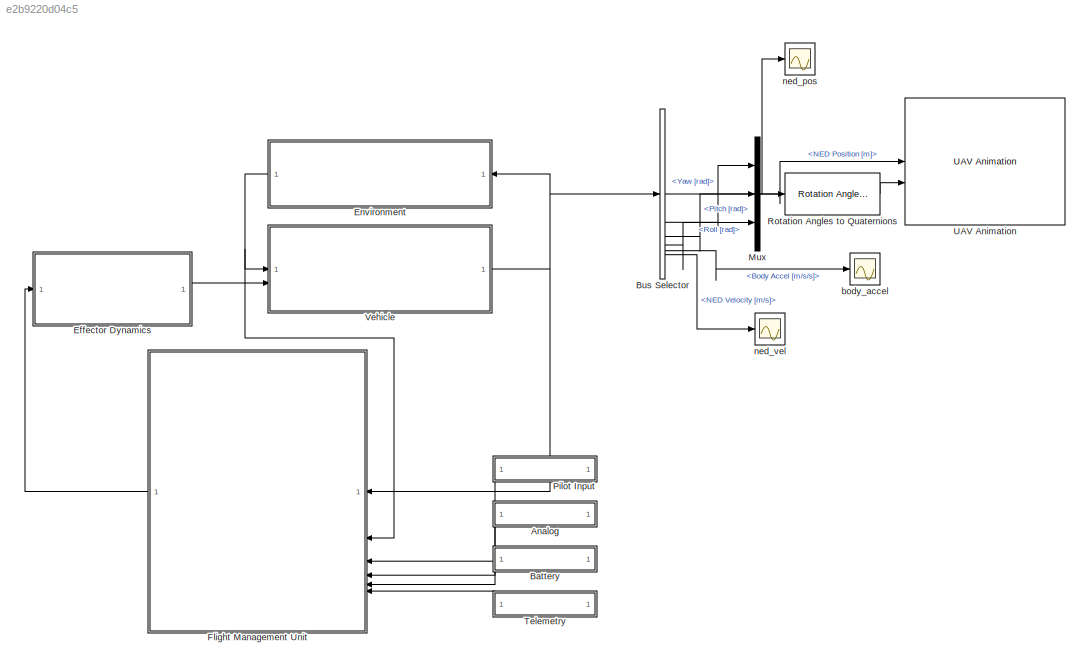
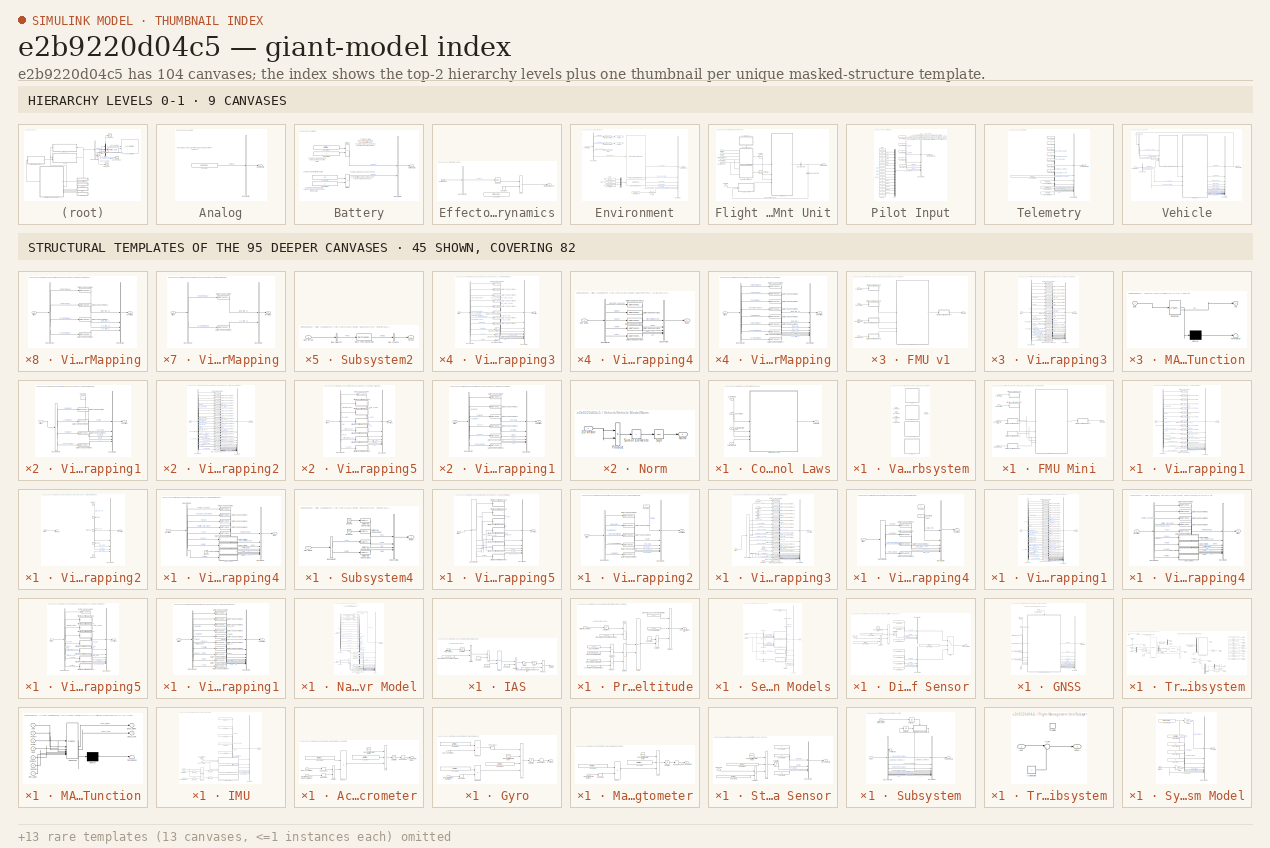
[diagram: thumbnail index - top-2 hierarchy levels (9 canvases) + 45 structural-template representatives of the remaining 95 canvases]
MODEL slx_e2b9220d04c5
KIND model
CONFIG AbsTol = auto
CONFIG EnableMultiTasking = off
CONFIG FixedStep = 0.0001
CONFIG MaxStep = auto
CONFIG MinStep = auto
CONFIG RelTol = 1e-9
CONFIG SampleTimeConstraint = Unconstrained
CONFIG SolverName = VariableStepAuto
CONFIG StartTime = 0.0
CONFIG StopTime = 30
BLOCK [SubSystem] Analog
BLOCK [Outport] Analog/Analog Data
BLOCK [BusCreator] Analog/Bus Creator
  DisplayOption = bar
  InheritFromInputs = on
  Inputs = 1
BLOCK [Constant] Analog/Constant
  Value = zeros(1, Fmu.NUM_AIN)
BLOCK [SubSystem] Battery
BLOCK [Outport] Battery/Battery Data
BLOCK [BusCreator] Battery/Bus Creator
  DisplayOption = bar
  InheritFromInputs = on
  Inputs = 2
BLOCK [Constant] Battery/Constant
  Value = Aircraft.Battery.voltage
BLOCK [Constant] Battery/Constant1
  Value = 42
BLOCK [Constant] Battery/Constant2
BLOCK [Constant] Battery/Constant3
BLOCK [Product] Battery/Divide
  Inputs = */
BLOCK [Product] Battery/Divide1
  Inputs = */
BLOCK [BusSelector] Bus Selector
  OutputSignals = NED Position [m],Yaw [rad],Pitch [rad],Roll [rad],Body Accel [m/s/s],NED Velocity [m/s]
BLOCK [SubSystem] Effector Dynamics
BLOCK [Sum] Effector Dynamics/Add1
  IconShape = rectangular
BLOCK [BusSelector] Effector Dynamics/Bus Selector
  OutputSignals = PWM.Cmds
BLOCK [Inport] Effector Dynamics/Commands
BLOCK [Constant] Effector Dynamics/Constant
  Value = 0
BLOCK [Constant] Effector Dynamics/Constant1
  Commented = on
  Value = InitCond.motor_cmd
BLOCK [Outport] Effector Dynamics/Motor Commands
BLOCK [Selector] Effector Dynamics/Selector1
  IndexOptions = Index vector (dialog)
  Indices = Aircraft.Motor.map
  InputPortWidth = Aircraft.Eff.nPwm
  OutputSizes = 1
BLOCK [SubSystem] Environment
BLOCK [Reference] Environment/Angle Conversion4  REF=aerolibconvert2/Angle Conversion
  SourceBlock = aerolibconvert2/Angle Conversion
  SourceType = Angle Conversion
BLOCK [Reference] Environment/Angle Conversion5  REF=aerolibconvert2/Angle Conversion
  SourceBlock = aerolibconvert2/Angle Conversion
  SourceType = Angle Conversion
BLOCK [BusCreator] Environment/Bus Creator
  DisplayOption = bar
  InheritFromInputs = on
  Inputs = 6
BLOCK [BusSelector] Environment/Bus Selector
  OutputSignals = Latitude [rad],Longitude [rad],Altitude WGS84 [m],Altitude MSL [m]
BLOCK [Reference] Environment/COESA Atmosphere Model  REF=aerolibatmos2/COESA Atmosphere Model
  SourceBlock = aerolibatmos2/COESA Atmosphere Model
  SourceType = Atmosphere Model
BLOCK [Constant] Environment/Constant
  Value = Env.wmm_nt
BLOCK [Outport] Environment/Environment
BLOCK [From] Environment/From6
  GotoTag = lon_deg
BLOCK [From] Environment/From7
  GotoTag = lat_deg
BLOCK [From] Environment/From8
  GotoTag = alt_wgs84_m
BLOCK [Gain] Environment/Gain
  Gain = 1e-3
BLOCK [Goto] Environment/Goto
  GotoTag = lat_deg
BLOCK [Goto] Environment/Goto1
  GotoTag = lon_deg
BLOCK [Goto] Environment/Goto2
  GotoTag = alt_wgs84_m
BLOCK [Mux] Environment/Mux
  DisplayOption = bar
  Inputs = 3
BLOCK [Inport] Environment/Vehicle State
BLOCK [GravityWGS84] Environment/WGS84 Gravity Model  
BLOCK [SubSystem] Flight Management Unit
BLOCK [Inport] Flight Management Unit/Analog
  Port = 4
BLOCK [Inport] Flight Management Unit/Battery
  Port = 5
BLOCK [BusSelector] Flight Management Unit/Bus Selector1
  NameLocation = left
  OutputSignals = Waypoint Reached
BLOCK [BusSelector] Flight Management Unit/Bus Selector2
  OutputAsBus = on
  OutputSignals = Waypoint Reached,SBUS,PWM
BLOCK [SubSystem] Flight Management Unit/Control Laws
  TreatAsAtomicUnit = on
BLOCK [Inport] Flight Management Unit/Control Laws/Navigation Filter Data
  Port = 3
BLOCK [Inport] Flight Management Unit/Control Laws/Sensor Data
  Port = 2
BLOCK [Inport] Flight Management Unit/Control Laws/System Data
BLOCK [Inport] Flight Management Unit/Control Laws/Telemetry Data
  Port = 4
BLOCK [Outport] Flight Management Unit/Control Laws/VMS Data
BLOCK [SubSystem] Flight Management Unit/Control Laws/Variant Subsystem
  Variant = on
BLOCK [SubSystem] Flight Management Unit/Control Laws/Variant Subsystem/FMU Mini
  VariantControl = Fmu.version == 4
BLOCK [ModelReference] Flight Management Unit/Control Laws/Variant Subsystem/FMU Mini/Flight Code
  ModelNameDialog = fmu_mini.slx
  ModelReferenceVersion = 6.0
BLOCK [Inport] Flight Management Unit/Control Laws/Variant Subsystem/FMU Mini/Navigation Filter Data
  Port = 3
BLOCK [Inport] Flight Management Unit/Control Laws/Variant Subsystem/FMU Mini/Sensor Data
  Port = 2
BLOCK [Inport] Flight Management Unit/Control Laws/Variant Subsystem/FMU Mini/System Data
BLOCK [Inport] Flight Management Unit/Control Laws/Variant Subsystem/FMU Mini/Telemetry Data
  Port = 4
BLOCK [Outport] Flight Management Unit/Control Laws/Variant Subsystem/FMU Mini/VMS Data
BLOCK [SubSystem] Flight Management Unit/Control Laws/Variant Subsystem/FMU Mini/Virtual to Non-Virtual Mapping
BLOCK [BusCreator] Flight Management Unit/Control Laws/Variant Subsystem/FMU Mini/Virtual to Non-Virtual Mapping/Bus Creator
  DisplayOption = bar
  InheritFromInputs = on
  Inputs = 2
  NonVirtualBus = on
  OutDataTypeStr = Bus: SysData
BLOCK [BusSelector] Flight Management Unit/Control Laws/Variant Subsystem/FMU Mini/Virtual to Non-Virtual Mapping/Bus Selector
  OutputSignals = Frame Time [us],System Time [us]
BLOCK [DataTypeConversion] Flight Management Unit/Control Laws/Variant Subsystem/FMU Mini/Virtual to Non-Virtual Mapping/Data Type Conversion
  OutDataTypeStr = int32
  RndMeth = Floor
  SaturateOnIntegerOverflow = off
BLOCK [DataTypeConversion] Flight Management Unit/Control Laws/Variant Subsystem/FMU Mini/Virtual to Non-Virtual Mapping/Data Type Conversion5
  OutDataTypeStr = int64
  RndMeth = Floor
  SaturateOnIntegerOverflow = off
BLOCK [Outport] Flight Management Unit/Control Laws/Variant Subsystem/FMU Mini/Virtual to Non-Virtual Mapping/Non-Virtual
  OutDataTypeStr = Bus: SysData
BLOCK [Inport] Flight Management Unit/Control Laws/Variant Subsystem/FMU Mini/Virtual to Non-Virtual Mapping/Virtual
BLOCK [SubSystem] Flight Management Unit/Control Laws/Variant Subsystem/FMU Mini/Virtual to Non-Virtual Mapping1
BLOCK [BusCreator] Flight Management Unit/Control Laws/Variant Subsystem/FMU Mini/Virtual to Non-Virtual Mapping1/Bus Creator
  DisplayOption = bar
  InheritFromInputs = on
  Inputs = 15
  NonVirtualBus = on
  OutDataTypeStr = Bus: InsData
BLOCK [BusSelector] Flight Management Unit/Control Laws/Variant Subsystem/FMU Mini/Virtual to Non-Virtual Mapping1/Bus Selector
  OutputSignals = Navigation Filter Initialized,Pitch [rad],Roll [rad],Heading [rad],Altitude WGS84 [m],Accel [m/s/s],Gyro [rad/s],Magnetometer [uT],NED Velocity [m/s],NED Position [m],Latitude [rad],Longitude [rad],Home Altitude WGS84 [m],Home Latitude [rad],Home Longitude [rad]
BLOCK [DataTypeConversion] Flight Management Unit/Control Laws/Variant Subsystem/FMU Mini/Virtual to Non-Virtual Mapping1/Data Type Conversion
  OutDataTypeStr = boolean
  RndMeth = Floor
  SaturateOnIntegerOverflow = off
BLOCK [DataTypeConversion] Flight Management Unit/Control Laws/Variant Subsystem/FMU Mini/Virtual to Non-Virtual Mapping1/Data Type Conversion1
  OutDataTypeStr = single
  RndMeth = Floor
  SaturateOnIntegerOverflow = off
BLOCK [DataTypeConversion] Flight Management Unit/Control Laws/Variant Subsystem/FMU Mini/Virtual to Non-Virtual Mapping1/Data Type Conversion2
  OutDataTypeStr = single
  RndMeth = Floor
  SaturateOnIntegerOverflow = off
BLOCK [DataTypeConversion] Flight Management Unit/Control Laws/Variant Subsystem/FMU Mini/Virtual to Non-Virtual Mapping1/Data Type Conversion21
  OutDataTypeStr = double
  RndMeth = Floor
  SaturateOnIntegerOverflow = off
BLOCK [DataTypeConversion] Flight Management Unit/Control Laws/Variant Subsystem/FMU Mini/Virtual to Non-Virtual Mapping1/Data Type Conversion22
  OutDataTypeStr = double
  RndMeth = Floor
  SaturateOnIntegerOverflow = off
BLOCK [DataTypeConversion] Flight Management Unit/Control Laws/Variant Subsystem/FMU Mini/Virtual to Non-Virtual Mapping1/Data Type Conversion23
  OutDataTypeStr = single
  RndMeth = Floor
  SaturateOnIntegerOverflow = off
BLOCK [DataTypeConversion] Flight Management Unit/Control Laws/Variant Subsystem/FMU Mini/Virtual to Non-Virtual Mapping1/Data Type Conversion24
  OutDataTypeStr = double
  RndMeth = Floor
  SaturateOnIntegerOverflow = off
BLOCK [DataTypeConversion] Flight Management Unit/Control Laws/Variant Subsystem/FMU Mini/Virtual to Non-Virtual Mapping1/Data Type Conversion25
  OutDataTypeStr = double
  RndMeth = Floor
  SaturateOnIntegerOverflow = off
BLOCK [DataTypeConversion] Flight Management Unit/Control Laws/Variant Subsystem/FMU Mini/Virtual to Non-Virtual Mapping1/Data Type Conversion3
  OutDataTypeStr = single
  RndMeth = Floor
  SaturateOnIntegerOverflow = off
BLOCK [DataTypeConversion] Flight Management Unit/Control Laws/Variant Subsystem/FMU Mini/Virtual to Non-Virtual Mapping1/Data Type Conversion4
  OutDataTypeStr = single
  RndMeth = Floor
  SaturateOnIntegerOverflow = off
BLOCK [DataTypeConversion] Flight Management Unit/Control Laws/Variant Subsystem/FMU Mini/Virtual to Non-Virtual Mapping1/Data Type Conversion5
  OutDataTypeStr = single
  RndMeth = Floor
  SaturateOnIntegerOverflow = off
BLOCK [DataTypeConversion] Flight Management Unit/Control Laws/Variant Subsystem/FMU Mini/Virtual to Non-Virtual Mapping1/Data Type Conversion6
  OutDataTypeStr = single
  RndMeth = Floor
  SaturateOnIntegerOverflow = off
BLOCK [DataTypeConversion] Flight Management Unit/Control Laws/Variant Subsystem/FMU Mini/Virtual to Non-Virtual Mapping1/Data Type Conversion7
  OutDataTypeStr = single
  RndMeth = Floor
  SaturateOnIntegerOverflow = off
BLOCK [DataTypeConversion] Flight Management Unit/Control Laws/Variant Subsystem/FMU Mini/Virtual to Non-Virtual Mapping1/Data Type Conversion8
  OutDataTypeStr = single
  RndMeth = Floor
  SaturateOnIntegerOverflow = off
BLOCK [DataTypeConversion] Flight Management Unit/Control Laws/Variant Subsystem/FMU Mini/Virtual to Non-Virtual Mapping1/Data Type Conversion9
  OutDataTypeStr = single
  RndMeth = Floor
  SaturateOnIntegerOverflow = off
BLOCK [Outport] Flight Management Unit/Control Laws/Variant Subsystem/FMU Mini/Virtual to Non-Virtual Mapping1/Non-Virtual
  OutDataTypeStr = Bus: InsData
BLOCK [Inport] Flight Management Unit/Control Laws/Variant Subsystem/FMU Mini/Virtual to Non-Virtual Mapping1/Virtual
BLOCK [SubSystem] Flight Management Unit/Control Laws/Variant Subsystem/FMU Mini/Virtual to Non-Virtual Mapping2
BLOCK [BusCreator] Flight Management Unit/Control Laws/Variant Subsystem/FMU Mini/Virtual to Non-Virtual Mapping2/Bus Creator
  DisplayOption = bar
  InheritFromInputs = on
  Inputs = 5
  NonVirtualBus = on
  OutDataTypeStr = Bus: AdcData
BLOCK [Ground] Flight Management Unit/Control Laws/Variant Subsystem/FMU Mini/Virtual to Non-Virtual Mapping2/Ground
BLOCK [Ground] Flight Management Unit/Control Laws/Variant Subsystem/FMU Mini/Virtual to Non-Virtual Mapping2/Ground1
BLOCK [Ground] Flight Management Unit/Control Laws/Variant Subsystem/FMU Mini/Virtual to Non-Virtual Mapping2/Ground2
BLOCK [Ground] Flight Management Unit/Control Laws/Variant Subsystem/FMU Mini/Virtual to Non-Virtual Mapping2/Ground3
BLOCK [Ground] Flight Management Unit/Control Laws/Variant Subsystem/FMU Mini/Virtual to Non-Virtual Mapping2/Ground4
BLOCK [Outport] Flight Management Unit/Control Laws/Variant Subsystem/FMU Mini/Virtual to Non-Virtual Mapping2/Non-Virtual
  OutDataTypeStr = Bus: TelemData
BLOCK [Terminator] Flight Management Unit/Control Laws/Variant Subsystem/FMU Mini/Virtual to Non-Virtual Mapping2/Terminator
BLOCK [Inport] Flight Management Unit/Control Laws/Variant Subsystem/FMU Mini/Virtual to Non-Virtual Mapping2/Virtual
BLOCK [SubSystem] Flight Management Unit/Control Laws/Variant Subsystem/FMU Mini/Virtual to Non-Virtual Mapping3
BLOCK [BusCreator] Flight Management Unit/Control Laws/Variant Subsystem/FMU Mini/Virtual to Non-Virtual Mapping3/Bus Creator
  DisplayOption = bar
  InheritFromInputs = on
  Inputs = 11
  NonVirtualBus = on
  OutDataTypeStr = Bus: TelemData
BLOCK [BusSelector] Flight Management Unit/Control Laws/Variant Subsystem/FMU Mini/Virtual to Non-Virtual Mapping3/Bus Selector
  OutputSignals = Waypoints Updated,Fence Updated,Rally Points Updated,Current Waypoint Index,Number of Waypoints,Number of Fence Points,Number of Rally Points,Parameters,Flight Plan,Fence,Rally
BLOCK [DataTypeConversion] Flight Management Unit/Control Laws/Variant Subsystem/FMU Mini/Virtual to Non-Virtual Mapping3/Data Type Conversion
  OutDataTypeStr = boolean
  RndMeth = Floor
  SaturateOnIntegerOverflow = off
BLOCK [DataTypeConversion] Flight Management Unit/Control Laws/Variant Subsystem/FMU Mini/Virtual to Non-Virtual Mapping3/Data Type Conversion1
  OutDataTypeStr = boolean
  RndMeth = Floor
  SaturateOnIntegerOverflow = off
BLOCK [DataTypeConversion] Flight Management Unit/Control Laws/Variant Subsystem/FMU Mini/Virtual to Non-Virtual Mapping3/Data Type Conversion2
  OutDataTypeStr = boolean
  RndMeth = Floor
  SaturateOnIntegerOverflow = off
BLOCK [DataTypeConversion] Flight Management Unit/Control Laws/Variant Subsystem/FMU Mini/Virtual to Non-Virtual Mapping3/Data Type Conversion3
  OutDataTypeStr = int16
  RndMeth = Floor
  SaturateOnIntegerOverflow = off
BLOCK [DataTypeConversion] Flight Management Unit/Control Laws/Variant Subsystem/FMU Mini/Virtual to Non-Virtual Mapping3/Data Type Conversion4
  OutDataTypeStr = int16
  RndMeth = Floor
  SaturateOnIntegerOverflow = off
BLOCK [DataTypeConversion] Flight Management Unit/Control Laws/Variant Subsystem/FMU Mini/Virtual to Non-Virtual Mapping3/Data Type Conversion5
  OutDataTypeStr = int16
  RndMeth = Floor
  SaturateOnIntegerOverflow = off
BLOCK [DataTypeConversion] Flight Management Unit/Control Laws/Variant Subsystem/FMU Mini/Virtual to Non-Virtual Mapping3/Data Type Conversion6
  OutDataTypeStr = int16
  RndMeth = Floor
  SaturateOnIntegerOverflow = off
BLOCK [DataTypeConversion] Flight Management Unit/Control Laws/Variant Subsystem/FMU Mini/Virtual to Non-Virtual Mapping3/Data Type Conversion7
  OutDataTypeStr = single
  RndMeth = Floor
  SaturateOnIntegerOverflow = off
BLOCK [Outport] Flight Management Unit/Control Laws/Variant Subsystem/FMU Mini/Virtual to Non-Virtual Mapping3/Non-Virtual
  OutDataTypeStr = Bus: TelemData
BLOCK [SignalConversion] Flight Management Unit/Control Laws/Variant Subsystem/FMU Mini/Virtual to Non-Virtual Mapping3/Signal Conversion
  ConversionOutput = Nonvirtual bus
  OverrideOpt = off
BLOCK [SignalConversion] Flight Management Unit/Control Laws/Variant Subsystem/FMU Mini/Virtual to Non-Virtual Mapping3/Signal Conversion1
  ConversionOutput = Nonvirtual bus
  OverrideOpt = off
BLOCK [SignalConversion] Flight Management Unit/Control Laws/Variant Subsystem/FMU Mini/Virtual to Non-Virtual Mapping3/Signal Conversion2
  ConversionOutput = Nonvirtual bus
  OverrideOpt = off
BLOCK [Inport] Flight Management Unit/Control Laws/Variant Subsystem/FMU Mini/Virtual to Non-Virtual Mapping3/Virtual
BLOCK [SubSystem] Flight Management Unit/Control Laws/Variant Subsystem/FMU Mini/Virtual to Non-Virtual Mapping4
BLOCK [BusCreator] Flight Management Unit/Control Laws/Variant Subsystem/FMU Mini/Virtual to Non-Virtual Mapping4/Bus Creator
  DisplayOption = bar
  InheritFromInputs = on
  Inputs = 9
BLOCK [BusSelector] Flight Management Unit/Control Laws/Variant Subsystem/FMU Mini/Virtual to Non-Virtual Mapping4/Bus Selector
  OutputSignals = motors_enabled,advance_waypoint,mode,throttle_cmd_prcnt,aux,sbus,pwm,battery
BLOCK [DataTypeConversion] Flight Management Unit/Control Laws/Variant Subsystem/FMU Mini/Virtual to Non-Virtual Mapping4/Data Type Conversion
  OutDataTypeStr = double
  RndMeth = Floor
  SaturateOnIntegerOverflow = off
BLOCK [DataTypeConversion] Flight Management Unit/Control Laws/Variant Subsystem/FMU Mini/Virtual to Non-Virtual Mapping4/Data Type Conversion1
  OutDataTypeStr = double
  RndMeth = Floor
  SaturateOnIntegerOverflow = off
BLOCK [DataTypeConversion] Flight Management Unit/Control Laws/Variant Subsystem/FMU Mini/Virtual to Non-Virtual Mapping4/Data Type Conversion2
  OutDataTypeStr = double
  RndMeth = Floor
  SaturateOnIntegerOverflow = off
BLOCK [DataTypeConversion] Flight Management Unit/Control Laws/Variant Subsystem/FMU Mini/Virtual to Non-Virtual Mapping4/Data Type Conversion3
  OutDataTypeStr = double
  RndMeth = Floor
  SaturateOnIntegerOverflow = off
BLOCK [DataTypeConversion] Flight Management Unit/Control Laws/Variant Subsystem/FMU Mini/Virtual to Non-Virtual Mapping4/Data Type Conversion4
  OutDataTypeStr = double
  RndMeth = Floor
  SaturateOnIntegerOverflow = off
BLOCK [Ground] Flight Management Unit/Control Laws/Variant Subsystem/FMU Mini/Virtual to Non-Virtual Mapping4/Ground
BLOCK [Inport] Flight Management Unit/Control Laws/Variant Subsystem/FMU Mini/Virtual to Non-Virtual Mapping4/Non-Virtual
  OutDataTypeStr = Bus: VmsData
BLOCK [SubSystem] Flight Management Unit/Control Laws/Variant Subsystem/FMU Mini/Virtual to Non-Virtual Mapping4/Subsystem1
BLOCK [BusCreator] Flight Management Unit/Control Laws/Variant Subsystem/FMU Mini/Virtual to Non-Virtual Mapping4/Subsystem1/Bus Creator
  DisplayOption = bar
  InheritFromInputs = on
  Inputs = 5
BLOCK [BusSelector] Flight Management Unit/Control Laws/Variant Subsystem/FMU Mini/Virtual to Non-Virtual Mapping4/Subsystem1/Bus Selector
  OutputSignals = voltage_v,current_ma,consumed_mah,remaining_prcnt,remaining_time_s
BLOCK [DataTypeConversion] Flight Management Unit/Control Laws/Variant Subsystem/FMU Mini/Virtual to Non-Virtual Mapping4/Subsystem1/Data Type Conversion
  OutDataTypeStr = double
  RndMeth = Floor
  SaturateOnIntegerOverflow = off
BLOCK [DataTypeConversion] Flight Management Unit/Control Laws/Variant Subsystem/FMU Mini/Virtual to Non-Virtual Mapping4/Subsystem1/Data Type Conversion1
  OutDataTypeStr = double
  RndMeth = Floor
  SaturateOnIntegerOverflow = off
BLOCK [DataTypeConversion] Flight Management Unit/Control Laws/Variant Subsystem/FMU Mini/Virtual to Non-Virtual Mapping4/Subsystem1/Data Type Conversion2
  OutDataTypeStr = double
  RndMeth = Floor
  SaturateOnIntegerOverflow = off
BLOCK [DataTypeConversion] Flight Management Unit/Control Laws/Variant Subsystem/FMU Mini/Virtual to Non-Virtual Mapping4/Subsystem1/Data Type Conversion3
  OutDataTypeStr = double
  RndMeth = Floor
  SaturateOnIntegerOverflow = off
BLOCK [DataTypeConversion] Flight Management Unit/Control Laws/Variant Subsystem/FMU Mini/Virtual to Non-Virtual Mapping4/Subsystem1/Data Type Conversion4
  OutDataTypeStr = double
  RndMeth = Floor
  SaturateOnIntegerOverflow = off
BLOCK [Inport] Flight Management Unit/Control Laws/Variant Subsystem/FMU Mini/Virtual to Non-Virtual Mapping4/Subsystem1/Non-Virtual
  OutDataTypeStr = Bus: BatteryData
BLOCK [Outport] Flight Management Unit/Control Laws/Variant Subsystem/FMU Mini/Virtual to Non-Virtual Mapping4/Subsystem1/Virtual
BLOCK [SubSystem] Flight Management Unit/Control Laws/Variant Subsystem/FMU Mini/Virtual to Non-Virtual Mapping4/Subsystem2
BLOCK [BusCreator] Flight Management Unit/Control Laws/Variant Subsystem/FMU Mini/Virtual to Non-Virtual Mapping4/Subsystem2/Bus Creator
  DisplayOption = bar
  InheritFromInputs = on
  Inputs = 1
BLOCK [BusSelector] Flight Management Unit/Control Laws/Variant Subsystem/FMU Mini/Virtual to Non-Virtual Mapping4/Subsystem2/Bus Selector
  OutputSignals = val
BLOCK [DataTypeConversion] Flight Management Unit/Control Laws/Variant Subsystem/FMU Mini/Virtual to Non-Virtual Mapping4/Subsystem2/Data Type Conversion
  OutDataTypeStr = double
  RndMeth = Floor
  SaturateOnIntegerOverflow = off
BLOCK [Inport] Flight Management Unit/Control Laws/Variant Subsystem/FMU Mini/Virtual to Non-Virtual Mapping4/Subsystem2/Non-Virtual
  OutDataTypeStr = Bus: AnalogData
BLOCK [Outport] Flight Management Unit/Control Laws/Variant Subsystem/FMU Mini/Virtual to Non-Virtual Mapping4/Subsystem2/Virtual
BLOCK [SubSystem] Flight Management Unit/Control Laws/Variant Subsystem/FMU Mini/Virtual to Non-Virtual Mapping4/Subsystem3
BLOCK [BusCreator] Flight Management Unit/Control Laws/Variant Subsystem/FMU Mini/Virtual to Non-Virtual Mapping4/Subsystem3/Bus Creator
  DisplayOption = bar
  InheritFromInputs = on
  Inputs = 2
BLOCK [BusSelector] Flight Management Unit/Control Laws/Variant Subsystem/FMU Mini/Virtual to Non-Virtual Mapping4/Subsystem3/Bus Selector
  OutputSignals = cnt,cmd
BLOCK [DataTypeConversion] Flight Management Unit/Control Laws/Variant Subsystem/FMU Mini/Virtual to Non-Virtual Mapping4/Subsystem3/Data Type Conversion
  OutDataTypeStr = double
  RndMeth = Floor
  SaturateOnIntegerOverflow = off
BLOCK [DataTypeConversion] Flight Management Unit/Control Laws/Variant Subsystem/FMU Mini/Virtual to Non-Virtual Mapping4/Subsystem3/Data Type Conversion1
  OutDataTypeStr = double
  RndMeth = Floor
  SaturateOnIntegerOverflow = off
BLOCK [Inport] Flight Management Unit/Control Laws/Variant Subsystem/FMU Mini/Virtual to Non-Virtual Mapping4/Subsystem3/Non-Virtual
  OutDataTypeStr = Bus: PwmCmd
BLOCK [Outport] Flight Management Unit/Control Laws/Variant Subsystem/FMU Mini/Virtual to Non-Virtual Mapping4/Subsystem3/Virtual
BLOCK [SubSystem] Flight Management Unit/Control Laws/Variant Subsystem/FMU Mini/Virtual to Non-Virtual Mapping4/Subsystem4
BLOCK [BusCreator] Flight Management Unit/Control Laws/Variant Subsystem/FMU Mini/Virtual to Non-Virtual Mapping4/Subsystem4/Bus Creator
  DisplayOption = bar
  InheritFromInputs = on
  Inputs = 4
BLOCK [BusSelector] Flight Management Unit/Control Laws/Variant Subsystem/FMU Mini/Virtual to Non-Virtual Mapping4/Subsystem4/Bus Selector
  OutputSignals = cnt,cmd
BLOCK [DataTypeConversion] Flight Management Unit/Control Laws/Variant Subsystem/FMU Mini/Virtual to Non-Virtual Mapping4/Subsystem4/Data Type Conversion
  OutDataTypeStr = double
  RndMeth = Floor
  SaturateOnIntegerOverflow = off
BLOCK [DataTypeConversion] Flight Management Unit/Control Laws/Variant Subsystem/FMU Mini/Virtual to Non-Virtual Mapping4/Subsystem4/Data Type Conversion1
  OutDataTypeStr = double
  RndMeth = Floor
  SaturateOnIntegerOverflow = off
BLOCK [DataTypeConversion] Flight Management Unit/Control Laws/Variant Subsystem/FMU Mini/Virtual to Non-Virtual Mapping4/Subsystem4/Data Type Conversion2
  OutDataTypeStr = double
  RndMeth = Floor
  SaturateOnIntegerOverflow = off
BLOCK [DataTypeConversion] Flight Management Unit/Control Laws/Variant Subsystem/FMU Mini/Virtual to Non-Virtual Mapping4/Subsystem4/Data Type Conversion3
  OutDataTypeStr = double
  RndMeth = Floor
  SaturateOnIntegerOverflow = off
BLOCK [Ground] Flight Management Unit/Control Laws/Variant Subsystem/FMU Mini/Virtual to Non-Virtual Mapping4/Subsystem4/Ground
BLOCK [Ground] Flight Management Unit/Control Laws/Variant Subsystem/FMU Mini/Virtual to Non-Virtual Mapping4/Subsystem4/Ground1
BLOCK [Inport] Flight Management Unit/Control Laws/Variant Subsystem/FMU Mini/Virtual to Non-Virtual Mapping4/Subsystem4/Non-Virtual
  OutDataTypeStr = Bus: SbusCmd
BLOCK [Outport] Flight Management Unit/Control Laws/Variant Subsystem/FMU Mini/Virtual to Non-Virtual Mapping4/Subsystem4/Virtual
BLOCK [Outport] Flight Management Unit/Control Laws/Variant Subsystem/FMU Mini/Virtual to Non-Virtual Mapping4/Virtual
BLOCK [SubSystem] Flight Management Unit/Control Laws/Variant Subsystem/FMU Mini/Virtual to Non-Virtual Mapping5
BLOCK [BusCreator] Flight Management Unit/Control Laws/Variant Subsystem/FMU Mini/Virtual to Non-Virtual Mapping5/Bus Creator
  DisplayOption = bar
  InheritFromInputs = on
  Inputs = 7
  NonVirtualBus = on
  OutDataTypeStr = Bus: SensorData
BLOCK [BusSelector] Flight Management Unit/Control Laws/Variant Subsystem/FMU Mini/Virtual to Non-Virtual Mapping5/Bus Selector
  OutputSignals = Inceptor,IMU,Static Pressure,GNSS,Analog,Battery
BLOCK [Outport] Flight Management Unit/Control Laws/Variant Subsystem/FMU Mini/Virtual to Non-Virtual Mapping5/Non-Virtual
  OutDataTypeStr = Bus: SensorData
BLOCK [Inport] Flight Management Unit/Control Laws/Variant Subsystem/FMU Mini/Virtual to Non-Virtual Mapping5/Virtual
BLOCK [SubSystem] Flight Management Unit/Control Laws/Variant Subsystem/FMU Mini/Virtual to Non-Virtual Mapping5/Virtual to Non-Virtual Mapping1
BLOCK [BusCreator] Flight Management Unit/Control Laws/Variant Subsystem/FMU Mini/Virtual to Non-Virtual Mapping5/Virtual to Non-Virtual Mapping1/Bus Creator
  DisplayOption = bar
  InheritFromInputs = on
  Inputs = 5
  OutDataTypeStr = Bus: InceptorData
BLOCK [BusSelector] Flight Management Unit/Control Laws/Variant Subsystem/FMU Mini/Virtual to Non-Virtual Mapping5/Virtual to Non-Virtual Mapping1/Bus Selector
  OutputSignals = New Data,Lost Frame,Failsafe,Channel Data
BLOCK [Constant] Flight Management Unit/Control Laws/Variant Subsystem/FMU Mini/Virtual to Non-Virtual Mapping5/Virtual to Non-Virtual Mapping1/Constant
  OutDataTypeStr = boolean
BLOCK [DataTypeConversion] Flight Management Unit/Control Laws/Variant Subsystem/FMU Mini/Virtual to Non-Virtual Mapping5/Virtual to Non-Virtual Mapping1/Data Type Conversion
  OutDataTypeStr = boolean
  RndMeth = Floor
  SaturateOnIntegerOverflow = off
BLOCK [DataTypeConversion] Flight Management Unit/Control Laws/Variant Subsystem/FMU Mini/Virtual to Non-Virtual Mapping5/Virtual to Non-Virtual Mapping1/Data Type Conversion1
  OutDataTypeStr = boolean
  RndMeth = Floor
  SaturateOnIntegerOverflow = off
BLOCK [DataTypeConversion] Flight Management Unit/Control Laws/Variant Subsystem/FMU Mini/Virtual to Non-Virtual Mapping5/Virtual to Non-Virtual Mapping1/Data Type Conversion2
  OutDataTypeStr = boolean
  RndMeth = Floor
  SaturateOnIntegerOverflow = off
BLOCK [DataTypeConversion] Flight Management Unit/Control Laws/Variant Subsystem/FMU Mini/Virtual to Non-Virtual Mapping5/Virtual to Non-Virtual Mapping1/Data Type Conversion5
  OutDataTypeStr = int16
  RndMeth = Floor
  SaturateOnIntegerOverflow = off
BLOCK [Outport] Flight Management Unit/Control Laws/Variant Subsystem/FMU Mini/Virtual to Non-Virtual Mapping5/Virtual to Non-Virtual Mapping1/Non-Virtual
  OutDataTypeStr = Bus: InceptorData
BLOCK [Inport] Flight Management Unit/Control Laws/Variant Subsystem/FMU Mini/Virtual to Non-Virtual Mapping5/Virtual to Non-Virtual Mapping1/Virtual
BLOCK [SubSystem] Flight Management Unit/Control Laws/Variant Subsystem/FMU Mini/Virtual to Non-Virtual Mapping5/Virtual to Non-Virtual Mapping2
BLOCK [BusCreator] Flight Management Unit/Control Laws/Variant Subsystem/FMU Mini/Virtual to Non-Virtual Mapping5/Virtual to Non-Virtual Mapping2/Bus Creator
  DisplayOption = bar
  InheritFromInputs = on
  Inputs = 6
BLOCK [BusSelector] Flight Management Unit/Control Laws/Variant Subsystem/FMU Mini/Virtual to Non-Virtual Mapping5/Virtual to Non-Virtual Mapping2/Bus Selector
  OutputSignals = New IMU Data,IMU Healthy,Die Temperature [C],Accelerometer [m/s/s],Gyro [rad/s]
BLOCK [Constant] Flight Management Unit/Control Laws/Variant Subsystem/FMU Mini/Virtual to Non-Virtual Mapping5/Virtual to Non-Virtual Mapping2/Constant
  OutDataTypeStr = boolean
BLOCK [DataTypeConversion] Flight Management Unit/Control Laws/Variant Subsystem/FMU Mini/Virtual to Non-Virtual Mapping5/Virtual to Non-Virtual Mapping2/Data Type Conversion
  OutDataTypeStr = boolean
  RndMeth = Floor
  SaturateOnIntegerOverflow = off
BLOCK [DataTypeConversion] Flight Management Unit/Control Laws/Variant Subsystem/FMU Mini/Virtual to Non-Virtual Mapping5/Virtual to Non-Virtual Mapping2/Data Type Conversion1
  OutDataTypeStr = boolean
  RndMeth = Floor
  SaturateOnIntegerOverflow = off
BLOCK [DataTypeConversion] Flight Management Unit/Control Laws/Variant Subsystem/FMU Mini/Virtual to Non-Virtual Mapping5/Virtual to Non-Virtual Mapping2/Data Type Conversion4
  OutDataTypeStr = single
  RndMeth = Floor
  SaturateOnIntegerOverflow = off
BLOCK [DataTypeConversion] Flight Management Unit/Control Laws/Variant Subsystem/FMU Mini/Virtual to Non-Virtual Mapping5/Virtual to Non-Virtual Mapping2/Data Type Conversion5
  OutDataTypeStr = single
  RndMeth = Floor
  SaturateOnIntegerOverflow = off
BLOCK [DataTypeConversion] Flight Management Unit/Control Laws/Variant Subsystem/FMU Mini/Virtual to Non-Virtual Mapping5/Virtual to Non-Virtual Mapping2/Data Type Conversion7
  OutDataTypeStr = single
  RndMeth = Floor
  SaturateOnIntegerOverflow = off
BLOCK [Outport] Flight Management Unit/Control Laws/Variant Subsystem/FMU Mini/Virtual to Non-Virtual Mapping5/Virtual to Non-Virtual Mapping2/Non-Virtual
  OutDataTypeStr = Bus: ImuData
BLOCK [Inport] Flight Management Unit/Control Laws/Variant Subsystem/FMU Mini/Virtual to Non-Virtual Mapping5/Virtual to Non-Virtual Mapping2/Virtual
BLOCK [SubSystem] Flight Management Unit/Control Laws/Variant Subsystem/FMU Mini/Virtual to Non-Virtual Mapping5/Virtual to Non-Virtual Mapping3
BLOCK [BusCreator] Flight Management Unit/Control Laws/Variant Subsystem/FMU Mini/Virtual to Non-Virtual Mapping5/Virtual to Non-Virtual Mapping3/Bus Creator
  DisplayOption = bar
  InheritFromInputs = on
  Inputs = 19
  OutDataTypeStr = Bus: GnssData
BLOCK [BusSelector] Flight Management Unit/Control Laws/Variant Subsystem/FMU Mini/Virtual to Non-Virtual Mapping5/Virtual to Non-Virtual Mapping3/Bus Selector
  OutputSignals = Healthy,Fix,Num Satellites,Week,Altitude WGS84 [m],Horizontal Accuracy [m],Vertical Accuracy [m],Velocity Accuracy [m/s],NED Velocity [m/s],TOW [ms],Latitude [rad],Longitude [rad]
BLOCK [Constant] Flight Management Unit/Control Laws/Variant Subsystem/FMU Mini/Virtual to Non-Virtual Mapping5/Virtual to Non-Virtual Mapping3/Constant
  OutDataTypeStr = boolean
BLOCK [Constant] Flight Management Unit/Control Laws/Variant Subsystem/FMU Mini/Virtual to Non-Virtual Mapping5/Virtual to Non-Virtual Mapping3/Constant2
  OutDataTypeStr = boolean
BLOCK [DataTypeConversion] Flight Management Unit/Control Laws/Variant Subsystem/FMU Mini/Virtual to Non-Virtual Mapping5/Virtual to Non-Virtual Mapping3/Data Type Conversion
  OutDataTypeStr = boolean
  RndMeth = Floor
  SaturateOnIntegerOverflow = off
BLOCK [DataTypeConversion] Flight Management Unit/Control Laws/Variant Subsystem/FMU Mini/Virtual to Non-Virtual Mapping5/Virtual to Non-Virtual Mapping3/Data Type Conversion1
  OutDataTypeStr = boolean
  RndMeth = Floor
  SaturateOnIntegerOverflow = off
BLOCK [DataTypeConversion] Flight Management Unit/Control Laws/Variant Subsystem/FMU Mini/Virtual to Non-Virtual Mapping5/Virtual to Non-Virtual Mapping3/Data Type Conversion10
  OutDataTypeStr = single
  RndMeth = Floor
  SaturateOnIntegerOverflow = off
BLOCK [DataTypeConversion] Flight Management Unit/Control Laws/Variant Subsystem/FMU Mini/Virtual to Non-Virtual Mapping5/Virtual to Non-Virtual Mapping3/Data Type Conversion11
  OutDataTypeStr = single
  RndMeth = Floor
  SaturateOnIntegerOverflow = off
BLOCK [DataTypeConversion] Flight Management Unit/Control Laws/Variant Subsystem/FMU Mini/Virtual to Non-Virtual Mapping5/Virtual to Non-Virtual Mapping3/Data Type Conversion12
  OutDataTypeStr = double
  RndMeth = Floor
  SaturateOnIntegerOverflow = off
BLOCK [DataTypeConversion] Flight Management Unit/Control Laws/Variant Subsystem/FMU Mini/Virtual to Non-Virtual Mapping5/Virtual to Non-Virtual Mapping3/Data Type Conversion17
  OutDataTypeStr = double
  RndMeth = Floor
  SaturateOnIntegerOverflow = off
BLOCK [DataTypeConversion] Flight Management Unit/Control Laws/Variant Subsystem/FMU Mini/Virtual to Non-Virtual Mapping5/Virtual to Non-Virtual Mapping3/Data Type Conversion18
  OutDataTypeStr = double
  RndMeth = Floor
  SaturateOnIntegerOverflow = off
BLOCK [DataTypeConversion] Flight Management Unit/Control Laws/Variant Subsystem/FMU Mini/Virtual to Non-Virtual Mapping5/Virtual to Non-Virtual Mapping3/Data Type Conversion19
  OutDataTypeStr = boolean
  RndMeth = Floor
  SaturateOnIntegerOverflow = off
BLOCK [DataTypeConversion] Flight Management Unit/Control Laws/Variant Subsystem/FMU Mini/Virtual to Non-Virtual Mapping5/Virtual to Non-Virtual Mapping3/Data Type Conversion2
  OutDataTypeStr = int8
  RndMeth = Floor
  SaturateOnIntegerOverflow = off
BLOCK [DataTypeConversion] Flight Management Unit/Control Laws/Variant Subsystem/FMU Mini/Virtual to Non-Virtual Mapping5/Virtual to Non-Virtual Mapping3/Data Type Conversion20
  OutDataTypeStr = boolean
  RndMeth = Floor
  SaturateOnIntegerOverflow = off
BLOCK [DataTypeConversion] Flight Management Unit/Control Laws/Variant Subsystem/FMU Mini/Virtual to Non-Virtual Mapping5/Virtual to Non-Virtual Mapping3/Data Type Conversion21
  OutDataTypeStr = boolean
  RndMeth = Floor
  SaturateOnIntegerOverflow = off
BLOCK [DataTypeConversion] Flight Management Unit/Control Laws/Variant Subsystem/FMU Mini/Virtual to Non-Virtual Mapping5/Virtual to Non-Virtual Mapping3/Data Type Conversion22
  OutDataTypeStr = boolean
  RndMeth = Floor
  SaturateOnIntegerOverflow = off
BLOCK [DataTypeConversion] Flight Management Unit/Control Laws/Variant Subsystem/FMU Mini/Virtual to Non-Virtual Mapping5/Virtual to Non-Virtual Mapping3/Data Type Conversion3
  OutDataTypeStr = int8
  RndMeth = Floor
  SaturateOnIntegerOverflow = off
BLOCK [DataTypeConversion] Flight Management Unit/Control Laws/Variant Subsystem/FMU Mini/Virtual to Non-Virtual Mapping5/Virtual to Non-Virtual Mapping3/Data Type Conversion4
  OutDataTypeStr = int16
  RndMeth = Floor
  SaturateOnIntegerOverflow = off
BLOCK [DataTypeConversion] Flight Management Unit/Control Laws/Variant Subsystem/FMU Mini/Virtual to Non-Virtual Mapping5/Virtual to Non-Virtual Mapping3/Data Type Conversion5
  OutDataTypeStr = double
  RndMeth = Floor
  SaturateOnIntegerOverflow = off
BLOCK [DataTypeConversion] Flight Management Unit/Control Laws/Variant Subsystem/FMU Mini/Virtual to Non-Virtual Mapping5/Virtual to Non-Virtual Mapping3/Data Type Conversion6
  OutDataTypeStr = single
  RndMeth = Floor
  SaturateOnIntegerOverflow = off
BLOCK [DataTypeConversion] Flight Management Unit/Control Laws/Variant Subsystem/FMU Mini/Virtual to Non-Virtual Mapping5/Virtual to Non-Virtual Mapping3/Data Type Conversion7
  OutDataTypeStr = single
  RndMeth = Floor
  SaturateOnIntegerOverflow = off
BLOCK [DataTypeConversion] Flight Management Unit/Control Laws/Variant Subsystem/FMU Mini/Virtual to Non-Virtual Mapping5/Virtual to Non-Virtual Mapping3/Data Type Conversion8
  OutDataTypeStr = single
  RndMeth = Floor
  SaturateOnIntegerOverflow = off
BLOCK [DataTypeConversion] Flight Management Unit/Control Laws/Variant Subsystem/FMU Mini/Virtual to Non-Virtual Mapping5/Virtual to Non-Virtual Mapping3/Data Type Conversion9
  OutDataTypeStr = single
  RndMeth = Floor
  SaturateOnIntegerOverflow = off
BLOCK [Ground] Flight Management Unit/Control Laws/Variant Subsystem/FMU Mini/Virtual to Non-Virtual Mapping5/Virtual to Non-Virtual Mapping3/Ground
BLOCK [Ground] Flight Management Unit/Control Laws/Variant Subsystem/FMU Mini/Virtual to Non-Virtual Mapping5/Virtual to Non-Virtual Mapping3/Ground1
BLOCK [Ground] Flight Management Unit/Control Laws/Variant Subsystem/FMU Mini/Virtual to Non-Virtual Mapping5/Virtual to Non-Virtual Mapping3/Ground2
BLOCK [Ground] Flight Management Unit/Control Laws/Variant Subsystem/FMU Mini/Virtual to Non-Virtual Mapping5/Virtual to Non-Virtual Mapping3/Ground3
BLOCK [Ground] Flight Management Unit/Control Laws/Variant Subsystem/FMU Mini/Virtual to Non-Virtual Mapping5/Virtual to Non-Virtual Mapping3/Ground4
BLOCK [Outport] Flight Management Unit/Control Laws/Variant Subsystem/FMU Mini/Virtual to Non-Virtual Mapping5/Virtual to Non-Virtual Mapping3/Non-Virtual
  OutDataTypeStr = Bus: GnssData
BLOCK [Inport] Flight Management Unit/Control Laws/Variant Subsystem/FMU Mini/Virtual to Non-Virtual Mapping5/Virtual to Non-Virtual Mapping3/Virtual
BLOCK [SubSystem] Flight Management Unit/Control Laws/Variant Subsystem/FMU Mini/Virtual to Non-Virtual Mapping5/Virtual to Non-Virtual Mapping4
BLOCK [BusCreator] Flight Management Unit/Control Laws/Variant Subsystem/FMU Mini/Virtual to Non-Virtual Mapping5/Virtual to Non-Virtual Mapping4/Bus Creator
  DisplayOption = bar
  InheritFromInputs = on
  Inputs = 6
  OutDataTypeStr = Bus: PresData
BLOCK [BusSelector] Flight Management Unit/Control Laws/Variant Subsystem/FMU Mini/Virtual to Non-Virtual Mapping5/Virtual to Non-Virtual Mapping4/Bus Selector
  OutputSignals = Healthy,New Data,Die Temperature [C],Pressure [Pa]
BLOCK [Constant] Flight Management Unit/Control Laws/Variant Subsystem/FMU Mini/Virtual to Non-Virtual Mapping5/Virtual to Non-Virtual Mapping4/Constant
  OutDataTypeStr = boolean
BLOCK [Constant] Flight Management Unit/Control Laws/Variant Subsystem/FMU Mini/Virtual to Non-Virtual Mapping5/Virtual to Non-Virtual Mapping4/Constant1
  OutDataTypeStr = boolean
BLOCK [DataTypeConversion] Flight Management Unit/Control Laws/Variant Subsystem/FMU Mini/Virtual to Non-Virtual Mapping5/Virtual to Non-Virtual Mapping4/Data Type Conversion
  OutDataTypeStr = boolean
  RndMeth = Floor
  SaturateOnIntegerOverflow = off
BLOCK [DataTypeConversion] Flight Management Unit/Control Laws/Variant Subsystem/FMU Mini/Virtual to Non-Virtual Mapping5/Virtual to Non-Virtual Mapping4/Data Type Conversion1
  OutDataTypeStr = boolean
  RndMeth = Floor
  SaturateOnIntegerOverflow = off
BLOCK [DataTypeConversion] Flight Management Unit/Control Laws/Variant Subsystem/FMU Mini/Virtual to Non-Virtual Mapping5/Virtual to Non-Virtual Mapping4/Data Type Conversion2
  OutDataTypeStr = single
  RndMeth = Floor
  SaturateOnIntegerOverflow = off
BLOCK [DataTypeConversion] Flight Management Unit/Control Laws/Variant Subsystem/FMU Mini/Virtual to Non-Virtual Mapping5/Virtual to Non-Virtual Mapping4/Data Type Conversion3
  OutDataTypeStr = single
  RndMeth = Floor
  SaturateOnIntegerOverflow = off
BLOCK [Outport] Flight Management Unit/Control Laws/Variant Subsystem/FMU Mini/Virtual to Non-Virtual Mapping5/Virtual to Non-Virtual Mapping4/Non-Virtual
  OutDataTypeStr = Bus: PresData
BLOCK [Inport] Flight Management Unit/Control Laws/Variant Subsystem/FMU Mini/Virtual to Non-Virtual Mapping5/Virtual to Non-Virtual Mapping4/Virtual
BLOCK [SubSystem] Flight Management Unit/Control Laws/Variant Subsystem/FMU Mini/Virtual to Non-Virtual Mapping5/Virtual to Non-Virtual Mapping5
BLOCK [BusCreator] Flight Management Unit/Control Laws/Variant Subsystem/FMU Mini/Virtual to Non-Virtual Mapping5/Virtual to Non-Virtual Mapping5/Bus Creator
  DisplayOption = bar
  InheritFromInputs = on
  Inputs = 5
  OutDataTypeStr = Bus: MagData
BLOCK [BusSelector] Flight Management Unit/Control Laws/Variant Subsystem/FMU Mini/Virtual to Non-Virtual Mapping5/Virtual to Non-Virtual Mapping5/Bus Selector
  OutputSignals = Magnetometer Healthy,New Magnetometer Data,Die Temperature [C],Magnetometer [uT]
BLOCK [Constant] Flight Management Unit/Control Laws/Variant Subsystem/FMU Mini/Virtual to Non-Virtual Mapping5/Virtual to Non-Virtual Mapping5/Constant
  OutDataTypeStr = boolean
BLOCK [DataTypeConversion] Flight Management Unit/Control Laws/Variant Subsystem/FMU Mini/Virtual to Non-Virtual Mapping5/Virtual to Non-Virtual Mapping5/Data Type Conversion
  OutDataTypeStr = boolean
  RndMeth = Floor
  SaturateOnIntegerOverflow = off
BLOCK [DataTypeConversion] Flight Management Unit/Control Laws/Variant Subsystem/FMU Mini/Virtual to Non-Virtual Mapping5/Virtual to Non-Virtual Mapping5/Data Type Conversion1
  OutDataTypeStr = boolean
  RndMeth = Floor
  SaturateOnIntegerOverflow = off
BLOCK [DataTypeConversion] Flight Management Unit/Control Laws/Variant Subsystem/FMU Mini/Virtual to Non-Virtual Mapping5/Virtual to Non-Virtual Mapping5/Data Type Conversion4
  OutDataTypeStr = single
  RndMeth = Floor
  SaturateOnIntegerOverflow = off
BLOCK [DataTypeConversion] Flight Management Unit/Control Laws/Variant Subsystem/FMU Mini/Virtual to Non-Virtual Mapping5/Virtual to Non-Virtual Mapping5/Data Type Conversion6
  OutDataTypeStr = single
  RndMeth = Floor
  SaturateOnIntegerOverflow = off
BLOCK [Outport] Flight Management Unit/Control Laws/Variant Subsystem/FMU Mini/Virtual to Non-Virtual Mapping5/Virtual to Non-Virtual Mapping5/Non-Virtual
  OutDataTypeStr = Bus: MagData
BLOCK [Inport] Flight Management Unit/Control Laws/Variant Subsystem/FMU Mini/Virtual to Non-Virtual Mapping5/Virtual to Non-Virtual Mapping5/Virtual
BLOCK [SubSystem] Flight Management Unit/Control Laws/Variant Subsystem/FMU Mini/Virtual to Non-Virtual Mapping5/Virtual to Non-Virtual Mapping6
BLOCK [BusCreator] Flight Management Unit/Control Laws/Variant Subsystem/FMU Mini/Virtual to Non-Virtual Mapping5/Virtual to Non-Virtual Mapping6/Bus Creator
  DisplayOption = bar
  InheritFromInputs = on
  Inputs = 1
BLOCK [BusSelector] Flight Management Unit/Control Laws/Variant Subsystem/FMU Mini/Virtual to Non-Virtual Mapping5/Virtual to Non-Virtual Mapping6/Bus Selector
  OutputSignals = Voltages
BLOCK [DataTypeConversion] Flight Management Unit/Control Laws/Variant Subsystem/FMU Mini/Virtual to Non-Virtual Mapping5/Virtual to Non-Virtual Mapping6/Data Type Conversion2
  OutDataTypeStr = single
  RndMeth = Floor
  SaturateOnIntegerOverflow = off
BLOCK [Outport] Flight Management Unit/Control Laws/Variant Subsystem/FMU Mini/Virtual to Non-Virtual Mapping5/Virtual to Non-Virtual Mapping6/Non-Virtual
  OutDataTypeStr = Bus: AdcData
BLOCK [Inport] Flight Management Unit/Control Laws/Variant Subsystem/FMU Mini/Virtual to Non-Virtual Mapping5/Virtual to Non-Virtual Mapping6/Virtual
BLOCK [SubSystem] Flight Management Unit/Control Laws/Variant Subsystem/FMU Mini/Virtual to Non-Virtual Mapping5/Virtual to Non-Virtual Mapping7
BLOCK [BusCreator] Flight Management Unit/Control Laws/Variant Subsystem/FMU Mini/Virtual to Non-Virtual Mapping5/Virtual to Non-Virtual Mapping7/Bus Creator
  DisplayOption = bar
  InheritFromInputs = on
  Inputs = 2
BLOCK [BusSelector] Flight Management Unit/Control Laws/Variant Subsystem/FMU Mini/Virtual to Non-Virtual Mapping5/Virtual to Non-Virtual Mapping7/Bus Selector
  OutputSignals = Voltage [V],Current [V]
BLOCK [DataTypeConversion] Flight Management Unit/Control Laws/Variant Subsystem/FMU Mini/Virtual to Non-Virtual Mapping5/Virtual to Non-Virtual Mapping7/Data Type Conversion1
  OutDataTypeStr = single
  RndMeth = Floor
  SaturateOnIntegerOverflow = off
BLOCK [DataTypeConversion] Flight Management Unit/Control Laws/Variant Subsystem/FMU Mini/Virtual to Non-Virtual Mapping5/Virtual to Non-Virtual Mapping7/Data Type Conversion2
  OutDataTypeStr = single
  RndMeth = Floor
  SaturateOnIntegerOverflow = off
BLOCK [Outport] Flight Management Unit/Control Laws/Variant Subsystem/FMU Mini/Virtual to Non-Virtual Mapping5/Virtual to Non-Virtual Mapping7/Non-Virtual
  OutDataTypeStr = Bus: PowerModuleData
BLOCK [Inport] Flight Management Unit/Control Laws/Variant Subsystem/FMU Mini/Virtual to Non-Virtual Mapping5/Virtual to Non-Virtual Mapping7/Virtual
BLOCK [SubSystem] Flight Management Unit/Control Laws/Variant Subsystem/FMU v1
  VariantControl = Fmu.version == 1
BLOCK [ModelReference] Flight Management Unit/Control Laws/Variant Subsystem/FMU v1/Flight Code
  ModelNameDialog = fmu_v1.slx
  ModelReferenceVersion = 2.2
BLOCK [Inport] Flight Management Unit/Control Laws/Variant Subsystem/FMU v1/Navigation Filter Data
  Port = 3
BLOCK [Inport] Flight Management Unit/Control Laws/Variant Subsystem/FMU v1/Sensor Data
  Port = 2
BLOCK [Inport] Flight Management Unit/Control Laws/Variant Subsystem/FMU v1/System Data
BLOCK [Inport] Flight Management Unit/Control Laws/Variant Subsystem/FMU v1/Telemetry Data
  Port = 4
BLOCK [Outport] Flight Management Unit/Control Laws/Variant Subsystem/FMU v1/VMS Data
BLOCK [SubSystem] Flight Management Unit/Control Laws/Variant Subsystem/FMU v1/Virtual to Non-Virtual Mapping
BLOCK [BusCreator] Flight Management Unit/Control Laws/Variant Subsystem/FMU v1/Virtual to Non-Virtual Mapping/Bus Creator
  DisplayOption = bar
  InheritFromInputs = on
  Inputs = 8
  NonVirtualBus = on
  OutDataTypeStr = Bus: SysData
BLOCK [BusSelector] Flight Management Unit/Control Laws/Variant Subsystem/FMU v1/Virtual to Non-Virtual Mapping/Bus Selector
  OutputSignals = Frame Time [us],Frame Time [s],Input Voltage,Regulated Voltage,PWM Voltage,SBUS Voltage,System Time [us],System Time [s]
BLOCK [DataTypeConversion] Flight Management Unit/Control Laws/Variant Subsystem/FMU v1/Virtual to Non-Virtual Mapping/Data Type Conversion
  OutDataTypeStr = int32
  RndMeth = Floor
  SaturateOnIntegerOverflow = off
BLOCK [DataTypeConversion] Flight Management Unit/Control Laws/Variant Subsystem/FMU v1/Virtual to Non-Virtual Mapping/Data Type Conversion1
  OutDataTypeStr = single
  RndMeth = Floor
  SaturateOnIntegerOverflow = off
BLOCK [DataTypeConversion] Flight Management Unit/Control Laws/Variant Subsystem/FMU v1/Virtual to Non-Virtual Mapping/Data Type Conversion2
  OutDataTypeStr = single
  RndMeth = Floor
  SaturateOnIntegerOverflow = off
BLOCK [DataTypeConversion] Flight Management Unit/Control Laws/Variant Subsystem/FMU v1/Virtual to Non-Virtual Mapping/Data Type Conversion3
  OutDataTypeStr = single
  RndMeth = Floor
  SaturateOnIntegerOverflow = off
BLOCK [DataTypeConversion] Flight Management Unit/Control Laws/Variant Subsystem/FMU v1/Virtual to Non-Virtual Mapping/Data Type Conversion4
  OutDataTypeStr = single
  RndMeth = Floor
  SaturateOnIntegerOverflow = off
BLOCK [DataTypeConversion] Flight Management Unit/Control Laws/Variant Subsystem/FMU v1/Virtual to Non-Virtual Mapping/Data Type Conversion5
  OutDataTypeStr = int64
  RndMeth = Floor
  SaturateOnIntegerOverflow = off
BLOCK [DataTypeConversion] Flight Management Unit/Control Laws/Variant Subsystem/FMU v1/Virtual to Non-Virtual Mapping/Data Type Conversion6
  OutDataTypeStr = single
  RndMeth = Floor
  SaturateOnIntegerOverflow = off
BLOCK [DataTypeConversion] Flight Management Unit/Control Laws/Variant Subsystem/FMU v1/Virtual to Non-Virtual Mapping/Data Type Conversion7
  OutDataTypeStr = double
  RndMeth = Floor
  SaturateOnIntegerOverflow = off
BLOCK [Outport] Flight Management Unit/Control Laws/Variant Subsystem/FMU v1/Virtual to Non-Virtual Mapping/Non-Virtual
  OutDataTypeStr = Bus: SysData
BLOCK [Inport] Flight Management Unit/Control Laws/Variant Subsystem/FMU v1/Virtual to Non-Virtual Mapping/Virtual
BLOCK [SubSystem] Flight Management Unit/Control Laws/Variant Subsystem/FMU v1/Virtual to Non-Virtual Mapping2
BLOCK [BusCreator] Flight Management Unit/Control Laws/Variant Subsystem/FMU v1/Virtual to Non-Virtual Mapping2/Bus Creator
  DisplayOption = bar
  InheritFromInputs = on
  Inputs = 23
  NonVirtualBus = on
  OutDataTypeStr = Bus: NavData
BLOCK [BusSelector] Flight Management Unit/Control Laws/Variant Subsystem/FMU v1/Virtual to Non-Virtual Mapping2/Bus Selector
  OutputSignals = Navigation Filter Initialized,Pitch [rad],Roll [rad],Heading [rad],Altitude WGS84 [m],Altitude MSL [m],Altitude Relative [m],Static Pressure [Pa],Differential Pressure [Pa],Pressure Altitude [m],IAS [m/s],Ground Speed [m/s],Ground Track [rad],Flight Path Angle [rad],Accel Bias [m/s/s],Gyro Bias [rad/s],Accel [m/s/s],Gyro [rad/s],Magnetometer [uT],NED Position [m],NED Velocity [m/s],Latitude [rad],...<+15ch>
BLOCK [DataTypeConversion] Flight Management Unit/Control Laws/Variant Subsystem/FMU v1/Virtual to Non-Virtual Mapping2/Data Type Conversion
  OutDataTypeStr = boolean
  RndMeth = Floor
  SaturateOnIntegerOverflow = off
BLOCK [DataTypeConversion] Flight Management Unit/Control Laws/Variant Subsystem/FMU v1/Virtual to Non-Virtual Mapping2/Data Type Conversion1
  OutDataTypeStr = single
  RndMeth = Floor
  SaturateOnIntegerOverflow = off
BLOCK [DataTypeConversion] Flight Management Unit/Control Laws/Variant Subsystem/FMU v1/Virtual to Non-Virtual Mapping2/Data Type Conversion10
  OutDataTypeStr = single
  RndMeth = Floor
  SaturateOnIntegerOverflow = off
BLOCK [DataTypeConversion] Flight Management Unit/Control Laws/Variant Subsystem/FMU v1/Virtual to Non-Virtual Mapping2/Data Type Conversion11
  OutDataTypeStr = single
  RndMeth = Floor
  SaturateOnIntegerOverflow = off
BLOCK [DataTypeConversion] Flight Management Unit/Control Laws/Variant Subsystem/FMU v1/Virtual to Non-Virtual Mapping2/Data Type Conversion12
  OutDataTypeStr = single
  RndMeth = Floor
  SaturateOnIntegerOverflow = off
BLOCK [DataTypeConversion] Flight Management Unit/Control Laws/Variant Subsystem/FMU v1/Virtual to Non-Virtual Mapping2/Data Type Conversion13
  OutDataTypeStr = single
  RndMeth = Floor
  SaturateOnIntegerOverflow = off
BLOCK [DataTypeConversion] Flight Management Unit/Control Laws/Variant Subsystem/FMU v1/Virtual to Non-Virtual Mapping2/Data Type Conversion14
  OutDataTypeStr = single
  RndMeth = Floor
  SaturateOnIntegerOverflow = off
BLOCK [DataTypeConversion] Flight Management Unit/Control Laws/Variant Subsystem/FMU v1/Virtual to Non-Virtual Mapping2/Data Type Conversion15
  OutDataTypeStr = single
  RndMeth = Floor
  SaturateOnIntegerOverflow = off
BLOCK [DataTypeConversion] Flight Management Unit/Control Laws/Variant Subsystem/FMU v1/Virtual to Non-Virtual Mapping2/Data Type Conversion16
  OutDataTypeStr = single
  RndMeth = Floor
  SaturateOnIntegerOverflow = off
BLOCK [DataTypeConversion] Flight Management Unit/Control Laws/Variant Subsystem/FMU v1/Virtual to Non-Virtual Mapping2/Data Type Conversion17
  OutDataTypeStr = single
  RndMeth = Floor
  SaturateOnIntegerOverflow = off
BLOCK [DataTypeConversion] Flight Management Unit/Control Laws/Variant Subsystem/FMU v1/Virtual to Non-Virtual Mapping2/Data Type Conversion18
  OutDataTypeStr = single
  RndMeth = Floor
  SaturateOnIntegerOverflow = off
BLOCK [DataTypeConversion] Flight Management Unit/Control Laws/Variant Subsystem/FMU v1/Virtual to Non-Virtual Mapping2/Data Type Conversion19
  OutDataTypeStr = single
  RndMeth = Floor
  SaturateOnIntegerOverflow = off
BLOCK [DataTypeConversion] Flight Management Unit/Control Laws/Variant Subsystem/FMU v1/Virtual to Non-Virtual Mapping2/Data Type Conversion2
  OutDataTypeStr = single
  RndMeth = Floor
  SaturateOnIntegerOverflow = off
BLOCK [DataTypeConversion] Flight Management Unit/Control Laws/Variant Subsystem/FMU v1/Virtual to Non-Virtual Mapping2/Data Type Conversion20
  OutDataTypeStr = single
  RndMeth = Floor
  SaturateOnIntegerOverflow = off
BLOCK [DataTypeConversion] Flight Management Unit/Control Laws/Variant Subsystem/FMU v1/Virtual to Non-Virtual Mapping2/Data Type Conversion21
  OutDataTypeStr = double
  RndMeth = Floor
  SaturateOnIntegerOverflow = off
BLOCK [DataTypeConversion] Flight Management Unit/Control Laws/Variant Subsystem/FMU v1/Virtual to Non-Virtual Mapping2/Data Type Conversion22
  OutDataTypeStr = double
  RndMeth = Floor
  SaturateOnIntegerOverflow = off
BLOCK [DataTypeConversion] Flight Management Unit/Control Laws/Variant Subsystem/FMU v1/Virtual to Non-Virtual Mapping2/Data Type Conversion3
  OutDataTypeStr = single
  RndMeth = Floor
  SaturateOnIntegerOverflow = off
BLOCK [DataTypeConversion] Flight Management Unit/Control Laws/Variant Subsystem/FMU v1/Virtual to Non-Virtual Mapping2/Data Type Conversion4
  OutDataTypeStr = single
  RndMeth = Floor
  SaturateOnIntegerOverflow = off
BLOCK [DataTypeConversion] Flight Management Unit/Control Laws/Variant Subsystem/FMU v1/Virtual to Non-Virtual Mapping2/Data Type Conversion5
  OutDataTypeStr = single
  RndMeth = Floor
  SaturateOnIntegerOverflow = off
BLOCK [DataTypeConversion] Flight Management Unit/Control Laws/Variant Subsystem/FMU v1/Virtual to Non-Virtual Mapping2/Data Type Conversion6
  OutDataTypeStr = single
  RndMeth = Floor
  SaturateOnIntegerOverflow = off
BLOCK [DataTypeConversion] Flight Management Unit/Control Laws/Variant Subsystem/FMU v1/Virtual to Non-Virtual Mapping2/Data Type Conversion7
  OutDataTypeStr = single
  RndMeth = Floor
  SaturateOnIntegerOverflow = off
BLOCK [DataTypeConversion] Flight Management Unit/Control Laws/Variant Subsystem/FMU v1/Virtual to Non-Virtual Mapping2/Data Type Conversion8
  OutDataTypeStr = single
  RndMeth = Floor
  SaturateOnIntegerOverflow = off
BLOCK [DataTypeConversion] Flight Management Unit/Control Laws/Variant Subsystem/FMU v1/Virtual to Non-Virtual Mapping2/Data Type Conversion9
  OutDataTypeStr = single
  RndMeth = Floor
  SaturateOnIntegerOverflow = off
BLOCK [Outport] Flight Management Unit/Control Laws/Variant Subsystem/FMU v1/Virtual to Non-Virtual Mapping2/Non-Virtual
  OutDataTypeStr = Bus: NavData
BLOCK [Inport] Flight Management Unit/Control Laws/Variant Subsystem/FMU v1/Virtual to Non-Virtual Mapping2/Virtual
BLOCK [SubSystem] Flight Management Unit/Control Laws/Variant Subsystem/FMU v1/Virtual to Non-Virtual Mapping3
BLOCK [BusCreator] Flight Management Unit/Control Laws/Variant Subsystem/FMU v1/Virtual to Non-Virtual Mapping3/Bus Creator
  DisplayOption = bar
  InheritFromInputs = on
  Inputs = 11
  NonVirtualBus = on
  OutDataTypeStr = Bus: TelemData
BLOCK [BusSelector] Flight Management Unit/Control Laws/Variant Subsystem/FMU v1/Virtual to Non-Virtual Mapping3/Bus Selector
  OutputSignals = Waypoints Updated,Fence Updated,Rally Points Updated,Current Waypoint Index,Number of Waypoints,Number of Fence Points,Number of Rally Points,Parameters,Flight Plan,Fence,Rally
BLOCK [DataTypeConversion] Flight Management Unit/Control Laws/Variant Subsystem/FMU v1/Virtual to Non-Virtual Mapping3/Data Type Conversion
  OutDataTypeStr = boolean
  RndMeth = Floor
  SaturateOnIntegerOverflow = off
BLOCK [DataTypeConversion] Flight Management Unit/Control Laws/Variant Subsystem/FMU v1/Virtual to Non-Virtual Mapping3/Data Type Conversion1
  OutDataTypeStr = boolean
  RndMeth = Floor
  SaturateOnIntegerOverflow = off
BLOCK [DataTypeConversion] Flight Management Unit/Control Laws/Variant Subsystem/FMU v1/Virtual to Non-Virtual Mapping3/Data Type Conversion2
  OutDataTypeStr = boolean
  RndMeth = Floor
  SaturateOnIntegerOverflow = off
BLOCK [DataTypeConversion] Flight Management Unit/Control Laws/Variant Subsystem/FMU v1/Virtual to Non-Virtual Mapping3/Data Type Conversion3
  OutDataTypeStr = int16
  RndMeth = Floor
  SaturateOnIntegerOverflow = off
BLOCK [DataTypeConversion] Flight Management Unit/Control Laws/Variant Subsystem/FMU v1/Virtual to Non-Virtual Mapping3/Data Type Conversion4
  OutDataTypeStr = int16
  RndMeth = Floor
  SaturateOnIntegerOverflow = off
BLOCK [DataTypeConversion] Flight Management Unit/Control Laws/Variant Subsystem/FMU v1/Virtual to Non-Virtual Mapping3/Data Type Conversion5
  OutDataTypeStr = int16
  RndMeth = Floor
  SaturateOnIntegerOverflow = off
BLOCK [DataTypeConversion] Flight Management Unit/Control Laws/Variant Subsystem/FMU v1/Virtual to Non-Virtual Mapping3/Data Type Conversion6
  OutDataTypeStr = int16
  RndMeth = Floor
  SaturateOnIntegerOverflow = off
BLOCK [DataTypeConversion] Flight Management Unit/Control Laws/Variant Subsystem/FMU v1/Virtual to Non-Virtual Mapping3/Data Type Conversion7
  OutDataTypeStr = single
  RndMeth = Floor
  SaturateOnIntegerOverflow = off
BLOCK [Outport] Flight Management Unit/Control Laws/Variant Subsystem/FMU v1/Virtual to Non-Virtual Mapping3/Non-Virtual
  OutDataTypeStr = Bus: TelemData
BLOCK [SignalConversion] Flight Management Unit/Control Laws/Variant Subsystem/FMU v1/Virtual to Non-Virtual Mapping3/Signal Conversion
  ConversionOutput = Nonvirtual bus
  OverrideOpt = off
BLOCK [SignalConversion] Flight Management Unit/Control Laws/Variant Subsystem/FMU v1/Virtual to Non-Virtual Mapping3/Signal Conversion1
  ConversionOutput = Nonvirtual bus
  OverrideOpt = off
BLOCK [SignalConversion] Flight Management Unit/Control Laws/Variant Subsystem/FMU v1/Virtual to Non-Virtual Mapping3/Signal Conversion2
  ConversionOutput = Nonvirtual bus
  OverrideOpt = off
BLOCK [Inport] Flight Management Unit/Control Laws/Variant Subsystem/FMU v1/Virtual to Non-Virtual Mapping3/Virtual
BLOCK [SubSystem] Flight Management Unit/Control Laws/Variant Subsystem/FMU v1/Virtual to Non-Virtual Mapping4
BLOCK [BusCreator] Flight Management Unit/Control Laws/Variant Subsystem/FMU v1/Virtual to Non-Virtual Mapping4/Bus Creator
  DisplayOption = bar
  InheritFromInputs = on
  Inputs = 5
BLOCK [BusSelector] Flight Management Unit/Control Laws/Variant Subsystem/FMU v1/Virtual to Non-Virtual Mapping4/Bus Selector
  OutputSignals = waypoint_reached,mode,sbus,pwm,aux
BLOCK [DataTypeConversion] Flight Management Unit/Control Laws/Variant Subsystem/FMU v1/Virtual to Non-Virtual Mapping4/Data Type Conversion1
  OutDataTypeStr = double
  RndMeth = Floor
  SaturateOnIntegerOverflow = off
BLOCK [DataTypeConversion] Flight Management Unit/Control Laws/Variant Subsystem/FMU v1/Virtual to Non-Virtual Mapping4/Data Type Conversion2
  OutDataTypeStr = double
  RndMeth = Floor
  SaturateOnIntegerOverflow = off
BLOCK [DataTypeConversion] Flight Management Unit/Control Laws/Variant Subsystem/FMU v1/Virtual to Non-Virtual Mapping4/Data Type Conversion22
  OutDataTypeStr = double
  RndMeth = Floor
  SaturateOnIntegerOverflow = off
BLOCK [DataTypeConversion] Flight Management Unit/Control Laws/Variant Subsystem/FMU v1/Virtual to Non-Virtual Mapping4/Data Type Conversion3
  OutDataTypeStr = double
  RndMeth = Floor
  SaturateOnIntegerOverflow = off
BLOCK [DataTypeConversion] Flight Management Unit/Control Laws/Variant Subsystem/FMU v1/Virtual to Non-Virtual Mapping4/Data Type Conversion4
  OutDataTypeStr = double
  RndMeth = Floor
  SaturateOnIntegerOverflow = off
BLOCK [Inport] Flight Management Unit/Control Laws/Variant Subsystem/FMU v1/Virtual to Non-Virtual Mapping4/Non-Virtual
  OutDataTypeStr = Bus: ControlData
BLOCK [Outport] Flight Management Unit/Control Laws/Variant Subsystem/FMU v1/Virtual to Non-Virtual Mapping4/Virtual
BLOCK [SubSystem] Flight Management Unit/Control Laws/Variant Subsystem/FMU v1/Virtual to Non-Virtual Mapping5
BLOCK [BusCreator] Flight Management Unit/Control Laws/Variant Subsystem/FMU v1/Virtual to Non-Virtual Mapping5/Bus Creator
  DisplayOption = bar
  InheritFromInputs = on
  Inputs = 7
  NonVirtualBus = on
  OutDataTypeStr = Bus: SensorData
BLOCK [BusSelector] Flight Management Unit/Control Laws/Variant Subsystem/FMU v1/Virtual to Non-Virtual Mapping5/Bus Selector
  OutputSignals = Pitot Static Installed,Inceptor,IMU,GNSS,Static Pressure,Differential Pressure,Analog
BLOCK [DataTypeConversion] Flight Management Unit/Control Laws/Variant Subsystem/FMU v1/Virtual to Non-Virtual Mapping5/Data Type Conversion
  OutDataTypeStr = boolean
  RndMeth = Floor
  SaturateOnIntegerOverflow = off
BLOCK [Outport] Flight Management Unit/Control Laws/Variant Subsystem/FMU v1/Virtual to Non-Virtual Mapping5/Non-Virtual
  OutDataTypeStr = Bus: SensorData
BLOCK [Inport] Flight Management Unit/Control Laws/Variant Subsystem/FMU v1/Virtual to Non-Virtual Mapping5/Virtual
BLOCK [SubSystem] Flight Management Unit/Control Laws/Variant Subsystem/FMU v1/Virtual to Non-Virtual Mapping5/Virtual to Non-Virtual Mapping1
BLOCK [BusCreator] Flight Management Unit/Control Laws/Variant Subsystem/FMU v1/Virtual to Non-Virtual Mapping5/Virtual to Non-Virtual Mapping1/Bus Creator
  DisplayOption = bar
  InheritFromInputs = on
  Inputs = 6
BLOCK [BusSelector] Flight Management Unit/Control Laws/Variant Subsystem/FMU v1/Virtual to Non-Virtual Mapping5/Virtual to Non-Virtual Mapping1/Bus Selector
  OutputSignals = New Data,Lost Frame,Failsafe,Ch 17,Ch 18,Channel Data
BLOCK [DataTypeConversion] Flight Management Unit/Control Laws/Variant Subsystem/FMU v1/Virtual to Non-Virtual Mapping5/Virtual to Non-Virtual Mapping1/Data Type Conversion
  OutDataTypeStr = boolean
  RndMeth = Floor
  SaturateOnIntegerOverflow = off
BLOCK [DataTypeConversion] Flight Management Unit/Control Laws/Variant Subsystem/FMU v1/Virtual to Non-Virtual Mapping5/Virtual to Non-Virtual Mapping1/Data Type Conversion1
  OutDataTypeStr = boolean
  RndMeth = Floor
  SaturateOnIntegerOverflow = off
BLOCK [DataTypeConversion] Flight Management Unit/Control Laws/Variant Subsystem/FMU v1/Virtual to Non-Virtual Mapping5/Virtual to Non-Virtual Mapping1/Data Type Conversion2
  OutDataTypeStr = boolean
  RndMeth = Floor
  SaturateOnIntegerOverflow = off
BLOCK [DataTypeConversion] Flight Management Unit/Control Laws/Variant Subsystem/FMU v1/Virtual to Non-Virtual Mapping5/Virtual to Non-Virtual Mapping1/Data Type Conversion3
  OutDataTypeStr = boolean
  RndMeth = Floor
  SaturateOnIntegerOverflow = off
BLOCK [DataTypeConversion] Flight Management Unit/Control Laws/Variant Subsystem/FMU v1/Virtual to Non-Virtual Mapping5/Virtual to Non-Virtual Mapping1/Data Type Conversion4
  OutDataTypeStr = boolean
  RndMeth = Floor
  SaturateOnIntegerOverflow = off
BLOCK [DataTypeConversion] Flight Management Unit/Control Laws/Variant Subsystem/FMU v1/Virtual to Non-Virtual Mapping5/Virtual to Non-Virtual Mapping1/Data Type Conversion5
  OutDataTypeStr = int16
  RndMeth = Floor
  SaturateOnIntegerOverflow = off
BLOCK [Outport] Flight Management Unit/Control Laws/Variant Subsystem/FMU v1/Virtual to Non-Virtual Mapping5/Virtual to Non-Virtual Mapping1/Non-Virtual
  OutDataTypeStr = Bus: InceptorData
BLOCK [Inport] Flight Management Unit/Control Laws/Variant Subsystem/FMU v1/Virtual to Non-Virtual Mapping5/Virtual to Non-Virtual Mapping1/Virtual
BLOCK [SubSystem] Flight Management Unit/Control Laws/Variant Subsystem/FMU v1/Virtual to Non-Virtual Mapping5/Virtual to Non-Virtual Mapping2
BLOCK [BusCreator] Flight Management Unit/Control Laws/Variant Subsystem/FMU v1/Virtual to Non-Virtual Mapping5/Virtual to Non-Virtual Mapping2/Bus Creator
  DisplayOption = bar
  InheritFromInputs = on
  Inputs = 8
BLOCK [BusSelector] Flight Management Unit/Control Laws/Variant Subsystem/FMU v1/Virtual to Non-Virtual Mapping5/Virtual to Non-Virtual Mapping2/Bus Selector
  OutputSignals = New IMU Data,New Magnetometer Data,IMU Healthy,Magnetometer Healthy,Die Temperature [C],Accelerometer [m/s/s],Gyro [rad/s],Magnetometer [uT]
BLOCK [DataTypeConversion] Flight Management Unit/Control Laws/Variant Subsystem/FMU v1/Virtual to Non-Virtual Mapping5/Virtual to Non-Virtual Mapping2/Data Type Conversion
  OutDataTypeStr = boolean
  RndMeth = Floor
  SaturateOnIntegerOverflow = off
BLOCK [DataTypeConversion] Flight Management Unit/Control Laws/Variant Subsystem/FMU v1/Virtual to Non-Virtual Mapping5/Virtual to Non-Virtual Mapping2/Data Type Conversion1
  OutDataTypeStr = boolean
  RndMeth = Floor
  SaturateOnIntegerOverflow = off
BLOCK [DataTypeConversion] Flight Management Unit/Control Laws/Variant Subsystem/FMU v1/Virtual to Non-Virtual Mapping5/Virtual to Non-Virtual Mapping2/Data Type Conversion2
  OutDataTypeStr = boolean
  RndMeth = Floor
  SaturateOnIntegerOverflow = off
BLOCK [DataTypeConversion] Flight Management Unit/Control Laws/Variant Subsystem/FMU v1/Virtual to Non-Virtual Mapping5/Virtual to Non-Virtual Mapping2/Data Type Conversion3
  OutDataTypeStr = boolean
  RndMeth = Floor
  SaturateOnIntegerOverflow = off
BLOCK [DataTypeConversion] Flight Management Unit/Control Laws/Variant Subsystem/FMU v1/Virtual to Non-Virtual Mapping5/Virtual to Non-Virtual Mapping2/Data Type Conversion4
  OutDataTypeStr = single
  RndMeth = Floor
  SaturateOnIntegerOverflow = off
BLOCK [DataTypeConversion] Flight Management Unit/Control Laws/Variant Subsystem/FMU v1/Virtual to Non-Virtual Mapping5/Virtual to Non-Virtual Mapping2/Data Type Conversion5
  OutDataTypeStr = single
  RndMeth = Floor
  SaturateOnIntegerOverflow = off
BLOCK [DataTypeConversion] Flight Management Unit/Control Laws/Variant Subsystem/FMU v1/Virtual to Non-Virtual Mapping5/Virtual to Non-Virtual Mapping2/Data Type Conversion6
  OutDataTypeStr = single
  RndMeth = Floor
  SaturateOnIntegerOverflow = off
BLOCK [DataTypeConversion] Flight Management Unit/Control Laws/Variant Subsystem/FMU v1/Virtual to Non-Virtual Mapping5/Virtual to Non-Virtual Mapping2/Data Type Conversion7
  OutDataTypeStr = single
  RndMeth = Floor
  SaturateOnIntegerOverflow = off
BLOCK [Outport] Flight Management Unit/Control Laws/Variant Subsystem/FMU v1/Virtual to Non-Virtual Mapping5/Virtual to Non-Virtual Mapping2/Non-Virtual
  OutDataTypeStr = Bus: ImuData
BLOCK [Inport] Flight Management Unit/Control Laws/Variant Subsystem/FMU v1/Virtual to Non-Virtual Mapping5/Virtual to Non-Virtual Mapping2/Virtual
BLOCK [SubSystem] Flight Management Unit/Control Laws/Variant Subsystem/FMU v1/Virtual to Non-Virtual Mapping5/Virtual to Non-Virtual Mapping3
BLOCK [BusCreator] Flight Management Unit/Control Laws/Variant Subsystem/FMU v1/Virtual to Non-Virtual Mapping5/Virtual to Non-Virtual Mapping3/Bus Creator
  DisplayOption = bar
  InheritFromInputs = on
  Inputs = 19
BLOCK [BusSelector] Flight Management Unit/Control Laws/Variant Subsystem/FMU v1/Virtual to Non-Virtual Mapping5/Virtual to Non-Virtual Mapping3/Bus Selector
  OutputSignals = New Data,Healthy,Fix,Num Satellites,Week,TOW [ms],Altitude WGS84 [m],Altitude MSL [m],HDOP,VDOP,Track [rad],Speed [m/s],Horizontal Accuracy [m],Vertical Accuracy [m],Velocity Accuracy [m/s],Track Accuracy [rad],NED Velocity [m/s],Latitude [rad],Longitude [rad]  <repeated x3 — deduplicated; at blocks: Bus Selector>
BLOCK [DataTypeConversion] Flight Management Unit/Control Laws/Variant Subsystem/FMU v1/Virtual to Non-Virtual Mapping5/Virtual to Non-Virtual Mapping3/Data Type Conversion
  OutDataTypeStr = boolean
  RndMeth = Floor
  SaturateOnIntegerOverflow = off
BLOCK [DataTypeConversion] Flight Management Unit/Control Laws/Variant Subsystem/FMU v1/Virtual to Non-Virtual Mapping5/Virtual to Non-Virtual Mapping3/Data Type Conversion1
  OutDataTypeStr = boolean
  RndMeth = Floor
  SaturateOnIntegerOverflow = off
BLOCK [DataTypeConversion] Flight Management Unit/Control Laws/Variant Subsystem/FMU v1/Virtual to Non-Virtual Mapping5/Virtual to Non-Virtual Mapping3/Data Type Conversion10
  OutDataTypeStr = single
  RndMeth = Floor
  SaturateOnIntegerOverflow = off
BLOCK [DataTypeConversion] Flight Management Unit/Control Laws/Variant Subsystem/FMU v1/Virtual to Non-Virtual Mapping5/Virtual to Non-Virtual Mapping3/Data Type Conversion11
  OutDataTypeStr = single
  RndMeth = Floor
  SaturateOnIntegerOverflow = off
BLOCK [DataTypeConversion] Flight Management Unit/Control Laws/Variant Subsystem/FMU v1/Virtual to Non-Virtual Mapping5/Virtual to Non-Virtual Mapping3/Data Type Conversion12
  OutDataTypeStr = single
  RndMeth = Floor
  SaturateOnIntegerOverflow = off
BLOCK [DataTypeConversion] Flight Management Unit/Control Laws/Variant Subsystem/FMU v1/Virtual to Non-Virtual Mapping5/Virtual to Non-Virtual Mapping3/Data Type Conversion13
  OutDataTypeStr = single
  RndMeth = Floor
  SaturateOnIntegerOverflow = off
BLOCK [DataTypeConversion] Flight Management Unit/Control Laws/Variant Subsystem/FMU v1/Virtual to Non-Virtual Mapping5/Virtual to Non-Virtual Mapping3/Data Type Conversion14
  OutDataTypeStr = single
  RndMeth = Floor
  SaturateOnIntegerOverflow = off
BLOCK [DataTypeConversion] Flight Management Unit/Control Laws/Variant Subsystem/FMU v1/Virtual to Non-Virtual Mapping5/Virtual to Non-Virtual Mapping3/Data Type Conversion15
  OutDataTypeStr = single
  RndMeth = Floor
  SaturateOnIntegerOverflow = off
BLOCK [DataTypeConversion] Flight Management Unit/Control Laws/Variant Subsystem/FMU v1/Virtual to Non-Virtual Mapping5/Virtual to Non-Virtual Mapping3/Data Type Conversion16
  OutDataTypeStr = single
  RndMeth = Floor
  SaturateOnIntegerOverflow = off
BLOCK [DataTypeConversion] Flight Management Unit/Control Laws/Variant Subsystem/FMU v1/Virtual to Non-Virtual Mapping5/Virtual to Non-Virtual Mapping3/Data Type Conversion17
  OutDataTypeStr = double
  RndMeth = Floor
  SaturateOnIntegerOverflow = off
BLOCK [DataTypeConversion] Flight Management Unit/Control Laws/Variant Subsystem/FMU v1/Virtual to Non-Virtual Mapping5/Virtual to Non-Virtual Mapping3/Data Type Conversion18
  OutDataTypeStr = double
  RndMeth = Floor
  SaturateOnIntegerOverflow = off
BLOCK [DataTypeConversion] Flight Management Unit/Control Laws/Variant Subsystem/FMU v1/Virtual to Non-Virtual Mapping5/Virtual to Non-Virtual Mapping3/Data Type Conversion2
  OutDataTypeStr = int8
  RndMeth = Floor
  SaturateOnIntegerOverflow = off
BLOCK [DataTypeConversion] Flight Management Unit/Control Laws/Variant Subsystem/FMU v1/Virtual to Non-Virtual Mapping5/Virtual to Non-Virtual Mapping3/Data Type Conversion3
  OutDataTypeStr = int8
  RndMeth = Floor
  SaturateOnIntegerOverflow = off
BLOCK [DataTypeConversion] Flight Management Unit/Control Laws/Variant Subsystem/FMU v1/Virtual to Non-Virtual Mapping5/Virtual to Non-Virtual Mapping3/Data Type Conversion4
  OutDataTypeStr = int16
  RndMeth = Floor
  SaturateOnIntegerOverflow = off
BLOCK [DataTypeConversion] Flight Management Unit/Control Laws/Variant Subsystem/FMU v1/Virtual to Non-Virtual Mapping5/Virtual to Non-Virtual Mapping3/Data Type Conversion5
  OutDataTypeStr = int32
  RndMeth = Floor
  SaturateOnIntegerOverflow = off
BLOCK [DataTypeConversion] Flight Management Unit/Control Laws/Variant Subsystem/FMU v1/Virtual to Non-Virtual Mapping5/Virtual to Non-Virtual Mapping3/Data Type Conversion6
  OutDataTypeStr = single
  RndMeth = Floor
  SaturateOnIntegerOverflow = off
BLOCK [DataTypeConversion] Flight Management Unit/Control Laws/Variant Subsystem/FMU v1/Virtual to Non-Virtual Mapping5/Virtual to Non-Virtual Mapping3/Data Type Conversion7
  OutDataTypeStr = single
  RndMeth = Floor
  SaturateOnIntegerOverflow = off
BLOCK [DataTypeConversion] Flight Management Unit/Control Laws/Variant Subsystem/FMU v1/Virtual to Non-Virtual Mapping5/Virtual to Non-Virtual Mapping3/Data Type Conversion8
  OutDataTypeStr = single
  RndMeth = Floor
  SaturateOnIntegerOverflow = off
BLOCK [DataTypeConversion] Flight Management Unit/Control Laws/Variant Subsystem/FMU v1/Virtual to Non-Virtual Mapping5/Virtual to Non-Virtual Mapping3/Data Type Conversion9
  OutDataTypeStr = single
  RndMeth = Floor
  SaturateOnIntegerOverflow = off
BLOCK [Outport] Flight Management Unit/Control Laws/Variant Subsystem/FMU v1/Virtual to Non-Virtual Mapping5/Virtual to Non-Virtual Mapping3/Non-Virtual
  OutDataTypeStr = Bus: GnssData
BLOCK [Inport] Flight Management Unit/Control Laws/Variant Subsystem/FMU v1/Virtual to Non-Virtual Mapping5/Virtual to Non-Virtual Mapping3/Virtual
BLOCK [SubSystem] Flight Management Unit/Control Laws/Variant Subsystem/FMU v1/Virtual to Non-Virtual Mapping5/Virtual to Non-Virtual Mapping4
BLOCK [BusCreator] Flight Management Unit/Control Laws/Variant Subsystem/FMU v1/Virtual to Non-Virtual Mapping5/Virtual to Non-Virtual Mapping4/Bus Creator
  DisplayOption = bar
  InheritFromInputs = on
  Inputs = 4
BLOCK [BusSelector] Flight Management Unit/Control Laws/Variant Subsystem/FMU v1/Virtual to Non-Virtual Mapping5/Virtual to Non-Virtual Mapping4/Bus Selector
  OutputSignals = New Data,Healthy,Pressure [Pa],Die Temperature [C]
BLOCK [DataTypeConversion] Flight Management Unit/Control Laws/Variant Subsystem/FMU v1/Virtual to Non-Virtual Mapping5/Virtual to Non-Virtual Mapping4/Data Type Conversion
  OutDataTypeStr = boolean
  RndMeth = Floor
  SaturateOnIntegerOverflow = off
BLOCK [DataTypeConversion] Flight Management Unit/Control Laws/Variant Subsystem/FMU v1/Virtual to Non-Virtual Mapping5/Virtual to Non-Virtual Mapping4/Data Type Conversion1
  OutDataTypeStr = boolean
  RndMeth = Floor
  SaturateOnIntegerOverflow = off
BLOCK [DataTypeConversion] Flight Management Unit/Control Laws/Variant Subsystem/FMU v1/Virtual to Non-Virtual Mapping5/Virtual to Non-Virtual Mapping4/Data Type Conversion2
  OutDataTypeStr = single
  RndMeth = Floor
  SaturateOnIntegerOverflow = off
BLOCK [DataTypeConversion] Flight Management Unit/Control Laws/Variant Subsystem/FMU v1/Virtual to Non-Virtual Mapping5/Virtual to Non-Virtual Mapping4/Data Type Conversion3
  OutDataTypeStr = single
  RndMeth = Floor
  SaturateOnIntegerOverflow = off
BLOCK [Outport] Flight Management Unit/Control Laws/Variant Subsystem/FMU v1/Virtual to Non-Virtual Mapping5/Virtual to Non-Virtual Mapping4/Non-Virtual
  OutDataTypeStr = Bus: PresData
BLOCK [Inport] Flight Management Unit/Control Laws/Variant Subsystem/FMU v1/Virtual to Non-Virtual Mapping5/Virtual to Non-Virtual Mapping4/Virtual
BLOCK [SubSystem] Flight Management Unit/Control Laws/Variant Subsystem/FMU v1/Virtual to Non-Virtual Mapping5/Virtual to Non-Virtual Mapping5
BLOCK [BusCreator] Flight Management Unit/Control Laws/Variant Subsystem/FMU v1/Virtual to Non-Virtual Mapping5/Virtual to Non-Virtual Mapping5/Bus Creator
  DisplayOption = bar
  InheritFromInputs = on
  Inputs = 4
BLOCK [BusSelector] Flight Management Unit/Control Laws/Variant Subsystem/FMU v1/Virtual to Non-Virtual Mapping5/Virtual to Non-Virtual Mapping5/Bus Selector
  OutputSignals = New Data,Healthy,Pressure [Pa],Die Temperature [C]
BLOCK [DataTypeConversion] Flight Management Unit/Control Laws/Variant Subsystem/FMU v1/Virtual to Non-Virtual Mapping5/Virtual to Non-Virtual Mapping5/Data Type Conversion
  OutDataTypeStr = boolean
  RndMeth = Floor
  SaturateOnIntegerOverflow = off
BLOCK [DataTypeConversion] Flight Management Unit/Control Laws/Variant Subsystem/FMU v1/Virtual to Non-Virtual Mapping5/Virtual to Non-Virtual Mapping5/Data Type Conversion1
  OutDataTypeStr = boolean
  RndMeth = Floor
  SaturateOnIntegerOverflow = off
BLOCK [DataTypeConversion] Flight Management Unit/Control Laws/Variant Subsystem/FMU v1/Virtual to Non-Virtual Mapping5/Virtual to Non-Virtual Mapping5/Data Type Conversion2
  OutDataTypeStr = single
  RndMeth = Floor
  SaturateOnIntegerOverflow = off
BLOCK [DataTypeConversion] Flight Management Unit/Control Laws/Variant Subsystem/FMU v1/Virtual to Non-Virtual Mapping5/Virtual to Non-Virtual Mapping5/Data Type Conversion3
  OutDataTypeStr = single
  RndMeth = Floor
  SaturateOnIntegerOverflow = off
BLOCK [Outport] Flight Management Unit/Control Laws/Variant Subsystem/FMU v1/Virtual to Non-Virtual Mapping5/Virtual to Non-Virtual Mapping5/Non-Virtual
  OutDataTypeStr = Bus: PresData
BLOCK [Inport] Flight Management Unit/Control Laws/Variant Subsystem/FMU v1/Virtual to Non-Virtual Mapping5/Virtual to Non-Virtual Mapping5/Virtual
BLOCK [SubSystem] Flight Management Unit/Control Laws/Variant Subsystem/FMU v1/Virtual to Non-Virtual Mapping5/Virtual to Non-Virtual Mapping6
BLOCK [BusCreator] Flight Management Unit/Control Laws/Variant Subsystem/FMU v1/Virtual to Non-Virtual Mapping5/Virtual to Non-Virtual Mapping6/Bus Creator
  DisplayOption = bar
  InheritFromInputs = on
  Inputs = 1
BLOCK [BusSelector] Flight Management Unit/Control Laws/Variant Subsystem/FMU v1/Virtual to Non-Virtual Mapping5/Virtual to Non-Virtual Mapping6/Bus Selector
  OutputSignals = Voltages
BLOCK [DataTypeConversion] Flight Management Unit/Control Laws/Variant Subsystem/FMU v1/Virtual to Non-Virtual Mapping5/Virtual to Non-Virtual Mapping6/Data Type Conversion2
  OutDataTypeStr = single
  RndMeth = Floor
  SaturateOnIntegerOverflow = off
BLOCK [Outport] Flight Management Unit/Control Laws/Variant Subsystem/FMU v1/Virtual to Non-Virtual Mapping5/Virtual to Non-Virtual Mapping6/Non-Virtual
  OutDataTypeStr = Bus: AdcData
BLOCK [Inport] Flight Management Unit/Control Laws/Variant Subsystem/FMU v1/Virtual to Non-Virtual Mapping5/Virtual to Non-Virtual Mapping6/Virtual
BLOCK [SubSystem] Flight Management Unit/Control Laws/Variant Subsystem/FMU v2
  VariantControl = Fmu.version == 3
BLOCK [SubSystem] Flight Management Unit/Control Laws/Variant Subsystem/FMU v2 Beta
  VariantControl = Fmu.version == 2
BLOCK [ModelReference] Flight Management Unit/Control Laws/Variant Subsystem/FMU v2 Beta/Flight Code
  ModelNameDialog = fmu_v2_beta.slx
  ModelReferenceVersion = 2.5
BLOCK [Inport] Flight Management Unit/Control Laws/Variant Subsystem/FMU v2 Beta/Navigation Filter Data
  Port = 3
BLOCK [Inport] Flight Management Unit/Control Laws/Variant Subsystem/FMU v2 Beta/Sensor Data
  Port = 2
BLOCK [Inport] Flight Management Unit/Control Laws/Variant Subsystem/FMU v2 Beta/System Data
BLOCK [Inport] Flight Management Unit/Control Laws/Variant Subsystem/FMU v2 Beta/Telemetry Data
  Port = 4
BLOCK [Outport] Flight Management Unit/Control Laws/Variant Subsystem/FMU v2 Beta/VMS Data
BLOCK [SubSystem] Flight Management Unit/Control Laws/Variant Subsystem/FMU v2 Beta/Virtual to Non-Virtual Mapping
BLOCK [BusCreator] Flight Management Unit/Control Laws/Variant Subsystem/FMU v2 Beta/Virtual to Non-Virtual Mapping/Bus Creator
  DisplayOption = bar
  InheritFromInputs = on
  Inputs = 4
  NonVirtualBus = on
  OutDataTypeStr = Bus: SysData
BLOCK [BusSelector] Flight Management Unit/Control Laws/Variant Subsystem/FMU v2 Beta/Virtual to Non-Virtual Mapping/Bus Selector
  OutputSignals = Frame Time [us],Frame Time [s],System Time [us],System Time [s]
BLOCK [DataTypeConversion] Flight Management Unit/Control Laws/Variant Subsystem/FMU v2 Beta/Virtual to Non-Virtual Mapping/Data Type Conversion
  OutDataTypeStr = int32
  RndMeth = Floor
  SaturateOnIntegerOverflow = off
BLOCK [DataTypeConversion] Flight Management Unit/Control Laws/Variant Subsystem/FMU v2 Beta/Virtual to Non-Virtual Mapping/Data Type Conversion5
  OutDataTypeStr = int64
  RndMeth = Floor
  SaturateOnIntegerOverflow = off
BLOCK [DataTypeConversion] Flight Management Unit/Control Laws/Variant Subsystem/FMU v2 Beta/Virtual to Non-Virtual Mapping/Data Type Conversion6
  OutDataTypeStr = single
  RndMeth = Floor
  SaturateOnIntegerOverflow = off
BLOCK [DataTypeConversion] Flight Management Unit/Control Laws/Variant Subsystem/FMU v2 Beta/Virtual to Non-Virtual Mapping/Data Type Conversion7
  OutDataTypeStr = double
  RndMeth = Floor
  SaturateOnIntegerOverflow = off
BLOCK [Outport] Flight Management Unit/Control Laws/Variant Subsystem/FMU v2 Beta/Virtual to Non-Virtual Mapping/Non-Virtual
  OutDataTypeStr = Bus: SysData
BLOCK [Inport] Flight Management Unit/Control Laws/Variant Subsystem/FMU v2 Beta/Virtual to Non-Virtual Mapping/Virtual
BLOCK [SubSystem] Flight Management Unit/Control Laws/Variant Subsystem/FMU v2 Beta/Virtual to Non-Virtual Mapping1
BLOCK [BusCreator] Flight Management Unit/Control Laws/Variant Subsystem/FMU v2 Beta/Virtual to Non-Virtual Mapping1/Bus Creator
  DisplayOption = bar
  InheritFromInputs = on
  Inputs = 7
  NonVirtualBus = on
  OutDataTypeStr = Bus: SensorData
BLOCK [BusSelector] Flight Management Unit/Control Laws/Variant Subsystem/FMU v2 Beta/Virtual to Non-Virtual Mapping1/Bus Selector
  OutputSignals = Pitot Static Installed,Inceptor,IMU,GNSS,Static Pressure,Differential Pressure,Analog
BLOCK [DataTypeConversion] Flight Management Unit/Control Laws/Variant Subsystem/FMU v2 Beta/Virtual to Non-Virtual Mapping1/Data Type Conversion
  OutDataTypeStr = boolean
  RndMeth = Floor
  SaturateOnIntegerOverflow = off
BLOCK [Outport] Flight Management Unit/Control Laws/Variant Subsystem/FMU v2 Beta/Virtual to Non-Virtual Mapping1/Non-Virtual
  OutDataTypeStr = Bus: SensorData
BLOCK [Inport] Flight Management Unit/Control Laws/Variant Subsystem/FMU v2 Beta/Virtual to Non-Virtual Mapping1/Virtual
BLOCK [SubSystem] Flight Management Unit/Control Laws/Variant Subsystem/FMU v2 Beta/Virtual to Non-Virtual Mapping1/Virtual to Non-Virtual Mapping1
BLOCK [BusCreator] Flight Management Unit/Control Laws/Variant Subsystem/FMU v2 Beta/Virtual to Non-Virtual Mapping1/Virtual to Non-Virtual Mapping1/Bus Creator
  DisplayOption = bar
  InheritFromInputs = on
  Inputs = 10
BLOCK [BusSelector] Flight Management Unit/Control Laws/Variant Subsystem/FMU v2 Beta/Virtual to Non-Virtual Mapping1/Virtual to Non-Virtual Mapping1/Bus Selector
  OutputSignals = New Data,Lost Frame,Failsafe,Throttle Enable,Mode 0,Mode 1,Throttle,Pitch,Pitch,Yaw
BLOCK [DataTypeConversion] Flight Management Unit/Control Laws/Variant Subsystem/FMU v2 Beta/Virtual to Non-Virtual Mapping1/Virtual to Non-Virtual Mapping1/Data Type Conversion
  OutDataTypeStr = boolean
  RndMeth = Floor
  SaturateOnIntegerOverflow = off
BLOCK [DataTypeConversion] Flight Management Unit/Control Laws/Variant Subsystem/FMU v2 Beta/Virtual to Non-Virtual Mapping1/Virtual to Non-Virtual Mapping1/Data Type Conversion1
  OutDataTypeStr = boolean
  RndMeth = Floor
  SaturateOnIntegerOverflow = off
BLOCK [DataTypeConversion] Flight Management Unit/Control Laws/Variant Subsystem/FMU v2 Beta/Virtual to Non-Virtual Mapping1/Virtual to Non-Virtual Mapping1/Data Type Conversion2
  OutDataTypeStr = boolean
  RndMeth = Floor
  SaturateOnIntegerOverflow = off
BLOCK [DataTypeConversion] Flight Management Unit/Control Laws/Variant Subsystem/FMU v2 Beta/Virtual to Non-Virtual Mapping1/Virtual to Non-Virtual Mapping1/Data Type Conversion3
  OutDataTypeStr = boolean
  RndMeth = Floor
  SaturateOnIntegerOverflow = off
BLOCK [DataTypeConversion] Flight Management Unit/Control Laws/Variant Subsystem/FMU v2 Beta/Virtual to Non-Virtual Mapping1/Virtual to Non-Virtual Mapping1/Data Type Conversion4
  OutDataTypeStr = int8
  RndMeth = Floor
  SaturateOnIntegerOverflow = off
BLOCK [DataTypeConversion] Flight Management Unit/Control Laws/Variant Subsystem/FMU v2 Beta/Virtual to Non-Virtual Mapping1/Virtual to Non-Virtual Mapping1/Data Type Conversion5
  OutDataTypeStr = int8
  RndMeth = Floor
  SaturateOnIntegerOverflow = off
BLOCK [DataTypeConversion] Flight Management Unit/Control Laws/Variant Subsystem/FMU v2 Beta/Virtual to Non-Virtual Mapping1/Virtual to Non-Virtual Mapping1/Data Type Conversion6
  OutDataTypeStr = single
  RndMeth = Floor
  SaturateOnIntegerOverflow = off
BLOCK [DataTypeConversion] Flight Management Unit/Control Laws/Variant Subsystem/FMU v2 Beta/Virtual to Non-Virtual Mapping1/Virtual to Non-Virtual Mapping1/Data Type Conversion7
  OutDataTypeStr = single
  RndMeth = Floor
  SaturateOnIntegerOverflow = off
BLOCK [DataTypeConversion] Flight Management Unit/Control Laws/Variant Subsystem/FMU v2 Beta/Virtual to Non-Virtual Mapping1/Virtual to Non-Virtual Mapping1/Data Type Conversion8
  OutDataTypeStr = single
  RndMeth = Floor
  SaturateOnIntegerOverflow = off
BLOCK [DataTypeConversion] Flight Management Unit/Control Laws/Variant Subsystem/FMU v2 Beta/Virtual to Non-Virtual Mapping1/Virtual to Non-Virtual Mapping1/Data Type Conversion9
  OutDataTypeStr = single
  RndMeth = Floor
  SaturateOnIntegerOverflow = off
BLOCK [Outport] Flight Management Unit/Control Laws/Variant Subsystem/FMU v2 Beta/Virtual to Non-Virtual Mapping1/Virtual to Non-Virtual Mapping1/Non-Virtual
  OutDataTypeStr = Bus: InceptorData
BLOCK [Inport] Flight Management Unit/Control Laws/Variant Subsystem/FMU v2 Beta/Virtual to Non-Virtual Mapping1/Virtual to Non-Virtual Mapping1/Virtual
BLOCK [SubSystem] Flight Management Unit/Control Laws/Variant Subsystem/FMU v2 Beta/Virtual to Non-Virtual Mapping1/Virtual to Non-Virtual Mapping2
BLOCK [BusCreator] Flight Management Unit/Control Laws/Variant Subsystem/FMU v2 Beta/Virtual to Non-Virtual Mapping1/Virtual to Non-Virtual Mapping2/Bus Creator
  DisplayOption = bar
  InheritFromInputs = on
  Inputs = 8
BLOCK [BusSelector] Flight Management Unit/Control Laws/Variant Subsystem/FMU v2 Beta/Virtual to Non-Virtual Mapping1/Virtual to Non-Virtual Mapping2/Bus Selector
  OutputSignals = New IMU Data,New Magnetometer Data,IMU Healthy,Magnetometer Healthy,Die Temperature [C],Accelerometer [m/s/s],Gyro [rad/s],Magnetometer [uT]
BLOCK [DataTypeConversion] Flight Management Unit/Control Laws/Variant Subsystem/FMU v2 Beta/Virtual to Non-Virtual Mapping1/Virtual to Non-Virtual Mapping2/Data Type Conversion
  OutDataTypeStr = boolean
  RndMeth = Floor
  SaturateOnIntegerOverflow = off
BLOCK [DataTypeConversion] Flight Management Unit/Control Laws/Variant Subsystem/FMU v2 Beta/Virtual to Non-Virtual Mapping1/Virtual to Non-Virtual Mapping2/Data Type Conversion1
  OutDataTypeStr = boolean
  RndMeth = Floor
  SaturateOnIntegerOverflow = off
BLOCK [DataTypeConversion] Flight Management Unit/Control Laws/Variant Subsystem/FMU v2 Beta/Virtual to Non-Virtual Mapping1/Virtual to Non-Virtual Mapping2/Data Type Conversion2
  OutDataTypeStr = boolean
  RndMeth = Floor
  SaturateOnIntegerOverflow = off
BLOCK [DataTypeConversion] Flight Management Unit/Control Laws/Variant Subsystem/FMU v2 Beta/Virtual to Non-Virtual Mapping1/Virtual to Non-Virtual Mapping2/Data Type Conversion3
  OutDataTypeStr = boolean
  RndMeth = Floor
  SaturateOnIntegerOverflow = off
BLOCK [DataTypeConversion] Flight Management Unit/Control Laws/Variant Subsystem/FMU v2 Beta/Virtual to Non-Virtual Mapping1/Virtual to Non-Virtual Mapping2/Data Type Conversion4
  OutDataTypeStr = single
  RndMeth = Floor
  SaturateOnIntegerOverflow = off
BLOCK [DataTypeConversion] Flight Management Unit/Control Laws/Variant Subsystem/FMU v2 Beta/Virtual to Non-Virtual Mapping1/Virtual to Non-Virtual Mapping2/Data Type Conversion5
  OutDataTypeStr = single
  RndMeth = Floor
  SaturateOnIntegerOverflow = off
BLOCK [DataTypeConversion] Flight Management Unit/Control Laws/Variant Subsystem/FMU v2 Beta/Virtual to Non-Virtual Mapping1/Virtual to Non-Virtual Mapping2/Data Type Conversion6
  OutDataTypeStr = single
  RndMeth = Floor
  SaturateOnIntegerOverflow = off
BLOCK [DataTypeConversion] Flight Management Unit/Control Laws/Variant Subsystem/FMU v2 Beta/Virtual to Non-Virtual Mapping1/Virtual to Non-Virtual Mapping2/Data Type Conversion7
  OutDataTypeStr = single
  RndMeth = Floor
  SaturateOnIntegerOverflow = off
BLOCK [Outport] Flight Management Unit/Control Laws/Variant Subsystem/FMU v2 Beta/Virtual to Non-Virtual Mapping1/Virtual to Non-Virtual Mapping2/Non-Virtual
  OutDataTypeStr = Bus: ImuData
BLOCK [Inport] Flight Management Unit/Control Laws/Variant Subsystem/FMU v2 Beta/Virtual to Non-Virtual Mapping1/Virtual to Non-Virtual Mapping2/Virtual
BLOCK [SubSystem] Flight Management Unit/Control Laws/Variant Subsystem/FMU v2 Beta/Virtual to Non-Virtual Mapping1/Virtual to Non-Virtual Mapping3
BLOCK [BusCreator] Flight Management Unit/Control Laws/Variant Subsystem/FMU v2 Beta/Virtual to Non-Virtual Mapping1/Virtual to Non-Virtual Mapping3/Bus Creator
  DisplayOption = bar
  InheritFromInputs = on
  Inputs = 19
BLOCK [BusSelector] Flight Management Unit/Control Laws/Variant Subsystem/FMU v2 Beta/Virtual to Non-Virtual Mapping1/Virtual to Non-Virtual Mapping3/Bus Selector
BLOCK [DataTypeConversion] Flight Management Unit/Control Laws/Variant Subsystem/FMU v2 Beta/Virtual to Non-Virtual Mapping1/Virtual to Non-Virtual Mapping3/Data Type Conversion
  OutDataTypeStr = boolean
  RndMeth = Floor
  SaturateOnIntegerOverflow = off
BLOCK [DataTypeConversion] Flight Management Unit/Control Laws/Variant Subsystem/FMU v2 Beta/Virtual to Non-Virtual Mapping1/Virtual to Non-Virtual Mapping3/Data Type Conversion1
  OutDataTypeStr = boolean
  RndMeth = Floor
  SaturateOnIntegerOverflow = off
BLOCK [DataTypeConversion] Flight Management Unit/Control Laws/Variant Subsystem/FMU v2 Beta/Virtual to Non-Virtual Mapping1/Virtual to Non-Virtual Mapping3/Data Type Conversion10
  OutDataTypeStr = single
  RndMeth = Floor
  SaturateOnIntegerOverflow = off
BLOCK [DataTypeConversion] Flight Management Unit/Control Laws/Variant Subsystem/FMU v2 Beta/Virtual to Non-Virtual Mapping1/Virtual to Non-Virtual Mapping3/Data Type Conversion11
  OutDataTypeStr = single
  RndMeth = Floor
  SaturateOnIntegerOverflow = off
BLOCK [DataTypeConversion] Flight Management Unit/Control Laws/Variant Subsystem/FMU v2 Beta/Virtual to Non-Virtual Mapping1/Virtual to Non-Virtual Mapping3/Data Type Conversion12
  OutDataTypeStr = single
  RndMeth = Floor
  SaturateOnIntegerOverflow = off
BLOCK [DataTypeConversion] Flight Management Unit/Control Laws/Variant Subsystem/FMU v2 Beta/Virtual to Non-Virtual Mapping1/Virtual to Non-Virtual Mapping3/Data Type Conversion13
  OutDataTypeStr = single
  RndMeth = Floor
  SaturateOnIntegerOverflow = off
BLOCK [DataTypeConversion] Flight Management Unit/Control Laws/Variant Subsystem/FMU v2 Beta/Virtual to Non-Virtual Mapping1/Virtual to Non-Virtual Mapping3/Data Type Conversion14
  OutDataTypeStr = single
  RndMeth = Floor
  SaturateOnIntegerOverflow = off
BLOCK [DataTypeConversion] Flight Management Unit/Control Laws/Variant Subsystem/FMU v2 Beta/Virtual to Non-Virtual Mapping1/Virtual to Non-Virtual Mapping3/Data Type Conversion15
  OutDataTypeStr = single
  RndMeth = Floor
  SaturateOnIntegerOverflow = off
BLOCK [DataTypeConversion] Flight Management Unit/Control Laws/Variant Subsystem/FMU v2 Beta/Virtual to Non-Virtual Mapping1/Virtual to Non-Virtual Mapping3/Data Type Conversion16
  OutDataTypeStr = single
  RndMeth = Floor
  SaturateOnIntegerOverflow = off
BLOCK [DataTypeConversion] Flight Management Unit/Control Laws/Variant Subsystem/FMU v2 Beta/Virtual to Non-Virtual Mapping1/Virtual to Non-Virtual Mapping3/Data Type Conversion17
  OutDataTypeStr = double
  RndMeth = Floor
  SaturateOnIntegerOverflow = off
BLOCK [DataTypeConversion] Flight Management Unit/Control Laws/Variant Subsystem/FMU v2 Beta/Virtual to Non-Virtual Mapping1/Virtual to Non-Virtual Mapping3/Data Type Conversion18
  OutDataTypeStr = double
  RndMeth = Floor
  SaturateOnIntegerOverflow = off
BLOCK [DataTypeConversion] Flight Management Unit/Control Laws/Variant Subsystem/FMU v2 Beta/Virtual to Non-Virtual Mapping1/Virtual to Non-Virtual Mapping3/Data Type Conversion2
  OutDataTypeStr = int8
  RndMeth = Floor
  SaturateOnIntegerOverflow = off
BLOCK [DataTypeConversion] Flight Management Unit/Control Laws/Variant Subsystem/FMU v2 Beta/Virtual to Non-Virtual Mapping1/Virtual to Non-Virtual Mapping3/Data Type Conversion3
  OutDataTypeStr = int8
  RndMeth = Floor
  SaturateOnIntegerOverflow = off
BLOCK [DataTypeConversion] Flight Management Unit/Control Laws/Variant Subsystem/FMU v2 Beta/Virtual to Non-Virtual Mapping1/Virtual to Non-Virtual Mapping3/Data Type Conversion4
  OutDataTypeStr = int16
  RndMeth = Floor
  SaturateOnIntegerOverflow = off
BLOCK [DataTypeConversion] Flight Management Unit/Control Laws/Variant Subsystem/FMU v2 Beta/Virtual to Non-Virtual Mapping1/Virtual to Non-Virtual Mapping3/Data Type Conversion5
  OutDataTypeStr = int32
  RndMeth = Floor
  SaturateOnIntegerOverflow = off
BLOCK [DataTypeConversion] Flight Management Unit/Control Laws/Variant Subsystem/FMU v2 Beta/Virtual to Non-Virtual Mapping1/Virtual to Non-Virtual Mapping3/Data Type Conversion6
  OutDataTypeStr = single
  RndMeth = Floor
  SaturateOnIntegerOverflow = off
BLOCK [DataTypeConversion] Flight Management Unit/Control Laws/Variant Subsystem/FMU v2 Beta/Virtual to Non-Virtual Mapping1/Virtual to Non-Virtual Mapping3/Data Type Conversion7
  OutDataTypeStr = single
  RndMeth = Floor
  SaturateOnIntegerOverflow = off
BLOCK [DataTypeConversion] Flight Management Unit/Control Laws/Variant Subsystem/FMU v2 Beta/Virtual to Non-Virtual Mapping1/Virtual to Non-Virtual Mapping3/Data Type Conversion8
  OutDataTypeStr = single
  RndMeth = Floor
  SaturateOnIntegerOverflow = off
BLOCK [DataTypeConversion] Flight Management Unit/Control Laws/Variant Subsystem/FMU v2 Beta/Virtual to Non-Virtual Mapping1/Virtual to Non-Virtual Mapping3/Data Type Conversion9
  OutDataTypeStr = single
  RndMeth = Floor
  SaturateOnIntegerOverflow = off
BLOCK [Outport] Flight Management Unit/Control Laws/Variant Subsystem/FMU v2 Beta/Virtual to Non-Virtual Mapping1/Virtual to Non-Virtual Mapping3/Non-Virtual
  OutDataTypeStr = Bus: GnssData
BLOCK [Inport] Flight Management Unit/Control Laws/Variant Subsystem/FMU v2 Beta/Virtual to Non-Virtual Mapping1/Virtual to Non-Virtual Mapping3/Virtual
BLOCK [SubSystem] Flight Management Unit/Control Laws/Variant Subsystem/FMU v2 Beta/Virtual to Non-Virtual Mapping1/Virtual to Non-Virtual Mapping4
BLOCK [BusCreator] Flight Management Unit/Control Laws/Variant Subsystem/FMU v2 Beta/Virtual to Non-Virtual Mapping1/Virtual to Non-Virtual Mapping4/Bus Creator
  DisplayOption = bar
  InheritFromInputs = on
  Inputs = 4
BLOCK [BusSelector] Flight Management Unit/Control Laws/Variant Subsystem/FMU v2 Beta/Virtual to Non-Virtual Mapping1/Virtual to Non-Virtual Mapping4/Bus Selector
  OutputSignals = New Data,Healthy,Pressure [Pa],Die Temperature [C]
BLOCK [DataTypeConversion] Flight Management Unit/Control Laws/Variant Subsystem/FMU v2 Beta/Virtual to Non-Virtual Mapping1/Virtual to Non-Virtual Mapping4/Data Type Conversion
  OutDataTypeStr = boolean
  RndMeth = Floor
  SaturateOnIntegerOverflow = off
BLOCK [DataTypeConversion] Flight Management Unit/Control Laws/Variant Subsystem/FMU v2 Beta/Virtual to Non-Virtual Mapping1/Virtual to Non-Virtual Mapping4/Data Type Conversion1
  OutDataTypeStr = boolean
  RndMeth = Floor
  SaturateOnIntegerOverflow = off
BLOCK [DataTypeConversion] Flight Management Unit/Control Laws/Variant Subsystem/FMU v2 Beta/Virtual to Non-Virtual Mapping1/Virtual to Non-Virtual Mapping4/Data Type Conversion2
  OutDataTypeStr = single
  RndMeth = Floor
  SaturateOnIntegerOverflow = off
BLOCK [DataTypeConversion] Flight Management Unit/Control Laws/Variant Subsystem/FMU v2 Beta/Virtual to Non-Virtual Mapping1/Virtual to Non-Virtual Mapping4/Data Type Conversion3
  OutDataTypeStr = single
  RndMeth = Floor
  SaturateOnIntegerOverflow = off
BLOCK [Outport] Flight Management Unit/Control Laws/Variant Subsystem/FMU v2 Beta/Virtual to Non-Virtual Mapping1/Virtual to Non-Virtual Mapping4/Non-Virtual
  OutDataTypeStr = Bus: PresData
BLOCK [Inport] Flight Management Unit/Control Laws/Variant Subsystem/FMU v2 Beta/Virtual to Non-Virtual Mapping1/Virtual to Non-Virtual Mapping4/Virtual
BLOCK [SubSystem] Flight Management Unit/Control Laws/Variant Subsystem/FMU v2 Beta/Virtual to Non-Virtual Mapping1/Virtual to Non-Virtual Mapping5
BLOCK [BusCreator] Flight Management Unit/Control Laws/Variant Subsystem/FMU v2 Beta/Virtual to Non-Virtual Mapping1/Virtual to Non-Virtual Mapping5/Bus Creator
  DisplayOption = bar
  InheritFromInputs = on
  Inputs = 4
BLOCK [BusSelector] Flight Management Unit/Control Laws/Variant Subsystem/FMU v2 Beta/Virtual to Non-Virtual Mapping1/Virtual to Non-Virtual Mapping5/Bus Selector
  OutputSignals = New Data,Healthy,Pressure [Pa],Die Temperature [C]
BLOCK [DataTypeConversion] Flight Management Unit/Control Laws/Variant Subsystem/FMU v2 Beta/Virtual to Non-Virtual Mapping1/Virtual to Non-Virtual Mapping5/Data Type Conversion
  OutDataTypeStr = boolean
  RndMeth = Floor
  SaturateOnIntegerOverflow = off
BLOCK [DataTypeConversion] Flight Management Unit/Control Laws/Variant Subsystem/FMU v2 Beta/Virtual to Non-Virtual Mapping1/Virtual to Non-Virtual Mapping5/Data Type Conversion1
  OutDataTypeStr = boolean
  RndMeth = Floor
  SaturateOnIntegerOverflow = off
BLOCK [DataTypeConversion] Flight Management Unit/Control Laws/Variant Subsystem/FMU v2 Beta/Virtual to Non-Virtual Mapping1/Virtual to Non-Virtual Mapping5/Data Type Conversion2
  OutDataTypeStr = single
  RndMeth = Floor
  SaturateOnIntegerOverflow = off
BLOCK [DataTypeConversion] Flight Management Unit/Control Laws/Variant Subsystem/FMU v2 Beta/Virtual to Non-Virtual Mapping1/Virtual to Non-Virtual Mapping5/Data Type Conversion3
  OutDataTypeStr = single
  RndMeth = Floor
  SaturateOnIntegerOverflow = off
BLOCK [Outport] Flight Management Unit/Control Laws/Variant Subsystem/FMU v2 Beta/Virtual to Non-Virtual Mapping1/Virtual to Non-Virtual Mapping5/Non-Virtual
  OutDataTypeStr = Bus: PresData
BLOCK [Inport] Flight Management Unit/Control Laws/Variant Subsystem/FMU v2 Beta/Virtual to Non-Virtual Mapping1/Virtual to Non-Virtual Mapping5/Virtual
BLOCK [SubSystem] Flight Management Unit/Control Laws/Variant Subsystem/FMU v2 Beta/Virtual to Non-Virtual Mapping1/Virtual to Non-Virtual Mapping6
BLOCK [BusCreator] Flight Management Unit/Control Laws/Variant Subsystem/FMU v2 Beta/Virtual to Non-Virtual Mapping1/Virtual to Non-Virtual Mapping6/Bus Creator
  DisplayOption = bar
  InheritFromInputs = on
  Inputs = 2
BLOCK [BusSelector] Flight Management Unit/Control Laws/Variant Subsystem/FMU v2 Beta/Virtual to Non-Virtual Mapping1/Virtual to Non-Virtual Mapping6/Bus Selector
  OutputSignals = Voltages,Values
BLOCK [DataTypeConversion] Flight Management Unit/Control Laws/Variant Subsystem/FMU v2 Beta/Virtual to Non-Virtual Mapping1/Virtual to Non-Virtual Mapping6/Data Type Conversion2
  OutDataTypeStr = single
  RndMeth = Floor
  SaturateOnIntegerOverflow = off
BLOCK [DataTypeConversion] Flight Management Unit/Control Laws/Variant Subsystem/FMU v2 Beta/Virtual to Non-Virtual Mapping1/Virtual to Non-Virtual Mapping6/Data Type Conversion3
  OutDataTypeStr = single
  RndMeth = Floor
  SaturateOnIntegerOverflow = off
BLOCK [Outport] Flight Management Unit/Control Laws/Variant Subsystem/FMU v2 Beta/Virtual to Non-Virtual Mapping1/Virtual to Non-Virtual Mapping6/Non-Virtual
  OutDataTypeStr = Bus: AnalogData
BLOCK [Inport] Flight Management Unit/Control Laws/Variant Subsystem/FMU v2 Beta/Virtual to Non-Virtual Mapping1/Virtual to Non-Virtual Mapping6/Virtual
BLOCK [SubSystem] Flight Management Unit/Control Laws/Variant Subsystem/FMU v2 Beta/Virtual to Non-Virtual Mapping2
BLOCK [BusCreator] Flight Management Unit/Control Laws/Variant Subsystem/FMU v2 Beta/Virtual to Non-Virtual Mapping2/Bus Creator
  DisplayOption = bar
  InheritFromInputs = on
  Inputs = 23
  NonVirtualBus = on
  OutDataTypeStr = Bus: NavData
BLOCK [BusSelector] Flight Management Unit/Control Laws/Variant Subsystem/FMU v2 Beta/Virtual to Non-Virtual Mapping2/Bus Selector
  OutputSignals = Navigation Filter Initialized,Pitch [rad],Roll [rad],Heading [rad],Altitude WGS84 [m],Altitude MSL [m],Altitude Relative [m],Static Pressure [Pa],Differential Pressure [Pa],Pressure Altitude [m],IAS [m/s],Ground Speed [m/s],Ground Track [rad],Flight Path Angle [rad],Accel Bias [m/s/s],Gyro Bias [rad/s],Accel [m/s/s],Gyro [rad/s],Magnetometer [uT],NED Position [m],NED Velocity [m/s],Latitude [rad],...<+15ch>
BLOCK [DataTypeConversion] Flight Management Unit/Control Laws/Variant Subsystem/FMU v2 Beta/Virtual to Non-Virtual Mapping2/Data Type Conversion
  OutDataTypeStr = boolean
  RndMeth = Floor
  SaturateOnIntegerOverflow = off
BLOCK [DataTypeConversion] Flight Management Unit/Control Laws/Variant Subsystem/FMU v2 Beta/Virtual to Non-Virtual Mapping2/Data Type Conversion1
  OutDataTypeStr = single
  RndMeth = Floor
  SaturateOnIntegerOverflow = off
BLOCK [DataTypeConversion] Flight Management Unit/Control Laws/Variant Subsystem/FMU v2 Beta/Virtual to Non-Virtual Mapping2/Data Type Conversion10
  OutDataTypeStr = single
  RndMeth = Floor
  SaturateOnIntegerOverflow = off
BLOCK [DataTypeConversion] Flight Management Unit/Control Laws/Variant Subsystem/FMU v2 Beta/Virtual to Non-Virtual Mapping2/Data Type Conversion11
  OutDataTypeStr = single
  RndMeth = Floor
  SaturateOnIntegerOverflow = off
BLOCK [DataTypeConversion] Flight Management Unit/Control Laws/Variant Subsystem/FMU v2 Beta/Virtual to Non-Virtual Mapping2/Data Type Conversion12
  OutDataTypeStr = single
  RndMeth = Floor
  SaturateOnIntegerOverflow = off
BLOCK [DataTypeConversion] Flight Management Unit/Control Laws/Variant Subsystem/FMU v2 Beta/Virtual to Non-Virtual Mapping2/Data Type Conversion13
  OutDataTypeStr = single
  RndMeth = Floor
  SaturateOnIntegerOverflow = off
BLOCK [DataTypeConversion] Flight Management Unit/Control Laws/Variant Subsystem/FMU v2 Beta/Virtual to Non-Virtual Mapping2/Data Type Conversion14
  OutDataTypeStr = single
  RndMeth = Floor
  SaturateOnIntegerOverflow = off
BLOCK [DataTypeConversion] Flight Management Unit/Control Laws/Variant Subsystem/FMU v2 Beta/Virtual to Non-Virtual Mapping2/Data Type Conversion15
  OutDataTypeStr = single
  RndMeth = Floor
  SaturateOnIntegerOverflow = off
BLOCK [DataTypeConversion] Flight Management Unit/Control Laws/Variant Subsystem/FMU v2 Beta/Virtual to Non-Virtual Mapping2/Data Type Conversion16
  OutDataTypeStr = single
  RndMeth = Floor
  SaturateOnIntegerOverflow = off
BLOCK [DataTypeConversion] Flight Management Unit/Control Laws/Variant Subsystem/FMU v2 Beta/Virtual to Non-Virtual Mapping2/Data Type Conversion17
  OutDataTypeStr = single
  RndMeth = Floor
  SaturateOnIntegerOverflow = off
BLOCK [DataTypeConversion] Flight Management Unit/Control Laws/Variant Subsystem/FMU v2 Beta/Virtual to Non-Virtual Mapping2/Data Type Conversion18
  OutDataTypeStr = single
  RndMeth = Floor
  SaturateOnIntegerOverflow = off
BLOCK [DataTypeConversion] Flight Management Unit/Control Laws/Variant Subsystem/FMU v2 Beta/Virtual to Non-Virtual Mapping2/Data Type Conversion19
  OutDataTypeStr = single
  RndMeth = Floor
  SaturateOnIntegerOverflow = off
BLOCK [DataTypeConversion] Flight Management Unit/Control Laws/Variant Subsystem/FMU v2 Beta/Virtual to Non-Virtual Mapping2/Data Type Conversion2
  OutDataTypeStr = single
  RndMeth = Floor
  SaturateOnIntegerOverflow = off
BLOCK [DataTypeConversion] Flight Management Unit/Control Laws/Variant Subsystem/FMU v2 Beta/Virtual to Non-Virtual Mapping2/Data Type Conversion20
  OutDataTypeStr = single
  RndMeth = Floor
  SaturateOnIntegerOverflow = off
BLOCK [DataTypeConversion] Flight Management Unit/Control Laws/Variant Subsystem/FMU v2 Beta/Virtual to Non-Virtual Mapping2/Data Type Conversion21
  OutDataTypeStr = double
  RndMeth = Floor
  SaturateOnIntegerOverflow = off
BLOCK [DataTypeConversion] Flight Management Unit/Control Laws/Variant Subsystem/FMU v2 Beta/Virtual to Non-Virtual Mapping2/Data Type Conversion22
  OutDataTypeStr = double
  RndMeth = Floor
  SaturateOnIntegerOverflow = off
BLOCK [DataTypeConversion] Flight Management Unit/Control Laws/Variant Subsystem/FMU v2 Beta/Virtual to Non-Virtual Mapping2/Data Type Conversion3
  OutDataTypeStr = single
  RndMeth = Floor
  SaturateOnIntegerOverflow = off
BLOCK [DataTypeConversion] Flight Management Unit/Control Laws/Variant Subsystem/FMU v2 Beta/Virtual to Non-Virtual Mapping2/Data Type Conversion4
  OutDataTypeStr = single
  RndMeth = Floor
  SaturateOnIntegerOverflow = off
BLOCK [DataTypeConversion] Flight Management Unit/Control Laws/Variant Subsystem/FMU v2 Beta/Virtual to Non-Virtual Mapping2/Data Type Conversion5
  OutDataTypeStr = single
  RndMeth = Floor
  SaturateOnIntegerOverflow = off
BLOCK [DataTypeConversion] Flight Management Unit/Control Laws/Variant Subsystem/FMU v2 Beta/Virtual to Non-Virtual Mapping2/Data Type Conversion6
  OutDataTypeStr = single
  RndMeth = Floor
  SaturateOnIntegerOverflow = off
BLOCK [DataTypeConversion] Flight Management Unit/Control Laws/Variant Subsystem/FMU v2 Beta/Virtual to Non-Virtual Mapping2/Data Type Conversion7
  OutDataTypeStr = single
  RndMeth = Floor
  SaturateOnIntegerOverflow = off
BLOCK [DataTypeConversion] Flight Management Unit/Control Laws/Variant Subsystem/FMU v2 Beta/Virtual to Non-Virtual Mapping2/Data Type Conversion8
  OutDataTypeStr = single
  RndMeth = Floor
  SaturateOnIntegerOverflow = off
BLOCK [DataTypeConversion] Flight Management Unit/Control Laws/Variant Subsystem/FMU v2 Beta/Virtual to Non-Virtual Mapping2/Data Type Conversion9
  OutDataTypeStr = single
  RndMeth = Floor
  SaturateOnIntegerOverflow = off
BLOCK [Outport] Flight Management Unit/Control Laws/Variant Subsystem/FMU v2 Beta/Virtual to Non-Virtual Mapping2/Non-Virtual
  OutDataTypeStr = Bus: NavData
BLOCK [Inport] Flight Management Unit/Control Laws/Variant Subsystem/FMU v2 Beta/Virtual to Non-Virtual Mapping2/Virtual
BLOCK [SubSystem] Flight Management Unit/Control Laws/Variant Subsystem/FMU v2 Beta/Virtual to Non-Virtual Mapping3
BLOCK [BusCreator] Flight Management Unit/Control Laws/Variant Subsystem/FMU v2 Beta/Virtual to Non-Virtual Mapping3/Bus Creator
  DisplayOption = bar
  InheritFromInputs = on
  Inputs = 11
  NonVirtualBus = on
  OutDataTypeStr = Bus: TelemData
BLOCK [BusSelector] Flight Management Unit/Control Laws/Variant Subsystem/FMU v2 Beta/Virtual to Non-Virtual Mapping3/Bus Selector
  OutputSignals = Waypoints Updated,Fence Updated,Rally Points Updated,Current Waypoint Index,Number of Waypoints,Number of Fence Points,Number of Rally Points,Parameters,Flight Plan,Fence,Rally
BLOCK [DataTypeConversion] Flight Management Unit/Control Laws/Variant Subsystem/FMU v2 Beta/Virtual to Non-Virtual Mapping3/Data Type Conversion
  OutDataTypeStr = boolean
  RndMeth = Floor
  SaturateOnIntegerOverflow = off
BLOCK [DataTypeConversion] Flight Management Unit/Control Laws/Variant Subsystem/FMU v2 Beta/Virtual to Non-Virtual Mapping3/Data Type Conversion1
  OutDataTypeStr = boolean
  RndMeth = Floor
  SaturateOnIntegerOverflow = off
BLOCK [DataTypeConversion] Flight Management Unit/Control Laws/Variant Subsystem/FMU v2 Beta/Virtual to Non-Virtual Mapping3/Data Type Conversion2
  OutDataTypeStr = boolean
  RndMeth = Floor
  SaturateOnIntegerOverflow = off
BLOCK [DataTypeConversion] Flight Management Unit/Control Laws/Variant Subsystem/FMU v2 Beta/Virtual to Non-Virtual Mapping3/Data Type Conversion3
  OutDataTypeStr = int16
  RndMeth = Floor
  SaturateOnIntegerOverflow = off
BLOCK [DataTypeConversion] Flight Management Unit/Control Laws/Variant Subsystem/FMU v2 Beta/Virtual to Non-Virtual Mapping3/Data Type Conversion4
  OutDataTypeStr = int16
  RndMeth = Floor
  SaturateOnIntegerOverflow = off
BLOCK [DataTypeConversion] Flight Management Unit/Control Laws/Variant Subsystem/FMU v2 Beta/Virtual to Non-Virtual Mapping3/Data Type Conversion5
  OutDataTypeStr = int16
  RndMeth = Floor
  SaturateOnIntegerOverflow = off
BLOCK [DataTypeConversion] Flight Management Unit/Control Laws/Variant Subsystem/FMU v2 Beta/Virtual to Non-Virtual Mapping3/Data Type Conversion6
  OutDataTypeStr = int16
  RndMeth = Floor
  SaturateOnIntegerOverflow = off
BLOCK [DataTypeConversion] Flight Management Unit/Control Laws/Variant Subsystem/FMU v2 Beta/Virtual to Non-Virtual Mapping3/Data Type Conversion7
  OutDataTypeStr = single
  RndMeth = Floor
  SaturateOnIntegerOverflow = off
BLOCK [Outport] Flight Management Unit/Control Laws/Variant Subsystem/FMU v2 Beta/Virtual to Non-Virtual Mapping3/Non-Virtual
  OutDataTypeStr = Bus: TelemData
BLOCK [SignalConversion] Flight Management Unit/Control Laws/Variant Subsystem/FMU v2 Beta/Virtual to Non-Virtual Mapping3/Signal Conversion
  ConversionOutput = Nonvirtual bus
  OverrideOpt = off
BLOCK [SignalConversion] Flight Management Unit/Control Laws/Variant Subsystem/FMU v2 Beta/Virtual to Non-Virtual Mapping3/Signal Conversion1
  ConversionOutput = Nonvirtual bus
  OverrideOpt = off
BLOCK [SignalConversion] Flight Management Unit/Control Laws/Variant Subsystem/FMU v2 Beta/Virtual to Non-Virtual Mapping3/Signal Conversion2
  ConversionOutput = Nonvirtual bus
  OverrideOpt = off
BLOCK [Inport] Flight Management Unit/Control Laws/Variant Subsystem/FMU v2 Beta/Virtual to Non-Virtual Mapping3/Virtual
BLOCK [SubSystem] Flight Management Unit/Control Laws/Variant Subsystem/FMU v2 Beta/Virtual to Non-Virtual Mapping4
BLOCK [BusCreator] Flight Management Unit/Control Laws/Variant Subsystem/FMU v2 Beta/Virtual to Non-Virtual Mapping4/Bus Creator
  DisplayOption = bar
  InheritFromInputs = on
  Inputs = 5
BLOCK [BusSelector] Flight Management Unit/Control Laws/Variant Subsystem/FMU v2 Beta/Virtual to Non-Virtual Mapping4/Bus Selector
  OutputSignals = waypoint_reached,mode,sbus,pwm,aux
BLOCK [DataTypeConversion] Flight Management Unit/Control Laws/Variant Subsystem/FMU v2 Beta/Virtual to Non-Virtual Mapping4/Data Type Conversion1
  OutDataTypeStr = double
  RndMeth = Floor
  SaturateOnIntegerOverflow = off
BLOCK [DataTypeConversion] Flight Management Unit/Control Laws/Variant Subsystem/FMU v2 Beta/Virtual to Non-Virtual Mapping4/Data Type Conversion2
  OutDataTypeStr = double
  RndMeth = Floor
  SaturateOnIntegerOverflow = off
BLOCK [DataTypeConversion] Flight Management Unit/Control Laws/Variant Subsystem/FMU v2 Beta/Virtual to Non-Virtual Mapping4/Data Type Conversion22
  OutDataTypeStr = double
  RndMeth = Floor
  SaturateOnIntegerOverflow = off
BLOCK [DataTypeConversion] Flight Management Unit/Control Laws/Variant Subsystem/FMU v2 Beta/Virtual to Non-Virtual Mapping4/Data Type Conversion3
  OutDataTypeStr = double
  RndMeth = Floor
  SaturateOnIntegerOverflow = off
BLOCK [DataTypeConversion] Flight Management Unit/Control Laws/Variant Subsystem/FMU v2 Beta/Virtual to Non-Virtual Mapping4/Data Type Conversion4
  OutDataTypeStr = double
  RndMeth = Floor
  SaturateOnIntegerOverflow = off
BLOCK [Inport] Flight Management Unit/Control Laws/Variant Subsystem/FMU v2 Beta/Virtual to Non-Virtual Mapping4/Non-Virtual
  OutDataTypeStr = Bus: ControlData
BLOCK [Outport] Flight Management Unit/Control Laws/Variant Subsystem/FMU v2 Beta/Virtual to Non-Virtual Mapping4/Virtual
BLOCK [ModelReference] Flight Management Unit/Control Laws/Variant Subsystem/FMU v2/Flight Code
  ModelNameDialog = fmu_v2.slx
  ModelReferenceVersion = 6.0
BLOCK [Inport] Flight Management Unit/Control Laws/Variant Subsystem/FMU v2/Navigation Filter Data
  Port = 3
BLOCK [Inport] Flight Management Unit/Control Laws/Variant Subsystem/FMU v2/Sensor Data
  Port = 2
BLOCK [Inport] Flight Management Unit/Control Laws/Variant Subsystem/FMU v2/System Data
BLOCK [Inport] Flight Management Unit/Control Laws/Variant Subsystem/FMU v2/Telemetry Data
  Port = 4
BLOCK [Outport] Flight Management Unit/Control Laws/Variant Subsystem/FMU v2/VMS Data
BLOCK [SubSystem] Flight Management Unit/Control Laws/Variant Subsystem/FMU v2/Virtual to Non-Virtual Mapping
BLOCK [BusCreator] Flight Management Unit/Control Laws/Variant Subsystem/FMU v2/Virtual to Non-Virtual Mapping/Bus Creator
  DisplayOption = bar
  InheritFromInputs = on
  Inputs = 2
  NonVirtualBus = on
  OutDataTypeStr = Bus: SysData
BLOCK [BusSelector] Flight Management Unit/Control Laws/Variant Subsystem/FMU v2/Virtual to Non-Virtual Mapping/Bus Selector
  OutputSignals = Frame Time [us],System Time [us]
BLOCK [DataTypeConversion] Flight Management Unit/Control Laws/Variant Subsystem/FMU v2/Virtual to Non-Virtual Mapping/Data Type Conversion
  OutDataTypeStr = int32
  RndMeth = Floor
  SaturateOnIntegerOverflow = off
BLOCK [DataTypeConversion] Flight Management Unit/Control Laws/Variant Subsystem/FMU v2/Virtual to Non-Virtual Mapping/Data Type Conversion5
  OutDataTypeStr = int64
  RndMeth = Floor
  SaturateOnIntegerOverflow = off
BLOCK [Outport] Flight Management Unit/Control Laws/Variant Subsystem/FMU v2/Virtual to Non-Virtual Mapping/Non-Virtual
  OutDataTypeStr = Bus: SysData
BLOCK [Inport] Flight Management Unit/Control Laws/Variant Subsystem/FMU v2/Virtual to Non-Virtual Mapping/Virtual
BLOCK [SubSystem] Flight Management Unit/Control Laws/Variant Subsystem/FMU v2/Virtual to Non-Virtual Mapping1
BLOCK [BusCreator] Flight Management Unit/Control Laws/Variant Subsystem/FMU v2/Virtual to Non-Virtual Mapping1/Bus Creator
  DisplayOption = bar
  InheritFromInputs = on
  Inputs = 26
  NonVirtualBus = on
  OutDataTypeStr = Bus: NavData
BLOCK [BusSelector] Flight Management Unit/Control Laws/Variant Subsystem/FMU v2/Virtual to Non-Virtual Mapping1/Bus Selector
  OutputSignals = Navigation Filter Initialized,Pitch [rad],Roll [rad],Heading [rad],Altitude WGS84 [m],Home Altitude WGS84 [m],Altitude MSL [m],Altitude Relative [m],Static Pressure [Pa],Differential Pressure [Pa],Pressure Altitude [m],IAS [m/s],Ground Speed [m/s],Ground Track [rad],Flight Path Angle [rad],Accel Bias [m/s/s],Gyro Bias [rad/s],Accel [m/s/s],Gyro [rad/s],Magnetometer [uT],NED Position [m],NED Veloci...<+80ch>
BLOCK [DataTypeConversion] Flight Management Unit/Control Laws/Variant Subsystem/FMU v2/Virtual to Non-Virtual Mapping1/Data Type Conversion
  OutDataTypeStr = boolean
  RndMeth = Floor
  SaturateOnIntegerOverflow = off
BLOCK [DataTypeConversion] Flight Management Unit/Control Laws/Variant Subsystem/FMU v2/Virtual to Non-Virtual Mapping1/Data Type Conversion1
  OutDataTypeStr = single
  RndMeth = Floor
  SaturateOnIntegerOverflow = off
BLOCK [DataTypeConversion] Flight Management Unit/Control Laws/Variant Subsystem/FMU v2/Virtual to Non-Virtual Mapping1/Data Type Conversion10
  OutDataTypeStr = single
  RndMeth = Floor
  SaturateOnIntegerOverflow = off
BLOCK [DataTypeConversion] Flight Management Unit/Control Laws/Variant Subsystem/FMU v2/Virtual to Non-Virtual Mapping1/Data Type Conversion11
  OutDataTypeStr = single
  RndMeth = Floor
  SaturateOnIntegerOverflow = off
BLOCK [DataTypeConversion] Flight Management Unit/Control Laws/Variant Subsystem/FMU v2/Virtual to Non-Virtual Mapping1/Data Type Conversion12
  OutDataTypeStr = single
  RndMeth = Floor
  SaturateOnIntegerOverflow = off
BLOCK [DataTypeConversion] Flight Management Unit/Control Laws/Variant Subsystem/FMU v2/Virtual to Non-Virtual Mapping1/Data Type Conversion13
  OutDataTypeStr = single
  RndMeth = Floor
  SaturateOnIntegerOverflow = off
BLOCK [DataTypeConversion] Flight Management Unit/Control Laws/Variant Subsystem/FMU v2/Virtual to Non-Virtual Mapping1/Data Type Conversion14
  OutDataTypeStr = single
  RndMeth = Floor
  SaturateOnIntegerOverflow = off
BLOCK [DataTypeConversion] Flight Management Unit/Control Laws/Variant Subsystem/FMU v2/Virtual to Non-Virtual Mapping1/Data Type Conversion15
  OutDataTypeStr = single
  RndMeth = Floor
  SaturateOnIntegerOverflow = off
BLOCK [DataTypeConversion] Flight Management Unit/Control Laws/Variant Subsystem/FMU v2/Virtual to Non-Virtual Mapping1/Data Type Conversion16
  OutDataTypeStr = single
  RndMeth = Floor
  SaturateOnIntegerOverflow = off
BLOCK [DataTypeConversion] Flight Management Unit/Control Laws/Variant Subsystem/FMU v2/Virtual to Non-Virtual Mapping1/Data Type Conversion17
  OutDataTypeStr = single
  RndMeth = Floor
  SaturateOnIntegerOverflow = off
BLOCK [DataTypeConversion] Flight Management Unit/Control Laws/Variant Subsystem/FMU v2/Virtual to Non-Virtual Mapping1/Data Type Conversion18
  OutDataTypeStr = single
  RndMeth = Floor
  SaturateOnIntegerOverflow = off
BLOCK [DataTypeConversion] Flight Management Unit/Control Laws/Variant Subsystem/FMU v2/Virtual to Non-Virtual Mapping1/Data Type Conversion19
  OutDataTypeStr = single
  RndMeth = Floor
  SaturateOnIntegerOverflow = off
BLOCK [DataTypeConversion] Flight Management Unit/Control Laws/Variant Subsystem/FMU v2/Virtual to Non-Virtual Mapping1/Data Type Conversion2
  OutDataTypeStr = single
  RndMeth = Floor
  SaturateOnIntegerOverflow = off
BLOCK [DataTypeConversion] Flight Management Unit/Control Laws/Variant Subsystem/FMU v2/Virtual to Non-Virtual Mapping1/Data Type Conversion20
  OutDataTypeStr = single
  RndMeth = Floor
  SaturateOnIntegerOverflow = off
BLOCK [DataTypeConversion] Flight Management Unit/Control Laws/Variant Subsystem/FMU v2/Virtual to Non-Virtual Mapping1/Data Type Conversion21
  OutDataTypeStr = double
  RndMeth = Floor
  SaturateOnIntegerOverflow = off
BLOCK [DataTypeConversion] Flight Management Unit/Control Laws/Variant Subsystem/FMU v2/Virtual to Non-Virtual Mapping1/Data Type Conversion22
  OutDataTypeStr = double
  RndMeth = Floor
  SaturateOnIntegerOverflow = off
BLOCK [DataTypeConversion] Flight Management Unit/Control Laws/Variant Subsystem/FMU v2/Virtual to Non-Virtual Mapping1/Data Type Conversion23
  OutDataTypeStr = single
  RndMeth = Floor
  SaturateOnIntegerOverflow = off
BLOCK [DataTypeConversion] Flight Management Unit/Control Laws/Variant Subsystem/FMU v2/Virtual to Non-Virtual Mapping1/Data Type Conversion24
  OutDataTypeStr = double
  RndMeth = Floor
  SaturateOnIntegerOverflow = off
BLOCK [DataTypeConversion] Flight Management Unit/Control Laws/Variant Subsystem/FMU v2/Virtual to Non-Virtual Mapping1/Data Type Conversion25
  OutDataTypeStr = double
  RndMeth = Floor
  SaturateOnIntegerOverflow = off
BLOCK [DataTypeConversion] Flight Management Unit/Control Laws/Variant Subsystem/FMU v2/Virtual to Non-Virtual Mapping1/Data Type Conversion3
  OutDataTypeStr = single
  RndMeth = Floor
  SaturateOnIntegerOverflow = off
BLOCK [DataTypeConversion] Flight Management Unit/Control Laws/Variant Subsystem/FMU v2/Virtual to Non-Virtual Mapping1/Data Type Conversion4
  OutDataTypeStr = single
  RndMeth = Floor
  SaturateOnIntegerOverflow = off
BLOCK [DataTypeConversion] Flight Management Unit/Control Laws/Variant Subsystem/FMU v2/Virtual to Non-Virtual Mapping1/Data Type Conversion5
  OutDataTypeStr = single
  RndMeth = Floor
  SaturateOnIntegerOverflow = off
BLOCK [DataTypeConversion] Flight Management Unit/Control Laws/Variant Subsystem/FMU v2/Virtual to Non-Virtual Mapping1/Data Type Conversion6
  OutDataTypeStr = single
  RndMeth = Floor
  SaturateOnIntegerOverflow = off
BLOCK [DataTypeConversion] Flight Management Unit/Control Laws/Variant Subsystem/FMU v2/Virtual to Non-Virtual Mapping1/Data Type Conversion7
  OutDataTypeStr = single
  RndMeth = Floor
  SaturateOnIntegerOverflow = off
BLOCK [DataTypeConversion] Flight Management Unit/Control Laws/Variant Subsystem/FMU v2/Virtual to Non-Virtual Mapping1/Data Type Conversion8
  OutDataTypeStr = single
  RndMeth = Floor
  SaturateOnIntegerOverflow = off
BLOCK [DataTypeConversion] Flight Management Unit/Control Laws/Variant Subsystem/FMU v2/Virtual to Non-Virtual Mapping1/Data Type Conversion9
  OutDataTypeStr = single
  RndMeth = Floor
  SaturateOnIntegerOverflow = off
BLOCK [Outport] Flight Management Unit/Control Laws/Variant Subsystem/FMU v2/Virtual to Non-Virtual Mapping1/Non-Virtual
  OutDataTypeStr = Bus: NavData
BLOCK [Inport] Flight Management Unit/Control Laws/Variant Subsystem/FMU v2/Virtual to Non-Virtual Mapping1/Virtual
BLOCK [SubSystem] Flight Management Unit/Control Laws/Variant Subsystem/FMU v2/Virtual to Non-Virtual Mapping3
BLOCK [BusCreator] Flight Management Unit/Control Laws/Variant Subsystem/FMU v2/Virtual to Non-Virtual Mapping3/Bus Creator
  DisplayOption = bar
  InheritFromInputs = on
  Inputs = 11
  NonVirtualBus = on
  OutDataTypeStr = Bus: TelemData
BLOCK [BusSelector] Flight Management Unit/Control Laws/Variant Subsystem/FMU v2/Virtual to Non-Virtual Mapping3/Bus Selector
  OutputSignals = Waypoints Updated,Fence Updated,Rally Points Updated,Current Waypoint Index,Number of Waypoints,Number of Fence Points,Number of Rally Points,Parameters,Flight Plan,Fence,Rally
BLOCK [DataTypeConversion] Flight Management Unit/Control Laws/Variant Subsystem/FMU v2/Virtual to Non-Virtual Mapping3/Data Type Conversion
  OutDataTypeStr = boolean
  RndMeth = Floor
  SaturateOnIntegerOverflow = off
BLOCK [DataTypeConversion] Flight Management Unit/Control Laws/Variant Subsystem/FMU v2/Virtual to Non-Virtual Mapping3/Data Type Conversion1
  OutDataTypeStr = boolean
  RndMeth = Floor
  SaturateOnIntegerOverflow = off
BLOCK [DataTypeConversion] Flight Management Unit/Control Laws/Variant Subsystem/FMU v2/Virtual to Non-Virtual Mapping3/Data Type Conversion2
  OutDataTypeStr = boolean
  RndMeth = Floor
  SaturateOnIntegerOverflow = off
BLOCK [DataTypeConversion] Flight Management Unit/Control Laws/Variant Subsystem/FMU v2/Virtual to Non-Virtual Mapping3/Data Type Conversion3
  OutDataTypeStr = int16
  RndMeth = Floor
  SaturateOnIntegerOverflow = off
BLOCK [DataTypeConversion] Flight Management Unit/Control Laws/Variant Subsystem/FMU v2/Virtual to Non-Virtual Mapping3/Data Type Conversion4
  OutDataTypeStr = int16
  RndMeth = Floor
  SaturateOnIntegerOverflow = off
BLOCK [DataTypeConversion] Flight Management Unit/Control Laws/Variant Subsystem/FMU v2/Virtual to Non-Virtual Mapping3/Data Type Conversion5
  OutDataTypeStr = int16
  RndMeth = Floor
  SaturateOnIntegerOverflow = off
BLOCK [DataTypeConversion] Flight Management Unit/Control Laws/Variant Subsystem/FMU v2/Virtual to Non-Virtual Mapping3/Data Type Conversion6
  OutDataTypeStr = int16
  RndMeth = Floor
  SaturateOnIntegerOverflow = off
BLOCK [DataTypeConversion] Flight Management Unit/Control Laws/Variant Subsystem/FMU v2/Virtual to Non-Virtual Mapping3/Data Type Conversion7
  OutDataTypeStr = single
  RndMeth = Floor
  SaturateOnIntegerOverflow = off
BLOCK [Outport] Flight Management Unit/Control Laws/Variant Subsystem/FMU v2/Virtual to Non-Virtual Mapping3/Non-Virtual
  OutDataTypeStr = Bus: TelemData
BLOCK [SignalConversion] Flight Management Unit/Control Laws/Variant Subsystem/FMU v2/Virtual to Non-Virtual Mapping3/Signal Conversion
  ConversionOutput = Nonvirtual bus
  OverrideOpt = off
BLOCK [SignalConversion] Flight Management Unit/Control Laws/Variant Subsystem/FMU v2/Virtual to Non-Virtual Mapping3/Signal Conversion1
  ConversionOutput = Nonvirtual bus
  OverrideOpt = off
BLOCK [SignalConversion] Flight Management Unit/Control Laws/Variant Subsystem/FMU v2/Virtual to Non-Virtual Mapping3/Signal Conversion2
  ConversionOutput = Nonvirtual bus
  OverrideOpt = off
BLOCK [Inport] Flight Management Unit/Control Laws/Variant Subsystem/FMU v2/Virtual to Non-Virtual Mapping3/Virtual
BLOCK [SubSystem] Flight Management Unit/Control Laws/Variant Subsystem/FMU v2/Virtual to Non-Virtual Mapping4
BLOCK [BusCreator] Flight Management Unit/Control Laws/Variant Subsystem/FMU v2/Virtual to Non-Virtual Mapping4/Bus Creator
  DisplayOption = bar
  InheritFromInputs = on
  Inputs = 9
BLOCK [BusSelector] Flight Management Unit/Control Laws/Variant Subsystem/FMU v2/Virtual to Non-Virtual Mapping4/Bus Selector
  OutputSignals = motors_enabled,waypoint_reached,mode,throttle_cmd_prcnt,aux,sbus,pwm,analog,battery
BLOCK [DataTypeConversion] Flight Management Unit/Control Laws/Variant Subsystem/FMU v2/Virtual to Non-Virtual Mapping4/Data Type Conversion
  OutDataTypeStr = double
  RndMeth = Floor
  SaturateOnIntegerOverflow = off
BLOCK [DataTypeConversion] Flight Management Unit/Control Laws/Variant Subsystem/FMU v2/Virtual to Non-Virtual Mapping4/Data Type Conversion1
  OutDataTypeStr = double
  RndMeth = Floor
  SaturateOnIntegerOverflow = off
BLOCK [DataTypeConversion] Flight Management Unit/Control Laws/Variant Subsystem/FMU v2/Virtual to Non-Virtual Mapping4/Data Type Conversion2
  OutDataTypeStr = double
  RndMeth = Floor
  SaturateOnIntegerOverflow = off
BLOCK [DataTypeConversion] Flight Management Unit/Control Laws/Variant Subsystem/FMU v2/Virtual to Non-Virtual Mapping4/Data Type Conversion3
  OutDataTypeStr = double
  RndMeth = Floor
  SaturateOnIntegerOverflow = off
BLOCK [DataTypeConversion] Flight Management Unit/Control Laws/Variant Subsystem/FMU v2/Virtual to Non-Virtual Mapping4/Data Type Conversion4
  OutDataTypeStr = double
  RndMeth = Floor
  SaturateOnIntegerOverflow = off
BLOCK [Inport] Flight Management Unit/Control Laws/Variant Subsystem/FMU v2/Virtual to Non-Virtual Mapping4/Non-Virtual
  OutDataTypeStr = Bus: VmsData
BLOCK [SubSystem] Flight Management Unit/Control Laws/Variant Subsystem/FMU v2/Virtual to Non-Virtual Mapping4/Subsystem1
BLOCK [BusCreator] Flight Management Unit/Control Laws/Variant Subsystem/FMU v2/Virtual to Non-Virtual Mapping4/Subsystem1/Bus Creator
  DisplayOption = bar
  InheritFromInputs = on
  Inputs = 5
BLOCK [BusSelector] Flight Management Unit/Control Laws/Variant Subsystem/FMU v2/Virtual to Non-Virtual Mapping4/Subsystem1/Bus Selector
  OutputSignals = voltage_v,current_ma,consumed_mah,remaining_prcnt,remaining_time_s
BLOCK [DataTypeConversion] Flight Management Unit/Control Laws/Variant Subsystem/FMU v2/Virtual to Non-Virtual Mapping4/Subsystem1/Data Type Conversion
  OutDataTypeStr = double
  RndMeth = Floor
  SaturateOnIntegerOverflow = off
BLOCK [DataTypeConversion] Flight Management Unit/Control Laws/Variant Subsystem/FMU v2/Virtual to Non-Virtual Mapping4/Subsystem1/Data Type Conversion1
  OutDataTypeStr = double
  RndMeth = Floor
  SaturateOnIntegerOverflow = off
BLOCK [DataTypeConversion] Flight Management Unit/Control Laws/Variant Subsystem/FMU v2/Virtual to Non-Virtual Mapping4/Subsystem1/Data Type Conversion2
  OutDataTypeStr = double
  RndMeth = Floor
  SaturateOnIntegerOverflow = off
BLOCK [DataTypeConversion] Flight Management Unit/Control Laws/Variant Subsystem/FMU v2/Virtual to Non-Virtual Mapping4/Subsystem1/Data Type Conversion3
  OutDataTypeStr = double
  RndMeth = Floor
  SaturateOnIntegerOverflow = off
BLOCK [DataTypeConversion] Flight Management Unit/Control Laws/Variant Subsystem/FMU v2/Virtual to Non-Virtual Mapping4/Subsystem1/Data Type Conversion4
  OutDataTypeStr = double
  RndMeth = Floor
  SaturateOnIntegerOverflow = off
BLOCK [Inport] Flight Management Unit/Control Laws/Variant Subsystem/FMU v2/Virtual to Non-Virtual Mapping4/Subsystem1/Non-Virtual
  OutDataTypeStr = Bus: BatteryData
BLOCK [Outport] Flight Management Unit/Control Laws/Variant Subsystem/FMU v2/Virtual to Non-Virtual Mapping4/Subsystem1/Virtual
BLOCK [SubSystem] Flight Management Unit/Control Laws/Variant Subsystem/FMU v2/Virtual to Non-Virtual Mapping4/Subsystem2
BLOCK [BusCreator] Flight Management Unit/Control Laws/Variant Subsystem/FMU v2/Virtual to Non-Virtual Mapping4/Subsystem2/Bus Creator
  DisplayOption = bar
  InheritFromInputs = on
  Inputs = 1
BLOCK [BusSelector] Flight Management Unit/Control Laws/Variant Subsystem/FMU v2/Virtual to Non-Virtual Mapping4/Subsystem2/Bus Selector
  OutputSignals = val
BLOCK [DataTypeConversion] Flight Management Unit/Control Laws/Variant Subsystem/FMU v2/Virtual to Non-Virtual Mapping4/Subsystem2/Data Type Conversion
  OutDataTypeStr = double
  RndMeth = Floor
  SaturateOnIntegerOverflow = off
BLOCK [Inport] Flight Management Unit/Control Laws/Variant Subsystem/FMU v2/Virtual to Non-Virtual Mapping4/Subsystem2/Non-Virtual
  OutDataTypeStr = Bus: AnalogData
BLOCK [Outport] Flight Management Unit/Control Laws/Variant Subsystem/FMU v2/Virtual to Non-Virtual Mapping4/Subsystem2/Virtual
BLOCK [SubSystem] Flight Management Unit/Control Laws/Variant Subsystem/FMU v2/Virtual to Non-Virtual Mapping4/Subsystem3
BLOCK [BusCreator] Flight Management Unit/Control Laws/Variant Subsystem/FMU v2/Virtual to Non-Virtual Mapping4/Subsystem3/Bus Creator
  DisplayOption = bar
  InheritFromInputs = on
  Inputs = 2
BLOCK [BusSelector] Flight Management Unit/Control Laws/Variant Subsystem/FMU v2/Virtual to Non-Virtual Mapping4/Subsystem3/Bus Selector
  OutputSignals = cnt,cmd
BLOCK [DataTypeConversion] Flight Management Unit/Control Laws/Variant Subsystem/FMU v2/Virtual to Non-Virtual Mapping4/Subsystem3/Data Type Conversion
  OutDataTypeStr = double
  RndMeth = Floor
  SaturateOnIntegerOverflow = off
BLOCK [DataTypeConversion] Flight Management Unit/Control Laws/Variant Subsystem/FMU v2/Virtual to Non-Virtual Mapping4/Subsystem3/Data Type Conversion1
  OutDataTypeStr = double
  RndMeth = Floor
  SaturateOnIntegerOverflow = off
BLOCK [Inport] Flight Management Unit/Control Laws/Variant Subsystem/FMU v2/Virtual to Non-Virtual Mapping4/Subsystem3/Non-Virtual
  OutDataTypeStr = Bus: PwmCmd
BLOCK [Outport] Flight Management Unit/Control Laws/Variant Subsystem/FMU v2/Virtual to Non-Virtual Mapping4/Subsystem3/Virtual
BLOCK [SubSystem] Flight Management Unit/Control Laws/Variant Subsystem/FMU v2/Virtual to Non-Virtual Mapping4/Subsystem4
BLOCK [BusCreator] Flight Management Unit/Control Laws/Variant Subsystem/FMU v2/Virtual to Non-Virtual Mapping4/Subsystem4/Bus Creator
  DisplayOption = bar
  InheritFromInputs = on
  Inputs = 4
BLOCK [BusSelector] Flight Management Unit/Control Laws/Variant Subsystem/FMU v2/Virtual to Non-Virtual Mapping4/Subsystem4/Bus Selector
  OutputSignals = ch17,ch18,cnt,cmd
BLOCK [DataTypeConversion] Flight Management Unit/Control Laws/Variant Subsystem/FMU v2/Virtual to Non-Virtual Mapping4/Subsystem4/Data Type Conversion
  OutDataTypeStr = double
  RndMeth = Floor
  SaturateOnIntegerOverflow = off
BLOCK [DataTypeConversion] Flight Management Unit/Control Laws/Variant Subsystem/FMU v2/Virtual to Non-Virtual Mapping4/Subsystem4/Data Type Conversion1
  OutDataTypeStr = double
  RndMeth = Floor
  SaturateOnIntegerOverflow = off
BLOCK [DataTypeConversion] Flight Management Unit/Control Laws/Variant Subsystem/FMU v2/Virtual to Non-Virtual Mapping4/Subsystem4/Data Type Conversion2
  OutDataTypeStr = double
  RndMeth = Floor
  SaturateOnIntegerOverflow = off
BLOCK [DataTypeConversion] Flight Management Unit/Control Laws/Variant Subsystem/FMU v2/Virtual to Non-Virtual Mapping4/Subsystem4/Data Type Conversion3
  OutDataTypeStr = double
  RndMeth = Floor
  SaturateOnIntegerOverflow = off
BLOCK [Inport] Flight Management Unit/Control Laws/Variant Subsystem/FMU v2/Virtual to Non-Virtual Mapping4/Subsystem4/Non-Virtual
  OutDataTypeStr = Bus: SbusCmd
BLOCK [Outport] Flight Management Unit/Control Laws/Variant Subsystem/FMU v2/Virtual to Non-Virtual Mapping4/Subsystem4/Virtual
BLOCK [Outport] Flight Management Unit/Control Laws/Variant Subsystem/FMU v2/Virtual to Non-Virtual Mapping4/Virtual
BLOCK [SubSystem] Flight Management Unit/Control Laws/Variant Subsystem/FMU v2/Virtual to Non-Virtual Mapping5
BLOCK [BusCreator] Flight Management Unit/Control Laws/Variant Subsystem/FMU v2/Virtual to Non-Virtual Mapping5/Bus Creator
  DisplayOption = bar
  InheritFromInputs = on
  Inputs = 8
  NonVirtualBus = on
  OutDataTypeStr = Bus: SensorData
BLOCK [BusSelector] Flight Management Unit/Control Laws/Variant Subsystem/FMU v2/Virtual to Non-Virtual Mapping5/Bus Selector
  OutputSignals = Pitot Static Installed,Inceptor,IMU,GNSS,Static Pressure,Differential Pressure,Analog,Battery
BLOCK [DataTypeConversion] Flight Management Unit/Control Laws/Variant Subsystem/FMU v2/Virtual to Non-Virtual Mapping5/Data Type Conversion
  OutDataTypeStr = boolean
  RndMeth = Floor
  SaturateOnIntegerOverflow = off
BLOCK [Outport] Flight Management Unit/Control Laws/Variant Subsystem/FMU v2/Virtual to Non-Virtual Mapping5/Non-Virtual
  OutDataTypeStr = Bus: SensorData
BLOCK [Inport] Flight Management Unit/Control Laws/Variant Subsystem/FMU v2/Virtual to Non-Virtual Mapping5/Virtual
BLOCK [SubSystem] Flight Management Unit/Control Laws/Variant Subsystem/FMU v2/Virtual to Non-Virtual Mapping5/Virtual to Non-Virtual Mapping1
BLOCK [BusCreator] Flight Management Unit/Control Laws/Variant Subsystem/FMU v2/Virtual to Non-Virtual Mapping5/Virtual to Non-Virtual Mapping1/Bus Creator
  DisplayOption = bar
  InheritFromInputs = on
  Inputs = 6
BLOCK [BusSelector] Flight Management Unit/Control Laws/Variant Subsystem/FMU v2/Virtual to Non-Virtual Mapping5/Virtual to Non-Virtual Mapping1/Bus Selector
  OutputSignals = New Data,Lost Frame,Failsafe,Ch 17,Ch 18,Channel Data
BLOCK [DataTypeConversion] Flight Management Unit/Control Laws/Variant Subsystem/FMU v2/Virtual to Non-Virtual Mapping5/Virtual to Non-Virtual Mapping1/Data Type Conversion
  OutDataTypeStr = boolean
  RndMeth = Floor
  SaturateOnIntegerOverflow = off
BLOCK [DataTypeConversion] Flight Management Unit/Control Laws/Variant Subsystem/FMU v2/Virtual to Non-Virtual Mapping5/Virtual to Non-Virtual Mapping1/Data Type Conversion1
  OutDataTypeStr = boolean
  RndMeth = Floor
  SaturateOnIntegerOverflow = off
BLOCK [DataTypeConversion] Flight Management Unit/Control Laws/Variant Subsystem/FMU v2/Virtual to Non-Virtual Mapping5/Virtual to Non-Virtual Mapping1/Data Type Conversion2
  OutDataTypeStr = boolean
  RndMeth = Floor
  SaturateOnIntegerOverflow = off
BLOCK [DataTypeConversion] Flight Management Unit/Control Laws/Variant Subsystem/FMU v2/Virtual to Non-Virtual Mapping5/Virtual to Non-Virtual Mapping1/Data Type Conversion3
  OutDataTypeStr = boolean
  RndMeth = Floor
  SaturateOnIntegerOverflow = off
BLOCK [DataTypeConversion] Flight Management Unit/Control Laws/Variant Subsystem/FMU v2/Virtual to Non-Virtual Mapping5/Virtual to Non-Virtual Mapping1/Data Type Conversion4
  OutDataTypeStr = boolean
  RndMeth = Floor
  SaturateOnIntegerOverflow = off
BLOCK [DataTypeConversion] Flight Management Unit/Control Laws/Variant Subsystem/FMU v2/Virtual to Non-Virtual Mapping5/Virtual to Non-Virtual Mapping1/Data Type Conversion5
  OutDataTypeStr = int16
  RndMeth = Floor
  SaturateOnIntegerOverflow = off
BLOCK [Outport] Flight Management Unit/Control Laws/Variant Subsystem/FMU v2/Virtual to Non-Virtual Mapping5/Virtual to Non-Virtual Mapping1/Non-Virtual
  OutDataTypeStr = Bus: InceptorData
BLOCK [Inport] Flight Management Unit/Control Laws/Variant Subsystem/FMU v2/Virtual to Non-Virtual Mapping5/Virtual to Non-Virtual Mapping1/Virtual
BLOCK [SubSystem] Flight Management Unit/Control Laws/Variant Subsystem/FMU v2/Virtual to Non-Virtual Mapping5/Virtual to Non-Virtual Mapping2
BLOCK [BusCreator] Flight Management Unit/Control Laws/Variant Subsystem/FMU v2/Virtual to Non-Virtual Mapping5/Virtual to Non-Virtual Mapping2/Bus Creator
  DisplayOption = bar
  InheritFromInputs = on
  Inputs = 8
BLOCK [BusSelector] Flight Management Unit/Control Laws/Variant Subsystem/FMU v2/Virtual to Non-Virtual Mapping5/Virtual to Non-Virtual Mapping2/Bus Selector
  OutputSignals = New IMU Data,New Magnetometer Data,IMU Healthy,Magnetometer Healthy,Die Temperature [C],Accelerometer [m/s/s],Gyro [rad/s],Magnetometer [uT]
BLOCK [DataTypeConversion] Flight Management Unit/Control Laws/Variant Subsystem/FMU v2/Virtual to Non-Virtual Mapping5/Virtual to Non-Virtual Mapping2/Data Type Conversion
  OutDataTypeStr = boolean
  RndMeth = Floor
  SaturateOnIntegerOverflow = off
BLOCK [DataTypeConversion] Flight Management Unit/Control Laws/Variant Subsystem/FMU v2/Virtual to Non-Virtual Mapping5/Virtual to Non-Virtual Mapping2/Data Type Conversion1
  OutDataTypeStr = boolean
  RndMeth = Floor
  SaturateOnIntegerOverflow = off
BLOCK [DataTypeConversion] Flight Management Unit/Control Laws/Variant Subsystem/FMU v2/Virtual to Non-Virtual Mapping5/Virtual to Non-Virtual Mapping2/Data Type Conversion2
  OutDataTypeStr = boolean
  RndMeth = Floor
  SaturateOnIntegerOverflow = off
BLOCK [DataTypeConversion] Flight Management Unit/Control Laws/Variant Subsystem/FMU v2/Virtual to Non-Virtual Mapping5/Virtual to Non-Virtual Mapping2/Data Type Conversion3
  OutDataTypeStr = boolean
  RndMeth = Floor
  SaturateOnIntegerOverflow = off
BLOCK [DataTypeConversion] Flight Management Unit/Control Laws/Variant Subsystem/FMU v2/Virtual to Non-Virtual Mapping5/Virtual to Non-Virtual Mapping2/Data Type Conversion4
  OutDataTypeStr = single
  RndMeth = Floor
  SaturateOnIntegerOverflow = off
BLOCK [DataTypeConversion] Flight Management Unit/Control Laws/Variant Subsystem/FMU v2/Virtual to Non-Virtual Mapping5/Virtual to Non-Virtual Mapping2/Data Type Conversion5
  OutDataTypeStr = single
  RndMeth = Floor
  SaturateOnIntegerOverflow = off
BLOCK [DataTypeConversion] Flight Management Unit/Control Laws/Variant Subsystem/FMU v2/Virtual to Non-Virtual Mapping5/Virtual to Non-Virtual Mapping2/Data Type Conversion6
  OutDataTypeStr = single
  RndMeth = Floor
  SaturateOnIntegerOverflow = off
BLOCK [DataTypeConversion] Flight Management Unit/Control Laws/Variant Subsystem/FMU v2/Virtual to Non-Virtual Mapping5/Virtual to Non-Virtual Mapping2/Data Type Conversion7
  OutDataTypeStr = single
  RndMeth = Floor
  SaturateOnIntegerOverflow = off
BLOCK [Outport] Flight Management Unit/Control Laws/Variant Subsystem/FMU v2/Virtual to Non-Virtual Mapping5/Virtual to Non-Virtual Mapping2/Non-Virtual
  OutDataTypeStr = Bus: ImuData
BLOCK [Inport] Flight Management Unit/Control Laws/Variant Subsystem/FMU v2/Virtual to Non-Virtual Mapping5/Virtual to Non-Virtual Mapping2/Virtual
BLOCK [SubSystem] Flight Management Unit/Control Laws/Variant Subsystem/FMU v2/Virtual to Non-Virtual Mapping5/Virtual to Non-Virtual Mapping3
BLOCK [BusCreator] Flight Management Unit/Control Laws/Variant Subsystem/FMU v2/Virtual to Non-Virtual Mapping5/Virtual to Non-Virtual Mapping3/Bus Creator
  DisplayOption = bar
  InheritFromInputs = on
  Inputs = 19
BLOCK [BusSelector] Flight Management Unit/Control Laws/Variant Subsystem/FMU v2/Virtual to Non-Virtual Mapping5/Virtual to Non-Virtual Mapping3/Bus Selector
BLOCK [DataTypeConversion] Flight Management Unit/Control Laws/Variant Subsystem/FMU v2/Virtual to Non-Virtual Mapping5/Virtual to Non-Virtual Mapping3/Data Type Conversion
  OutDataTypeStr = boolean
  RndMeth = Floor
  SaturateOnIntegerOverflow = off
BLOCK [DataTypeConversion] Flight Management Unit/Control Laws/Variant Subsystem/FMU v2/Virtual to Non-Virtual Mapping5/Virtual to Non-Virtual Mapping3/Data Type Conversion1
  OutDataTypeStr = boolean
  RndMeth = Floor
  SaturateOnIntegerOverflow = off
BLOCK [DataTypeConversion] Flight Management Unit/Control Laws/Variant Subsystem/FMU v2/Virtual to Non-Virtual Mapping5/Virtual to Non-Virtual Mapping3/Data Type Conversion10
  OutDataTypeStr = single
  RndMeth = Floor
  SaturateOnIntegerOverflow = off
BLOCK [DataTypeConversion] Flight Management Unit/Control Laws/Variant Subsystem/FMU v2/Virtual to Non-Virtual Mapping5/Virtual to Non-Virtual Mapping3/Data Type Conversion11
  OutDataTypeStr = single
  RndMeth = Floor
  SaturateOnIntegerOverflow = off
BLOCK [DataTypeConversion] Flight Management Unit/Control Laws/Variant Subsystem/FMU v2/Virtual to Non-Virtual Mapping5/Virtual to Non-Virtual Mapping3/Data Type Conversion12
  OutDataTypeStr = single
  RndMeth = Floor
  SaturateOnIntegerOverflow = off
BLOCK [DataTypeConversion] Flight Management Unit/Control Laws/Variant Subsystem/FMU v2/Virtual to Non-Virtual Mapping5/Virtual to Non-Virtual Mapping3/Data Type Conversion13
  OutDataTypeStr = single
  RndMeth = Floor
  SaturateOnIntegerOverflow = off
BLOCK [DataTypeConversion] Flight Management Unit/Control Laws/Variant Subsystem/FMU v2/Virtual to Non-Virtual Mapping5/Virtual to Non-Virtual Mapping3/Data Type Conversion14
  OutDataTypeStr = single
  RndMeth = Floor
  SaturateOnIntegerOverflow = off
BLOCK [DataTypeConversion] Flight Management Unit/Control Laws/Variant Subsystem/FMU v2/Virtual to Non-Virtual Mapping5/Virtual to Non-Virtual Mapping3/Data Type Conversion15
  OutDataTypeStr = single
  RndMeth = Floor
  SaturateOnIntegerOverflow = off
BLOCK [DataTypeConversion] Flight Management Unit/Control Laws/Variant Subsystem/FMU v2/Virtual to Non-Virtual Mapping5/Virtual to Non-Virtual Mapping3/Data Type Conversion16
  OutDataTypeStr = single
  RndMeth = Floor
  SaturateOnIntegerOverflow = off
BLOCK [DataTypeConversion] Flight Management Unit/Control Laws/Variant Subsystem/FMU v2/Virtual to Non-Virtual Mapping5/Virtual to Non-Virtual Mapping3/Data Type Conversion17
  OutDataTypeStr = double
  RndMeth = Floor
  SaturateOnIntegerOverflow = off
BLOCK [DataTypeConversion] Flight Management Unit/Control Laws/Variant Subsystem/FMU v2/Virtual to Non-Virtual Mapping5/Virtual to Non-Virtual Mapping3/Data Type Conversion18
  OutDataTypeStr = double
  RndMeth = Floor
  SaturateOnIntegerOverflow = off
BLOCK [DataTypeConversion] Flight Management Unit/Control Laws/Variant Subsystem/FMU v2/Virtual to Non-Virtual Mapping5/Virtual to Non-Virtual Mapping3/Data Type Conversion2
  OutDataTypeStr = int8
  RndMeth = Floor
  SaturateOnIntegerOverflow = off
BLOCK [DataTypeConversion] Flight Management Unit/Control Laws/Variant Subsystem/FMU v2/Virtual to Non-Virtual Mapping5/Virtual to Non-Virtual Mapping3/Data Type Conversion3
  OutDataTypeStr = int8
  RndMeth = Floor
  SaturateOnIntegerOverflow = off
BLOCK [DataTypeConversion] Flight Management Unit/Control Laws/Variant Subsystem/FMU v2/Virtual to Non-Virtual Mapping5/Virtual to Non-Virtual Mapping3/Data Type Conversion4
  OutDataTypeStr = int16
  RndMeth = Floor
  SaturateOnIntegerOverflow = off
BLOCK [DataTypeConversion] Flight Management Unit/Control Laws/Variant Subsystem/FMU v2/Virtual to Non-Virtual Mapping5/Virtual to Non-Virtual Mapping3/Data Type Conversion5
  OutDataTypeStr = int32
  RndMeth = Floor
  SaturateOnIntegerOverflow = off
BLOCK [DataTypeConversion] Flight Management Unit/Control Laws/Variant Subsystem/FMU v2/Virtual to Non-Virtual Mapping5/Virtual to Non-Virtual Mapping3/Data Type Conversion6
  OutDataTypeStr = single
  RndMeth = Floor
  SaturateOnIntegerOverflow = off
BLOCK [DataTypeConversion] Flight Management Unit/Control Laws/Variant Subsystem/FMU v2/Virtual to Non-Virtual Mapping5/Virtual to Non-Virtual Mapping3/Data Type Conversion7
  OutDataTypeStr = single
  RndMeth = Floor
  SaturateOnIntegerOverflow = off
BLOCK [DataTypeConversion] Flight Management Unit/Control Laws/Variant Subsystem/FMU v2/Virtual to Non-Virtual Mapping5/Virtual to Non-Virtual Mapping3/Data Type Conversion8
  OutDataTypeStr = single
  RndMeth = Floor
  SaturateOnIntegerOverflow = off
BLOCK [DataTypeConversion] Flight Management Unit/Control Laws/Variant Subsystem/FMU v2/Virtual to Non-Virtual Mapping5/Virtual to Non-Virtual Mapping3/Data Type Conversion9
  OutDataTypeStr = single
  RndMeth = Floor
  SaturateOnIntegerOverflow = off
BLOCK [Outport] Flight Management Unit/Control Laws/Variant Subsystem/FMU v2/Virtual to Non-Virtual Mapping5/Virtual to Non-Virtual Mapping3/Non-Virtual
  OutDataTypeStr = Bus: GnssData
BLOCK [Inport] Flight Management Unit/Control Laws/Variant Subsystem/FMU v2/Virtual to Non-Virtual Mapping5/Virtual to Non-Virtual Mapping3/Virtual
BLOCK [SubSystem] Flight Management Unit/Control Laws/Variant Subsystem/FMU v2/Virtual to Non-Virtual Mapping5/Virtual to Non-Virtual Mapping4
BLOCK [BusCreator] Flight Management Unit/Control Laws/Variant Subsystem/FMU v2/Virtual to Non-Virtual Mapping5/Virtual to Non-Virtual Mapping4/Bus Creator
  DisplayOption = bar
  InheritFromInputs = on
  Inputs = 4
BLOCK [BusSelector] Flight Management Unit/Control Laws/Variant Subsystem/FMU v2/Virtual to Non-Virtual Mapping5/Virtual to Non-Virtual Mapping4/Bus Selector
  OutputSignals = New Data,Healthy,Pressure [Pa],Die Temperature [C]
BLOCK [DataTypeConversion] Flight Management Unit/Control Laws/Variant Subsystem/FMU v2/Virtual to Non-Virtual Mapping5/Virtual to Non-Virtual Mapping4/Data Type Conversion
  OutDataTypeStr = boolean
  RndMeth = Floor
  SaturateOnIntegerOverflow = off
BLOCK [DataTypeConversion] Flight Management Unit/Control Laws/Variant Subsystem/FMU v2/Virtual to Non-Virtual Mapping5/Virtual to Non-Virtual Mapping4/Data Type Conversion1
  OutDataTypeStr = boolean
  RndMeth = Floor
  SaturateOnIntegerOverflow = off
BLOCK [DataTypeConversion] Flight Management Unit/Control Laws/Variant Subsystem/FMU v2/Virtual to Non-Virtual Mapping5/Virtual to Non-Virtual Mapping4/Data Type Conversion2
  OutDataTypeStr = single
  RndMeth = Floor
  SaturateOnIntegerOverflow = off
BLOCK [DataTypeConversion] Flight Management Unit/Control Laws/Variant Subsystem/FMU v2/Virtual to Non-Virtual Mapping5/Virtual to Non-Virtual Mapping4/Data Type Conversion3
  OutDataTypeStr = single
  RndMeth = Floor
  SaturateOnIntegerOverflow = off
BLOCK [Outport] Flight Management Unit/Control Laws/Variant Subsystem/FMU v2/Virtual to Non-Virtual Mapping5/Virtual to Non-Virtual Mapping4/Non-Virtual
  OutDataTypeStr = Bus: PresData
BLOCK [Inport] Flight Management Unit/Control Laws/Variant Subsystem/FMU v2/Virtual to Non-Virtual Mapping5/Virtual to Non-Virtual Mapping4/Virtual
BLOCK [SubSystem] Flight Management Unit/Control Laws/Variant Subsystem/FMU v2/Virtual to Non-Virtual Mapping5/Virtual to Non-Virtual Mapping5
BLOCK [BusCreator] Flight Management Unit/Control Laws/Variant Subsystem/FMU v2/Virtual to Non-Virtual Mapping5/Virtual to Non-Virtual Mapping5/Bus Creator
  DisplayOption = bar
  InheritFromInputs = on
  Inputs = 4
BLOCK [BusSelector] Flight Management Unit/Control Laws/Variant Subsystem/FMU v2/Virtual to Non-Virtual Mapping5/Virtual to Non-Virtual Mapping5/Bus Selector
  OutputSignals = New Data,Healthy,Pressure [Pa],Die Temperature [C]
BLOCK [DataTypeConversion] Flight Management Unit/Control Laws/Variant Subsystem/FMU v2/Virtual to Non-Virtual Mapping5/Virtual to Non-Virtual Mapping5/Data Type Conversion
  OutDataTypeStr = boolean
  RndMeth = Floor
  SaturateOnIntegerOverflow = off
BLOCK [DataTypeConversion] Flight Management Unit/Control Laws/Variant Subsystem/FMU v2/Virtual to Non-Virtual Mapping5/Virtual to Non-Virtual Mapping5/Data Type Conversion1
  OutDataTypeStr = boolean
  RndMeth = Floor
  SaturateOnIntegerOverflow = off
BLOCK [DataTypeConversion] Flight Management Unit/Control Laws/Variant Subsystem/FMU v2/Virtual to Non-Virtual Mapping5/Virtual to Non-Virtual Mapping5/Data Type Conversion2
  OutDataTypeStr = single
  RndMeth = Floor
  SaturateOnIntegerOverflow = off
BLOCK [DataTypeConversion] Flight Management Unit/Control Laws/Variant Subsystem/FMU v2/Virtual to Non-Virtual Mapping5/Virtual to Non-Virtual Mapping5/Data Type Conversion3
  OutDataTypeStr = single
  RndMeth = Floor
  SaturateOnIntegerOverflow = off
BLOCK [Outport] Flight Management Unit/Control Laws/Variant Subsystem/FMU v2/Virtual to Non-Virtual Mapping5/Virtual to Non-Virtual Mapping5/Non-Virtual
  OutDataTypeStr = Bus: PresData
BLOCK [Inport] Flight Management Unit/Control Laws/Variant Subsystem/FMU v2/Virtual to Non-Virtual Mapping5/Virtual to Non-Virtual Mapping5/Virtual
BLOCK [SubSystem] Flight Management Unit/Control Laws/Variant Subsystem/FMU v2/Virtual to Non-Virtual Mapping5/Virtual to Non-Virtual Mapping6
BLOCK [BusCreator] Flight Management Unit/Control Laws/Variant Subsystem/FMU v2/Virtual to Non-Virtual Mapping5/Virtual to Non-Virtual Mapping6/Bus Creator
  DisplayOption = bar
  InheritFromInputs = on
  Inputs = 1
BLOCK [BusSelector] Flight Management Unit/Control Laws/Variant Subsystem/FMU v2/Virtual to Non-Virtual Mapping5/Virtual to Non-Virtual Mapping6/Bus Selector
  OutputSignals = Voltages
BLOCK [DataTypeConversion] Flight Management Unit/Control Laws/Variant Subsystem/FMU v2/Virtual to Non-Virtual Mapping5/Virtual to Non-Virtual Mapping6/Data Type Conversion2
  OutDataTypeStr = single
  RndMeth = Floor
  SaturateOnIntegerOverflow = off
BLOCK [Outport] Flight Management Unit/Control Laws/Variant Subsystem/FMU v2/Virtual to Non-Virtual Mapping5/Virtual to Non-Virtual Mapping6/Non-Virtual
  OutDataTypeStr = Bus: AdcData
BLOCK [Inport] Flight Management Unit/Control Laws/Variant Subsystem/FMU v2/Virtual to Non-Virtual Mapping5/Virtual to Non-Virtual Mapping6/Virtual
BLOCK [SubSystem] Flight Management Unit/Control Laws/Variant Subsystem/FMU v2/Virtual to Non-Virtual Mapping5/Virtual to Non-Virtual Mapping7
BLOCK [BusCreator] Flight Management Unit/Control Laws/Variant Subsystem/FMU v2/Virtual to Non-Virtual Mapping5/Virtual to Non-Virtual Mapping7/Bus Creator
  DisplayOption = bar
  InheritFromInputs = on
  Inputs = 2
BLOCK [BusSelector] Flight Management Unit/Control Laws/Variant Subsystem/FMU v2/Virtual to Non-Virtual Mapping5/Virtual to Non-Virtual Mapping7/Bus Selector
  OutputSignals = Voltage [V],Current [V]
BLOCK [DataTypeConversion] Flight Management Unit/Control Laws/Variant Subsystem/FMU v2/Virtual to Non-Virtual Mapping5/Virtual to Non-Virtual Mapping7/Data Type Conversion1
  OutDataTypeStr = single
  RndMeth = Floor
  SaturateOnIntegerOverflow = off
BLOCK [DataTypeConversion] Flight Management Unit/Control Laws/Variant Subsystem/FMU v2/Virtual to Non-Virtual Mapping5/Virtual to Non-Virtual Mapping7/Data Type Conversion2
  OutDataTypeStr = single
  RndMeth = Floor
  SaturateOnIntegerOverflow = off
BLOCK [Outport] Flight Management Unit/Control Laws/Variant Subsystem/FMU v2/Virtual to Non-Virtual Mapping5/Virtual to Non-Virtual Mapping7/Non-Virtual
  OutDataTypeStr = Bus: PowerModuleData
BLOCK [Inport] Flight Management Unit/Control Laws/Variant Subsystem/FMU v2/Virtual to Non-Virtual Mapping5/Virtual to Non-Virtual Mapping7/Virtual
BLOCK [Inport] Flight Management Unit/Control Laws/Variant Subsystem/Navigation Filter Data
  Port = 3
BLOCK [Inport] Flight Management Unit/Control Laws/Variant Subsystem/Sensor Data
  Port = 2
BLOCK [Inport] Flight Management Unit/Control Laws/Variant Subsystem/System Data
BLOCK [Inport] Flight Management Unit/Control Laws/Variant Subsystem/Telemetry Data
  Port = 4
BLOCK [Outport] Flight Management Unit/Control Laws/Variant Subsystem/VMS Data
BLOCK [Outport] Flight Management Unit/Effector Cmds
BLOCK [Inport] Flight Management Unit/Environment
  Port = 2
BLOCK [SubSystem] Flight Management Unit/Navigation Filter Model
  PortSchema = {"entries":[{"content":{"sides":[{"content":{"connectorIds":[]},"type":"ConnectorPlacement.EquallySpacedRectSide","uuid":"b20f7590-d69b-48b8-beb1-2fb7d3ab0357"},{"content":{"connectorIds":[],"side":"RIGHT"},"type":"ConnectorPlacement.EquallySpacedRectSide","uuid":"07801f8a-7756-483e-a050-3c2fccc33404"},{"content":{"connectorIds":["In1","In2"],"side":"TOP"},"type":"ConnectorPlacement.EquallySpacedR...<+534ch>
BLOCK [BusCreator] Flight Management Unit/Navigation Filter Model/Bus Creator
  DisplayOption = bar
  InheritFromInputs = on
  Inputs = 26
BLOCK [BusSelector] Flight Management Unit/Navigation Filter Model/Bus Selector
  OutputSignals = Magnetic Field [uT],Pressure [Pa]
BLOCK [BusSelector] Flight Management Unit/Navigation Filter Model/Bus Selector1
  OutputSignals = Pitch [rad],Roll [rad],Yaw [rad],Altitude WGS84 [m],Altitude MSL [m],Altitude AGL [m],Ground Speed [m/s],Ground Track [rad],Flight Path Angle [rad],Body Rotational Rate [rad/s],Body Accel [m/s/s],NED Position [m],NED Velocity [m/s],Latitude [rad],Longitude [rad],Dynamic Pressure [Pa]
BLOCK [Constant] Flight Management Unit/Navigation Filter Model/Constant
BLOCK [Constant] Flight Management Unit/Navigation Filter Model/Constant1
  Value = [0 0 0]
BLOCK [Constant] Flight Management Unit/Navigation Filter Model/Constant2
  Value = [0 0 0]
BLOCK [Constant] Flight Management Unit/Navigation Filter Model/Constant3
  Value = InitCond.euler_rad(1)
BLOCK [Constant] Flight Management Unit/Navigation Filter Model/Constant4
  Value = InitCond.euler_rad(2)
BLOCK [Constant] Flight Management Unit/Navigation Filter Model/Constant5
  Value = InitCond.lat_rad
BLOCK [Constant] Flight Management Unit/Navigation Filter Model/Constant6
  Value = InitCond.lon_rad
BLOCK [Constant] Flight Management Unit/Navigation Filter Model/Constant7
  Value = InitCond.alt_m
BLOCK [Inport] Flight Management Unit/Navigation Filter Model/Environment
BLOCK [Gain] Flight Management Unit/Navigation Filter Model/Gain
BLOCK [Gain] Flight Management Unit/Navigation Filter Model/Gain1
BLOCK [Gain] Flight Management Unit/Navigation Filter Model/Gain10
BLOCK [Gain] Flight Management Unit/Navigation Filter Model/Gain11
BLOCK [Gain] Flight Management Unit/Navigation Filter Model/Gain12
BLOCK [Gain] Flight Management Unit/Navigation Filter Model/Gain13
BLOCK [Gain] Flight Management Unit/Navigation Filter Model/Gain14
BLOCK [Gain] Flight Management Unit/Navigation Filter Model/Gain15
BLOCK [Gain] Flight Management Unit/Navigation Filter Model/Gain16
BLOCK [Gain] Flight Management Unit/Navigation Filter Model/Gain17
BLOCK [Gain] Flight Management Unit/Navigation Filter Model/Gain2
BLOCK [Gain] Flight Management Unit/Navigation Filter Model/Gain3
BLOCK [Gain] Flight Management Unit/Navigation Filter Model/Gain4
BLOCK [Gain] Flight Management Unit/Navigation Filter Model/Gain5
BLOCK [Gain] Flight Management Unit/Navigation Filter Model/Gain6
BLOCK [Gain] Flight Management Unit/Navigation Filter Model/Gain7
BLOCK [Gain] Flight Management Unit/Navigation Filter Model/Gain8
BLOCK [Gain] Flight Management Unit/Navigation Filter Model/Gain9
BLOCK [SubSystem] Flight Management Unit/Navigation Filter Model/IAS
BLOCK [Sum] Flight Management Unit/Navigation Filter Model/IAS/Add
  IconShape = rectangular
BLOCK [Constant] Flight Management Unit/Navigation Filter Model/IAS/Constant
  OutDataTypeStr = double
BLOCK [Constant] Flight Management Unit/Navigation Filter Model/IAS/Constant1
  OutDataTypeStr = double
  Value = 2/7
BLOCK [Constant] Flight Management Unit/Navigation Filter Model/IAS/Constant2
  OutDataTypeStr = double
BLOCK [Inport] Flight Management Unit/Navigation Filter Model/IAS/Differential Pressure [Pa]
BLOCK [Product] Flight Management Unit/Navigation Filter Model/IAS/Divide
  Inputs = */
BLOCK [Outport] Flight Management Unit/Navigation Filter Model/IAS/IAS [m//s]
BLOCK [Gain] Flight Management Unit/Navigation Filter Model/IAS/Multiply
  Gain = 5
BLOCK [Math] Flight Management Unit/Navigation Filter Model/IAS/Pow
  Operator = pow
  RndMeth = Zero
BLOCK [Product] Flight Management Unit/Navigation Filter Model/IAS/Product
BLOCK [Saturate] Flight Management Unit/Navigation Filter Model/IAS/Saturation
  LowerLimit = 0
  UpperLimit = inf
BLOCK [Sqrt] Flight Management Unit/Navigation Filter Model/IAS/Sqrt
BLOCK [Constant] Flight Management Unit/Navigation Filter Model/IAS/Standard Sea Level Pressure [Pa]
  OutDataTypeStr = double
  Value = 101325
BLOCK [Constant] Flight Management Unit/Navigation Filter Model/IAS/Standard Sea Level Speed of Sound [m//s]
  OutDataTypeStr = double
  Value = 340.29
BLOCK [Sum] Flight Management Unit/Navigation Filter Model/IAS/Subtract
  IconShape = rectangular
  Inputs = +-
BLOCK [Outport] Flight Management Unit/Navigation Filter Model/Navigation Filter Data
BLOCK [SubSystem] Flight Management Unit/Navigation Filter Model/Pressure Altitude
BLOCK [Constant] Flight Management Unit/Navigation Filter Model/Pressure Altitude/Acceleration due to Gravity [m//s//s]
  OutDataTypeStr = double
  Value = 9.80665
BLOCK [Constant] Flight Management Unit/Navigation Filter Model/Pressure Altitude/Constant
  OutDataTypeStr = double
BLOCK [Product] Flight Management Unit/Navigation Filter Model/Pressure Altitude/Divide
  Inputs = */
BLOCK [Product] Flight Management Unit/Navigation Filter Model/Pressure Altitude/Divide1
  Inputs = */
BLOCK [Product] Flight Management Unit/Navigation Filter Model/Pressure Altitude/Divide2
  Inputs = */*
BLOCK [Constant] Flight Management Unit/Navigation Filter Model/Pressure Altitude/Gas Constant [J//kg//mol]
  OutDataTypeStr = double
  Value = 8.31446261815324
BLOCK [Constant] Flight Management Unit/Navigation Filter Model/Pressure Altitude/Lapse Rate [K//m]
  OutDataTypeStr = double
  Value = 0.0065
BLOCK [Constant] Flight Management Unit/Navigation Filter Model/Pressure Altitude/Lapse Rate [K//m]1
  OutDataTypeStr = double
  Value = 0.0065
BLOCK [Constant] Flight Management Unit/Navigation Filter Model/Pressure Altitude/Molecular Mass Air [kg//mol]
  OutDataTypeStr = double
  Value = 0.0289644
BLOCK [Math] Flight Management Unit/Navigation Filter Model/Pressure Altitude/Pow
  Operator = pow
  RndMeth = Zero
BLOCK [Outport] Flight Management Unit/Navigation Filter Model/Pressure Altitude/Pressure Altitude [m]
BLOCK [Product] Flight Management Unit/Navigation Filter Model/Pressure Altitude/Product
BLOCK [Product] Flight Management Unit/Navigation Filter Model/Pressure Altitude/Product1
BLOCK [Saturate] Flight Management Unit/Navigation Filter Model/Pressure Altitude/Saturation1
  LowerLimit = 0
  UpperLimit = inf
BLOCK [Constant] Flight Management Unit/Navigation Filter Model/Pressure Altitude/Standard Sea Level Pressure [Pa]
  OutDataTypeStr = double
  Value = 101325
BLOCK [Constant] Flight Management Unit/Navigation Filter Model/Pressure Altitude/Standard Sea Level Temperature [K]
  OutDataTypeStr = double
  Value = 288.15
BLOCK [Inport] Flight Management Unit/Navigation Filter Model/Pressure Altitude/Static Pressure [Pa]
BLOCK [Sum] Flight Management Unit/Navigation Filter Model/Pressure Altitude/Subtract
  IconShape = rectangular
  Inputs = +-
BLOCK [Sum] Flight Management Unit/Navigation Filter Model/Subtract
  IconShape = rectangular
  Inputs = +-
BLOCK [Sum] Flight Management Unit/Navigation Filter Model/Subtract1
  IconShape = rectangular
  Inputs = +-
BLOCK [Inport] Flight Management Unit/Navigation Filter Model/Vehicle State
  Port = 2
BLOCK [Inport] Flight Management Unit/Pilot Commands
  Port = 3
BLOCK [SubSystem] Flight Management Unit/Sensor Models
  PortSchema = {"entries":[{"content":{"sides":[{"content":{"connectorIds":[]},"type":"ConnectorPlacement.EquallySpacedRectSide","uuid":"b20f7590-d69b-48b8-beb1-2fb7d3ab0357"},{"content":{"connectorIds":[],"side":"RIGHT"},"type":"ConnectorPlacement.EquallySpacedRectSide","uuid":"07801f8a-7756-483e-a050-3c2fccc33404"},{"content":{"connectorIds":["In1","In2","In3","In4","In5"],"side":"TOP"},"type":"ConnectorPlacem...<+552ch>
BLOCK [Inport] Flight Management Unit/Sensor Models/Analog Data
  Port = 4
BLOCK [Inport] Flight Management Unit/Sensor Models/Battery Data
  Port = 5
BLOCK [BusCreator] Flight Management Unit/Sensor Models/Bus Creator
  DisplayOption = bar
  InheritFromInputs = on
  Inputs = 8
BLOCK [BusSelector] Flight Management Unit/Sensor Models/Bus Selector
  OutputSignals = Body Rotational Rate [rad/s],Body Accel [m/s/s],DCM_be
BLOCK [BusSelector] Flight Management Unit/Sensor Models/Bus Selector1
  OutputSignals = Latitude [rad],Longitude [rad],Altitude WGS84 [m],NED Velocity [m/s]
BLOCK [BusSelector] Flight Management Unit/Sensor Models/Bus Selector2
  OutputSignals = Dynamic Pressure [Pa]
BLOCK [BusSelector] Flight Management Unit/Sensor Models/Bus Selector3
  OutputSignals = Gravity [m/s/s],Magnetic Field [uT]
BLOCK [BusSelector] Flight Management Unit/Sensor Models/Bus Selector4
  OutputSignals = Pressure [Pa]
BLOCK [Constant] Flight Management Unit/Sensor Models/Constant
  Value = Aircraft.Sensors.PitotStaticInstalled
BLOCK [SubSystem] Flight Management Unit/Sensor Models/Diff Pressure Sensor
BLOCK [Sum] Flight Management Unit/Sensor Models/Diff Pressure Sensor/Add
  IconShape = rectangular
  Inputs = +++
BLOCK [Reference] Flight Management Unit/Sensor Models/Diff Pressure Sensor/Band-Limited White Noise  REF=simulink/Sources/Band-Limited
White Noise
  SourceBlock = simulink/Sources/Band-Limited\nWhite Noise
  SourceType = Band-Limited White Noise.
BLOCK [BusCreator] Flight Management Unit/Sensor Models/Diff Pressure Sensor/Bus Creator
  DisplayOption = bar
  InheritFromInputs = on
  Inputs = 4
BLOCK [BusCreator] Flight Management Unit/Sensor Models/Diff Pressure Sensor/Bus Creator1
  DisplayOption = bar
  InheritFromInputs = on
  Inputs = 4
BLOCK [Constant] Flight Management Unit/Sensor Models/Diff Pressure Sensor/Constant
  Value = Aircraft.Sensors.DiffPres.bias_pa
BLOCK [Constant] Flight Management Unit/Sensor Models/Diff Pressure Sensor/Constant1
  Value = Aircraft.Sensors.DiffPres.scale_factor
BLOCK [Constant] Flight Management Unit/Sensor Models/Diff Pressure Sensor/Constant2
  Value = 23
BLOCK [Constant] Flight Management Unit/Sensor Models/Diff Pressure Sensor/Constant3
BLOCK [Constant] Flight Management Unit/Sensor Models/Diff Pressure Sensor/Constant4
BLOCK [Constant] Flight Management Unit/Sensor Models/Diff Pressure Sensor/Constant5
  Value = 0
BLOCK [Constant] Flight Management Unit/Sensor Models/Diff Pressure Sensor/Constant6
  Value = 0
BLOCK [Constant] Flight Management Unit/Sensor Models/Diff Pressure Sensor/Constant7
  Value = 0
BLOCK [Constant] Flight Management Unit/Sensor Models/Diff Pressure Sensor/Constant8
  Value = 0
BLOCK [Constant] Flight Management Unit/Sensor Models/Diff Pressure Sensor/Constant9
  Value = Aircraft.Sensors.PitotStaticInstalled
BLOCK [Inport] Flight Management Unit/Sensor Models/Diff Pressure Sensor/Pressure
BLOCK [Outport] Flight Management Unit/Sensor Models/Diff Pressure Sensor/Pressure Data
BLOCK [Product] Flight Management Unit/Sensor Models/Diff Pressure Sensor/Product
BLOCK [Saturate] Flight Management Unit/Sensor Models/Diff Pressure Sensor/Saturation
  LowerLimit = Aircraft.Sensors.DiffPres.lower_limit_pa
  UpperLimit = Aircraft.Sensors.DiffPres.upper_limit_pa
BLOCK [Switch] Flight Management Unit/Sensor Models/Diff Pressure Sensor/Switch
  Criteria = u2 > Threshold
  InputSameDT = off
  SaturateOnIntegerOverflow = off
BLOCK [Inport] Flight Management Unit/Sensor Models/Environment
BLOCK [SubSystem] Flight Management Unit/Sensor Models/GNSS
BLOCK [Inport] Flight Management Unit/Sensor Models/GNSS/Altitude WGS84 [m]
  Port = 3
BLOCK [Reference] Flight Management Unit/Sensor Models/GNSS/Band-Limited White Noise  REF=simulink/Sources/Band-Limited
White Noise
  SourceBlock = simulink/Sources/Band-Limited\nWhite Noise
  SourceType = Band-Limited White Noise.
BLOCK [Reference] Flight Management Unit/Sensor Models/GNSS/Band-Limited White Noise2  REF=simulink/Sources/Band-Limited
White Noise
  SourceBlock = simulink/Sources/Band-Limited\nWhite Noise
  SourceType = Band-Limited White Noise.
BLOCK [BusCreator] Flight Management Unit/Sensor Models/GNSS/Bus Creator
  DisplayOption = bar
  InheritFromInputs = on
  Inputs = 19
BLOCK [Clock] Flight Management Unit/Sensor Models/GNSS/Clock
BLOCK [Outport] Flight Management Unit/Sensor Models/GNSS/GNSS Data
BLOCK [Inport] Flight Management Unit/Sensor Models/GNSS/Latitude [rad]
BLOCK [Inport] Flight Management Unit/Sensor Models/GNSS/Longitude [rad] 
  Port = 2
BLOCK [Inport] Flight Management Unit/Sensor Models/GNSS/NED Velocity [m//s]
  Port = 4
BLOCK [DiscretePulseGenerator] Flight Management Unit/Sensor Models/GNSS/Pulse Generator
  Period = 1/Aircraft.Sensors.Gnss.sample_rate_hz
  PulseType = Time based
  PulseWidth = 5
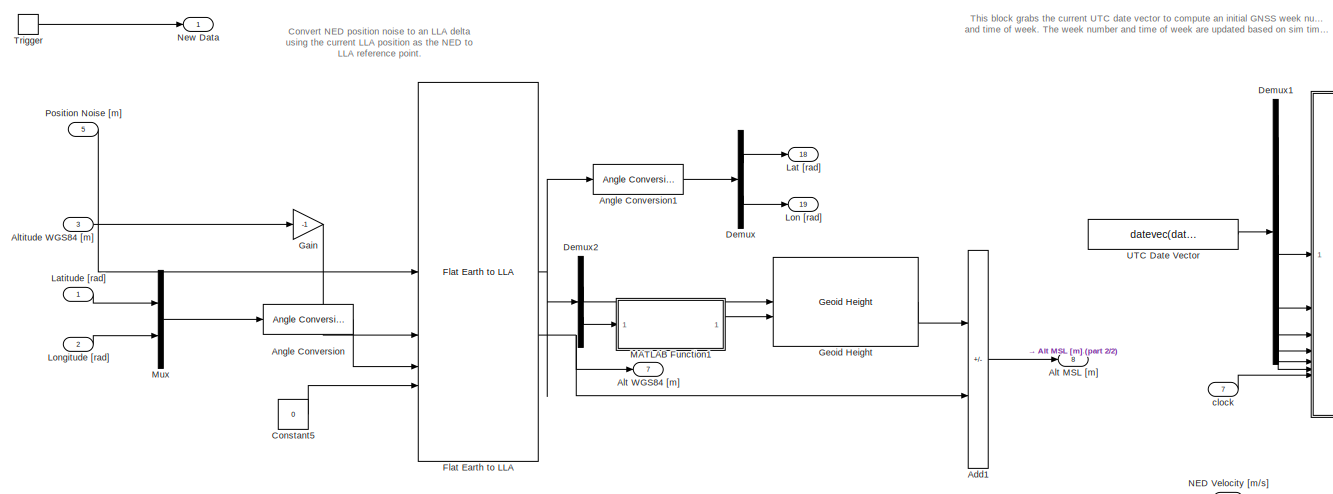
[diagram: Flight Management Unit/Sensor Models/GNSS/Triggered Subsystem - part 1/2, top left region]
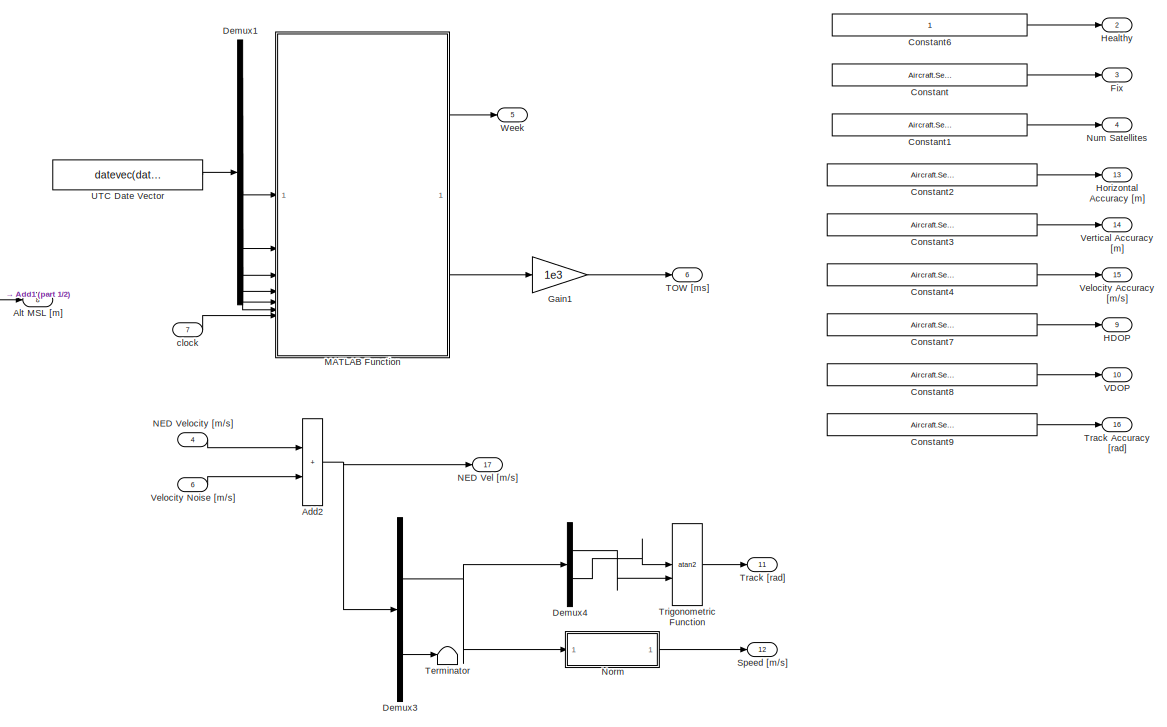
[diagram: Flight Management Unit/Sensor Models/GNSS/Triggered Subsystem - part 2/2, right side, full height]
BLOCK [SubSystem] Flight Management Unit/Sensor Models/GNSS/Triggered Subsystem
  TreatAsAtomicUnit = on
BLOCK [Sum] Flight Management Unit/Sensor Models/GNSS/Triggered Subsystem/Add1
  IconShape = rectangular
  Inputs = -+
BLOCK [Sum] Flight Management Unit/Sensor Models/GNSS/Triggered Subsystem/Add2
  IconShape = rectangular
BLOCK [Outport] Flight Management Unit/Sensor Models/GNSS/Triggered Subsystem/Alt MSL [m]
  Port = 8
BLOCK [Outport] Flight Management Unit/Sensor Models/GNSS/Triggered Subsystem/Alt WGS84 [m]
  Port = 7
BLOCK [Inport] Flight Management Unit/Sensor Models/GNSS/Triggered Subsystem/Altitude WGS84 [m]
  Port = 3
BLOCK [Reference] Flight Management Unit/Sensor Models/GNSS/Triggered Subsystem/Angle Conversion  REF=aerolibconvert2/Angle Conversion
  SourceBlock = aerolibconvert2/Angle Conversion
  SourceType = Angle Conversion
BLOCK [Reference] Flight Management Unit/Sensor Models/GNSS/Triggered Subsystem/Angle Conversion1  REF=aerolibconvert2/Angle Conversion
  SourceBlock = aerolibconvert2/Angle Conversion
  SourceType = Angle Conversion
BLOCK [Constant] Flight Management Unit/Sensor Models/GNSS/Triggered Subsystem/Constant
  Value = Aircraft.Sensors.Gnss.fix
BLOCK [Constant] Flight Management Unit/Sensor Models/GNSS/Triggered Subsystem/Constant1
  Value = Aircraft.Sensors.Gnss.num_satellites
BLOCK [Constant] Flight Management Unit/Sensor Models/GNSS/Triggered Subsystem/Constant2
  Value = Aircraft.Sensors.Gnss.horz_accuracy_m
BLOCK [Constant] Flight Management Unit/Sensor Models/GNSS/Triggered Subsystem/Constant3
  Value = Aircraft.Sensors.Gnss.vert_accuracy_m
BLOCK [Constant] Flight Management Unit/Sensor Models/GNSS/Triggered Subsystem/Constant4
  Value = Aircraft.Sensors.Gnss.vel_accuracy_mps
BLOCK [Constant] Flight Management Unit/Sensor Models/GNSS/Triggered Subsystem/Constant5
  Value = 0
BLOCK [Constant] Flight Management Unit/Sensor Models/GNSS/Triggered Subsystem/Constant6
BLOCK [Constant] Flight Management Unit/Sensor Models/GNSS/Triggered Subsystem/Constant7
  Value = Aircraft.Sensors.Gnss.hdop
BLOCK [Constant] Flight Management Unit/Sensor Models/GNSS/Triggered Subsystem/Constant8
  Value = Aircraft.Sensors.Gnss.vdop
BLOCK [Constant] Flight Management Unit/Sensor Models/GNSS/Triggered Subsystem/Constant9
  Value = Aircraft.Sensors.Gnss.track_accuracy_rad
BLOCK [Demux] Flight Management Unit/Sensor Models/GNSS/Triggered Subsystem/Demux
  Outputs = 2
BLOCK [Demux] Flight Management Unit/Sensor Models/GNSS/Triggered Subsystem/Demux1
  Outputs = 6
BLOCK [Demux] Flight Management Unit/Sensor Models/GNSS/Triggered Subsystem/Demux2
  Outputs = 2
BLOCK [Demux] Flight Management Unit/Sensor Models/GNSS/Triggered Subsystem/Demux3
  Outputs = [2 1]
BLOCK [Demux] Flight Management Unit/Sensor Models/GNSS/Triggered Subsystem/Demux4
  Outputs = 2
BLOCK [Outport] Flight Management Unit/Sensor Models/GNSS/Triggered Subsystem/Fix
  Port = 3
BLOCK [Reference] Flight Management Unit/Sensor Models/GNSS/Triggered Subsystem/Flat Earth to LLA  REF=aerolibtransform2/Flat Earth to LLA
  SourceBlock = aerolibtransform2/Flat Earth to LLA
  SourceType = Flat Earth to LLA
BLOCK [Gain] Flight Management Unit/Sensor Models/GNSS/Triggered Subsystem/Gain
  Gain = -1
BLOCK [Gain] Flight Management Unit/Sensor Models/GNSS/Triggered Subsystem/Gain1
  Gain = 1e3
BLOCK [Reference] Flight Management Unit/Sensor Models/GNSS/Triggered Subsystem/Geoid Height  REF=aerolibgravity2/Geoid Height
  AttributesFormatString = EGM2008 Geoid Data Unavailable
  SourceBlock = aerolibgravity2/Geoid Height
  SourceType = Geoid Height
BLOCK [Outport] Flight Management Unit/Sensor Models/GNSS/Triggered Subsystem/HDOP
  Port = 9
BLOCK [Outport] Flight Management Unit/Sensor Models/GNSS/Triggered Subsystem/Healthy
  Port = 2
BLOCK [Outport] Flight Management Unit/Sensor Models/GNSS/Triggered Subsystem/Horizontal Accuracy [m]
  Port = 13
BLOCK [Outport] Flight Management Unit/Sensor Models/GNSS/Triggered Subsystem/Lat [rad]
  Port = 18
BLOCK [Inport] Flight Management Unit/Sensor Models/GNSS/Triggered Subsystem/Latitude [rad]
BLOCK [Outport] Flight Management Unit/Sensor Models/GNSS/Triggered Subsystem/Lon [rad]
  Port = 19
BLOCK [Inport] Flight Management Unit/Sensor Models/GNSS/Triggered Subsystem/Longitude [rad] 
  Port = 2
BLOCK [SubSystem] Flight Management Unit/Sensor Models/GNSS/Triggered Subsystem/MATLAB Function
  ErrorFcn = Stateflow.Translate.translate
  PermitHierarchicalResolution = ExplicitOnly
  SFBlockType = MATLAB Function
  TreatAsAtomicUnit = on
BLOCK [Demux] Flight Management Unit/Sensor Models/GNSS/Triggered Subsystem/MATLAB Function/ Demux 
  Outputs = 1
BLOCK [S-Function] Flight Management Unit/Sensor Models/GNSS/Triggered Subsystem/MATLAB Function/ SFunction 
  EnableBusSupport = off
  FunctionName = sf_sfun
  PortCounts = [7 3]
  SFcnIsStateOwnerBlock = off
  SFunctionDeploymentMode = off
  Tag = Stateflow S-Function 2
BLOCK [Terminator] Flight Management Unit/Sensor Models/GNSS/Triggered Subsystem/MATLAB Function/ Terminator 
BLOCK [Outport] Flight Management Unit/Sensor Models/GNSS/Triggered Subsystem/MATLAB Function/gnss_tow
  Port = 2
BLOCK [Outport] Flight Management Unit/Sensor Models/GNSS/Triggered Subsystem/MATLAB Function/gnss_week
BLOCK [Inport] Flight Management Unit/Sensor Models/GNSS/Triggered Subsystem/MATLAB Function/hour
  Port = 4
BLOCK [Inport] Flight Management Unit/Sensor Models/GNSS/Triggered Subsystem/MATLAB Function/mday
  Port = 3
BLOCK [Inport] Flight Management Unit/Sensor Models/GNSS/Triggered Subsystem/MATLAB Function/minute
  Port = 5
BLOCK [Inport] Flight Management Unit/Sensor Models/GNSS/Triggered Subsystem/MATLAB Function/month
  Port = 2
BLOCK [Inport] Flight Management Unit/Sensor Models/GNSS/Triggered Subsystem/MATLAB Function/second
  Port = 6
BLOCK [Inport] Flight Management Unit/Sensor Models/GNSS/Triggered Subsystem/MATLAB Function/sim_clock
  Port = 7
BLOCK [Inport] Flight Management Unit/Sensor Models/GNSS/Triggered Subsystem/MATLAB Function/year
BLOCK [SubSystem] Flight Management Unit/Sensor Models/GNSS/Triggered Subsystem/MATLAB Function1
  ErrorFcn = Stateflow.Translate.translate
  PermitHierarchicalResolution = ExplicitOnly
  SFBlockType = MATLAB Function
  TreatAsAtomicUnit = on
BLOCK [Demux] Flight Management Unit/Sensor Models/GNSS/Triggered Subsystem/MATLAB Function1/ Demux 
  Outputs = 1
BLOCK [S-Function] Flight Management Unit/Sensor Models/GNSS/Triggered Subsystem/MATLAB Function1/ SFunction 
  EnableBusSupport = off
  FunctionName = sf_sfun
  PortCounts = [1 2]
  SFcnIsStateOwnerBlock = off
  SFunctionDeploymentMode = off
  Tag = Stateflow S-Function 3
BLOCK [Terminator] Flight Management Unit/Sensor Models/GNSS/Triggered Subsystem/MATLAB Function1/ Terminator 
BLOCK [Inport] Flight Management Unit/Sensor Models/GNSS/Triggered Subsystem/MATLAB Function1/ang
BLOCK [Outport] Flight Management Unit/Sensor Models/GNSS/Triggered Subsystem/MATLAB Function1/ret
BLOCK [Mux] Flight Management Unit/Sensor Models/GNSS/Triggered Subsystem/Mux
  DisplayOption = bar
  Inputs = 2
BLOCK [Outport] Flight Management Unit/Sensor Models/GNSS/Triggered Subsystem/NED Vel [m//s]
  Port = 17
BLOCK [Inport] Flight Management Unit/Sensor Models/GNSS/Triggered Subsystem/NED Velocity [m//s]
  Port = 4
  PortDimensions = 3
BLOCK [Outport] Flight Management Unit/Sensor Models/GNSS/Triggered Subsystem/New Data
BLOCK [SubSystem] Flight Management Unit/Sensor Models/GNSS/Triggered Subsystem/Norm
BLOCK [Inport] Flight Management Unit/Sensor Models/GNSS/Triggered Subsystem/Norm/2D Vector
BLOCK [Outport] Flight Management Unit/Sensor Models/GNSS/Triggered Subsystem/Norm/Norm
BLOCK [Product] Flight Management Unit/Sensor Models/GNSS/Triggered Subsystem/Norm/Product
BLOCK [Sqrt] Flight Management Unit/Sensor Models/GNSS/Triggered Subsystem/Norm/Sqrt
BLOCK [Sum] Flight Management Unit/Sensor Models/GNSS/Triggered Subsystem/Norm/Sum of Elements
  IconShape = rectangular
  Inputs = +
BLOCK [Outport] Flight Management Unit/Sensor Models/GNSS/Triggered Subsystem/Num Satellites
  Port = 4
BLOCK [Inport] Flight Management Unit/Sensor Models/GNSS/Triggered Subsystem/Position Noise [m]
  Port = 5
  PortDimensions = 3
BLOCK [Outport] Flight Management Unit/Sensor Models/GNSS/Triggered Subsystem/Speed [m//s]
  Port = 12
BLOCK [Outport] Flight Management Unit/Sensor Models/GNSS/Triggered Subsystem/TOW [ms]
  Port = 6
BLOCK [Terminator] Flight Management Unit/Sensor Models/GNSS/Triggered Subsystem/Terminator
BLOCK [Outport] Flight Management Unit/Sensor Models/GNSS/Triggered Subsystem/Track Accuracy [rad]
  Port = 16
BLOCK [Outport] Flight Management Unit/Sensor Models/GNSS/Triggered Subsystem/Track [rad]
  Port = 11
BLOCK [TriggerPort] Flight Management Unit/Sensor Models/GNSS/Triggered Subsystem/Trigger
  ShowOutputPort = on
  StatesWhenEnabling = held
  VariantControl = Variant
BLOCK [Trigonometry] Flight Management Unit/Sensor Models/GNSS/Triggered Subsystem/Trigonometric Function
  Operator = atan2
BLOCK [Constant] Flight Management Unit/Sensor Models/GNSS/Triggered Subsystem/UTC Date Vector
  SampleTime = -1
  Value = datevec(datetime(datetime('now', 'TimeZone','local'), 'TimeZone','Z'))
BLOCK [Outport] Flight Management Unit/Sensor Models/GNSS/Triggered Subsystem/VDOP
  Port = 10
BLOCK [Outport] Flight Management Unit/Sensor Models/GNSS/Triggered Subsystem/Velocity Accuracy [m//s]
  Port = 15
BLOCK [Inport] Flight Management Unit/Sensor Models/GNSS/Triggered Subsystem/Velocity Noise [m//s]
  Port = 6
  PortDimensions = 3
BLOCK [Outport] Flight Management Unit/Sensor Models/GNSS/Triggered Subsystem/Vertical Accuracy [m]
  Port = 14
BLOCK [Outport] Flight Management Unit/Sensor Models/GNSS/Triggered Subsystem/Week
  Port = 5
BLOCK [Inport] Flight Management Unit/Sensor Models/GNSS/Triggered Subsystem/clock
  Port = 7
BLOCK [SubSystem] Flight Management Unit/Sensor Models/IMU
BLOCK [SubSystem] Flight Management Unit/Sensor Models/IMU/Accelerometer
BLOCK [Outport] Flight Management Unit/Sensor Models/IMU/Accelerometer/Accelerometer [m//s//s]
  PortDimensions = 3
BLOCK [Sum] Flight Management Unit/Sensor Models/IMU/Accelerometer/Add
  IconShape = rectangular
  Inputs = +++
BLOCK [Reference] Flight Management Unit/Sensor Models/IMU/Accelerometer/Band-Limited White Noise  REF=simulink/Sources/Band-Limited
White Noise
  SourceBlock = simulink/Sources/Band-Limited\nWhite Noise
  SourceType = Band-Limited White Noise.
BLOCK [Inport] Flight Management Unit/Sensor Models/IMU/Accelerometer/Body Accel [m//s//s]
  PortDimensions = 3
BLOCK [Constant] Flight Management Unit/Sensor Models/IMU/Accelerometer/Constant
  Value = Aircraft.Sensors.Imu.Accel.bias_mps2
  VectorParams1D = off
BLOCK [Constant] Flight Management Unit/Sensor Models/IMU/Accelerometer/Constant1
  Value = Aircraft.Sensors.Imu.Accel.scale_factor
BLOCK [Inport] Flight Management Unit/Sensor Models/IMU/Accelerometer/Gravitational Accel in Body Frame [m//s//s]
  Port = 2
  PortDimensions = 3
BLOCK [Product] Flight Management Unit/Sensor Models/IMU/Accelerometer/Product
  Multiplication = Matrix(*)
BLOCK [Reshape] Flight Management Unit/Sensor Models/IMU/Accelerometer/Reshape
  OutputDimensionality = Column vector (2-D)
BLOCK [Reshape] Flight Management Unit/Sensor Models/IMU/Accelerometer/Reshape1
  OutputDimensionality = Column vector (2-D)
BLOCK [Reshape] Flight Management Unit/Sensor Models/IMU/Accelerometer/Reshape2
BLOCK [Saturate] Flight Management Unit/Sensor Models/IMU/Accelerometer/Saturation
  LowerLimit = Aircraft.Sensors.Imu.Accel.lower_limit_mps2
  UpperLimit = Aircraft.Sensors.Imu.Accel.upper_limit_mps2
BLOCK [Sum] Flight Management Unit/Sensor Models/IMU/Accelerometer/Subtract
  IconShape = rectangular
  Inputs = +-
BLOCK [Inport] Flight Management Unit/Sensor Models/IMU/Body Accel [m//s//s]
  Port = 2
BLOCK [Inport] Flight Management Unit/Sensor Models/IMU/Body Rotational Rate [rad//s]
BLOCK [BusCreator] Flight Management Unit/Sensor Models/IMU/Bus Creator
  DisplayOption = bar
  InheritFromInputs = on
  Inputs = 8
BLOCK [Constant] Flight Management Unit/Sensor Models/IMU/Constant
BLOCK [Constant] Flight Management Unit/Sensor Models/IMU/Constant1
BLOCK [Constant] Flight Management Unit/Sensor Models/IMU/Constant2
BLOCK [Constant] Flight Management Unit/Sensor Models/IMU/Constant3
BLOCK [Constant] Flight Management Unit/Sensor Models/IMU/Constant4
  Value = 23
BLOCK [Inport] Flight Management Unit/Sensor Models/IMU/DCM_be
  Port = 3
BLOCK [Inport] Flight Management Unit/Sensor Models/IMU/Gravity [m//s//s]
  Port = 4
BLOCK [SubSystem] Flight Management Unit/Sensor Models/IMU/Gyro
BLOCK [Sum] Flight Management Unit/Sensor Models/IMU/Gyro/Add1
  IconShape = rectangular
  Inputs = ++++
BLOCK [Reference] Flight Management Unit/Sensor Models/IMU/Gyro/Band-Limited White Noise  REF=simulink/Sources/Band-Limited
White Noise
  SourceBlock = simulink/Sources/Band-Limited\nWhite Noise
  SourceType = Band-Limited White Noise.
BLOCK [Inport] Flight Management Unit/Sensor Models/IMU/Gyro/Body Accel [m//s//s]
  Port = 2
  PortDimensions = 3
BLOCK [Inport] Flight Management Unit/Sensor Models/IMU/Gyro/Body Rotational Rate [rad//s]
  PortDimensions = 3
BLOCK [Constant] Flight Management Unit/Sensor Models/IMU/Gyro/Constant1
  Value = Aircraft.Sensors.Imu.Gyro.bias_radps
  VectorParams1D = off
BLOCK [Constant] Flight Management Unit/Sensor Models/IMU/Gyro/Constant2
  Value = Aircraft.Sensors.Imu.Gyro.accel_sens_radps
BLOCK [Constant] Flight Management Unit/Sensor Models/IMU/Gyro/Constant3
  Value = Aircraft.Sensors.Imu.Gyro.scale_factor
  VectorParams1D = off
BLOCK [Outport] Flight Management Unit/Sensor Models/IMU/Gyro/Gyro [rad//s]
  PortDimensions = 3
BLOCK [Product] Flight Management Unit/Sensor Models/IMU/Gyro/Product
BLOCK [Product] Flight Management Unit/Sensor Models/IMU/Gyro/Product1
  Multiplication = Matrix(*)
BLOCK [Reshape] Flight Management Unit/Sensor Models/IMU/Gyro/Reshape
  OutputDimensionality = Column vector (2-D)
BLOCK [Reshape] Flight Management Unit/Sensor Models/IMU/Gyro/Reshape1
  OutputDimensionality = Column vector (2-D)
BLOCK [Reshape] Flight Management Unit/Sensor Models/IMU/Gyro/Reshape2
BLOCK [Saturate] Flight Management Unit/Sensor Models/IMU/Gyro/Saturation
  LowerLimit = Aircraft.Sensors.Imu.Gyro.lower_limit_radps
  UpperLimit = Aircraft.Sensors.Imu.Gyro.upper_limit_radps
BLOCK [Outport] Flight Management Unit/Sensor Models/IMU/IMU Data
BLOCK [Inport] Flight Management Unit/Sensor Models/IMU/Magnetic Field [uT]
  Port = 5
BLOCK [SubSystem] Flight Management Unit/Sensor Models/IMU/Magnetometer
BLOCK [Sum] Flight Management Unit/Sensor Models/IMU/Magnetometer/Add2
  IconShape = rectangular
  Inputs = +++
BLOCK [Reference] Flight Management Unit/Sensor Models/IMU/Magnetometer/Band-Limited White Noise  REF=simulink/Sources/Band-Limited
White Noise
  SourceBlock = simulink/Sources/Band-Limited\nWhite Noise
  SourceType = Band-Limited White Noise.
BLOCK [Inport] Flight Management Unit/Sensor Models/IMU/Magnetometer/Body Magnetic Field [uT]
  PortDimensions = 3
BLOCK [Constant] Flight Management Unit/Sensor Models/IMU/Magnetometer/Constant1
  Value = Aircraft.Sensors.Imu.Mag.scale_factor
  VectorParams1D = off
BLOCK [Constant] Flight Management Unit/Sensor Models/IMU/Magnetometer/Constant2
  Value = Aircraft.Sensors.Imu.Mag.bias_ut
BLOCK [Outport] Flight Management Unit/Sensor Models/IMU/Magnetometer/Magnetometer [uT]
  PortDimensions = 3
BLOCK [Product] Flight Management Unit/Sensor Models/IMU/Magnetometer/Product
  Multiplication = Matrix(*)
BLOCK [Reshape] Flight Management Unit/Sensor Models/IMU/Magnetometer/Reshape
  OutputDimensionality = Column vector (2-D)
BLOCK [Reshape] Flight Management Unit/Sensor Models/IMU/Magnetometer/Reshape1
BLOCK [Saturate] Flight Management Unit/Sensor Models/IMU/Magnetometer/Saturation
  LowerLimit = Aircraft.Sensors.Imu.Mag.lower_limit_ut
  UpperLimit = Aircraft.Sensors.Imu.Mag.upper_limit_ut
BLOCK [Product] Flight Management Unit/Sensor Models/IMU/Product1
  Multiplication = Matrix(*)
BLOCK [Product] Flight Management Unit/Sensor Models/IMU/Product2
  Multiplication = Matrix(*)
BLOCK [Reshape] Flight Management Unit/Sensor Models/IMU/Reshape
  OutputDimensionality = Column vector (2-D)
BLOCK [Reshape] Flight Management Unit/Sensor Models/IMU/Reshape1
BLOCK [Reshape] Flight Management Unit/Sensor Models/IMU/Reshape2
BLOCK [Reshape] Flight Management Unit/Sensor Models/IMU/Reshape3
  OutputDimensionality = Column vector (2-D)
BLOCK [Inport] Flight Management Unit/Sensor Models/Inceptor Data
  Port = 3
BLOCK [Outport] Flight Management Unit/Sensor Models/Sensors
BLOCK [SubSystem] Flight Management Unit/Sensor Models/Static Pressure Sensor
BLOCK [Sum] Flight Management Unit/Sensor Models/Static Pressure Sensor/Add
  IconShape = rectangular
  Inputs = +++
BLOCK [Reference] Flight Management Unit/Sensor Models/Static Pressure Sensor/Band-Limited White Noise  REF=simulink/Sources/Band-Limited
White Noise
  SourceBlock = simulink/Sources/Band-Limited\nWhite Noise
  SourceType = Band-Limited White Noise.
BLOCK [BusCreator] Flight Management Unit/Sensor Models/Static Pressure Sensor/Bus Creator
  DisplayOption = bar
  InheritFromInputs = on
  Inputs = 4
BLOCK [Constant] Flight Management Unit/Sensor Models/Static Pressure Sensor/Constant
  Value = Aircraft.Sensors.StaticPres.bias_pa
BLOCK [Constant] Flight Management Unit/Sensor Models/Static Pressure Sensor/Constant1
  Value = Aircraft.Sensors.StaticPres.scale_factor
BLOCK [Constant] Flight Management Unit/Sensor Models/Static Pressure Sensor/Constant2
  Value = 23
BLOCK [Constant] Flight Management Unit/Sensor Models/Static Pressure Sensor/Constant3
BLOCK [Constant] Flight Management Unit/Sensor Models/Static Pressure Sensor/Constant4
BLOCK [Inport] Flight Management Unit/Sensor Models/Static Pressure Sensor/Pressure
BLOCK [Outport] Flight Management Unit/Sensor Models/Static Pressure Sensor/Pressure Data
BLOCK [Product] Flight Management Unit/Sensor Models/Static Pressure Sensor/Product
BLOCK [Saturate] Flight Management Unit/Sensor Models/Static Pressure Sensor/Saturation
  LowerLimit = Aircraft.Sensors.StaticPres.lower_limit_pa
  UpperLimit = Aircraft.Sensors.StaticPres.upper_limit_pa
BLOCK [Inport] Flight Management Unit/Sensor Models/Vehicle State
  Port = 2
BLOCK [SubSystem] Flight Management Unit/Subsystem
BLOCK [Inport] Flight Management Unit/Subsystem/<Waypoint Reached>
  Port = 2
BLOCK [Inport] Flight Management Unit/Subsystem/Bus
BLOCK [BusCreator] Flight Management Unit/Subsystem/Bus Creator
  DisplayOption = bar
  InheritFromInputs = on
  Inputs = 11
BLOCK [BusSelector] Flight Management Unit/Subsystem/Bus Selector1
  OutputSignals = Waypoints Updated,Fence Updated,Rally Points Updated,Current Waypoint Index,Number of Waypoints,Number of Fence Points,Number of Rally Points,Parameters,Flight Plan,Fence,Rally
BLOCK [Outport] Flight Management Unit/Subsystem/Telemetry Data
BLOCK [Terminator] Flight Management Unit/Subsystem/Terminator
BLOCK [SubSystem] Flight Management Unit/Subsystem/Triggered Subsystem
  TreatAsAtomicUnit = on
BLOCK [Constant] Flight Management Unit/Subsystem/Triggered Subsystem/Constant
  OutDataTypeStr = int16
BLOCK [Sum] Flight Management Unit/Subsystem/Triggered Subsystem/Sum
  AccumDataTypeStr = uint16
  Inputs = |++
BLOCK [TriggerPort] Flight Management Unit/Subsystem/Triggered Subsystem/Trigger
  StatesWhenEnabling = held
  VariantControl = (inherit)
BLOCK [Inport] Flight Management Unit/Subsystem/Triggered Subsystem/Wp
BLOCK [Outport] Flight Management Unit/Subsystem/Triggered Subsystem/Wp++
BLOCK [UnitDelay] Flight Management Unit/Subsystem/Unit Delay
  HasFrameUpgradeWarning = on
  SampleTime = -1
BLOCK [UnitDelay] Flight Management Unit/Subsystem/Unit Delay1
  HasFrameUpgradeWarning = on
  SampleTime = -1
BLOCK [SubSystem] Flight Management Unit/System Model
  PortSchema = {"entries":[{"content":{"sides":[{"content":{"connectorIds":[]},"type":"ConnectorPlacement.EquallySpacedRectSide","uuid":"b20f7590-d69b-48b8-beb1-2fb7d3ab0357"},{"content":{"connectorIds":[],"side":"RIGHT"},"type":"ConnectorPlacement.EquallySpacedRectSide","uuid":"07801f8a-7756-483e-a050-3c2fccc33404"},{"content":{"connectorIds":[],"side":"TOP"},"type":"ConnectorPlacement.EquallySpacedRectSide","u...<+523ch>
BLOCK [BusCreator] Flight Management Unit/System Model/Bus Creator
  DisplayOption = bar
  InheritFromInputs = on
  Inputs = 8
BLOCK [Clock] Flight Management Unit/System Model/Clock
  Decimation = 1e6
BLOCK [Constant] Flight Management Unit/System Model/Constant
  Value = 5
BLOCK [Constant] Flight Management Unit/System Model/Constant1
  Value = 5
BLOCK [Constant] Flight Management Unit/System Model/Constant2
  Value = 5
BLOCK [Constant] Flight Management Unit/System Model/Constant3
  Value = Aircraft.Battery.voltage
BLOCK [Constant] Flight Management Unit/System Model/Constant4
  Value = framePeriod_s
BLOCK [Gain] Flight Management Unit/System Model/Gain
  Gain = 1e6
BLOCK [Gain] Flight Management Unit/System Model/Gain1
  Gain = 1e6
BLOCK [Outport] Flight Management Unit/System Model/System
BLOCK [Inport] Flight Management Unit/Telemetry
  Port = 6
BLOCK [UnitDelay] Flight Management Unit/Unit Delay
  HasFrameUpgradeWarning = on
  SampleTime = -1
BLOCK [UnitDelay] Flight Management Unit/Unit Delay1
  HasFrameUpgradeWarning = on
  SampleTime = -1
BLOCK [Inport] Flight Management Unit/Vehicle State
BLOCK [Mux] Mux
  DisplayOption = bar
  Inputs = 3
BLOCK [SubSystem] Pilot Input
BLOCK [BusCreator] Pilot Input/Bus Creator
  DisplayOption = bar
  InheritFromInputs = on
  Inputs = 6
BLOCK [Constant] Pilot Input/Ch1
  NameLocation = left
  OutDataTypeStr = int16
  Value = 172
BLOCK [Constant] Pilot Input/Ch10
  NameLocation = left
  OutDataTypeStr = int16
  Value = 0
BLOCK [Constant] Pilot Input/Ch11
  NameLocation = left
  OutDataTypeStr = int16
  Value = 0
BLOCK [Constant] Pilot Input/Ch12
  NameLocation = left
  OutDataTypeStr = int16
  Value = 0
BLOCK [Constant] Pilot Input/Ch13
  NameLocation = left
  OutDataTypeStr = int16
  Value = 0
BLOCK [Constant] Pilot Input/Ch14
  NameLocation = left
  OutDataTypeStr = int16
  Value = 0
BLOCK [Constant] Pilot Input/Ch15
  NameLocation = left
  OutDataTypeStr = int16
  Value = 0
BLOCK [Constant] Pilot Input/Ch16
  NameLocation = left
  OutDataTypeStr = int16
  Value = 0
BLOCK [Constant] Pilot Input/Ch2
  NameLocation = left
  OutDataTypeStr = int16
  Value = 991
BLOCK [Constant] Pilot Input/Ch3
  NameLocation = left
  OutDataTypeStr = int16
  Value = 991
BLOCK [Constant] Pilot Input/Ch4
  NameLocation = left
  OutDataTypeStr = int16
  Value = 1811
BLOCK [Constant] Pilot Input/Ch5
  NameLocation = left
  OutDataTypeStr = int16
  Value = 1811
BLOCK [Constant] Pilot Input/Ch6
  NameLocation = left
  OutDataTypeStr = int16
  Value = 0
BLOCK [Constant] Pilot Input/Ch7
  NameLocation = left
  OutDataTypeStr = int16
  Value = 172
BLOCK [Constant] Pilot Input/Ch8
  NameLocation = left
  OutDataTypeStr = int16
  Value = 172
BLOCK [Constant] Pilot Input/Ch9
  NameLocation = left
  OutDataTypeStr = int16
  Value = 0
BLOCK [Constant] Pilot Input/Constant
  OutDataTypeStr = int8
  Value = 0
BLOCK [Constant] Pilot Input/Constant2
  OutDataTypeStr = boolean
BLOCK [Constant] Pilot Input/Constant3
  OutDataTypeStr = boolean
  Value = 0
BLOCK [Constant] Pilot Input/Constant8
  OutDataTypeStr = boolean
  Value = 0
BLOCK [Constant] Pilot Input/Constant9
  OutDataTypeStr = boolean
  Value = 0
BLOCK [Mux] Pilot Input/Mux
  DisplayOption = bar
  Inputs = 16
BLOCK [Outport] Pilot Input/Pilot Commands
BLOCK [Reference] Rotation Angles to Quaternions  REF=sharedtransform/Rotation Angles to Quaternions
  AttributesFormatString = Rotation Order: %<rotationOrder>
  SourceBlock = sharedtransform/Rotation Angles to Quaternions
  SourceType = Ang2Quat
BLOCK [SubSystem] Telemetry
BLOCK [BusCreator] Telemetry/Bus Creator
  DisplayOption = bar
  InheritFromInputs = on
  Inputs = 11
BLOCK [Constant] Telemetry/Constant1
  OutDataTypeStr = boolean
  Value = 0
BLOCK [Constant] Telemetry/Constant10
  OutDataTypeStr = Bus: MissionItem
  Value = Telem.Fence
BLOCK [Constant] Telemetry/Constant11
  OutDataTypeStr = Bus: MissionItem
  Value = Telem.Rally
BLOCK [Constant] Telemetry/Constant2
  OutDataTypeStr = boolean
  Value = 0
BLOCK [Constant] Telemetry/Constant3
  OutDataTypeStr = int16
BLOCK [Constant] Telemetry/Constant4
  OutDataTypeStr = int16
  Value = 0
BLOCK [Constant] Telemetry/Constant5
  OutDataTypeStr = int16
  Value = 0
BLOCK [Constant] Telemetry/Constant6
  OutDataTypeStr = int16
  Value = 0
BLOCK [Constant] Telemetry/Constant7
  OutDataTypeStr = boolean
  Value = [0 0 0 0 0 0 0 0 0 Aircraft.Control.wp_radius 1 1 1 0 0 0 0 0 0 0 0 0 0 0]
BLOCK [Constant] Telemetry/Constant8
  OutDataTypeStr = boolean
  Value = 0
BLOCK [Constant] Telemetry/Constant9
  OutDataTypeStr = Bus: MissionItem
  Value = Telem.FlightPlan
BLOCK [Outport] Telemetry/Telemetry Data
BLOCK [Reference] UAV Animation  REF=uavutilslib/UAV Animation
  SourceBlock = uavutilslib/UAV Animation
  SourceType = uav.sluav.internal.system.UAVAnimation
BLOCK [SubSystem] Vehicle
BLOCK [BusCreator] Vehicle/Bus Creator
  DisplayOption = bar
  InheritFromInputs = on
  Inputs = 26
BLOCK [BusSelector] Vehicle/Bus Selector
  OutputSignals = Gravity [m/s/s],Density [kg/m^3],Speed of Sound [m/s]
BLOCK [BusSelector] Vehicle/Bus Selector1
  OutputSignals = Dynamic Pressure [Pa],DCM_be,Body Velocity [m/s]
BLOCK [Inport] Vehicle/Environment
BLOCK [SubSystem] Vehicle/Forces and Moments
BLOCK [Sum] Vehicle/Forces and Moments/Add
  IconShape = rectangular
  Inputs = +++
BLOCK [SubSystem] Vehicle/Forces and Moments/Aerodynamic
BLOCK [SubSystem] Vehicle/Forces and Moments/Aerodynamic/Calculate wind angle
BLOCK [Outport] Vehicle/Forces and Moments/Aerodynamic/Calculate wind angle/Incident_angle_rad
BLOCK [Inport] Vehicle/Forces and Moments/Aerodynamic/Calculate wind angle/body_vel_mps
BLOCK [SubSystem] Vehicle/Forces and Moments/Aerodynamic/Calculate wind angle/calculate_wind_angle
  ErrorFcn = Stateflow.Translate.translate
  PermitHierarchicalResolution = ExplicitOnly
  SFBlockType = MATLAB Function
  TreatAsAtomicUnit = on
BLOCK [Demux] Vehicle/Forces and Moments/Aerodynamic/Calculate wind angle/calculate_wind_angle/ Demux 
  Outputs = 1
BLOCK [S-Function] Vehicle/Forces and Moments/Aerodynamic/Calculate wind angle/calculate_wind_angle/ SFunction 
  EnableBusSupport = off
  FunctionName = sf_sfun
  PortCounts = [1 2]
  SFcnIsStateOwnerBlock = off
  SFunctionDeploymentMode = off
  Tag = Stateflow S-Function 4
BLOCK [Terminator] Vehicle/Forces and Moments/Aerodynamic/Calculate wind angle/calculate_wind_angle/ Terminator 
BLOCK [Inport] Vehicle/Forces and Moments/Aerodynamic/Calculate wind angle/calculate_wind_angle/body_vel
BLOCK [Outport] Vehicle/Forces and Moments/Aerodynamic/Calculate wind angle/calculate_wind_angle/inc_ang
BLOCK [Constant] Vehicle/Forces and Moments/Aerodynamic/Cd
  Value = Aircraft.Aero.Cd
BLOCK [Constant] Vehicle/Forces and Moments/Aerodynamic/Drag contribution on moment
  Value = [0 0 0]
BLOCK [Product] Vehicle/Forces and Moments/Aerodynamic/Drag in body frame
  Multiplication = Matrix(*)
BLOCK [Inport] Vehicle/Forces and Moments/Aerodynamic/Dynamic Pressure
BLOCK [Outport] Vehicle/Forces and Moments/Aerodynamic/Fxyz Mxzy
BLOCK [Gain] Vehicle/Forces and Moments/Aerodynamic/Gain
  Gain = -1
BLOCK [Mux] Vehicle/Forces and Moments/Aerodynamic/Mux1
  DisplayOption = bar
  Inputs = 2
BLOCK [Reference] Vehicle/Forces and Moments/Aerodynamic/Normalize Vector  REF=vrlib/Utilities/Normalize Vector
  SourceBlock = vrlib/Utilities/Normalize Vector
  SourceType = Normalize Vector
BLOCK [Product] Vehicle/Forces and Moments/Aerodynamic/Product
  Inputs = 3
BLOCK [Reference] Vehicle/Forces and Moments/Aerodynamic/Radians to Degrees  REF=simulink_extras/Transformations/Radians
to Degrees
  SourceBlock = simulink_extras/Transformations/Radians\nto Degrees
  SourceType = RadiansToDegrees
BLOCK [Reshape] Vehicle/Forces and Moments/Aerodynamic/Reshape
  OutputDimensionality = Row vector (2-D)
BLOCK [Lookup_n-D] Vehicle/Forces and Moments/Aerodynamic/alfa to frontal area look up table
  BreakpointsForDimension1 = [-90:10:90]
  BreakpointsForDimension1FirstPoint = -180
  BreakpointsForDimension1Spacing = 10
  BreakpointsSpecification = Even spacing
  InputPortMap = u0
  InternalRulePriority = Speed
  NumberOfTableDimensions = 1
  RndMeth = Simplest
  Table = Aircraft.Geo.front_area_m2
BLOCK [Inport] Vehicle/Forces and Moments/Aerodynamic/body_vel
  Port = 2
BLOCK [Inport] Vehicle/Forces and Moments/DCM_be
  Port = 2
BLOCK [Demux] Vehicle/Forces and Moments/Demux3
  Outputs = 2
BLOCK [Inport] Vehicle/Forces and Moments/Dynamic Pressure [Pa]
BLOCK [Outport] Vehicle/Forces and Moments/Fxyz [N]
BLOCK [SubSystem] Vehicle/Forces and Moments/Gravitational
BLOCK [Inport] Vehicle/Forces and Moments/Gravitational/DCM_be
  Port = 2
BLOCK [Outport] Vehicle/Forces and Moments/Gravitational/Fxyz Mxyz
BLOCK [Constant] Vehicle/Forces and Moments/Gravitational/Gravity Moment
  Value = [0 0 0]
BLOCK [Inport] Vehicle/Forces and Moments/Gravitational/Gravity [m//s//s]
BLOCK [Mux] Vehicle/Forces and Moments/Gravitational/Mux
  DisplayOption = bar
  Inputs = 2
BLOCK [Product] Vehicle/Forces and Moments/Gravitational/Product
BLOCK [Product] Vehicle/Forces and Moments/Gravitational/Product1
  Multiplication = Matrix(*)
BLOCK [Reshape] Vehicle/Forces and Moments/Gravitational/Reshape
  OutputDimensionality = Column vector (2-D)
BLOCK [Reshape] Vehicle/Forces and Moments/Gravitational/Reshape1
BLOCK [Constant] Vehicle/Forces and Moments/Gravitational/UAV Mass
  Value = Aircraft.Mass.mass_kg
BLOCK [Inport] Vehicle/Forces and Moments/Gravity [m//s//s]
  Port = 5
BLOCK [Inport] Vehicle/Forces and Moments/Motor Cmds
  Port = 4
BLOCK [Outport] Vehicle/Forces and Moments/Mxyz [N-m]
  Port = 2
BLOCK [SubSystem] Vehicle/Forces and Moments/Propulsive
BLOCK [Constant] Vehicle/Forces and Moments/Propulsive/Constant4
  Value = Aircraft.Mass.cg_m
BLOCK [Constant] Vehicle/Forces and Moments/Propulsive/Constant5
  Value = Aircraft.Prop.poly_thrust
BLOCK [Constant] Vehicle/Forces and Moments/Propulsive/Constant6
  Value = Aircraft.Prop.poly_torque
BLOCK [Constant] Vehicle/Forces and Moments/Propulsive/Constant7
  Value = Aircraft.Motor.pos_m
BLOCK [Demux] Vehicle/Forces and Moments/Propulsive/Demux1
  Outputs = 3
BLOCK [Outport] Vehicle/Forces and Moments/Propulsive/Fxyz Mxyz
BLOCK [Gain] Vehicle/Forces and Moments/Propulsive/Gain2
  Gain = -1
BLOCK [Gain] Vehicle/Forces and Moments/Propulsive/Gain3
  Gain = -1
BLOCK [SubSystem] Vehicle/Forces and Moments/Propulsive/MATLAB Function2
  ErrorFcn = Stateflow.Translate.translate
  PermitHierarchicalResolution = ExplicitOnly
  SFBlockType = MATLAB Function
  TreatAsAtomicUnit = on
BLOCK [Demux] Vehicle/Forces and Moments/Propulsive/MATLAB Function2/ Demux 
  Outputs = 1
BLOCK [S-Function] Vehicle/Forces and Moments/Propulsive/MATLAB Function2/ SFunction 
  EnableBusSupport = off
  FunctionName = sf_sfun
  PortCounts = [3 3]
  SFcnIsStateOwnerBlock = off
  SFunctionDeploymentMode = off
  Tag = Stateflow S-Function 6
BLOCK [Terminator] Vehicle/Forces and Moments/Propulsive/MATLAB Function2/ Terminator 
BLOCK [Inport] Vehicle/Forces and Moments/Propulsive/MATLAB Function2/Motor_cmd
  Port = 3
BLOCK [Outport] Vehicle/Forces and Moments/Propulsive/MATLAB Function2/motor_thrust
BLOCK [Outport] Vehicle/Forces and Moments/Propulsive/MATLAB Function2/motor_torque
  Port = 2
BLOCK [Inport] Vehicle/Forces and Moments/Propulsive/MATLAB Function2/poly_thrust
BLOCK [Inport] Vehicle/Forces and Moments/Propulsive/MATLAB Function2/poly_torque
  Port = 2
BLOCK [SubSystem] Vehicle/Forces and Moments/Propulsive/MATLAB Function3
  ErrorFcn = Stateflow.Translate.translate
  PermitHierarchicalResolution = ExplicitOnly
  SFBlockType = MATLAB Function
  TreatAsAtomicUnit = on
BLOCK [Demux] Vehicle/Forces and Moments/Propulsive/MATLAB Function3/ Demux 
  Outputs = 1
BLOCK [S-Function] Vehicle/Forces and Moments/Propulsive/MATLAB Function3/ SFunction 
  EnableBusSupport = off
  FunctionName = sf_sfun
  PortCounts = [3 2]
  SFcnIsStateOwnerBlock = off
  SFunctionDeploymentMode = off
  Tag = Stateflow S-Function 7
BLOCK [Terminator] Vehicle/Forces and Moments/Propulsive/MATLAB Function3/ Terminator 
BLOCK [Outport] Vehicle/Forces and Moments/Propulsive/MATLAB Function3/Moment_motor
BLOCK [Inport] Vehicle/Forces and Moments/Propulsive/MATLAB Function3/cg_pos
BLOCK [Inport] Vehicle/Forces and Moments/Propulsive/MATLAB Function3/motor_pos
  Port = 2
BLOCK [Inport] Vehicle/Forces and Moments/Propulsive/MATLAB Function3/motor_thrust
  Port = 3
BLOCK [Inport] Vehicle/Forces and Moments/Propulsive/Motor Cmd
BLOCK [Mux] Vehicle/Forces and Moments/Propulsive/Mux1
  DisplayOption = bar
  Inputs = 6
BLOCK [SubSystem] Vehicle/Forces and Moments/Propulsive/Mz calculation1
BLOCK [Constant] Vehicle/Forces and Moments/Propulsive/Mz calculation1/Constant
  Value = Aircraft.Motor.dir
BLOCK [Product] Vehicle/Forces and Moments/Propulsive/Mz calculation1/MatrixMultiply
  Multiplication = Matrix(*)
BLOCK [Inport] Vehicle/Forces and Moments/Propulsive/Mz calculation1/Motor_torque
BLOCK [Outport] Vehicle/Forces and Moments/Propulsive/Mz calculation1/Mz_from_motor_torque
BLOCK [Reshape] Vehicle/Forces and Moments/Propulsive/Reshape2
  OutputDimensionality = Row vector (2-D)
BLOCK [Reshape] Vehicle/Forces and Moments/Propulsive/Reshape3
  OutputDimensionality = Row vector (2-D)
BLOCK [Saturate] Vehicle/Forces and Moments/Propulsive/Saturation1
  LowerLimit = -inf
  UpperLimit = 0
BLOCK [Scope] Vehicle/Forces and Moments/Propulsive/Scope
  Floating = off
  NumInputPorts = 1
  ScopeSpecificationString = Simulink.scopes.TimeScopeBlockCfg('CurrentConfiguration', extmgr.ConfigurationSet(extmgr.Configuration('Core','General UI',true),extmgr.Configuration('Core','Source UI',true),extmgr.Configuration('Sources','WiredSimulink',true,'DataLoggingVariableName','ScopeData2'),extmgr.Configuration('Visuals','Time Domain',true,'SerializedDisplays',{struct('MinYLimReal','-0.24747','MaxYLimReal','-0.14939','YLa...<+1428ch>
BLOCK [Scope] Vehicle/Forces and Moments/Propulsive/Scope1
  Floating = off
  NumInputPorts = 1
  ScopeSpecificationString = Simulink.scopes.TimeScopeBlockCfg('CurrentConfiguration', extmgr.ConfigurationSet(extmgr.Configuration('Core','General UI',true),extmgr.Configuration('Core','Source UI',true),extmgr.Configuration('Sources','WiredSimulink',true,'DataLoggingVariableName','ScopeData6'),extmgr.Configuration('Visuals','Time Domain',true,'SerializedDisplays',{struct('MinYLimReal','-36.66512','MaxYLimReal','-36.52158','Y...<+1605ch>
BLOCK [Scope] Vehicle/Forces and Moments/Propulsive/Scope2
  Floating = off
  NumInputPorts = 1
  ScopeSpecificationString = Simulink.scopes.TimeScopeBlockCfg('CurrentConfiguration', extmgr.ConfigurationSet(extmgr.Configuration('Core','General UI',true),extmgr.Configuration('Core','Source UI',true),extmgr.Configuration('Sources','WiredSimulink',true,'DataLoggingVariableName','ScopeData3'),extmgr.Configuration('Visuals','Time Domain',true,'SerializedDisplays',{struct('MinYLimReal','-0.11056','MaxYLimReal','0.99502','YLab...<+1464ch>
BLOCK [Sum] Vehicle/Forces and Moments/Propulsive/Sum of Elements1
  IconShape = rectangular
  Inputs = +
BLOCK [Sum] Vehicle/Forces and Moments/Propulsive/Sum1
  Inputs = |++
BLOCK [Constant] Vehicle/Forces and Moments/Propulsive/Zero2
  OutDataTypeStr = Inherit: Inherit via back propagation
  Value = 0
BLOCK [Constant] Vehicle/Forces and Moments/Propulsive/Zero3
  OutDataTypeStr = Inherit: Inherit via back propagation
  Value = 0
BLOCK [Inport] Vehicle/Forces and Moments/body_vel
  Port = 3
BLOCK [SubSystem] Vehicle/Forces and Moments/check for takeoff
BLOCK [Inport] Vehicle/Forces and Moments/check for takeoff/FM_aero
BLOCK [Outport] Vehicle/Forces and Moments/check for takeoff/FM_aero_out
  Port = 3
BLOCK [Inport] Vehicle/Forces and Moments/check for takeoff/FM_grav
  Port = 2
BLOCK [Outport] Vehicle/Forces and Moments/check for takeoff/FM_grav_out
  Port = 2
BLOCK [Inport] Vehicle/Forces and Moments/check for takeoff/FM_prop
  Port = 3
BLOCK [Outport] Vehicle/Forces and Moments/check for takeoff/FM_prop_out
BLOCK [From] Vehicle/Forces and Moments/check for takeoff/From
  GotoTag = takenoff
BLOCK [From] Vehicle/Forces and Moments/check for takeoff/From1
  GotoTag = takenoff
BLOCK [From] Vehicle/Forces and Moments/check for takeoff/From2
  GotoTag = takenoff
BLOCK [Goto] Vehicle/Forces and Moments/check for takeoff/Goto
  GotoTag = takenoff
BLOCK [Selector] Vehicle/Forces and Moments/check for takeoff/Selector
  IndexOptions = Index vector (dialog),Index vector (dialog)
  Indices = 1,3
  InputPortWidth = 3
  NumberOfDimensions = 2
  OutputSizes = 1,1
BLOCK [Selector] Vehicle/Forces and Moments/check for takeoff/Selector1
  IndexOptions = Index vector (dialog),Index vector (dialog)
  Indices = 1,3
  InputPortWidth = 3
  NumberOfDimensions = 2
  OutputSizes = 1,1
BLOCK [Switch] Vehicle/Forces and Moments/check for takeoff/Switch
  Criteria = u2 > Threshold
  InputSameDT = off
  SaturateOnIntegerOverflow = off
BLOCK [Switch] Vehicle/Forces and Moments/check for takeoff/Switch1
  Criteria = u2 > Threshold
  InputSameDT = off
  SaturateOnIntegerOverflow = off
BLOCK [Switch] Vehicle/Forces and Moments/check for takeoff/Switch2
  Criteria = u2 > Threshold
  InputSameDT = off
  SaturateOnIntegerOverflow = off
BLOCK [UnitDelay] Vehicle/Forces and Moments/check for takeoff/Unit Delay
  HasFrameUpgradeWarning = on
  InitialCondition = false
  SampleTime = -1
BLOCK [Constant] Vehicle/Forces and Moments/check for takeoff/Zero
  OutDataTypeStr = Inherit: Inherit via back propagation
  Value = [0, 0, 0, 0, 0, 0]
  VectorParams1D = off
BLOCK [Constant] Vehicle/Forces and Moments/check for takeoff/Zero1
  OutDataTypeStr = Inherit: Inherit via back propagation
  Value = [0, 0, 0, 0, 0, 0]
  VectorParams1D = off
BLOCK [Constant] Vehicle/Forces and Moments/check for takeoff/Zero2
  OutDataTypeStr = Inherit: Inherit via back propagation
  Value = [0, 0, 0, 0, 0, 0]
  VectorParams1D = off
BLOCK [SubSystem] Vehicle/Forces and Moments/check for takeoff/determine takeoff
BLOCK [Inport] Vehicle/Forces and Moments/check for takeoff/determine takeoff/Fgrav_d
  Port = 2
BLOCK [Inport] Vehicle/Forces and Moments/check for takeoff/determine takeoff/Fprop_d
BLOCK [Gain] Vehicle/Forces and Moments/check for takeoff/determine takeoff/Gain
  Gain = -1
BLOCK [RelationalOperator] Vehicle/Forces and Moments/check for takeoff/determine takeoff/GreaterThan
  InputSameDT = off
  Operator = >
  OutDataTypeStr = boolean
  RndMeth = Simplest
BLOCK [Logic] Vehicle/Forces and Moments/check for takeoff/determine takeoff/OR
  AllPortsSameDT = off
  IconShape = distinctive
  Operator = OR
  OutDataTypeStr = boolean
BLOCK [Inport] Vehicle/Forces and Moments/check for takeoff/determine takeoff/has_takenoff
  Port = 3
BLOCK [Outport] Vehicle/Forces and Moments/check for takeoff/determine takeoff/takenoff
BLOCK [Inport] Vehicle/Motor Cmds
  Port = 2
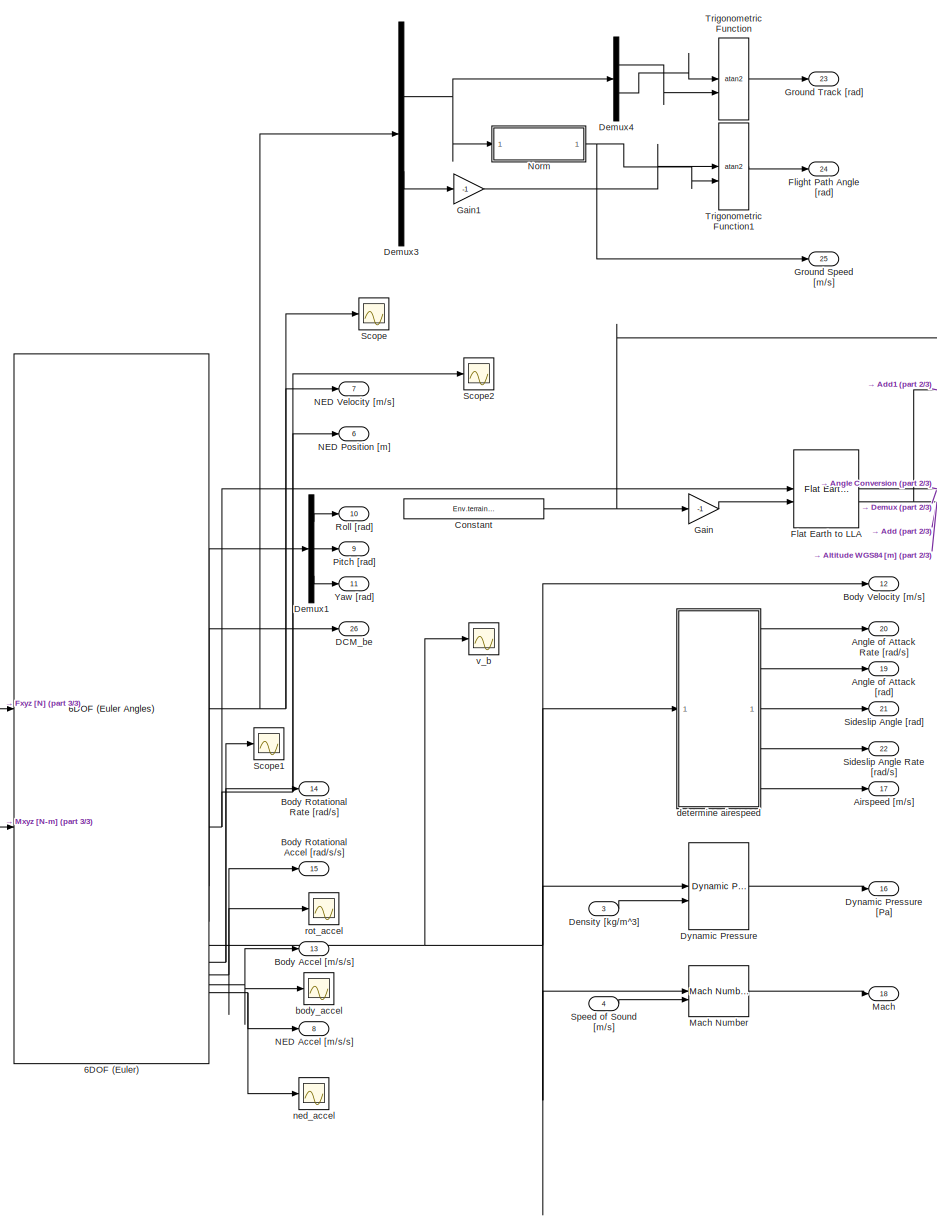
[diagram: Vehicle/Vehicle Model - part 1/3, center side, full height]
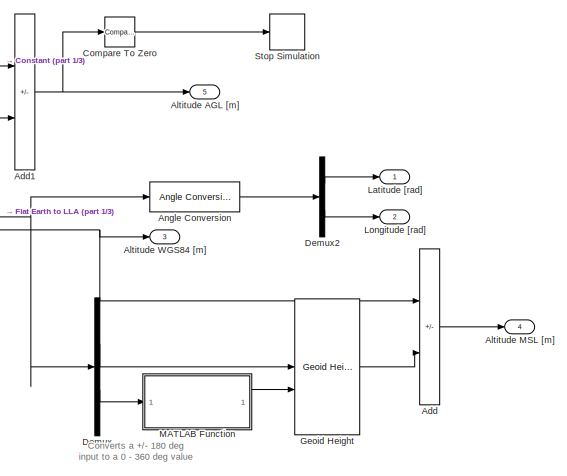
[diagram: Vehicle/Vehicle Model - part 2/3, middle right region]
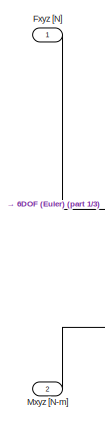
[diagram: Vehicle/Vehicle Model - part 3/3, middle left region]
BLOCK [SubSystem] Vehicle/Vehicle Model
BLOCK [Reference] Vehicle/Vehicle Model/6DOF (Euler)  REF=shared6dof/6DOF (Euler Angles)
  SourceBlock = shared6dof/6DOF (Euler Angles)
  SourceType = 6DOF EoM (Body Axis)
BLOCK [Sum] Vehicle/Vehicle Model/Add
  IconShape = rectangular
  Inputs = +-
BLOCK [Sum] Vehicle/Vehicle Model/Add1
  IconShape = rectangular
  Inputs = -+
BLOCK [Outport] Vehicle/Vehicle Model/Airspeed [m//s]
  Port = 17
BLOCK [Outport] Vehicle/Vehicle Model/Altitude AGL [m]
  Port = 5
BLOCK [Outport] Vehicle/Vehicle Model/Altitude MSL [m]
  Port = 4
BLOCK [Outport] Vehicle/Vehicle Model/Altitude WGS84 [m]
  Port = 3
BLOCK [Reference] Vehicle/Vehicle Model/Angle Conversion  REF=aerolibconvert2/Angle Conversion
  SourceBlock = aerolibconvert2/Angle Conversion
  SourceType = Angle Conversion
BLOCK [Outport] Vehicle/Vehicle Model/Angle of Attack Rate [rad//s]
  Port = 20
BLOCK [Outport] Vehicle/Vehicle Model/Angle of Attack [rad]
  Port = 19
BLOCK [Outport] Vehicle/Vehicle Model/Body Accel [m//s//s]
  Port = 13
BLOCK [Outport] Vehicle/Vehicle Model/Body Rotational Accel [rad//s//s]
  Port = 15
BLOCK [Outport] Vehicle/Vehicle Model/Body Rotational Rate [rad//s]
  Port = 14
BLOCK [Outport] Vehicle/Vehicle Model/Body Velocity [m//s]
  Port = 12
BLOCK [Reference] Vehicle/Vehicle Model/Compare To Zero  REF=simulink/Logic and Bit
Operations/Compare
To Zero
  SourceBlock = simulink/Logic and Bit\nOperations/Compare\nTo Zero
  SourceType = Compare To Zero
BLOCK [Constant] Vehicle/Vehicle Model/Constant
  Value = Env.terrain_alt_wgs84
BLOCK [Outport] Vehicle/Vehicle Model/DCM_be
  Port = 26
BLOCK [Demux] Vehicle/Vehicle Model/Demux
  Outputs = 2
BLOCK [Demux] Vehicle/Vehicle Model/Demux1
  Outputs = 3
BLOCK [Demux] Vehicle/Vehicle Model/Demux2
  Outputs = 2
BLOCK [Demux] Vehicle/Vehicle Model/Demux3
  Outputs = [2 1]
BLOCK [Demux] Vehicle/Vehicle Model/Demux4
  Outputs = 2
BLOCK [Inport] Vehicle/Vehicle Model/Density [kg//m^3]
  Port = 3
BLOCK [Reference] Vehicle/Vehicle Model/Dynamic Pressure  REF=aerolibasang/Dynamic Pressure
  SourceBlock = aerolibasang/Dynamic Pressure
  SourceType = Dynamic Pressure
BLOCK [Outport] Vehicle/Vehicle Model/Dynamic Pressure [Pa]
  Port = 16
BLOCK [Reference] Vehicle/Vehicle Model/Flat Earth to LLA  REF=aerolibtransform2/Flat Earth to LLA
  SourceBlock = aerolibtransform2/Flat Earth to LLA
  SourceType = Flat Earth to LLA
BLOCK [Outport] Vehicle/Vehicle Model/Flight Path Angle [rad]
  Port = 24
BLOCK [Inport] Vehicle/Vehicle Model/Fxyz [N]
BLOCK [Gain] Vehicle/Vehicle Model/Gain
  Gain = -1
BLOCK [Gain] Vehicle/Vehicle Model/Gain1
  Gain = -1
BLOCK [Reference] Vehicle/Vehicle Model/Geoid Height  REF=aerolibgravity2/Geoid Height
  AttributesFormatString = EGM2008 Geoid Data Unavailable
  SourceBlock = aerolibgravity2/Geoid Height
  SourceType = Geoid Height
BLOCK [Outport] Vehicle/Vehicle Model/Ground Speed [m//s]
  Port = 25
BLOCK [Outport] Vehicle/Vehicle Model/Ground Track [rad]
  Port = 23
BLOCK [Outport] Vehicle/Vehicle Model/Latitude [rad]
BLOCK [Outport] Vehicle/Vehicle Model/Longitude [rad]
  Port = 2
BLOCK [SubSystem] Vehicle/Vehicle Model/MATLAB Function
  ErrorFcn = Stateflow.Translate.translate
  PermitHierarchicalResolution = ExplicitOnly
  SFBlockType = MATLAB Function
  TreatAsAtomicUnit = on
BLOCK [Demux] Vehicle/Vehicle Model/MATLAB Function/ Demux 
  Outputs = 1
BLOCK [S-Function] Vehicle/Vehicle Model/MATLAB Function/ SFunction 
  EnableBusSupport = off
  FunctionName = sf_sfun
  PortCounts = [1 2]
  SFcnIsStateOwnerBlock = off
  SFunctionDeploymentMode = off
  Tag = Stateflow S-Function 1
BLOCK [Terminator] Vehicle/Vehicle Model/MATLAB Function/ Terminator 
BLOCK [Inport] Vehicle/Vehicle Model/MATLAB Function/ang
BLOCK [Outport] Vehicle/Vehicle Model/MATLAB Function/ret
BLOCK [Outport] Vehicle/Vehicle Model/Mach
  Port = 18
BLOCK [Reference] Vehicle/Vehicle Model/Mach Number  REF=aerolibasang/Mach Number
  SourceBlock = aerolibasang/Mach Number
  SourceType = Mach Number
BLOCK [Inport] Vehicle/Vehicle Model/Mxyz [N-m]
  Port = 2
BLOCK [Outport] Vehicle/Vehicle Model/NED Accel [m//s//s]
  Port = 8
BLOCK [Outport] Vehicle/Vehicle Model/NED Position [m]
  Port = 6
BLOCK [Outport] Vehicle/Vehicle Model/NED Velocity [m//s]
  Port = 7
BLOCK [SubSystem] Vehicle/Vehicle Model/Norm
BLOCK [Inport] Vehicle/Vehicle Model/Norm/2D Vector
BLOCK [Outport] Vehicle/Vehicle Model/Norm/Norm
BLOCK [Product] Vehicle/Vehicle Model/Norm/Product
BLOCK [Sqrt] Vehicle/Vehicle Model/Norm/Sqrt
BLOCK [Sum] Vehicle/Vehicle Model/Norm/Sum of Elements
  IconShape = rectangular
  Inputs = +
BLOCK [Outport] Vehicle/Vehicle Model/Pitch [rad]
  Port = 9
BLOCK [Outport] Vehicle/Vehicle Model/Roll [rad]
  Port = 10
BLOCK [Scope] Vehicle/Vehicle Model/Scope
  Floating = off
  NumInputPorts = 1
  ScopeSpecificationString = Simulink.scopes.TimeScopeBlockCfg('CurrentConfiguration', extmgr.ConfigurationSet(extmgr.Configuration('Core','General UI',true),extmgr.Configuration('Core','Source UI',true),extmgr.Configuration('Sources','WiredSimulink',true,'DataLoggingVariableName','ScopeData1'),extmgr.Configuration('Visuals','Time Domain',true,'SerializedDisplays',{struct('MinYLimReal','-0.03555','MaxYLimReal','0.08345','YLab...<+1432ch>
BLOCK [Scope] Vehicle/Vehicle Model/Scope1
  Floating = off
  NumInputPorts = 1
  ScopeSpecificationString = Simulink.scopes.TimeScopeBlockCfg('CurrentConfiguration', extmgr.ConfigurationSet(extmgr.Configuration('Core','General UI',true),extmgr.Configuration('Core','Source UI',true),extmgr.Configuration('Sources','WiredSimulink',true,'DataLoggingVariableName','ScopeData4'),extmgr.Configuration('Visuals','Time Domain',true,'SerializedDisplays',{struct('MinYLimReal','-0.00017','MaxYLimReal','0.00005','YLab...<+1462ch>
BLOCK [Scope] Vehicle/Vehicle Model/Scope2
  Floating = off
  NumInputPorts = 1
  ScopeSpecificationString = Simulink.scopes.TimeScopeBlockCfg('CurrentConfiguration', extmgr.ConfigurationSet(extmgr.Configuration('Core','General UI',true),extmgr.Configuration('Core','Source UI',true),extmgr.Configuration('Sources','WiredSimulink',true,'DataLoggingVariableName','ScopeData5'),extmgr.Configuration('Visuals','Time Domain',true),extmgr.Configuration('Tools','Plot Navigation',true),extmgr.Configuration('Tools',...<+40ch>
BLOCK [Outport] Vehicle/Vehicle Model/Sideslip Angle Rate [rad//s]
  Port = 22
BLOCK [Outport] Vehicle/Vehicle Model/Sideslip Angle [rad]
  Port = 21
BLOCK [Inport] Vehicle/Vehicle Model/Speed of Sound [m//s]
  Port = 4
BLOCK [Stop] Vehicle/Vehicle Model/Stop Simulation
BLOCK [Trigonometry] Vehicle/Vehicle Model/Trigonometric Function
  Operator = atan2
BLOCK [Trigonometry] Vehicle/Vehicle Model/Trigonometric Function1
  Operator = atan2
BLOCK [Outport] Vehicle/Vehicle Model/Yaw [rad]
  Port = 11
BLOCK [Scope] Vehicle/Vehicle Model/body_accel
  Floating = off
  NumInputPorts = 1
  ScopeSpecificationString = Simulink.scopes.TimeScopeBlockCfg('CurrentConfiguration', extmgr.ConfigurationSet(extmgr.Configuration('Core','General UI',true),extmgr.Configuration('Core','Source UI',true),extmgr.Configuration('Sources','WiredSimulink',true,'DataLoggingVariableName','ScopeData1'),extmgr.Configuration('Visuals','Time Domain',true,'SerializedDisplays',{struct('MinYLimReal','-0.01069','MaxYLimReal','0.00066','YLab...<+1462ch>
BLOCK [SubSystem] Vehicle/Vehicle Model/determine airespeed
BLOCK [Outport] Vehicle/Vehicle Model/determine airespeed/Alpha
  Port = 2
BLOCK [Outport] Vehicle/Vehicle Model/determine airespeed/AoA rate
BLOCK [Outport] Vehicle/Vehicle Model/determine airespeed/Beta
  Port = 3
BLOCK [Reference] Vehicle/Vehicle Model/determine airespeed/Compare To Constant  REF=simulink/Logic and Bit
Operations/Compare
To Constant
  SourceBlock = simulink/Logic and Bit\nOperations/Compare\nTo Constant
  SourceType = Compare To Constant
BLOCK [Product] Vehicle/Vehicle Model/determine airespeed/MatrixMultiply
  Multiplication = Matrix(*)
BLOCK [Reshape] Vehicle/Vehicle Model/determine airespeed/Reshape
  OutputDimensionality = Column vector (2-D)
BLOCK [Reshape] Vehicle/Vehicle Model/determine airespeed/Reshape1
  OutputDimensionality = Row vector (2-D)
BLOCK [SubSystem] Vehicle/Vehicle Model/determine airespeed/Subsystem
BLOCK [Outport] Vehicle/Vehicle Model/determine airespeed/Subsystem/Alpha
  Port = 2
BLOCK [Outport] Vehicle/Vehicle Model/determine airespeed/Subsystem/AoA rate
BLOCK [Outport] Vehicle/Vehicle Model/determine airespeed/Subsystem/Beta
  Port = 3
BLOCK [Derivative] Vehicle/Vehicle Model/determine airespeed/Subsystem/Derivative
BLOCK [Derivative] Vehicle/Vehicle Model/determine airespeed/Subsystem/Derivative1
BLOCK [EnablePort] Vehicle/Vehicle Model/determine airespeed/Subsystem/Enable
  StatesWhenEnabling = reset
BLOCK [Reference] Vehicle/Vehicle Model/determine airespeed/Subsystem/Incidence, Sideslip, & Airspeed  REF=aerolibasang/Incidence, Sideslip,
& Airspeed
  SourceBlock = aerolibasang/Incidence, Sideslip,\n& Airspeed
  SourceType = Incidence,Sideslip,&Airspeed
BLOCK [Outport] Vehicle/Vehicle Model/determine airespeed/Subsystem/V
  Port = 5
BLOCK [Inport] Vehicle/Vehicle Model/determine airespeed/Subsystem/Vb
BLOCK [Outport] Vehicle/Vehicle Model/determine airespeed/Subsystem/beta rate
  Port = 4
BLOCK [Inport] Vehicle/Vehicle Model/determine airespeed/Vb
BLOCK [Outport] Vehicle/Vehicle Model/determine airespeed/airspeed
  Port = 5
BLOCK [Outport] Vehicle/Vehicle Model/determine airespeed/beta rate
  Port = 4
BLOCK [Scope] Vehicle/Vehicle Model/ned_accel
  Floating = off
  NumInputPorts = 1
  ScopeSpecificationString = Simulink.scopes.TimeScopeBlockCfg('CurrentConfiguration', extmgr.ConfigurationSet(extmgr.Configuration('Core','General UI',true),extmgr.Configuration('Core','Source UI',true),extmgr.Configuration('Sources','WiredSimulink',true,'DataLoggingVariableName','ScopeData2'),extmgr.Configuration('Visuals','Time Domain',true,'SerializedDisplays',{struct('MinYLimReal','-0.01267','MaxYLimReal','0.00759','YLab...<+1462ch>
BLOCK [Scope] Vehicle/Vehicle Model/rot_accel
  Floating = off
  NumInputPorts = 1
  ScopeSpecificationString = Simulink.scopes.TimeScopeBlockCfg('CurrentConfiguration', extmgr.ConfigurationSet(extmgr.Configuration('Core','General UI',true),extmgr.Configuration('Core','Source UI',true),extmgr.Configuration('Sources','WiredSimulink',true,'DataLoggingVariableName','ScopeData3'),extmgr.Configuration('Visuals','Time Domain',true,'SerializedDisplays',{struct('MinYLimReal','-0.01474','MaxYLimReal','0.01121','YLab...<+1464ch>
BLOCK [Scope] Vehicle/Vehicle Model/v_b
  Floating = off
  NumInputPorts = 1
  ScopeSpecificationString = Simulink.scopes.TimeScopeBlockCfg('CurrentConfiguration', extmgr.ConfigurationSet(extmgr.Configuration('Core','General UI',true),extmgr.Configuration('Core','Source UI',true),extmgr.Configuration('Sources','WiredSimulink',true,'DataLoggingVariableName','ScopeData2'),extmgr.Configuration('Visuals','Time Domain',true,'SerializedDisplays',{struct('MinYLimReal','-0.12735','MaxYLimReal','1.12526','YLab...<+1459ch>
BLOCK [Outport] Vehicle/Vehicle State
BLOCK [Scope] body_accel
  Floating = off
  NumInputPorts = 1
  ScopeSpecificationString = Simulink.scopes.TimeScopeBlockCfg('CurrentConfiguration', extmgr.ConfigurationSet(extmgr.Configuration('Core','General UI',true),extmgr.Configuration('Core','Source UI',true),extmgr.Configuration('Sources','WiredSimulink',true,'DataLoggingVariableName','ScopeData1'),extmgr.Configuration('Visuals','Time Domain',true,'SerializedDisplays',{struct('MinYLimReal','-11.0633','MaxYLimReal','25.20896','YLa...<+1546ch>
BLOCK [Scope] ned_pos
  Floating = off
  NumInputPorts = 1
  ScopeSpecificationString = Simulink.scopes.TimeScopeBlockCfg('CurrentConfiguration', extmgr.ConfigurationSet(extmgr.Configuration('Core','General UI',true),extmgr.Configuration('Core','Source UI',true),extmgr.Configuration('Sources','WiredSimulink',true,'DataLoggingVariableName','ScopeData2'),extmgr.Configuration('Visuals','Time Domain',true,'SerializedDisplays',{struct('MinYLimReal','-11.0633','MaxYLimReal','25.20896','YLa...<+1546ch>
BLOCK [Scope] ned_vel
  Floating = off
  NumInputPorts = 1
  ScopeSpecificationString = Simulink.scopes.TimeScopeBlockCfg('CurrentConfiguration', extmgr.ConfigurationSet(extmgr.Configuration('Core','General UI',true),extmgr.Configuration('Core','Source UI',true),extmgr.Configuration('Sources','WiredSimulink',true,'DataLoggingVariableName','ScopeData1'),extmgr.Configuration('Visuals','Time Domain',true,'SerializedDisplays',{struct('MinYLimReal','-0.29451','MaxYLimReal','1.26069','YLab...<+1546ch>
ANNOTATION Analog: Raw voltages measured at the FMU, should be between 0 and 3.3V
ANNOTATION Battery: The mRo Power Zero module outputs 1V for 15.30 V at the battery
ANNOTATION Battery: The mRo Power Zero module outputs 1V for 33.594 amps drawn from the battery
ANNOTATION Battery: This is the amp draw from the battery
ANNOTATION Battery: This is the voltage measured by the FMU at the power port. It is typically the battery voltage scaled by the power module voltage divider.
ANNOTATION Battery: This is the voltage measured by the FMU power port. It is typically the current, scaled by the power module mA / volt
ANNOTATION Environment: nT to uT conversion
ANNOTATION Flight Management Unit/Navigation Filter Model: Need to either: Add models of noise to state data simulating the nav filter Implement our nav filter in Simulink (preferred)
ANNOTATION Flight Management Unit/Navigation Filter Model/IAS: Avoid negative values
ANNOTATION Flight Management Unit/Navigation Filter Model/Pressure Altitude: Avoid negative values
ANNOTATION Flight Management Unit/Sensor Models/GNSS: Simulates the lower sampling rate of GNSS receivers
ANNOTATION Flight Management Unit/Sensor Models/GNSS/Triggered Subsystem: Convert NED position noise to an LLA delta using the current LLA position as the NED to LLA reference point.
ANNOTATION Flight Management Unit/Sensor Models/GNSS/Triggered Subsystem: This block grabs the current UTC date vector to compute an initial GNSS week number and time of week. The week number and time of week are updated based on sim time, to provide accurate timing to any algorithms relying on the GNSS TOW. Leap seconds are ignored, but that should be fine for this use case.
ANNOTATION Pilot Input: SBUS Data: New data: whether new SBUS data was received Lost Frame: whether a frame of data was lost from the transmitter to receiver Failsafe: the receiver enters failsafe mode when many lost frames occur in a row Ch 17 / Ch 18: two boolean (on / off) values availble on some SBUS transmitters and receivers Channel Data: 16 channels of data from transmitter sticks and switches. 11 bits wide limiti...<+140ch>
ANNOTATION Vehicle/Forces and Moments/Aerodynamic: In the future, the effect of blade flapping will be included. More experimental test need to be done to evaluate the v_forward to deflection angle constant in a wind tunnel.
ANNOTATION Vehicle/Forces and Moments/Aerodynamic: To calculate drag force, a look up table was created by recording the projected area at different incident angles. Assume the drone to resemble a cylinder (area changes as angle of attack changes, constant with sideslip changes)
ANNOTATION Vehicle/Vehicle Model: Converts a +/- 180 deg input to a 0 - 360 deg value
LINE Analog/Bus Creator:1 -> Analog/Analog Data:1
LINE Analog/Constant:1 -> Analog/Bus Creator:1
LINE Analog:1 -> Flight Management Unit:4
LINE Battery/Bus Creator:1 -> Battery/Battery Data:1
LINE Battery/Constant1:1 -> Battery/Divide:1
LINE Battery/Constant2:1 -> Battery/Divide:2
LINE Battery/Constant3:1 -> Battery/Divide1:2
LINE Battery/Constant:1 -> Battery/Divide1:1
LINE Battery/Divide1:1 -> Battery/Bus Creator:1
LINE Battery/Divide:1 -> Battery/Bus Creator:2
LINE Battery:1 -> Flight Management Unit:5
NET Bus Selector:1 -> UAV Animation:1, ned_pos:1
LINE Bus Selector:2 -> Mux:1
LINE Bus Selector:3 -> Mux:2
LINE Bus Selector:4 -> Mux:3
LINE Bus Selector:5 -> body_accel:1
LINE Bus Selector:6 -> ned_vel:1
LINE Effector Dynamics/Add1:1 -> Effector Dynamics/Motor Commands:1
LINE Effector Dynamics/Bus Selector:1 -> Effector Dynamics/Selector1:1
LINE Effector Dynamics/Commands:1 -> Effector Dynamics/Bus Selector:1
LINE Effector Dynamics/Constant:1 -> Effector Dynamics/Add1:2
LINE Effector Dynamics/Selector1:1 -> Effector Dynamics/Add1:1
LINE Effector Dynamics:1 -> Vehicle:2
LINE Environment/Angle Conversion4:1 -> Environment/Goto:1
LINE Environment/Angle Conversion5:1 -> Environment/Goto1:1
LINE Environment/Bus Creator:1 -> Environment/Environment:1
LINE Environment/Bus Selector:1 -> Environment/Angle Conversion4:1
LINE Environment/Bus Selector:2 -> Environment/Angle Conversion5:1
LINE Environment/Bus Selector:3 -> Environment/Goto2:1
LINE Environment/Bus Selector:4 -> Environment/COESA Atmosphere Model:1
LINE Environment/COESA Atmosphere Model:1 -> Environment/Bus Creator:1
LINE Environment/COESA Atmosphere Model:2 -> Environment/Bus Creator:2
LINE Environment/COESA Atmosphere Model:3 -> Environment/Bus Creator:3
LINE Environment/COESA Atmosphere Model:4 -> Environment/Bus Creator:4
LINE Environment/Constant:1 -> Environment/Gain:1
LINE Environment/From6:1 -> Environment/Mux:2
LINE Environment/From7:1 -> Environment/Mux:1
LINE Environment/From8:1 -> Environment/Mux:3
LINE Environment/Gain:1 -> Environment/Bus Creator:6
LINE Environment/Mux:1 -> Environment/WGS84 Gravity Model  :1
LINE Environment/Vehicle State:1 -> Environment/Bus Selector:1
LINE Environment/WGS84 Gravity Model  :1 -> Environment/Bus Creator:5
NET Environment:1 -> Flight Management Unit:2, Vehicle:1
LINE Flight Management Unit/Analog:1 -> Flight Management Unit/Sensor Models:4
LINE Flight Management Unit/Battery:1 -> Flight Management Unit/Sensor Models:5
LINE Flight Management Unit/Bus Selector1:1 -> Flight Management Unit/Subsystem:2
NET Flight Management Unit/Bus Selector2:1 -> Flight Management Unit/Bus Selector1:1, Flight Management Unit/Effector Cmds:1
LINE Flight Management Unit/Control Laws/Navigation Filter Data:1 -> Flight Management Unit/Control Laws/Variant Subsystem:3
LINE Flight Management Unit/Control Laws/Sensor Data:1 -> Flight Management Unit/Control Laws/Variant Subsystem:2
LINE Flight Management Unit/Control Laws/System Data:1 -> Flight Management Unit/Control Laws/Variant Subsystem:1
LINE Flight Management Unit/Control Laws/Telemetry Data:1 -> Flight Management Unit/Control Laws/Variant Subsystem:4
LINE Flight Management Unit/Control Laws/Variant Subsystem/FMU Mini/Flight Code:1 -> Flight Management Unit/Control Laws/Variant Subsystem/FMU Mini/Virtual to Non-Virtual Mapping4:1
LINE Flight Management Unit/Control Laws/Variant Subsystem/FMU Mini/Navigation Filter Data:1 -> Flight Management Unit/Control Laws/Variant Subsystem/FMU Mini/Virtual to Non-Virtual Mapping1:1
LINE Flight Management Unit/Control Laws/Variant Subsystem/FMU Mini/Sensor Data:1 -> Flight Management Unit/Control Laws/Variant Subsystem/FMU Mini/Virtual to Non-Virtual Mapping5:1
LINE Flight Management Unit/Control Laws/Variant Subsystem/FMU Mini/System Data:1 -> Flight Management Unit/Control Laws/Variant Subsystem/FMU Mini/Virtual to Non-Virtual Mapping:1
LINE Flight Management Unit/Control Laws/Variant Subsystem/FMU Mini/Telemetry Data:1 -> Flight Management Unit/Control Laws/Variant Subsystem/FMU Mini/Virtual to Non-Virtual Mapping3:1
LINE Flight Management Unit/Control Laws/Variant Subsystem/FMU Mini/Virtual to Non-Virtual Mapping/Bus Creator:1 -> Flight Management Unit/Control Laws/Variant Subsystem/FMU Mini/Virtual to Non-Virtual Mapping/Non-Virtual:1
LINE Flight Management Unit/Control Laws/Variant Subsystem/FMU Mini/Virtual to Non-Virtual Mapping/Bus Selector:1 -> Flight Management Unit/Control Laws/Variant Subsystem/FMU Mini/Virtual to Non-Virtual Mapping/Data Type Conversion:1
LINE Flight Management Unit/Control Laws/Variant Subsystem/FMU Mini/Virtual to Non-Virtual Mapping/Bus Selector:2 -> Flight Management Unit/Control Laws/Variant Subsystem/FMU Mini/Virtual to Non-Virtual Mapping/Data Type Conversion5:1
LINE Flight Management Unit/Control Laws/Variant Subsystem/FMU Mini/Virtual to Non-Virtual Mapping/Data Type Conversion5:1 -> Flight Management Unit/Control Laws/Variant Subsystem/FMU Mini/Virtual to Non-Virtual Mapping/Bus Creator:2
LINE Flight Management Unit/Control Laws/Variant Subsystem/FMU Mini/Virtual to Non-Virtual Mapping/Data Type Conversion:1 -> Flight Management Unit/Control Laws/Variant Subsystem/FMU Mini/Virtual to Non-Virtual Mapping/Bus Creator:1
LINE Flight Management Unit/Control Laws/Variant Subsystem/FMU Mini/Virtual to Non-Virtual Mapping/Virtual:1 -> Flight Management Unit/Control Laws/Variant Subsystem/FMU Mini/Virtual to Non-Virtual Mapping/Bus Selector:1
LINE Flight Management Unit/Control Laws/Variant Subsystem/FMU Mini/Virtual to Non-Virtual Mapping1/Bus Creator:1 -> Flight Management Unit/Control Laws/Variant Subsystem/FMU Mini/Virtual to Non-Virtual Mapping1/Non-Virtual:1
LINE Flight Management Unit/Control Laws/Variant Subsystem/FMU Mini/Virtual to Non-Virtual Mapping1/Bus Selector:1 -> Flight Management Unit/Control Laws/Variant Subsystem/FMU Mini/Virtual to Non-Virtual Mapping1/Data Type Conversion:1
LINE Flight Management Unit/Control Laws/Variant Subsystem/FMU Mini/Virtual to Non-Virtual Mapping1/Bus Selector:10 -> Flight Management Unit/Control Laws/Variant Subsystem/FMU Mini/Virtual to Non-Virtual Mapping1/Data Type Conversion8:1
LINE Flight Management Unit/Control Laws/Variant Subsystem/FMU Mini/Virtual to Non-Virtual Mapping1/Bus Selector:11 -> Flight Management Unit/Control Laws/Variant Subsystem/FMU Mini/Virtual to Non-Virtual Mapping1/Data Type Conversion21:1
LINE Flight Management Unit/Control Laws/Variant Subsystem/FMU Mini/Virtual to Non-Virtual Mapping1/Bus Selector:12 -> Flight Management Unit/Control Laws/Variant Subsystem/FMU Mini/Virtual to Non-Virtual Mapping1/Data Type Conversion22:1
LINE Flight Management Unit/Control Laws/Variant Subsystem/FMU Mini/Virtual to Non-Virtual Mapping1/Bus Selector:13 -> Flight Management Unit/Control Laws/Variant Subsystem/FMU Mini/Virtual to Non-Virtual Mapping1/Data Type Conversion9:1
LINE Flight Management Unit/Control Laws/Variant Subsystem/FMU Mini/Virtual to Non-Virtual Mapping1/Bus Selector:14 -> Flight Management Unit/Control Laws/Variant Subsystem/FMU Mini/Virtual to Non-Virtual Mapping1/Data Type Conversion24:1
LINE Flight Management Unit/Control Laws/Variant Subsystem/FMU Mini/Virtual to Non-Virtual Mapping1/Bus Selector:15 -> Flight Management Unit/Control Laws/Variant Subsystem/FMU Mini/Virtual to Non-Virtual Mapping1/Data Type Conversion25:1
LINE Flight Management Unit/Control Laws/Variant Subsystem/FMU Mini/Virtual to Non-Virtual Mapping1/Bus Selector:2 -> Flight Management Unit/Control Laws/Variant Subsystem/FMU Mini/Virtual to Non-Virtual Mapping1/Data Type Conversion1:1
LINE Flight Management Unit/Control Laws/Variant Subsystem/FMU Mini/Virtual to Non-Virtual Mapping1/Bus Selector:3 -> Flight Management Unit/Control Laws/Variant Subsystem/FMU Mini/Virtual to Non-Virtual Mapping1/Data Type Conversion2:1
LINE Flight Management Unit/Control Laws/Variant Subsystem/FMU Mini/Virtual to Non-Virtual Mapping1/Bus Selector:4 -> Flight Management Unit/Control Laws/Variant Subsystem/FMU Mini/Virtual to Non-Virtual Mapping1/Data Type Conversion3:1
LINE Flight Management Unit/Control Laws/Variant Subsystem/FMU Mini/Virtual to Non-Virtual Mapping1/Bus Selector:5 -> Flight Management Unit/Control Laws/Variant Subsystem/FMU Mini/Virtual to Non-Virtual Mapping1/Data Type Conversion4:1
LINE Flight Management Unit/Control Laws/Variant Subsystem/FMU Mini/Virtual to Non-Virtual Mapping1/Bus Selector:6 -> Flight Management Unit/Control Laws/Variant Subsystem/FMU Mini/Virtual to Non-Virtual Mapping1/Data Type Conversion23:1
LINE Flight Management Unit/Control Laws/Variant Subsystem/FMU Mini/Virtual to Non-Virtual Mapping1/Bus Selector:7 -> Flight Management Unit/Control Laws/Variant Subsystem/FMU Mini/Virtual to Non-Virtual Mapping1/Data Type Conversion5:1
LINE Flight Management Unit/Control Laws/Variant Subsystem/FMU Mini/Virtual to Non-Virtual Mapping1/Bus Selector:8 -> Flight Management Unit/Control Laws/Variant Subsystem/FMU Mini/Virtual to Non-Virtual Mapping1/Data Type Conversion6:1
LINE Flight Management Unit/Control Laws/Variant Subsystem/FMU Mini/Virtual to Non-Virtual Mapping1/Bus Selector:9 -> Flight Management Unit/Control Laws/Variant Subsystem/FMU Mini/Virtual to Non-Virtual Mapping1/Data Type Conversion7:1
LINE Flight Management Unit/Control Laws/Variant Subsystem/FMU Mini/Virtual to Non-Virtual Mapping1/Data Type Conversion1:1 -> Flight Management Unit/Control Laws/Variant Subsystem/FMU Mini/Virtual to Non-Virtual Mapping1/Bus Creator:2
LINE Flight Management Unit/Control Laws/Variant Subsystem/FMU Mini/Virtual to Non-Virtual Mapping1/Data Type Conversion21:1 -> Flight Management Unit/Control Laws/Variant Subsystem/FMU Mini/Virtual to Non-Virtual Mapping1/Bus Creator:11
LINE Flight Management Unit/Control Laws/Variant Subsystem/FMU Mini/Virtual to Non-Virtual Mapping1/Data Type Conversion22:1 -> Flight Management Unit/Control Laws/Variant Subsystem/FMU Mini/Virtual to Non-Virtual Mapping1/Bus Creator:12
LINE Flight Management Unit/Control Laws/Variant Subsystem/FMU Mini/Virtual to Non-Virtual Mapping1/Data Type Conversion23:1 -> Flight Management Unit/Control Laws/Variant Subsystem/FMU Mini/Virtual to Non-Virtual Mapping1/Bus Creator:6
LINE Flight Management Unit/Control Laws/Variant Subsystem/FMU Mini/Virtual to Non-Virtual Mapping1/Data Type Conversion24:1 -> Flight Management Unit/Control Laws/Variant Subsystem/FMU Mini/Virtual to Non-Virtual Mapping1/Bus Creator:14
LINE Flight Management Unit/Control Laws/Variant Subsystem/FMU Mini/Virtual to Non-Virtual Mapping1/Data Type Conversion25:1 -> Flight Management Unit/Control Laws/Variant Subsystem/FMU Mini/Virtual to Non-Virtual Mapping1/Bus Creator:15
LINE Flight Management Unit/Control Laws/Variant Subsystem/FMU Mini/Virtual to Non-Virtual Mapping1/Data Type Conversion2:1 -> Flight Management Unit/Control Laws/Variant Subsystem/FMU Mini/Virtual to Non-Virtual Mapping1/Bus Creator:3
LINE Flight Management Unit/Control Laws/Variant Subsystem/FMU Mini/Virtual to Non-Virtual Mapping1/Data Type Conversion3:1 -> Flight Management Unit/Control Laws/Variant Subsystem/FMU Mini/Virtual to Non-Virtual Mapping1/Bus Creator:4
LINE Flight Management Unit/Control Laws/Variant Subsystem/FMU Mini/Virtual to Non-Virtual Mapping1/Data Type Conversion4:1 -> Flight Management Unit/Control Laws/Variant Subsystem/FMU Mini/Virtual to Non-Virtual Mapping1/Bus Creator:5
LINE Flight Management Unit/Control Laws/Variant Subsystem/FMU Mini/Virtual to Non-Virtual Mapping1/Data Type Conversion5:1 -> Flight Management Unit/Control Laws/Variant Subsystem/FMU Mini/Virtual to Non-Virtual Mapping1/Bus Creator:7
LINE Flight Management Unit/Control Laws/Variant Subsystem/FMU Mini/Virtual to Non-Virtual Mapping1/Data Type Conversion6:1 -> Flight Management Unit/Control Laws/Variant Subsystem/FMU Mini/Virtual to Non-Virtual Mapping1/Bus Creator:8
LINE Flight Management Unit/Control Laws/Variant Subsystem/FMU Mini/Virtual to Non-Virtual Mapping1/Data Type Conversion7:1 -> Flight Management Unit/Control Laws/Variant Subsystem/FMU Mini/Virtual to Non-Virtual Mapping1/Bus Creator:9
LINE Flight Management Unit/Control Laws/Variant Subsystem/FMU Mini/Virtual to Non-Virtual Mapping1/Data Type Conversion8:1 -> Flight Management Unit/Control Laws/Variant Subsystem/FMU Mini/Virtual to Non-Virtual Mapping1/Bus Creator:10
LINE Flight Management Unit/Control Laws/Variant Subsystem/FMU Mini/Virtual to Non-Virtual Mapping1/Data Type Conversion9:1 -> Flight Management Unit/Control Laws/Variant Subsystem/FMU Mini/Virtual to Non-Virtual Mapping1/Bus Creator:13
LINE Flight Management Unit/Control Laws/Variant Subsystem/FMU Mini/Virtual to Non-Virtual Mapping1/Data Type Conversion:1 -> Flight Management Unit/Control Laws/Variant Subsystem/FMU Mini/Virtual to Non-Virtual Mapping1/Bus Creator:1
LINE Flight Management Unit/Control Laws/Variant Subsystem/FMU Mini/Virtual to Non-Virtual Mapping1/Virtual:1 -> Flight Management Unit/Control Laws/Variant Subsystem/FMU Mini/Virtual to Non-Virtual Mapping1/Bus Selector:1
LINE Flight Management Unit/Control Laws/Variant Subsystem/FMU Mini/Virtual to Non-Virtual Mapping1:1 -> Flight Management Unit/Control Laws/Variant Subsystem/FMU Mini/Flight Code:3
LINE Flight Management Unit/Control Laws/Variant Subsystem/FMU Mini/Virtual to Non-Virtual Mapping2/Bus Creator:1 -> Flight Management Unit/Control Laws/Variant Subsystem/FMU Mini/Virtual to Non-Virtual Mapping2/Non-Virtual:1
LINE Flight Management Unit/Control Laws/Variant Subsystem/FMU Mini/Virtual to Non-Virtual Mapping2/Ground1:1 -> Flight Management Unit/Control Laws/Variant Subsystem/FMU Mini/Virtual to Non-Virtual Mapping2/Bus Creator:2
LINE Flight Management Unit/Control Laws/Variant Subsystem/FMU Mini/Virtual to Non-Virtual Mapping2/Ground2:1 -> Flight Management Unit/Control Laws/Variant Subsystem/FMU Mini/Virtual to Non-Virtual Mapping2/Bus Creator:3
LINE Flight Management Unit/Control Laws/Variant Subsystem/FMU Mini/Virtual to Non-Virtual Mapping2/Ground3:1 -> Flight Management Unit/Control Laws/Variant Subsystem/FMU Mini/Virtual to Non-Virtual Mapping2/Bus Creator:4
LINE Flight Management Unit/Control Laws/Variant Subsystem/FMU Mini/Virtual to Non-Virtual Mapping2/Ground4:1 -> Flight Management Unit/Control Laws/Variant Subsystem/FMU Mini/Virtual to Non-Virtual Mapping2/Bus Creator:5
LINE Flight Management Unit/Control Laws/Variant Subsystem/FMU Mini/Virtual to Non-Virtual Mapping2/Ground:1 -> Flight Management Unit/Control Laws/Variant Subsystem/FMU Mini/Virtual to Non-Virtual Mapping2/Bus Creator:1
LINE Flight Management Unit/Control Laws/Variant Subsystem/FMU Mini/Virtual to Non-Virtual Mapping2/Virtual:1 -> Flight Management Unit/Control Laws/Variant Subsystem/FMU Mini/Virtual to Non-Virtual Mapping2/Terminator:1
LINE Flight Management Unit/Control Laws/Variant Subsystem/FMU Mini/Virtual to Non-Virtual Mapping2:1 -> Flight Management Unit/Control Laws/Variant Subsystem/FMU Mini/Flight Code:4
LINE Flight Management Unit/Control Laws/Variant Subsystem/FMU Mini/Virtual to Non-Virtual Mapping3/Bus Creator:1 -> Flight Management Unit/Control Laws/Variant Subsystem/FMU Mini/Virtual to Non-Virtual Mapping3/Non-Virtual:1
LINE Flight Management Unit/Control Laws/Variant Subsystem/FMU Mini/Virtual to Non-Virtual Mapping3/Bus Selector:1 -> Flight Management Unit/Control Laws/Variant Subsystem/FMU Mini/Virtual to Non-Virtual Mapping3/Data Type Conversion:1
LINE Flight Management Unit/Control Laws/Variant Subsystem/FMU Mini/Virtual to Non-Virtual Mapping3/Bus Selector:10 -> Flight Management Unit/Control Laws/Variant Subsystem/FMU Mini/Virtual to Non-Virtual Mapping3/Signal Conversion1:1
LINE Flight Management Unit/Control Laws/Variant Subsystem/FMU Mini/Virtual to Non-Virtual Mapping3/Bus Selector:11 -> Flight Management Unit/Control Laws/Variant Subsystem/FMU Mini/Virtual to Non-Virtual Mapping3/Signal Conversion2:1
LINE Flight Management Unit/Control Laws/Variant Subsystem/FMU Mini/Virtual to Non-Virtual Mapping3/Bus Selector:2 -> Flight Management Unit/Control Laws/Variant Subsystem/FMU Mini/Virtual to Non-Virtual Mapping3/Data Type Conversion1:1
LINE Flight Management Unit/Control Laws/Variant Subsystem/FMU Mini/Virtual to Non-Virtual Mapping3/Bus Selector:3 -> Flight Management Unit/Control Laws/Variant Subsystem/FMU Mini/Virtual to Non-Virtual Mapping3/Data Type Conversion2:1
LINE Flight Management Unit/Control Laws/Variant Subsystem/FMU Mini/Virtual to Non-Virtual Mapping3/Bus Selector:4 -> Flight Management Unit/Control Laws/Variant Subsystem/FMU Mini/Virtual to Non-Virtual Mapping3/Data Type Conversion3:1
LINE Flight Management Unit/Control Laws/Variant Subsystem/FMU Mini/Virtual to Non-Virtual Mapping3/Bus Selector:5 -> Flight Management Unit/Control Laws/Variant Subsystem/FMU Mini/Virtual to Non-Virtual Mapping3/Data Type Conversion4:1
LINE Flight Management Unit/Control Laws/Variant Subsystem/FMU Mini/Virtual to Non-Virtual Mapping3/Bus Selector:6 -> Flight Management Unit/Control Laws/Variant Subsystem/FMU Mini/Virtual to Non-Virtual Mapping3/Data Type Conversion5:1
LINE Flight Management Unit/Control Laws/Variant Subsystem/FMU Mini/Virtual to Non-Virtual Mapping3/Bus Selector:7 -> Flight Management Unit/Control Laws/Variant Subsystem/FMU Mini/Virtual to Non-Virtual Mapping3/Data Type Conversion6:1
LINE Flight Management Unit/Control Laws/Variant Subsystem/FMU Mini/Virtual to Non-Virtual Mapping3/Bus Selector:8 -> Flight Management Unit/Control Laws/Variant Subsystem/FMU Mini/Virtual to Non-Virtual Mapping3/Data Type Conversion7:1
LINE Flight Management Unit/Control Laws/Variant Subsystem/FMU Mini/Virtual to Non-Virtual Mapping3/Bus Selector:9 -> Flight Management Unit/Control Laws/Variant Subsystem/FMU Mini/Virtual to Non-Virtual Mapping3/Signal Conversion:1
LINE Flight Management Unit/Control Laws/Variant Subsystem/FMU Mini/Virtual to Non-Virtual Mapping3/Data Type Conversion1:1 -> Flight Management Unit/Control Laws/Variant Subsystem/FMU Mini/Virtual to Non-Virtual Mapping3/Bus Creator:2
LINE Flight Management Unit/Control Laws/Variant Subsystem/FMU Mini/Virtual to Non-Virtual Mapping3/Data Type Conversion2:1 -> Flight Management Unit/Control Laws/Variant Subsystem/FMU Mini/Virtual to Non-Virtual Mapping3/Bus Creator:3
LINE Flight Management Unit/Control Laws/Variant Subsystem/FMU Mini/Virtual to Non-Virtual Mapping3/Data Type Conversion3:1 -> Flight Management Unit/Control Laws/Variant Subsystem/FMU Mini/Virtual to Non-Virtual Mapping3/Bus Creator:4
LINE Flight Management Unit/Control Laws/Variant Subsystem/FMU Mini/Virtual to Non-Virtual Mapping3/Data Type Conversion4:1 -> Flight Management Unit/Control Laws/Variant Subsystem/FMU Mini/Virtual to Non-Virtual Mapping3/Bus Creator:5
LINE Flight Management Unit/Control Laws/Variant Subsystem/FMU Mini/Virtual to Non-Virtual Mapping3/Data Type Conversion5:1 -> Flight Management Unit/Control Laws/Variant Subsystem/FMU Mini/Virtual to Non-Virtual Mapping3/Bus Creator:6
LINE Flight Management Unit/Control Laws/Variant Subsystem/FMU Mini/Virtual to Non-Virtual Mapping3/Data Type Conversion6:1 -> Flight Management Unit/Control Laws/Variant Subsystem/FMU Mini/Virtual to Non-Virtual Mapping3/Bus Creator:7
LINE Flight Management Unit/Control Laws/Variant Subsystem/FMU Mini/Virtual to Non-Virtual Mapping3/Data Type Conversion7:1 -> Flight Management Unit/Control Laws/Variant Subsystem/FMU Mini/Virtual to Non-Virtual Mapping3/Bus Creator:8
LINE Flight Management Unit/Control Laws/Variant Subsystem/FMU Mini/Virtual to Non-Virtual Mapping3/Data Type Conversion:1 -> Flight Management Unit/Control Laws/Variant Subsystem/FMU Mini/Virtual to Non-Virtual Mapping3/Bus Creator:1
LINE Flight Management Unit/Control Laws/Variant Subsystem/FMU Mini/Virtual to Non-Virtual Mapping3/Signal Conversion1:1 -> Flight Management Unit/Control Laws/Variant Subsystem/FMU Mini/Virtual to Non-Virtual Mapping3/Bus Creator:10
LINE Flight Management Unit/Control Laws/Variant Subsystem/FMU Mini/Virtual to Non-Virtual Mapping3/Signal Conversion2:1 -> Flight Management Unit/Control Laws/Variant Subsystem/FMU Mini/Virtual to Non-Virtual Mapping3/Bus Creator:11
LINE Flight Management Unit/Control Laws/Variant Subsystem/FMU Mini/Virtual to Non-Virtual Mapping3/Signal Conversion:1 -> Flight Management Unit/Control Laws/Variant Subsystem/FMU Mini/Virtual to Non-Virtual Mapping3/Bus Creator:9
LINE Flight Management Unit/Control Laws/Variant Subsystem/FMU Mini/Virtual to Non-Virtual Mapping3/Virtual:1 -> Flight Management Unit/Control Laws/Variant Subsystem/FMU Mini/Virtual to Non-Virtual Mapping3/Bus Selector:1
LINE Flight Management Unit/Control Laws/Variant Subsystem/FMU Mini/Virtual to Non-Virtual Mapping3:1 -> Flight Management Unit/Control Laws/Variant Subsystem/FMU Mini/Flight Code:5
LINE Flight Management Unit/Control Laws/Variant Subsystem/FMU Mini/Virtual to Non-Virtual Mapping4/Bus Creator:1 -> Flight Management Unit/Control Laws/Variant Subsystem/FMU Mini/Virtual to Non-Virtual Mapping4/Virtual:1
LINE Flight Management Unit/Control Laws/Variant Subsystem/FMU Mini/Virtual to Non-Virtual Mapping4/Bus Selector:1 -> Flight Management Unit/Control Laws/Variant Subsystem/FMU Mini/Virtual to Non-Virtual Mapping4/Data Type Conversion:1
LINE Flight Management Unit/Control Laws/Variant Subsystem/FMU Mini/Virtual to Non-Virtual Mapping4/Bus Selector:2 -> Flight Management Unit/Control Laws/Variant Subsystem/FMU Mini/Virtual to Non-Virtual Mapping4/Data Type Conversion1:1
LINE Flight Management Unit/Control Laws/Variant Subsystem/FMU Mini/Virtual to Non-Virtual Mapping4/Bus Selector:3 -> Flight Management Unit/Control Laws/Variant Subsystem/FMU Mini/Virtual to Non-Virtual Mapping4/Data Type Conversion2:1
LINE Flight Management Unit/Control Laws/Variant Subsystem/FMU Mini/Virtual to Non-Virtual Mapping4/Bus Selector:4 -> Flight Management Unit/Control Laws/Variant Subsystem/FMU Mini/Virtual to Non-Virtual Mapping4/Data Type Conversion3:1
LINE Flight Management Unit/Control Laws/Variant Subsystem/FMU Mini/Virtual to Non-Virtual Mapping4/Bus Selector:5 -> Flight Management Unit/Control Laws/Variant Subsystem/FMU Mini/Virtual to Non-Virtual Mapping4/Data Type Conversion4:1
LINE Flight Management Unit/Control Laws/Variant Subsystem/FMU Mini/Virtual to Non-Virtual Mapping4/Bus Selector:6 -> Flight Management Unit/Control Laws/Variant Subsystem/FMU Mini/Virtual to Non-Virtual Mapping4/Subsystem4:1
LINE Flight Management Unit/Control Laws/Variant Subsystem/FMU Mini/Virtual to Non-Virtual Mapping4/Bus Selector:7 -> Flight Management Unit/Control Laws/Variant Subsystem/FMU Mini/Virtual to Non-Virtual Mapping4/Subsystem3:1
LINE Flight Management Unit/Control Laws/Variant Subsystem/FMU Mini/Virtual to Non-Virtual Mapping4/Bus Selector:8 -> Flight Management Unit/Control Laws/Variant Subsystem/FMU Mini/Virtual to Non-Virtual Mapping4/Subsystem1:1
LINE Flight Management Unit/Control Laws/Variant Subsystem/FMU Mini/Virtual to Non-Virtual Mapping4/Data Type Conversion1:1 -> Flight Management Unit/Control Laws/Variant Subsystem/FMU Mini/Virtual to Non-Virtual Mapping4/Bus Creator:2
LINE Flight Management Unit/Control Laws/Variant Subsystem/FMU Mini/Virtual to Non-Virtual Mapping4/Data Type Conversion2:1 -> Flight Management Unit/Control Laws/Variant Subsystem/FMU Mini/Virtual to Non-Virtual Mapping4/Bus Creator:3
LINE Flight Management Unit/Control Laws/Variant Subsystem/FMU Mini/Virtual to Non-Virtual Mapping4/Data Type Conversion3:1 -> Flight Management Unit/Control Laws/Variant Subsystem/FMU Mini/Virtual to Non-Virtual Mapping4/Bus Creator:4
LINE Flight Management Unit/Control Laws/Variant Subsystem/FMU Mini/Virtual to Non-Virtual Mapping4/Data Type Conversion4:1 -> Flight Management Unit/Control Laws/Variant Subsystem/FMU Mini/Virtual to Non-Virtual Mapping4/Bus Creator:5
LINE Flight Management Unit/Control Laws/Variant Subsystem/FMU Mini/Virtual to Non-Virtual Mapping4/Data Type Conversion:1 -> Flight Management Unit/Control Laws/Variant Subsystem/FMU Mini/Virtual to Non-Virtual Mapping4/Bus Creator:1
LINE Flight Management Unit/Control Laws/Variant Subsystem/FMU Mini/Virtual to Non-Virtual Mapping4/Ground:1 -> Flight Management Unit/Control Laws/Variant Subsystem/FMU Mini/Virtual to Non-Virtual Mapping4/Subsystem2:1
LINE Flight Management Unit/Control Laws/Variant Subsystem/FMU Mini/Virtual to Non-Virtual Mapping4/Non-Virtual:1 -> Flight Management Unit/Control Laws/Variant Subsystem/FMU Mini/Virtual to Non-Virtual Mapping4/Bus Selector:1
LINE Flight Management Unit/Control Laws/Variant Subsystem/FMU Mini/Virtual to Non-Virtual Mapping4/Subsystem1/Bus Creator:1 -> Flight Management Unit/Control Laws/Variant Subsystem/FMU Mini/Virtual to Non-Virtual Mapping4/Subsystem1/Virtual:1
LINE Flight Management Unit/Control Laws/Variant Subsystem/FMU Mini/Virtual to Non-Virtual Mapping4/Subsystem1/Bus Selector:1 -> Flight Management Unit/Control Laws/Variant Subsystem/FMU Mini/Virtual to Non-Virtual Mapping4/Subsystem1/Data Type Conversion:1
LINE Flight Management Unit/Control Laws/Variant Subsystem/FMU Mini/Virtual to Non-Virtual Mapping4/Subsystem1/Bus Selector:2 -> Flight Management Unit/Control Laws/Variant Subsystem/FMU Mini/Virtual to Non-Virtual Mapping4/Subsystem1/Data Type Conversion1:1
LINE Flight Management Unit/Control Laws/Variant Subsystem/FMU Mini/Virtual to Non-Virtual Mapping4/Subsystem1/Bus Selector:3 -> Flight Management Unit/Control Laws/Variant Subsystem/FMU Mini/Virtual to Non-Virtual Mapping4/Subsystem1/Data Type Conversion2:1
LINE Flight Management Unit/Control Laws/Variant Subsystem/FMU Mini/Virtual to Non-Virtual Mapping4/Subsystem1/Bus Selector:4 -> Flight Management Unit/Control Laws/Variant Subsystem/FMU Mini/Virtual to Non-Virtual Mapping4/Subsystem1/Data Type Conversion3:1
LINE Flight Management Unit/Control Laws/Variant Subsystem/FMU Mini/Virtual to Non-Virtual Mapping4/Subsystem1/Bus Selector:5 -> Flight Management Unit/Control Laws/Variant Subsystem/FMU Mini/Virtual to Non-Virtual Mapping4/Subsystem1/Data Type Conversion4:1
LINE Flight Management Unit/Control Laws/Variant Subsystem/FMU Mini/Virtual to Non-Virtual Mapping4/Subsystem1/Data Type Conversion1:1 -> Flight Management Unit/Control Laws/Variant Subsystem/FMU Mini/Virtual to Non-Virtual Mapping4/Subsystem1/Bus Creator:2
LINE Flight Management Unit/Control Laws/Variant Subsystem/FMU Mini/Virtual to Non-Virtual Mapping4/Subsystem1/Data Type Conversion2:1 -> Flight Management Unit/Control Laws/Variant Subsystem/FMU Mini/Virtual to Non-Virtual Mapping4/Subsystem1/Bus Creator:3
LINE Flight Management Unit/Control Laws/Variant Subsystem/FMU Mini/Virtual to Non-Virtual Mapping4/Subsystem1/Data Type Conversion3:1 -> Flight Management Unit/Control Laws/Variant Subsystem/FMU Mini/Virtual to Non-Virtual Mapping4/Subsystem1/Bus Creator:4
LINE Flight Management Unit/Control Laws/Variant Subsystem/FMU Mini/Virtual to Non-Virtual Mapping4/Subsystem1/Data Type Conversion4:1 -> Flight Management Unit/Control Laws/Variant Subsystem/FMU Mini/Virtual to Non-Virtual Mapping4/Subsystem1/Bus Creator:5
LINE Flight Management Unit/Control Laws/Variant Subsystem/FMU Mini/Virtual to Non-Virtual Mapping4/Subsystem1/Data Type Conversion:1 -> Flight Management Unit/Control Laws/Variant Subsystem/FMU Mini/Virtual to Non-Virtual Mapping4/Subsystem1/Bus Creator:1
LINE Flight Management Unit/Control Laws/Variant Subsystem/FMU Mini/Virtual to Non-Virtual Mapping4/Subsystem1/Non-Virtual:1 -> Flight Management Unit/Control Laws/Variant Subsystem/FMU Mini/Virtual to Non-Virtual Mapping4/Subsystem1/Bus Selector:1
LINE Flight Management Unit/Control Laws/Variant Subsystem/FMU Mini/Virtual to Non-Virtual Mapping4/Subsystem1:1 -> Flight Management Unit/Control Laws/Variant Subsystem/FMU Mini/Virtual to Non-Virtual Mapping4/Bus Creator:9
LINE Flight Management Unit/Control Laws/Variant Subsystem/FMU Mini/Virtual to Non-Virtual Mapping4/Subsystem2/Bus Creator:1 -> Flight Management Unit/Control Laws/Variant Subsystem/FMU Mini/Virtual to Non-Virtual Mapping4/Subsystem2/Virtual:1
LINE Flight Management Unit/Control Laws/Variant Subsystem/FMU Mini/Virtual to Non-Virtual Mapping4/Subsystem2/Bus Selector:1 -> Flight Management Unit/Control Laws/Variant Subsystem/FMU Mini/Virtual to Non-Virtual Mapping4/Subsystem2/Data Type Conversion:1
LINE Flight Management Unit/Control Laws/Variant Subsystem/FMU Mini/Virtual to Non-Virtual Mapping4/Subsystem2/Data Type Conversion:1 -> Flight Management Unit/Control Laws/Variant Subsystem/FMU Mini/Virtual to Non-Virtual Mapping4/Subsystem2/Bus Creator:1
LINE Flight Management Unit/Control Laws/Variant Subsystem/FMU Mini/Virtual to Non-Virtual Mapping4/Subsystem2/Non-Virtual:1 -> Flight Management Unit/Control Laws/Variant Subsystem/FMU Mini/Virtual to Non-Virtual Mapping4/Subsystem2/Bus Selector:1
LINE Flight Management Unit/Control Laws/Variant Subsystem/FMU Mini/Virtual to Non-Virtual Mapping4/Subsystem2:1 -> Flight Management Unit/Control Laws/Variant Subsystem/FMU Mini/Virtual to Non-Virtual Mapping4/Bus Creator:8
LINE Flight Management Unit/Control Laws/Variant Subsystem/FMU Mini/Virtual to Non-Virtual Mapping4/Subsystem3/Bus Creator:1 -> Flight Management Unit/Control Laws/Variant Subsystem/FMU Mini/Virtual to Non-Virtual Mapping4/Subsystem3/Virtual:1
LINE Flight Management Unit/Control Laws/Variant Subsystem/FMU Mini/Virtual to Non-Virtual Mapping4/Subsystem3/Bus Selector:1 -> Flight Management Unit/Control Laws/Variant Subsystem/FMU Mini/Virtual to Non-Virtual Mapping4/Subsystem3/Data Type Conversion:1
LINE Flight Management Unit/Control Laws/Variant Subsystem/FMU Mini/Virtual to Non-Virtual Mapping4/Subsystem3/Bus Selector:2 -> Flight Management Unit/Control Laws/Variant Subsystem/FMU Mini/Virtual to Non-Virtual Mapping4/Subsystem3/Data Type Conversion1:1
LINE Flight Management Unit/Control Laws/Variant Subsystem/FMU Mini/Virtual to Non-Virtual Mapping4/Subsystem3/Data Type Conversion1:1 -> Flight Management Unit/Control Laws/Variant Subsystem/FMU Mini/Virtual to Non-Virtual Mapping4/Subsystem3/Bus Creator:2
LINE Flight Management Unit/Control Laws/Variant Subsystem/FMU Mini/Virtual to Non-Virtual Mapping4/Subsystem3/Data Type Conversion:1 -> Flight Management Unit/Control Laws/Variant Subsystem/FMU Mini/Virtual to Non-Virtual Mapping4/Subsystem3/Bus Creator:1
LINE Flight Management Unit/Control Laws/Variant Subsystem/FMU Mini/Virtual to Non-Virtual Mapping4/Subsystem3/Non-Virtual:1 -> Flight Management Unit/Control Laws/Variant Subsystem/FMU Mini/Virtual to Non-Virtual Mapping4/Subsystem3/Bus Selector:1
LINE Flight Management Unit/Control Laws/Variant Subsystem/FMU Mini/Virtual to Non-Virtual Mapping4/Subsystem3:1 -> Flight Management Unit/Control Laws/Variant Subsystem/FMU Mini/Virtual to Non-Virtual Mapping4/Bus Creator:7
LINE Flight Management Unit/Control Laws/Variant Subsystem/FMU Mini/Virtual to Non-Virtual Mapping4/Subsystem4/Bus Creator:1 -> Flight Management Unit/Control Laws/Variant Subsystem/FMU Mini/Virtual to Non-Virtual Mapping4/Subsystem4/Virtual:1
LINE Flight Management Unit/Control Laws/Variant Subsystem/FMU Mini/Virtual to Non-Virtual Mapping4/Subsystem4/Bus Selector:1 -> Flight Management Unit/Control Laws/Variant Subsystem/FMU Mini/Virtual to Non-Virtual Mapping4/Subsystem4/Data Type Conversion2:1
LINE Flight Management Unit/Control Laws/Variant Subsystem/FMU Mini/Virtual to Non-Virtual Mapping4/Subsystem4/Bus Selector:2 -> Flight Management Unit/Control Laws/Variant Subsystem/FMU Mini/Virtual to Non-Virtual Mapping4/Subsystem4/Data Type Conversion3:1
LINE Flight Management Unit/Control Laws/Variant Subsystem/FMU Mini/Virtual to Non-Virtual Mapping4/Subsystem4/Data Type Conversion1:1 -> Flight Management Unit/Control Laws/Variant Subsystem/FMU Mini/Virtual to Non-Virtual Mapping4/Subsystem4/Bus Creator:2
LINE Flight Management Unit/Control Laws/Variant Subsystem/FMU Mini/Virtual to Non-Virtual Mapping4/Subsystem4/Data Type Conversion2:1 -> Flight Management Unit/Control Laws/Variant Subsystem/FMU Mini/Virtual to Non-Virtual Mapping4/Subsystem4/Bus Creator:3
LINE Flight Management Unit/Control Laws/Variant Subsystem/FMU Mini/Virtual to Non-Virtual Mapping4/Subsystem4/Data Type Conversion3:1 -> Flight Management Unit/Control Laws/Variant Subsystem/FMU Mini/Virtual to Non-Virtual Mapping4/Subsystem4/Bus Creator:4
LINE Flight Management Unit/Control Laws/Variant Subsystem/FMU Mini/Virtual to Non-Virtual Mapping4/Subsystem4/Data Type Conversion:1 -> Flight Management Unit/Control Laws/Variant Subsystem/FMU Mini/Virtual to Non-Virtual Mapping4/Subsystem4/Bus Creator:1
LINE Flight Management Unit/Control Laws/Variant Subsystem/FMU Mini/Virtual to Non-Virtual Mapping4/Subsystem4/Ground1:1 -> Flight Management Unit/Control Laws/Variant Subsystem/FMU Mini/Virtual to Non-Virtual Mapping4/Subsystem4/Data Type Conversion1:1
LINE Flight Management Unit/Control Laws/Variant Subsystem/FMU Mini/Virtual to Non-Virtual Mapping4/Subsystem4/Ground:1 -> Flight Management Unit/Control Laws/Variant Subsystem/FMU Mini/Virtual to Non-Virtual Mapping4/Subsystem4/Data Type Conversion:1
LINE Flight Management Unit/Control Laws/Variant Subsystem/FMU Mini/Virtual to Non-Virtual Mapping4/Subsystem4/Non-Virtual:1 -> Flight Management Unit/Control Laws/Variant Subsystem/FMU Mini/Virtual to Non-Virtual Mapping4/Subsystem4/Bus Selector:1
LINE Flight Management Unit/Control Laws/Variant Subsystem/FMU Mini/Virtual to Non-Virtual Mapping4/Subsystem4:1 -> Flight Management Unit/Control Laws/Variant Subsystem/FMU Mini/Virtual to Non-Virtual Mapping4/Bus Creator:6
LINE Flight Management Unit/Control Laws/Variant Subsystem/FMU Mini/Virtual to Non-Virtual Mapping4:1 -> Flight Management Unit/Control Laws/Variant Subsystem/FMU Mini/VMS Data:1
LINE Flight Management Unit/Control Laws/Variant Subsystem/FMU Mini/Virtual to Non-Virtual Mapping5/Bus Creator:1 -> Flight Management Unit/Control Laws/Variant Subsystem/FMU Mini/Virtual to Non-Virtual Mapping5/Non-Virtual:1
LINE Flight Management Unit/Control Laws/Variant Subsystem/FMU Mini/Virtual to Non-Virtual Mapping5/Bus Selector:1 -> Flight Management Unit/Control Laws/Variant Subsystem/FMU Mini/Virtual to Non-Virtual Mapping5/Virtual to Non-Virtual Mapping1:1
NET Flight Management Unit/Control Laws/Variant Subsystem/FMU Mini/Virtual to Non-Virtual Mapping5/Bus Selector:2 -> Flight Management Unit/Control Laws/Variant Subsystem/FMU Mini/Virtual to Non-Virtual Mapping5/Virtual to Non-Virtual Mapping2:1, Flight Management Unit/Control Laws/Variant Subsystem/FMU Mini/Virtual to Non-Virtual Mapping5/Virtual to Non-Virtual Mapping5:1
LINE Flight Management Unit/Control Laws/Variant Subsystem/FMU Mini/Virtual to Non-Virtual Mapping5/Bus Selector:3 -> Flight Management Unit/Control Laws/Variant Subsystem/FMU Mini/Virtual to Non-Virtual Mapping5/Virtual to Non-Virtual Mapping4:1
LINE Flight Management Unit/Control Laws/Variant Subsystem/FMU Mini/Virtual to Non-Virtual Mapping5/Bus Selector:4 -> Flight Management Unit/Control Laws/Variant Subsystem/FMU Mini/Virtual to Non-Virtual Mapping5/Virtual to Non-Virtual Mapping3:1
LINE Flight Management Unit/Control Laws/Variant Subsystem/FMU Mini/Virtual to Non-Virtual Mapping5/Bus Selector:5 -> Flight Management Unit/Control Laws/Variant Subsystem/FMU Mini/Virtual to Non-Virtual Mapping5/Virtual to Non-Virtual Mapping6:1
LINE Flight Management Unit/Control Laws/Variant Subsystem/FMU Mini/Virtual to Non-Virtual Mapping5/Bus Selector:6 -> Flight Management Unit/Control Laws/Variant Subsystem/FMU Mini/Virtual to Non-Virtual Mapping5/Virtual to Non-Virtual Mapping7:1
LINE Flight Management Unit/Control Laws/Variant Subsystem/FMU Mini/Virtual to Non-Virtual Mapping5/Virtual to Non-Virtual Mapping1/Bus Creator:1 -> Flight Management Unit/Control Laws/Variant Subsystem/FMU Mini/Virtual to Non-Virtual Mapping5/Virtual to Non-Virtual Mapping1/Non-Virtual:1
LINE Flight Management Unit/Control Laws/Variant Subsystem/FMU Mini/Virtual to Non-Virtual Mapping5/Virtual to Non-Virtual Mapping1/Bus Selector:1 -> Flight Management Unit/Control Laws/Variant Subsystem/FMU Mini/Virtual to Non-Virtual Mapping5/Virtual to Non-Virtual Mapping1/Data Type Conversion:1
LINE Flight Management Unit/Control Laws/Variant Subsystem/FMU Mini/Virtual to Non-Virtual Mapping5/Virtual to Non-Virtual Mapping1/Bus Selector:2 -> Flight Management Unit/Control Laws/Variant Subsystem/FMU Mini/Virtual to Non-Virtual Mapping5/Virtual to Non-Virtual Mapping1/Data Type Conversion1:1
LINE Flight Management Unit/Control Laws/Variant Subsystem/FMU Mini/Virtual to Non-Virtual Mapping5/Virtual to Non-Virtual Mapping1/Bus Selector:3 -> Flight Management Unit/Control Laws/Variant Subsystem/FMU Mini/Virtual to Non-Virtual Mapping5/Virtual to Non-Virtual Mapping1/Data Type Conversion2:1
LINE Flight Management Unit/Control Laws/Variant Subsystem/FMU Mini/Virtual to Non-Virtual Mapping5/Virtual to Non-Virtual Mapping1/Bus Selector:4 -> Flight Management Unit/Control Laws/Variant Subsystem/FMU Mini/Virtual to Non-Virtual Mapping5/Virtual to Non-Virtual Mapping1/Data Type Conversion5:1
LINE Flight Management Unit/Control Laws/Variant Subsystem/FMU Mini/Virtual to Non-Virtual Mapping5/Virtual to Non-Virtual Mapping1/Constant:1 -> Flight Management Unit/Control Laws/Variant Subsystem/FMU Mini/Virtual to Non-Virtual Mapping5/Virtual to Non-Virtual Mapping1/Bus Creator:1
LINE Flight Management Unit/Control Laws/Variant Subsystem/FMU Mini/Virtual to Non-Virtual Mapping5/Virtual to Non-Virtual Mapping1/Data Type Conversion1:1 -> Flight Management Unit/Control Laws/Variant Subsystem/FMU Mini/Virtual to Non-Virtual Mapping5/Virtual to Non-Virtual Mapping1/Bus Creator:3
LINE Flight Management Unit/Control Laws/Variant Subsystem/FMU Mini/Virtual to Non-Virtual Mapping5/Virtual to Non-Virtual Mapping1/Data Type Conversion2:1 -> Flight Management Unit/Control Laws/Variant Subsystem/FMU Mini/Virtual to Non-Virtual Mapping5/Virtual to Non-Virtual Mapping1/Bus Creator:4
LINE Flight Management Unit/Control Laws/Variant Subsystem/FMU Mini/Virtual to Non-Virtual Mapping5/Virtual to Non-Virtual Mapping1/Data Type Conversion5:1 -> Flight Management Unit/Control Laws/Variant Subsystem/FMU Mini/Virtual to Non-Virtual Mapping5/Virtual to Non-Virtual Mapping1/Bus Creator:5
LINE Flight Management Unit/Control Laws/Variant Subsystem/FMU Mini/Virtual to Non-Virtual Mapping5/Virtual to Non-Virtual Mapping1/Data Type Conversion:1 -> Flight Management Unit/Control Laws/Variant Subsystem/FMU Mini/Virtual to Non-Virtual Mapping5/Virtual to Non-Virtual Mapping1/Bus Creator:2
LINE Flight Management Unit/Control Laws/Variant Subsystem/FMU Mini/Virtual to Non-Virtual Mapping5/Virtual to Non-Virtual Mapping1/Virtual:1 -> Flight Management Unit/Control Laws/Variant Subsystem/FMU Mini/Virtual to Non-Virtual Mapping5/Virtual to Non-Virtual Mapping1/Bus Selector:1
LINE Flight Management Unit/Control Laws/Variant Subsystem/FMU Mini/Virtual to Non-Virtual Mapping5/Virtual to Non-Virtual Mapping1:1 -> Flight Management Unit/Control Laws/Variant Subsystem/FMU Mini/Virtual to Non-Virtual Mapping5/Bus Creator:1
LINE Flight Management Unit/Control Laws/Variant Subsystem/FMU Mini/Virtual to Non-Virtual Mapping5/Virtual to Non-Virtual Mapping2/Bus Creator:1 -> Flight Management Unit/Control Laws/Variant Subsystem/FMU Mini/Virtual to Non-Virtual Mapping5/Virtual to Non-Virtual Mapping2/Non-Virtual:1
LINE Flight Management Unit/Control Laws/Variant Subsystem/FMU Mini/Virtual to Non-Virtual Mapping5/Virtual to Non-Virtual Mapping2/Bus Selector:1 -> Flight Management Unit/Control Laws/Variant Subsystem/FMU Mini/Virtual to Non-Virtual Mapping5/Virtual to Non-Virtual Mapping2/Data Type Conversion1:1
LINE Flight Management Unit/Control Laws/Variant Subsystem/FMU Mini/Virtual to Non-Virtual Mapping5/Virtual to Non-Virtual Mapping2/Bus Selector:2 -> Flight Management Unit/Control Laws/Variant Subsystem/FMU Mini/Virtual to Non-Virtual Mapping5/Virtual to Non-Virtual Mapping2/Data Type Conversion:1
LINE Flight Management Unit/Control Laws/Variant Subsystem/FMU Mini/Virtual to Non-Virtual Mapping5/Virtual to Non-Virtual Mapping2/Bus Selector:3 -> Flight Management Unit/Control Laws/Variant Subsystem/FMU Mini/Virtual to Non-Virtual Mapping5/Virtual to Non-Virtual Mapping2/Data Type Conversion4:1
LINE Flight Management Unit/Control Laws/Variant Subsystem/FMU Mini/Virtual to Non-Virtual Mapping5/Virtual to Non-Virtual Mapping2/Bus Selector:4 -> Flight Management Unit/Control Laws/Variant Subsystem/FMU Mini/Virtual to Non-Virtual Mapping5/Virtual to Non-Virtual Mapping2/Data Type Conversion5:1
LINE Flight Management Unit/Control Laws/Variant Subsystem/FMU Mini/Virtual to Non-Virtual Mapping5/Virtual to Non-Virtual Mapping2/Bus Selector:5 -> Flight Management Unit/Control Laws/Variant Subsystem/FMU Mini/Virtual to Non-Virtual Mapping5/Virtual to Non-Virtual Mapping2/Data Type Conversion7:1
LINE Flight Management Unit/Control Laws/Variant Subsystem/FMU Mini/Virtual to Non-Virtual Mapping5/Virtual to Non-Virtual Mapping2/Constant:1 -> Flight Management Unit/Control Laws/Variant Subsystem/FMU Mini/Virtual to Non-Virtual Mapping5/Virtual to Non-Virtual Mapping2/Bus Creator:1
LINE Flight Management Unit/Control Laws/Variant Subsystem/FMU Mini/Virtual to Non-Virtual Mapping5/Virtual to Non-Virtual Mapping2/Data Type Conversion1:1 -> Flight Management Unit/Control Laws/Variant Subsystem/FMU Mini/Virtual to Non-Virtual Mapping5/Virtual to Non-Virtual Mapping2/Bus Creator:2
LINE Flight Management Unit/Control Laws/Variant Subsystem/FMU Mini/Virtual to Non-Virtual Mapping5/Virtual to Non-Virtual Mapping2/Data Type Conversion4:1 -> Flight Management Unit/Control Laws/Variant Subsystem/FMU Mini/Virtual to Non-Virtual Mapping5/Virtual to Non-Virtual Mapping2/Bus Creator:4
LINE Flight Management Unit/Control Laws/Variant Subsystem/FMU Mini/Virtual to Non-Virtual Mapping5/Virtual to Non-Virtual Mapping2/Data Type Conversion5:1 -> Flight Management Unit/Control Laws/Variant Subsystem/FMU Mini/Virtual to Non-Virtual Mapping5/Virtual to Non-Virtual Mapping2/Bus Creator:5
LINE Flight Management Unit/Control Laws/Variant Subsystem/FMU Mini/Virtual to Non-Virtual Mapping5/Virtual to Non-Virtual Mapping2/Data Type Conversion7:1 -> Flight Management Unit/Control Laws/Variant Subsystem/FMU Mini/Virtual to Non-Virtual Mapping5/Virtual to Non-Virtual Mapping2/Bus Creator:6
LINE Flight Management Unit/Control Laws/Variant Subsystem/FMU Mini/Virtual to Non-Virtual Mapping5/Virtual to Non-Virtual Mapping2/Data Type Conversion:1 -> Flight Management Unit/Control Laws/Variant Subsystem/FMU Mini/Virtual to Non-Virtual Mapping5/Virtual to Non-Virtual Mapping2/Bus Creator:3
LINE Flight Management Unit/Control Laws/Variant Subsystem/FMU Mini/Virtual to Non-Virtual Mapping5/Virtual to Non-Virtual Mapping2/Virtual:1 -> Flight Management Unit/Control Laws/Variant Subsystem/FMU Mini/Virtual to Non-Virtual Mapping5/Virtual to Non-Virtual Mapping2/Bus Selector:1
LINE Flight Management Unit/Control Laws/Variant Subsystem/FMU Mini/Virtual to Non-Virtual Mapping5/Virtual to Non-Virtual Mapping2:1 -> Flight Management Unit/Control Laws/Variant Subsystem/FMU Mini/Virtual to Non-Virtual Mapping5/Bus Creator:2
LINE Flight Management Unit/Control Laws/Variant Subsystem/FMU Mini/Virtual to Non-Virtual Mapping5/Virtual to Non-Virtual Mapping3/Bus Creator:1 -> Flight Management Unit/Control Laws/Variant Subsystem/FMU Mini/Virtual to Non-Virtual Mapping5/Virtual to Non-Virtual Mapping3/Non-Virtual:1
LINE Flight Management Unit/Control Laws/Variant Subsystem/FMU Mini/Virtual to Non-Virtual Mapping5/Virtual to Non-Virtual Mapping3/Bus Selector:1 -> Flight Management Unit/Control Laws/Variant Subsystem/FMU Mini/Virtual to Non-Virtual Mapping5/Virtual to Non-Virtual Mapping3/Data Type Conversion1:1
LINE Flight Management Unit/Control Laws/Variant Subsystem/FMU Mini/Virtual to Non-Virtual Mapping5/Virtual to Non-Virtual Mapping3/Bus Selector:10 -> Flight Management Unit/Control Laws/Variant Subsystem/FMU Mini/Virtual to Non-Virtual Mapping5/Virtual to Non-Virtual Mapping3/Data Type Conversion17:1
LINE Flight Management Unit/Control Laws/Variant Subsystem/FMU Mini/Virtual to Non-Virtual Mapping5/Virtual to Non-Virtual Mapping3/Bus Selector:11 -> Flight Management Unit/Control Laws/Variant Subsystem/FMU Mini/Virtual to Non-Virtual Mapping5/Virtual to Non-Virtual Mapping3/Data Type Conversion5:1
LINE Flight Management Unit/Control Laws/Variant Subsystem/FMU Mini/Virtual to Non-Virtual Mapping5/Virtual to Non-Virtual Mapping3/Bus Selector:12 -> Flight Management Unit/Control Laws/Variant Subsystem/FMU Mini/Virtual to Non-Virtual Mapping5/Virtual to Non-Virtual Mapping3/Data Type Conversion12:1
LINE Flight Management Unit/Control Laws/Variant Subsystem/FMU Mini/Virtual to Non-Virtual Mapping5/Virtual to Non-Virtual Mapping3/Bus Selector:2 -> Flight Management Unit/Control Laws/Variant Subsystem/FMU Mini/Virtual to Non-Virtual Mapping5/Virtual to Non-Virtual Mapping3/Data Type Conversion2:1
LINE Flight Management Unit/Control Laws/Variant Subsystem/FMU Mini/Virtual to Non-Virtual Mapping5/Virtual to Non-Virtual Mapping3/Bus Selector:3 -> Flight Management Unit/Control Laws/Variant Subsystem/FMU Mini/Virtual to Non-Virtual Mapping5/Virtual to Non-Virtual Mapping3/Data Type Conversion3:1
LINE Flight Management Unit/Control Laws/Variant Subsystem/FMU Mini/Virtual to Non-Virtual Mapping5/Virtual to Non-Virtual Mapping3/Bus Selector:4 -> Flight Management Unit/Control Laws/Variant Subsystem/FMU Mini/Virtual to Non-Virtual Mapping5/Virtual to Non-Virtual Mapping3/Data Type Conversion4:1
LINE Flight Management Unit/Control Laws/Variant Subsystem/FMU Mini/Virtual to Non-Virtual Mapping5/Virtual to Non-Virtual Mapping3/Bus Selector:5 -> Flight Management Unit/Control Laws/Variant Subsystem/FMU Mini/Virtual to Non-Virtual Mapping5/Virtual to Non-Virtual Mapping3/Data Type Conversion6:1
LINE Flight Management Unit/Control Laws/Variant Subsystem/FMU Mini/Virtual to Non-Virtual Mapping5/Virtual to Non-Virtual Mapping3/Bus Selector:6 -> Flight Management Unit/Control Laws/Variant Subsystem/FMU Mini/Virtual to Non-Virtual Mapping5/Virtual to Non-Virtual Mapping3/Data Type Conversion7:1
LINE Flight Management Unit/Control Laws/Variant Subsystem/FMU Mini/Virtual to Non-Virtual Mapping5/Virtual to Non-Virtual Mapping3/Bus Selector:7 -> Flight Management Unit/Control Laws/Variant Subsystem/FMU Mini/Virtual to Non-Virtual Mapping5/Virtual to Non-Virtual Mapping3/Data Type Conversion8:1
LINE Flight Management Unit/Control Laws/Variant Subsystem/FMU Mini/Virtual to Non-Virtual Mapping5/Virtual to Non-Virtual Mapping3/Bus Selector:8 -> Flight Management Unit/Control Laws/Variant Subsystem/FMU Mini/Virtual to Non-Virtual Mapping5/Virtual to Non-Virtual Mapping3/Data Type Conversion9:1
LINE Flight Management Unit/Control Laws/Variant Subsystem/FMU Mini/Virtual to Non-Virtual Mapping5/Virtual to Non-Virtual Mapping3/Bus Selector:9 -> Flight Management Unit/Control Laws/Variant Subsystem/FMU Mini/Virtual to Non-Virtual Mapping5/Virtual to Non-Virtual Mapping3/Data Type Conversion10:1
LINE Flight Management Unit/Control Laws/Variant Subsystem/FMU Mini/Virtual to Non-Virtual Mapping5/Virtual to Non-Virtual Mapping3/Constant2:1 -> Flight Management Unit/Control Laws/Variant Subsystem/FMU Mini/Virtual to Non-Virtual Mapping5/Virtual to Non-Virtual Mapping3/Data Type Conversion19:1
LINE Flight Management Unit/Control Laws/Variant Subsystem/FMU Mini/Virtual to Non-Virtual Mapping5/Virtual to Non-Virtual Mapping3/Constant:1 -> Flight Management Unit/Control Laws/Variant Subsystem/FMU Mini/Virtual to Non-Virtual Mapping5/Virtual to Non-Virtual Mapping3/Data Type Conversion:1
LINE Flight Management Unit/Control Laws/Variant Subsystem/FMU Mini/Virtual to Non-Virtual Mapping5/Virtual to Non-Virtual Mapping3/Data Type Conversion10:1 -> Flight Management Unit/Control Laws/Variant Subsystem/FMU Mini/Virtual to Non-Virtual Mapping5/Virtual to Non-Virtual Mapping3/Bus Creator:14
LINE Flight Management Unit/Control Laws/Variant Subsystem/FMU Mini/Virtual to Non-Virtual Mapping5/Virtual to Non-Virtual Mapping3/Data Type Conversion11:1 -> Flight Management Unit/Control Laws/Variant Subsystem/FMU Mini/Virtual to Non-Virtual Mapping5/Virtual to Non-Virtual Mapping3/Bus Creator:15
LINE Flight Management Unit/Control Laws/Variant Subsystem/FMU Mini/Virtual to Non-Virtual Mapping5/Virtual to Non-Virtual Mapping3/Data Type Conversion12:1 -> Flight Management Unit/Control Laws/Variant Subsystem/FMU Mini/Virtual to Non-Virtual Mapping5/Virtual to Non-Virtual Mapping3/Bus Creator:18
LINE Flight Management Unit/Control Laws/Variant Subsystem/FMU Mini/Virtual to Non-Virtual Mapping5/Virtual to Non-Virtual Mapping3/Data Type Conversion17:1 -> Flight Management Unit/Control Laws/Variant Subsystem/FMU Mini/Virtual to Non-Virtual Mapping5/Virtual to Non-Virtual Mapping3/Bus Creator:16
LINE Flight Management Unit/Control Laws/Variant Subsystem/FMU Mini/Virtual to Non-Virtual Mapping5/Virtual to Non-Virtual Mapping3/Data Type Conversion18:1 -> Flight Management Unit/Control Laws/Variant Subsystem/FMU Mini/Virtual to Non-Virtual Mapping5/Virtual to Non-Virtual Mapping3/Bus Creator:19
LINE Flight Management Unit/Control Laws/Variant Subsystem/FMU Mini/Virtual to Non-Virtual Mapping5/Virtual to Non-Virtual Mapping3/Data Type Conversion19:1 -> Flight Management Unit/Control Laws/Variant Subsystem/FMU Mini/Virtual to Non-Virtual Mapping5/Virtual to Non-Virtual Mapping3/Bus Creator:3
LINE Flight Management Unit/Control Laws/Variant Subsystem/FMU Mini/Virtual to Non-Virtual Mapping5/Virtual to Non-Virtual Mapping3/Data Type Conversion1:1 -> Flight Management Unit/Control Laws/Variant Subsystem/FMU Mini/Virtual to Non-Virtual Mapping5/Virtual to Non-Virtual Mapping3/Bus Creator:2
LINE Flight Management Unit/Control Laws/Variant Subsystem/FMU Mini/Virtual to Non-Virtual Mapping5/Virtual to Non-Virtual Mapping3/Data Type Conversion20:1 -> Flight Management Unit/Control Laws/Variant Subsystem/FMU Mini/Virtual to Non-Virtual Mapping5/Virtual to Non-Virtual Mapping3/Bus Creator:4
LINE Flight Management Unit/Control Laws/Variant Subsystem/FMU Mini/Virtual to Non-Virtual Mapping5/Virtual to Non-Virtual Mapping3/Data Type Conversion21:1 -> Flight Management Unit/Control Laws/Variant Subsystem/FMU Mini/Virtual to Non-Virtual Mapping5/Virtual to Non-Virtual Mapping3/Bus Creator:5
LINE Flight Management Unit/Control Laws/Variant Subsystem/FMU Mini/Virtual to Non-Virtual Mapping5/Virtual to Non-Virtual Mapping3/Data Type Conversion22:1 -> Flight Management Unit/Control Laws/Variant Subsystem/FMU Mini/Virtual to Non-Virtual Mapping5/Virtual to Non-Virtual Mapping3/Bus Creator:6
LINE Flight Management Unit/Control Laws/Variant Subsystem/FMU Mini/Virtual to Non-Virtual Mapping5/Virtual to Non-Virtual Mapping3/Data Type Conversion2:1 -> Flight Management Unit/Control Laws/Variant Subsystem/FMU Mini/Virtual to Non-Virtual Mapping5/Virtual to Non-Virtual Mapping3/Bus Creator:7
LINE Flight Management Unit/Control Laws/Variant Subsystem/FMU Mini/Virtual to Non-Virtual Mapping5/Virtual to Non-Virtual Mapping3/Data Type Conversion3:1 -> Flight Management Unit/Control Laws/Variant Subsystem/FMU Mini/Virtual to Non-Virtual Mapping5/Virtual to Non-Virtual Mapping3/Bus Creator:8
LINE Flight Management Unit/Control Laws/Variant Subsystem/FMU Mini/Virtual to Non-Virtual Mapping5/Virtual to Non-Virtual Mapping3/Data Type Conversion4:1 -> Flight Management Unit/Control Laws/Variant Subsystem/FMU Mini/Virtual to Non-Virtual Mapping5/Virtual to Non-Virtual Mapping3/Bus Creator:9
LINE Flight Management Unit/Control Laws/Variant Subsystem/FMU Mini/Virtual to Non-Virtual Mapping5/Virtual to Non-Virtual Mapping3/Data Type Conversion5:1 -> Flight Management Unit/Control Laws/Variant Subsystem/FMU Mini/Virtual to Non-Virtual Mapping5/Virtual to Non-Virtual Mapping3/Bus Creator:17
LINE Flight Management Unit/Control Laws/Variant Subsystem/FMU Mini/Virtual to Non-Virtual Mapping5/Virtual to Non-Virtual Mapping3/Data Type Conversion6:1 -> Flight Management Unit/Control Laws/Variant Subsystem/FMU Mini/Virtual to Non-Virtual Mapping5/Virtual to Non-Virtual Mapping3/Bus Creator:10
LINE Flight Management Unit/Control Laws/Variant Subsystem/FMU Mini/Virtual to Non-Virtual Mapping5/Virtual to Non-Virtual Mapping3/Data Type Conversion7:1 -> Flight Management Unit/Control Laws/Variant Subsystem/FMU Mini/Virtual to Non-Virtual Mapping5/Virtual to Non-Virtual Mapping3/Bus Creator:11
LINE Flight Management Unit/Control Laws/Variant Subsystem/FMU Mini/Virtual to Non-Virtual Mapping5/Virtual to Non-Virtual Mapping3/Data Type Conversion8:1 -> Flight Management Unit/Control Laws/Variant Subsystem/FMU Mini/Virtual to Non-Virtual Mapping5/Virtual to Non-Virtual Mapping3/Bus Creator:12
LINE Flight Management Unit/Control Laws/Variant Subsystem/FMU Mini/Virtual to Non-Virtual Mapping5/Virtual to Non-Virtual Mapping3/Data Type Conversion9:1 -> Flight Management Unit/Control Laws/Variant Subsystem/FMU Mini/Virtual to Non-Virtual Mapping5/Virtual to Non-Virtual Mapping3/Bus Creator:13
LINE Flight Management Unit/Control Laws/Variant Subsystem/FMU Mini/Virtual to Non-Virtual Mapping5/Virtual to Non-Virtual Mapping3/Data Type Conversion:1 -> Flight Management Unit/Control Laws/Variant Subsystem/FMU Mini/Virtual to Non-Virtual Mapping5/Virtual to Non-Virtual Mapping3/Bus Creator:1
LINE Flight Management Unit/Control Laws/Variant Subsystem/FMU Mini/Virtual to Non-Virtual Mapping5/Virtual to Non-Virtual Mapping3/Ground1:1 -> Flight Management Unit/Control Laws/Variant Subsystem/FMU Mini/Virtual to Non-Virtual Mapping5/Virtual to Non-Virtual Mapping3/Data Type Conversion22:1
LINE Flight Management Unit/Control Laws/Variant Subsystem/FMU Mini/Virtual to Non-Virtual Mapping5/Virtual to Non-Virtual Mapping3/Ground2:1 -> Flight Management Unit/Control Laws/Variant Subsystem/FMU Mini/Virtual to Non-Virtual Mapping5/Virtual to Non-Virtual Mapping3/Data Type Conversion21:1
LINE Flight Management Unit/Control Laws/Variant Subsystem/FMU Mini/Virtual to Non-Virtual Mapping5/Virtual to Non-Virtual Mapping3/Ground3:1 -> Flight Management Unit/Control Laws/Variant Subsystem/FMU Mini/Virtual to Non-Virtual Mapping5/Virtual to Non-Virtual Mapping3/Data Type Conversion20:1
LINE Flight Management Unit/Control Laws/Variant Subsystem/FMU Mini/Virtual to Non-Virtual Mapping5/Virtual to Non-Virtual Mapping3/Ground4:1 -> Flight Management Unit/Control Laws/Variant Subsystem/FMU Mini/Virtual to Non-Virtual Mapping5/Virtual to Non-Virtual Mapping3/Data Type Conversion18:1
LINE Flight Management Unit/Control Laws/Variant Subsystem/FMU Mini/Virtual to Non-Virtual Mapping5/Virtual to Non-Virtual Mapping3/Ground:1 -> Flight Management Unit/Control Laws/Variant Subsystem/FMU Mini/Virtual to Non-Virtual Mapping5/Virtual to Non-Virtual Mapping3/Data Type Conversion11:1
LINE Flight Management Unit/Control Laws/Variant Subsystem/FMU Mini/Virtual to Non-Virtual Mapping5/Virtual to Non-Virtual Mapping3/Virtual:1 -> Flight Management Unit/Control Laws/Variant Subsystem/FMU Mini/Virtual to Non-Virtual Mapping5/Virtual to Non-Virtual Mapping3/Bus Selector:1
LINE Flight Management Unit/Control Laws/Variant Subsystem/FMU Mini/Virtual to Non-Virtual Mapping5/Virtual to Non-Virtual Mapping3:1 -> Flight Management Unit/Control Laws/Variant Subsystem/FMU Mini/Virtual to Non-Virtual Mapping5/Bus Creator:5
LINE Flight Management Unit/Control Laws/Variant Subsystem/FMU Mini/Virtual to Non-Virtual Mapping5/Virtual to Non-Virtual Mapping4/Bus Creator:1 -> Flight Management Unit/Control Laws/Variant Subsystem/FMU Mini/Virtual to Non-Virtual Mapping5/Virtual to Non-Virtual Mapping4/Non-Virtual:1
LINE Flight Management Unit/Control Laws/Variant Subsystem/FMU Mini/Virtual to Non-Virtual Mapping5/Virtual to Non-Virtual Mapping4/Bus Selector:1 -> Flight Management Unit/Control Laws/Variant Subsystem/FMU Mini/Virtual to Non-Virtual Mapping5/Virtual to Non-Virtual Mapping4/Data Type Conversion1:1
LINE Flight Management Unit/Control Laws/Variant Subsystem/FMU Mini/Virtual to Non-Virtual Mapping5/Virtual to Non-Virtual Mapping4/Bus Selector:2 -> Flight Management Unit/Control Laws/Variant Subsystem/FMU Mini/Virtual to Non-Virtual Mapping5/Virtual to Non-Virtual Mapping4/Data Type Conversion:1
LINE Flight Management Unit/Control Laws/Variant Subsystem/FMU Mini/Virtual to Non-Virtual Mapping5/Virtual to Non-Virtual Mapping4/Bus Selector:3 -> Flight Management Unit/Control Laws/Variant Subsystem/FMU Mini/Virtual to Non-Virtual Mapping5/Virtual to Non-Virtual Mapping4/Data Type Conversion3:1
LINE Flight Management Unit/Control Laws/Variant Subsystem/FMU Mini/Virtual to Non-Virtual Mapping5/Virtual to Non-Virtual Mapping4/Bus Selector:4 -> Flight Management Unit/Control Laws/Variant Subsystem/FMU Mini/Virtual to Non-Virtual Mapping5/Virtual to Non-Virtual Mapping4/Data Type Conversion2:1
LINE Flight Management Unit/Control Laws/Variant Subsystem/FMU Mini/Virtual to Non-Virtual Mapping5/Virtual to Non-Virtual Mapping4/Constant1:1 -> Flight Management Unit/Control Laws/Variant Subsystem/FMU Mini/Virtual to Non-Virtual Mapping5/Virtual to Non-Virtual Mapping4/Bus Creator:2
LINE Flight Management Unit/Control Laws/Variant Subsystem/FMU Mini/Virtual to Non-Virtual Mapping5/Virtual to Non-Virtual Mapping4/Constant:1 -> Flight Management Unit/Control Laws/Variant Subsystem/FMU Mini/Virtual to Non-Virtual Mapping5/Virtual to Non-Virtual Mapping4/Bus Creator:1
LINE Flight Management Unit/Control Laws/Variant Subsystem/FMU Mini/Virtual to Non-Virtual Mapping5/Virtual to Non-Virtual Mapping4/Data Type Conversion1:1 -> Flight Management Unit/Control Laws/Variant Subsystem/FMU Mini/Virtual to Non-Virtual Mapping5/Virtual to Non-Virtual Mapping4/Bus Creator:3
LINE Flight Management Unit/Control Laws/Variant Subsystem/FMU Mini/Virtual to Non-Virtual Mapping5/Virtual to Non-Virtual Mapping4/Data Type Conversion2:1 -> Flight Management Unit/Control Laws/Variant Subsystem/FMU Mini/Virtual to Non-Virtual Mapping5/Virtual to Non-Virtual Mapping4/Bus Creator:6
LINE Flight Management Unit/Control Laws/Variant Subsystem/FMU Mini/Virtual to Non-Virtual Mapping5/Virtual to Non-Virtual Mapping4/Data Type Conversion3:1 -> Flight Management Unit/Control Laws/Variant Subsystem/FMU Mini/Virtual to Non-Virtual Mapping5/Virtual to Non-Virtual Mapping4/Bus Creator:5
LINE Flight Management Unit/Control Laws/Variant Subsystem/FMU Mini/Virtual to Non-Virtual Mapping5/Virtual to Non-Virtual Mapping4/Data Type Conversion:1 -> Flight Management Unit/Control Laws/Variant Subsystem/FMU Mini/Virtual to Non-Virtual Mapping5/Virtual to Non-Virtual Mapping4/Bus Creator:4
LINE Flight Management Unit/Control Laws/Variant Subsystem/FMU Mini/Virtual to Non-Virtual Mapping5/Virtual to Non-Virtual Mapping4/Virtual:1 -> Flight Management Unit/Control Laws/Variant Subsystem/FMU Mini/Virtual to Non-Virtual Mapping5/Virtual to Non-Virtual Mapping4/Bus Selector:1
LINE Flight Management Unit/Control Laws/Variant Subsystem/FMU Mini/Virtual to Non-Virtual Mapping5/Virtual to Non-Virtual Mapping4:1 -> Flight Management Unit/Control Laws/Variant Subsystem/FMU Mini/Virtual to Non-Virtual Mapping5/Bus Creator:4
LINE Flight Management Unit/Control Laws/Variant Subsystem/FMU Mini/Virtual to Non-Virtual Mapping5/Virtual to Non-Virtual Mapping5/Bus Creator:1 -> Flight Management Unit/Control Laws/Variant Subsystem/FMU Mini/Virtual to Non-Virtual Mapping5/Virtual to Non-Virtual Mapping5/Non-Virtual:1
LINE Flight Management Unit/Control Laws/Variant Subsystem/FMU Mini/Virtual to Non-Virtual Mapping5/Virtual to Non-Virtual Mapping5/Bus Selector:1 -> Flight Management Unit/Control Laws/Variant Subsystem/FMU Mini/Virtual to Non-Virtual Mapping5/Virtual to Non-Virtual Mapping5/Data Type Conversion:1
LINE Flight Management Unit/Control Laws/Variant Subsystem/FMU Mini/Virtual to Non-Virtual Mapping5/Virtual to Non-Virtual Mapping5/Bus Selector:2 -> Flight Management Unit/Control Laws/Variant Subsystem/FMU Mini/Virtual to Non-Virtual Mapping5/Virtual to Non-Virtual Mapping5/Data Type Conversion1:1
LINE Flight Management Unit/Control Laws/Variant Subsystem/FMU Mini/Virtual to Non-Virtual Mapping5/Virtual to Non-Virtual Mapping5/Bus Selector:3 -> Flight Management Unit/Control Laws/Variant Subsystem/FMU Mini/Virtual to Non-Virtual Mapping5/Virtual to Non-Virtual Mapping5/Data Type Conversion4:1
LINE Flight Management Unit/Control Laws/Variant Subsystem/FMU Mini/Virtual to Non-Virtual Mapping5/Virtual to Non-Virtual Mapping5/Bus Selector:4 -> Flight Management Unit/Control Laws/Variant Subsystem/FMU Mini/Virtual to Non-Virtual Mapping5/Virtual to Non-Virtual Mapping5/Data Type Conversion6:1
LINE Flight Management Unit/Control Laws/Variant Subsystem/FMU Mini/Virtual to Non-Virtual Mapping5/Virtual to Non-Virtual Mapping5/Constant:1 -> Flight Management Unit/Control Laws/Variant Subsystem/FMU Mini/Virtual to Non-Virtual Mapping5/Virtual to Non-Virtual Mapping5/Bus Creator:1
LINE Flight Management Unit/Control Laws/Variant Subsystem/FMU Mini/Virtual to Non-Virtual Mapping5/Virtual to Non-Virtual Mapping5/Data Type Conversion1:1 -> Flight Management Unit/Control Laws/Variant Subsystem/FMU Mini/Virtual to Non-Virtual Mapping5/Virtual to Non-Virtual Mapping5/Bus Creator:3
LINE Flight Management Unit/Control Laws/Variant Subsystem/FMU Mini/Virtual to Non-Virtual Mapping5/Virtual to Non-Virtual Mapping5/Data Type Conversion4:1 -> Flight Management Unit/Control Laws/Variant Subsystem/FMU Mini/Virtual to Non-Virtual Mapping5/Virtual to Non-Virtual Mapping5/Bus Creator:4
LINE Flight Management Unit/Control Laws/Variant Subsystem/FMU Mini/Virtual to Non-Virtual Mapping5/Virtual to Non-Virtual Mapping5/Data Type Conversion6:1 -> Flight Management Unit/Control Laws/Variant Subsystem/FMU Mini/Virtual to Non-Virtual Mapping5/Virtual to Non-Virtual Mapping5/Bus Creator:5
LINE Flight Management Unit/Control Laws/Variant Subsystem/FMU Mini/Virtual to Non-Virtual Mapping5/Virtual to Non-Virtual Mapping5/Data Type Conversion:1 -> Flight Management Unit/Control Laws/Variant Subsystem/FMU Mini/Virtual to Non-Virtual Mapping5/Virtual to Non-Virtual Mapping5/Bus Creator:2
LINE Flight Management Unit/Control Laws/Variant Subsystem/FMU Mini/Virtual to Non-Virtual Mapping5/Virtual to Non-Virtual Mapping5/Virtual:1 -> Flight Management Unit/Control Laws/Variant Subsystem/FMU Mini/Virtual to Non-Virtual Mapping5/Virtual to Non-Virtual Mapping5/Bus Selector:1
LINE Flight Management Unit/Control Laws/Variant Subsystem/FMU Mini/Virtual to Non-Virtual Mapping5/Virtual to Non-Virtual Mapping5:1 -> Flight Management Unit/Control Laws/Variant Subsystem/FMU Mini/Virtual to Non-Virtual Mapping5/Bus Creator:3
LINE Flight Management Unit/Control Laws/Variant Subsystem/FMU Mini/Virtual to Non-Virtual Mapping5/Virtual to Non-Virtual Mapping6/Bus Creator:1 -> Flight Management Unit/Control Laws/Variant Subsystem/FMU Mini/Virtual to Non-Virtual Mapping5/Virtual to Non-Virtual Mapping6/Non-Virtual:1
LINE Flight Management Unit/Control Laws/Variant Subsystem/FMU Mini/Virtual to Non-Virtual Mapping5/Virtual to Non-Virtual Mapping6/Bus Selector:1 -> Flight Management Unit/Control Laws/Variant Subsystem/FMU Mini/Virtual to Non-Virtual Mapping5/Virtual to Non-Virtual Mapping6/Data Type Conversion2:1
LINE Flight Management Unit/Control Laws/Variant Subsystem/FMU Mini/Virtual to Non-Virtual Mapping5/Virtual to Non-Virtual Mapping6/Data Type Conversion2:1 -> Flight Management Unit/Control Laws/Variant Subsystem/FMU Mini/Virtual to Non-Virtual Mapping5/Virtual to Non-Virtual Mapping6/Bus Creator:1
LINE Flight Management Unit/Control Laws/Variant Subsystem/FMU Mini/Virtual to Non-Virtual Mapping5/Virtual to Non-Virtual Mapping6/Virtual:1 -> Flight Management Unit/Control Laws/Variant Subsystem/FMU Mini/Virtual to Non-Virtual Mapping5/Virtual to Non-Virtual Mapping6/Bus Selector:1
LINE Flight Management Unit/Control Laws/Variant Subsystem/FMU Mini/Virtual to Non-Virtual Mapping5/Virtual to Non-Virtual Mapping6:1 -> Flight Management Unit/Control Laws/Variant Subsystem/FMU Mini/Virtual to Non-Virtual Mapping5/Bus Creator:6
LINE Flight Management Unit/Control Laws/Variant Subsystem/FMU Mini/Virtual to Non-Virtual Mapping5/Virtual to Non-Virtual Mapping7/Bus Creator:1 -> Flight Management Unit/Control Laws/Variant Subsystem/FMU Mini/Virtual to Non-Virtual Mapping5/Virtual to Non-Virtual Mapping7/Non-Virtual:1
LINE Flight Management Unit/Control Laws/Variant Subsystem/FMU Mini/Virtual to Non-Virtual Mapping5/Virtual to Non-Virtual Mapping7/Bus Selector:1 -> Flight Management Unit/Control Laws/Variant Subsystem/FMU Mini/Virtual to Non-Virtual Mapping5/Virtual to Non-Virtual Mapping7/Data Type Conversion1:1
LINE Flight Management Unit/Control Laws/Variant Subsystem/FMU Mini/Virtual to Non-Virtual Mapping5/Virtual to Non-Virtual Mapping7/Bus Selector:2 -> Flight Management Unit/Control Laws/Variant Subsystem/FMU Mini/Virtual to Non-Virtual Mapping5/Virtual to Non-Virtual Mapping7/Data Type Conversion2:1
LINE Flight Management Unit/Control Laws/Variant Subsystem/FMU Mini/Virtual to Non-Virtual Mapping5/Virtual to Non-Virtual Mapping7/Data Type Conversion1:1 -> Flight Management Unit/Control Laws/Variant Subsystem/FMU Mini/Virtual to Non-Virtual Mapping5/Virtual to Non-Virtual Mapping7/Bus Creator:1
LINE Flight Management Unit/Control Laws/Variant Subsystem/FMU Mini/Virtual to Non-Virtual Mapping5/Virtual to Non-Virtual Mapping7/Data Type Conversion2:1 -> Flight Management Unit/Control Laws/Variant Subsystem/FMU Mini/Virtual to Non-Virtual Mapping5/Virtual to Non-Virtual Mapping7/Bus Creator:2
LINE Flight Management Unit/Control Laws/Variant Subsystem/FMU Mini/Virtual to Non-Virtual Mapping5/Virtual to Non-Virtual Mapping7/Virtual:1 -> Flight Management Unit/Control Laws/Variant Subsystem/FMU Mini/Virtual to Non-Virtual Mapping5/Virtual to Non-Virtual Mapping7/Bus Selector:1
LINE Flight Management Unit/Control Laws/Variant Subsystem/FMU Mini/Virtual to Non-Virtual Mapping5/Virtual to Non-Virtual Mapping7:1 -> Flight Management Unit/Control Laws/Variant Subsystem/FMU Mini/Virtual to Non-Virtual Mapping5/Bus Creator:7
LINE Flight Management Unit/Control Laws/Variant Subsystem/FMU Mini/Virtual to Non-Virtual Mapping5/Virtual:1 -> Flight Management Unit/Control Laws/Variant Subsystem/FMU Mini/Virtual to Non-Virtual Mapping5/Bus Selector:1
LINE Flight Management Unit/Control Laws/Variant Subsystem/FMU Mini/Virtual to Non-Virtual Mapping5:1 -> Flight Management Unit/Control Laws/Variant Subsystem/FMU Mini/Flight Code:2
LINE Flight Management Unit/Control Laws/Variant Subsystem/FMU Mini/Virtual to Non-Virtual Mapping:1 -> Flight Management Unit/Control Laws/Variant Subsystem/FMU Mini/Flight Code:1
LINE Flight Management Unit/Control Laws/Variant Subsystem/FMU v1/Flight Code:1 -> Flight Management Unit/Control Laws/Variant Subsystem/FMU v1/Virtual to Non-Virtual Mapping4:1
LINE Flight Management Unit/Control Laws/Variant Subsystem/FMU v1/Navigation Filter Data:1 -> Flight Management Unit/Control Laws/Variant Subsystem/FMU v1/Virtual to Non-Virtual Mapping2:1
LINE Flight Management Unit/Control Laws/Variant Subsystem/FMU v1/Sensor Data:1 -> Flight Management Unit/Control Laws/Variant Subsystem/FMU v1/Virtual to Non-Virtual Mapping5:1
LINE Flight Management Unit/Control Laws/Variant Subsystem/FMU v1/System Data:1 -> Flight Management Unit/Control Laws/Variant Subsystem/FMU v1/Virtual to Non-Virtual Mapping:1
LINE Flight Management Unit/Control Laws/Variant Subsystem/FMU v1/Telemetry Data:1 -> Flight Management Unit/Control Laws/Variant Subsystem/FMU v1/Virtual to Non-Virtual Mapping3:1
LINE Flight Management Unit/Control Laws/Variant Subsystem/FMU v1/Virtual to Non-Virtual Mapping/Bus Creator:1 -> Flight Management Unit/Control Laws/Variant Subsystem/FMU v1/Virtual to Non-Virtual Mapping/Non-Virtual:1
LINE Flight Management Unit/Control Laws/Variant Subsystem/FMU v1/Virtual to Non-Virtual Mapping/Bus Selector:1 -> Flight Management Unit/Control Laws/Variant Subsystem/FMU v1/Virtual to Non-Virtual Mapping/Data Type Conversion:1
LINE Flight Management Unit/Control Laws/Variant Subsystem/FMU v1/Virtual to Non-Virtual Mapping/Bus Selector:2 -> Flight Management Unit/Control Laws/Variant Subsystem/FMU v1/Virtual to Non-Virtual Mapping/Data Type Conversion6:1
LINE Flight Management Unit/Control Laws/Variant Subsystem/FMU v1/Virtual to Non-Virtual Mapping/Bus Selector:3 -> Flight Management Unit/Control Laws/Variant Subsystem/FMU v1/Virtual to Non-Virtual Mapping/Data Type Conversion1:1
LINE Flight Management Unit/Control Laws/Variant Subsystem/FMU v1/Virtual to Non-Virtual Mapping/Bus Selector:4 -> Flight Management Unit/Control Laws/Variant Subsystem/FMU v1/Virtual to Non-Virtual Mapping/Data Type Conversion2:1
LINE Flight Management Unit/Control Laws/Variant Subsystem/FMU v1/Virtual to Non-Virtual Mapping/Bus Selector:5 -> Flight Management Unit/Control Laws/Variant Subsystem/FMU v1/Virtual to Non-Virtual Mapping/Data Type Conversion3:1
LINE Flight Management Unit/Control Laws/Variant Subsystem/FMU v1/Virtual to Non-Virtual Mapping/Bus Selector:6 -> Flight Management Unit/Control Laws/Variant Subsystem/FMU v1/Virtual to Non-Virtual Mapping/Data Type Conversion4:1
LINE Flight Management Unit/Control Laws/Variant Subsystem/FMU v1/Virtual to Non-Virtual Mapping/Bus Selector:7 -> Flight Management Unit/Control Laws/Variant Subsystem/FMU v1/Virtual to Non-Virtual Mapping/Data Type Conversion5:1
LINE Flight Management Unit/Control Laws/Variant Subsystem/FMU v1/Virtual to Non-Virtual Mapping/Bus Selector:8 -> Flight Management Unit/Control Laws/Variant Subsystem/FMU v1/Virtual to Non-Virtual Mapping/Data Type Conversion7:1
LINE Flight Management Unit/Control Laws/Variant Subsystem/FMU v1/Virtual to Non-Virtual Mapping/Data Type Conversion1:1 -> Flight Management Unit/Control Laws/Variant Subsystem/FMU v1/Virtual to Non-Virtual Mapping/Bus Creator:3
LINE Flight Management Unit/Control Laws/Variant Subsystem/FMU v1/Virtual to Non-Virtual Mapping/Data Type Conversion2:1 -> Flight Management Unit/Control Laws/Variant Subsystem/FMU v1/Virtual to Non-Virtual Mapping/Bus Creator:4
LINE Flight Management Unit/Control Laws/Variant Subsystem/FMU v1/Virtual to Non-Virtual Mapping/Data Type Conversion3:1 -> Flight Management Unit/Control Laws/Variant Subsystem/FMU v1/Virtual to Non-Virtual Mapping/Bus Creator:5
LINE Flight Management Unit/Control Laws/Variant Subsystem/FMU v1/Virtual to Non-Virtual Mapping/Data Type Conversion4:1 -> Flight Management Unit/Control Laws/Variant Subsystem/FMU v1/Virtual to Non-Virtual Mapping/Bus Creator:6
LINE Flight Management Unit/Control Laws/Variant Subsystem/FMU v1/Virtual to Non-Virtual Mapping/Data Type Conversion5:1 -> Flight Management Unit/Control Laws/Variant Subsystem/FMU v1/Virtual to Non-Virtual Mapping/Bus Creator:7
LINE Flight Management Unit/Control Laws/Variant Subsystem/FMU v1/Virtual to Non-Virtual Mapping/Data Type Conversion6:1 -> Flight Management Unit/Control Laws/Variant Subsystem/FMU v1/Virtual to Non-Virtual Mapping/Bus Creator:2
LINE Flight Management Unit/Control Laws/Variant Subsystem/FMU v1/Virtual to Non-Virtual Mapping/Data Type Conversion7:1 -> Flight Management Unit/Control Laws/Variant Subsystem/FMU v1/Virtual to Non-Virtual Mapping/Bus Creator:8
LINE Flight Management Unit/Control Laws/Variant Subsystem/FMU v1/Virtual to Non-Virtual Mapping/Data Type Conversion:1 -> Flight Management Unit/Control Laws/Variant Subsystem/FMU v1/Virtual to Non-Virtual Mapping/Bus Creator:1
LINE Flight Management Unit/Control Laws/Variant Subsystem/FMU v1/Virtual to Non-Virtual Mapping/Virtual:1 -> Flight Management Unit/Control Laws/Variant Subsystem/FMU v1/Virtual to Non-Virtual Mapping/Bus Selector:1
LINE Flight Management Unit/Control Laws/Variant Subsystem/FMU v1/Virtual to Non-Virtual Mapping2/Bus Creator:1 -> Flight Management Unit/Control Laws/Variant Subsystem/FMU v1/Virtual to Non-Virtual Mapping2/Non-Virtual:1
LINE Flight Management Unit/Control Laws/Variant Subsystem/FMU v1/Virtual to Non-Virtual Mapping2/Bus Selector:1 -> Flight Management Unit/Control Laws/Variant Subsystem/FMU v1/Virtual to Non-Virtual Mapping2/Data Type Conversion:1
LINE Flight Management Unit/Control Laws/Variant Subsystem/FMU v1/Virtual to Non-Virtual Mapping2/Bus Selector:10 -> Flight Management Unit/Control Laws/Variant Subsystem/FMU v1/Virtual to Non-Virtual Mapping2/Data Type Conversion9:1
LINE Flight Management Unit/Control Laws/Variant Subsystem/FMU v1/Virtual to Non-Virtual Mapping2/Bus Selector:11 -> Flight Management Unit/Control Laws/Variant Subsystem/FMU v1/Virtual to Non-Virtual Mapping2/Data Type Conversion10:1
LINE Flight Management Unit/Control Laws/Variant Subsystem/FMU v1/Virtual to Non-Virtual Mapping2/Bus Selector:12 -> Flight Management Unit/Control Laws/Variant Subsystem/FMU v1/Virtual to Non-Virtual Mapping2/Data Type Conversion11:1
LINE Flight Management Unit/Control Laws/Variant Subsystem/FMU v1/Virtual to Non-Virtual Mapping2/Bus Selector:13 -> Flight Management Unit/Control Laws/Variant Subsystem/FMU v1/Virtual to Non-Virtual Mapping2/Data Type Conversion12:1
LINE Flight Management Unit/Control Laws/Variant Subsystem/FMU v1/Virtual to Non-Virtual Mapping2/Bus Selector:14 -> Flight Management Unit/Control Laws/Variant Subsystem/FMU v1/Virtual to Non-Virtual Mapping2/Data Type Conversion13:1
LINE Flight Management Unit/Control Laws/Variant Subsystem/FMU v1/Virtual to Non-Virtual Mapping2/Bus Selector:15 -> Flight Management Unit/Control Laws/Variant Subsystem/FMU v1/Virtual to Non-Virtual Mapping2/Data Type Conversion14:1
LINE Flight Management Unit/Control Laws/Variant Subsystem/FMU v1/Virtual to Non-Virtual Mapping2/Bus Selector:16 -> Flight Management Unit/Control Laws/Variant Subsystem/FMU v1/Virtual to Non-Virtual Mapping2/Data Type Conversion15:1
LINE Flight Management Unit/Control Laws/Variant Subsystem/FMU v1/Virtual to Non-Virtual Mapping2/Bus Selector:17 -> Flight Management Unit/Control Laws/Variant Subsystem/FMU v1/Virtual to Non-Virtual Mapping2/Data Type Conversion16:1
LINE Flight Management Unit/Control Laws/Variant Subsystem/FMU v1/Virtual to Non-Virtual Mapping2/Bus Selector:18 -> Flight Management Unit/Control Laws/Variant Subsystem/FMU v1/Virtual to Non-Virtual Mapping2/Data Type Conversion17:1
LINE Flight Management Unit/Control Laws/Variant Subsystem/FMU v1/Virtual to Non-Virtual Mapping2/Bus Selector:19 -> Flight Management Unit/Control Laws/Variant Subsystem/FMU v1/Virtual to Non-Virtual Mapping2/Data Type Conversion18:1
LINE Flight Management Unit/Control Laws/Variant Subsystem/FMU v1/Virtual to Non-Virtual Mapping2/Bus Selector:2 -> Flight Management Unit/Control Laws/Variant Subsystem/FMU v1/Virtual to Non-Virtual Mapping2/Data Type Conversion1:1
LINE Flight Management Unit/Control Laws/Variant Subsystem/FMU v1/Virtual to Non-Virtual Mapping2/Bus Selector:20 -> Flight Management Unit/Control Laws/Variant Subsystem/FMU v1/Virtual to Non-Virtual Mapping2/Data Type Conversion19:1
LINE Flight Management Unit/Control Laws/Variant Subsystem/FMU v1/Virtual to Non-Virtual Mapping2/Bus Selector:21 -> Flight Management Unit/Control Laws/Variant Subsystem/FMU v1/Virtual to Non-Virtual Mapping2/Data Type Conversion20:1
LINE Flight Management Unit/Control Laws/Variant Subsystem/FMU v1/Virtual to Non-Virtual Mapping2/Bus Selector:22 -> Flight Management Unit/Control Laws/Variant Subsystem/FMU v1/Virtual to Non-Virtual Mapping2/Data Type Conversion21:1
LINE Flight Management Unit/Control Laws/Variant Subsystem/FMU v1/Virtual to Non-Virtual Mapping2/Bus Selector:23 -> Flight Management Unit/Control Laws/Variant Subsystem/FMU v1/Virtual to Non-Virtual Mapping2/Data Type Conversion22:1
LINE Flight Management Unit/Control Laws/Variant Subsystem/FMU v1/Virtual to Non-Virtual Mapping2/Bus Selector:3 -> Flight Management Unit/Control Laws/Variant Subsystem/FMU v1/Virtual to Non-Virtual Mapping2/Data Type Conversion2:1
LINE Flight Management Unit/Control Laws/Variant Subsystem/FMU v1/Virtual to Non-Virtual Mapping2/Bus Selector:4 -> Flight Management Unit/Control Laws/Variant Subsystem/FMU v1/Virtual to Non-Virtual Mapping2/Data Type Conversion3:1
LINE Flight Management Unit/Control Laws/Variant Subsystem/FMU v1/Virtual to Non-Virtual Mapping2/Bus Selector:5 -> Flight Management Unit/Control Laws/Variant Subsystem/FMU v1/Virtual to Non-Virtual Mapping2/Data Type Conversion4:1
LINE Flight Management Unit/Control Laws/Variant Subsystem/FMU v1/Virtual to Non-Virtual Mapping2/Bus Selector:6 -> Flight Management Unit/Control Laws/Variant Subsystem/FMU v1/Virtual to Non-Virtual Mapping2/Data Type Conversion5:1
LINE Flight Management Unit/Control Laws/Variant Subsystem/FMU v1/Virtual to Non-Virtual Mapping2/Bus Selector:7 -> Flight Management Unit/Control Laws/Variant Subsystem/FMU v1/Virtual to Non-Virtual Mapping2/Data Type Conversion6:1
LINE Flight Management Unit/Control Laws/Variant Subsystem/FMU v1/Virtual to Non-Virtual Mapping2/Bus Selector:8 -> Flight Management Unit/Control Laws/Variant Subsystem/FMU v1/Virtual to Non-Virtual Mapping2/Data Type Conversion7:1
LINE Flight Management Unit/Control Laws/Variant Subsystem/FMU v1/Virtual to Non-Virtual Mapping2/Bus Selector:9 -> Flight Management Unit/Control Laws/Variant Subsystem/FMU v1/Virtual to Non-Virtual Mapping2/Data Type Conversion8:1
LINE Flight Management Unit/Control Laws/Variant Subsystem/FMU v1/Virtual to Non-Virtual Mapping2/Data Type Conversion10:1 -> Flight Management Unit/Control Laws/Variant Subsystem/FMU v1/Virtual to Non-Virtual Mapping2/Bus Creator:11
LINE Flight Management Unit/Control Laws/Variant Subsystem/FMU v1/Virtual to Non-Virtual Mapping2/Data Type Conversion11:1 -> Flight Management Unit/Control Laws/Variant Subsystem/FMU v1/Virtual to Non-Virtual Mapping2/Bus Creator:12
LINE Flight Management Unit/Control Laws/Variant Subsystem/FMU v1/Virtual to Non-Virtual Mapping2/Data Type Conversion12:1 -> Flight Management Unit/Control Laws/Variant Subsystem/FMU v1/Virtual to Non-Virtual Mapping2/Bus Creator:13
LINE Flight Management Unit/Control Laws/Variant Subsystem/FMU v1/Virtual to Non-Virtual Mapping2/Data Type Conversion13:1 -> Flight Management Unit/Control Laws/Variant Subsystem/FMU v1/Virtual to Non-Virtual Mapping2/Bus Creator:14
LINE Flight Management Unit/Control Laws/Variant Subsystem/FMU v1/Virtual to Non-Virtual Mapping2/Data Type Conversion14:1 -> Flight Management Unit/Control Laws/Variant Subsystem/FMU v1/Virtual to Non-Virtual Mapping2/Bus Creator:15
LINE Flight Management Unit/Control Laws/Variant Subsystem/FMU v1/Virtual to Non-Virtual Mapping2/Data Type Conversion15:1 -> Flight Management Unit/Control Laws/Variant Subsystem/FMU v1/Virtual to Non-Virtual Mapping2/Bus Creator:16
LINE Flight Management Unit/Control Laws/Variant Subsystem/FMU v1/Virtual to Non-Virtual Mapping2/Data Type Conversion16:1 -> Flight Management Unit/Control Laws/Variant Subsystem/FMU v1/Virtual to Non-Virtual Mapping2/Bus Creator:17
LINE Flight Management Unit/Control Laws/Variant Subsystem/FMU v1/Virtual to Non-Virtual Mapping2/Data Type Conversion17:1 -> Flight Management Unit/Control Laws/Variant Subsystem/FMU v1/Virtual to Non-Virtual Mapping2/Bus Creator:18
LINE Flight Management Unit/Control Laws/Variant Subsystem/FMU v1/Virtual to Non-Virtual Mapping2/Data Type Conversion18:1 -> Flight Management Unit/Control Laws/Variant Subsystem/FMU v1/Virtual to Non-Virtual Mapping2/Bus Creator:19
LINE Flight Management Unit/Control Laws/Variant Subsystem/FMU v1/Virtual to Non-Virtual Mapping2/Data Type Conversion19:1 -> Flight Management Unit/Control Laws/Variant Subsystem/FMU v1/Virtual to Non-Virtual Mapping2/Bus Creator:20
LINE Flight Management Unit/Control Laws/Variant Subsystem/FMU v1/Virtual to Non-Virtual Mapping2/Data Type Conversion1:1 -> Flight Management Unit/Control Laws/Variant Subsystem/FMU v1/Virtual to Non-Virtual Mapping2/Bus Creator:2
LINE Flight Management Unit/Control Laws/Variant Subsystem/FMU v1/Virtual to Non-Virtual Mapping2/Data Type Conversion20:1 -> Flight Management Unit/Control Laws/Variant Subsystem/FMU v1/Virtual to Non-Virtual Mapping2/Bus Creator:21
LINE Flight Management Unit/Control Laws/Variant Subsystem/FMU v1/Virtual to Non-Virtual Mapping2/Data Type Conversion21:1 -> Flight Management Unit/Control Laws/Variant Subsystem/FMU v1/Virtual to Non-Virtual Mapping2/Bus Creator:22
LINE Flight Management Unit/Control Laws/Variant Subsystem/FMU v1/Virtual to Non-Virtual Mapping2/Data Type Conversion22:1 -> Flight Management Unit/Control Laws/Variant Subsystem/FMU v1/Virtual to Non-Virtual Mapping2/Bus Creator:23
LINE Flight Management Unit/Control Laws/Variant Subsystem/FMU v1/Virtual to Non-Virtual Mapping2/Data Type Conversion2:1 -> Flight Management Unit/Control Laws/Variant Subsystem/FMU v1/Virtual to Non-Virtual Mapping2/Bus Creator:3
LINE Flight Management Unit/Control Laws/Variant Subsystem/FMU v1/Virtual to Non-Virtual Mapping2/Data Type Conversion3:1 -> Flight Management Unit/Control Laws/Variant Subsystem/FMU v1/Virtual to Non-Virtual Mapping2/Bus Creator:4
LINE Flight Management Unit/Control Laws/Variant Subsystem/FMU v1/Virtual to Non-Virtual Mapping2/Data Type Conversion4:1 -> Flight Management Unit/Control Laws/Variant Subsystem/FMU v1/Virtual to Non-Virtual Mapping2/Bus Creator:5
LINE Flight Management Unit/Control Laws/Variant Subsystem/FMU v1/Virtual to Non-Virtual Mapping2/Data Type Conversion5:1 -> Flight Management Unit/Control Laws/Variant Subsystem/FMU v1/Virtual to Non-Virtual Mapping2/Bus Creator:6
LINE Flight Management Unit/Control Laws/Variant Subsystem/FMU v1/Virtual to Non-Virtual Mapping2/Data Type Conversion6:1 -> Flight Management Unit/Control Laws/Variant Subsystem/FMU v1/Virtual to Non-Virtual Mapping2/Bus Creator:7
LINE Flight Management Unit/Control Laws/Variant Subsystem/FMU v1/Virtual to Non-Virtual Mapping2/Data Type Conversion7:1 -> Flight Management Unit/Control Laws/Variant Subsystem/FMU v1/Virtual to Non-Virtual Mapping2/Bus Creator:8
LINE Flight Management Unit/Control Laws/Variant Subsystem/FMU v1/Virtual to Non-Virtual Mapping2/Data Type Conversion8:1 -> Flight Management Unit/Control Laws/Variant Subsystem/FMU v1/Virtual to Non-Virtual Mapping2/Bus Creator:9
LINE Flight Management Unit/Control Laws/Variant Subsystem/FMU v1/Virtual to Non-Virtual Mapping2/Data Type Conversion9:1 -> Flight Management Unit/Control Laws/Variant Subsystem/FMU v1/Virtual to Non-Virtual Mapping2/Bus Creator:10
LINE Flight Management Unit/Control Laws/Variant Subsystem/FMU v1/Virtual to Non-Virtual Mapping2/Data Type Conversion:1 -> Flight Management Unit/Control Laws/Variant Subsystem/FMU v1/Virtual to Non-Virtual Mapping2/Bus Creator:1
LINE Flight Management Unit/Control Laws/Variant Subsystem/FMU v1/Virtual to Non-Virtual Mapping2/Virtual:1 -> Flight Management Unit/Control Laws/Variant Subsystem/FMU v1/Virtual to Non-Virtual Mapping2/Bus Selector:1
LINE Flight Management Unit/Control Laws/Variant Subsystem/FMU v1/Virtual to Non-Virtual Mapping2:1 -> Flight Management Unit/Control Laws/Variant Subsystem/FMU v1/Flight Code:3
LINE Flight Management Unit/Control Laws/Variant Subsystem/FMU v1/Virtual to Non-Virtual Mapping3/Bus Creator:1 -> Flight Management Unit/Control Laws/Variant Subsystem/FMU v1/Virtual to Non-Virtual Mapping3/Non-Virtual:1
LINE Flight Management Unit/Control Laws/Variant Subsystem/FMU v1/Virtual to Non-Virtual Mapping3/Bus Selector:1 -> Flight Management Unit/Control Laws/Variant Subsystem/FMU v1/Virtual to Non-Virtual Mapping3/Data Type Conversion:1
LINE Flight Management Unit/Control Laws/Variant Subsystem/FMU v1/Virtual to Non-Virtual Mapping3/Bus Selector:10 -> Flight Management Unit/Control Laws/Variant Subsystem/FMU v1/Virtual to Non-Virtual Mapping3/Signal Conversion1:1
LINE Flight Management Unit/Control Laws/Variant Subsystem/FMU v1/Virtual to Non-Virtual Mapping3/Bus Selector:11 -> Flight Management Unit/Control Laws/Variant Subsystem/FMU v1/Virtual to Non-Virtual Mapping3/Signal Conversion2:1
LINE Flight Management Unit/Control Laws/Variant Subsystem/FMU v1/Virtual to Non-Virtual Mapping3/Bus Selector:2 -> Flight Management Unit/Control Laws/Variant Subsystem/FMU v1/Virtual to Non-Virtual Mapping3/Data Type Conversion1:1
LINE Flight Management Unit/Control Laws/Variant Subsystem/FMU v1/Virtual to Non-Virtual Mapping3/Bus Selector:3 -> Flight Management Unit/Control Laws/Variant Subsystem/FMU v1/Virtual to Non-Virtual Mapping3/Data Type Conversion2:1
LINE Flight Management Unit/Control Laws/Variant Subsystem/FMU v1/Virtual to Non-Virtual Mapping3/Bus Selector:4 -> Flight Management Unit/Control Laws/Variant Subsystem/FMU v1/Virtual to Non-Virtual Mapping3/Data Type Conversion3:1
LINE Flight Management Unit/Control Laws/Variant Subsystem/FMU v1/Virtual to Non-Virtual Mapping3/Bus Selector:5 -> Flight Management Unit/Control Laws/Variant Subsystem/FMU v1/Virtual to Non-Virtual Mapping3/Data Type Conversion4:1
LINE Flight Management Unit/Control Laws/Variant Subsystem/FMU v1/Virtual to Non-Virtual Mapping3/Bus Selector:6 -> Flight Management Unit/Control Laws/Variant Subsystem/FMU v1/Virtual to Non-Virtual Mapping3/Data Type Conversion5:1
LINE Flight Management Unit/Control Laws/Variant Subsystem/FMU v1/Virtual to Non-Virtual Mapping3/Bus Selector:7 -> Flight Management Unit/Control Laws/Variant Subsystem/FMU v1/Virtual to Non-Virtual Mapping3/Data Type Conversion6:1
LINE Flight Management Unit/Control Laws/Variant Subsystem/FMU v1/Virtual to Non-Virtual Mapping3/Bus Selector:8 -> Flight Management Unit/Control Laws/Variant Subsystem/FMU v1/Virtual to Non-Virtual Mapping3/Data Type Conversion7:1
LINE Flight Management Unit/Control Laws/Variant Subsystem/FMU v1/Virtual to Non-Virtual Mapping3/Bus Selector:9 -> Flight Management Unit/Control Laws/Variant Subsystem/FMU v1/Virtual to Non-Virtual Mapping3/Signal Conversion:1
LINE Flight Management Unit/Control Laws/Variant Subsystem/FMU v1/Virtual to Non-Virtual Mapping3/Data Type Conversion1:1 -> Flight Management Unit/Control Laws/Variant Subsystem/FMU v1/Virtual to Non-Virtual Mapping3/Bus Creator:2
LINE Flight Management Unit/Control Laws/Variant Subsystem/FMU v1/Virtual to Non-Virtual Mapping3/Data Type Conversion2:1 -> Flight Management Unit/Control Laws/Variant Subsystem/FMU v1/Virtual to Non-Virtual Mapping3/Bus Creator:3
LINE Flight Management Unit/Control Laws/Variant Subsystem/FMU v1/Virtual to Non-Virtual Mapping3/Data Type Conversion3:1 -> Flight Management Unit/Control Laws/Variant Subsystem/FMU v1/Virtual to Non-Virtual Mapping3/Bus Creator:4
LINE Flight Management Unit/Control Laws/Variant Subsystem/FMU v1/Virtual to Non-Virtual Mapping3/Data Type Conversion4:1 -> Flight Management Unit/Control Laws/Variant Subsystem/FMU v1/Virtual to Non-Virtual Mapping3/Bus Creator:5
LINE Flight Management Unit/Control Laws/Variant Subsystem/FMU v1/Virtual to Non-Virtual Mapping3/Data Type Conversion5:1 -> Flight Management Unit/Control Laws/Variant Subsystem/FMU v1/Virtual to Non-Virtual Mapping3/Bus Creator:6
LINE Flight Management Unit/Control Laws/Variant Subsystem/FMU v1/Virtual to Non-Virtual Mapping3/Data Type Conversion6:1 -> Flight Management Unit/Control Laws/Variant Subsystem/FMU v1/Virtual to Non-Virtual Mapping3/Bus Creator:7
LINE Flight Management Unit/Control Laws/Variant Subsystem/FMU v1/Virtual to Non-Virtual Mapping3/Data Type Conversion7:1 -> Flight Management Unit/Control Laws/Variant Subsystem/FMU v1/Virtual to Non-Virtual Mapping3/Bus Creator:8
LINE Flight Management Unit/Control Laws/Variant Subsystem/FMU v1/Virtual to Non-Virtual Mapping3/Data Type Conversion:1 -> Flight Management Unit/Control Laws/Variant Subsystem/FMU v1/Virtual to Non-Virtual Mapping3/Bus Creator:1
LINE Flight Management Unit/Control Laws/Variant Subsystem/FMU v1/Virtual to Non-Virtual Mapping3/Signal Conversion1:1 -> Flight Management Unit/Control Laws/Variant Subsystem/FMU v1/Virtual to Non-Virtual Mapping3/Bus Creator:10
LINE Flight Management Unit/Control Laws/Variant Subsystem/FMU v1/Virtual to Non-Virtual Mapping3/Signal Conversion2:1 -> Flight Management Unit/Control Laws/Variant Subsystem/FMU v1/Virtual to Non-Virtual Mapping3/Bus Creator:11
LINE Flight Management Unit/Control Laws/Variant Subsystem/FMU v1/Virtual to Non-Virtual Mapping3/Signal Conversion:1 -> Flight Management Unit/Control Laws/Variant Subsystem/FMU v1/Virtual to Non-Virtual Mapping3/Bus Creator:9
LINE Flight Management Unit/Control Laws/Variant Subsystem/FMU v1/Virtual to Non-Virtual Mapping3/Virtual:1 -> Flight Management Unit/Control Laws/Variant Subsystem/FMU v1/Virtual to Non-Virtual Mapping3/Bus Selector:1
LINE Flight Management Unit/Control Laws/Variant Subsystem/FMU v1/Virtual to Non-Virtual Mapping3:1 -> Flight Management Unit/Control Laws/Variant Subsystem/FMU v1/Flight Code:4
LINE Flight Management Unit/Control Laws/Variant Subsystem/FMU v1/Virtual to Non-Virtual Mapping4/Bus Creator:1 -> Flight Management Unit/Control Laws/Variant Subsystem/FMU v1/Virtual to Non-Virtual Mapping4/Virtual:1
LINE Flight Management Unit/Control Laws/Variant Subsystem/FMU v1/Virtual to Non-Virtual Mapping4/Bus Selector:1 -> Flight Management Unit/Control Laws/Variant Subsystem/FMU v1/Virtual to Non-Virtual Mapping4/Data Type Conversion22:1
LINE Flight Management Unit/Control Laws/Variant Subsystem/FMU v1/Virtual to Non-Virtual Mapping4/Bus Selector:2 -> Flight Management Unit/Control Laws/Variant Subsystem/FMU v1/Virtual to Non-Virtual Mapping4/Data Type Conversion1:1
LINE Flight Management Unit/Control Laws/Variant Subsystem/FMU v1/Virtual to Non-Virtual Mapping4/Bus Selector:3 -> Flight Management Unit/Control Laws/Variant Subsystem/FMU v1/Virtual to Non-Virtual Mapping4/Data Type Conversion2:1
LINE Flight Management Unit/Control Laws/Variant Subsystem/FMU v1/Virtual to Non-Virtual Mapping4/Bus Selector:4 -> Flight Management Unit/Control Laws/Variant Subsystem/FMU v1/Virtual to Non-Virtual Mapping4/Data Type Conversion3:1
LINE Flight Management Unit/Control Laws/Variant Subsystem/FMU v1/Virtual to Non-Virtual Mapping4/Bus Selector:5 -> Flight Management Unit/Control Laws/Variant Subsystem/FMU v1/Virtual to Non-Virtual Mapping4/Data Type Conversion4:1
LINE Flight Management Unit/Control Laws/Variant Subsystem/FMU v1/Virtual to Non-Virtual Mapping4/Data Type Conversion1:1 -> Flight Management Unit/Control Laws/Variant Subsystem/FMU v1/Virtual to Non-Virtual Mapping4/Bus Creator:2
LINE Flight Management Unit/Control Laws/Variant Subsystem/FMU v1/Virtual to Non-Virtual Mapping4/Data Type Conversion22:1 -> Flight Management Unit/Control Laws/Variant Subsystem/FMU v1/Virtual to Non-Virtual Mapping4/Bus Creator:1
LINE Flight Management Unit/Control Laws/Variant Subsystem/FMU v1/Virtual to Non-Virtual Mapping4/Data Type Conversion2:1 -> Flight Management Unit/Control Laws/Variant Subsystem/FMU v1/Virtual to Non-Virtual Mapping4/Bus Creator:3
LINE Flight Management Unit/Control Laws/Variant Subsystem/FMU v1/Virtual to Non-Virtual Mapping4/Data Type Conversion3:1 -> Flight Management Unit/Control Laws/Variant Subsystem/FMU v1/Virtual to Non-Virtual Mapping4/Bus Creator:4
LINE Flight Management Unit/Control Laws/Variant Subsystem/FMU v1/Virtual to Non-Virtual Mapping4/Data Type Conversion4:1 -> Flight Management Unit/Control Laws/Variant Subsystem/FMU v1/Virtual to Non-Virtual Mapping4/Bus Creator:5
LINE Flight Management Unit/Control Laws/Variant Subsystem/FMU v1/Virtual to Non-Virtual Mapping4/Non-Virtual:1 -> Flight Management Unit/Control Laws/Variant Subsystem/FMU v1/Virtual to Non-Virtual Mapping4/Bus Selector:1
LINE Flight Management Unit/Control Laws/Variant Subsystem/FMU v1/Virtual to Non-Virtual Mapping4:1 -> Flight Management Unit/Control Laws/Variant Subsystem/FMU v1/VMS Data:1
LINE Flight Management Unit/Control Laws/Variant Subsystem/FMU v1/Virtual to Non-Virtual Mapping5/Bus Creator:1 -> Flight Management Unit/Control Laws/Variant Subsystem/FMU v1/Virtual to Non-Virtual Mapping5/Non-Virtual:1
LINE Flight Management Unit/Control Laws/Variant Subsystem/FMU v1/Virtual to Non-Virtual Mapping5/Bus Selector:1 -> Flight Management Unit/Control Laws/Variant Subsystem/FMU v1/Virtual to Non-Virtual Mapping5/Data Type Conversion:1
LINE Flight Management Unit/Control Laws/Variant Subsystem/FMU v1/Virtual to Non-Virtual Mapping5/Bus Selector:2 -> Flight Management Unit/Control Laws/Variant Subsystem/FMU v1/Virtual to Non-Virtual Mapping5/Virtual to Non-Virtual Mapping1:1
LINE Flight Management Unit/Control Laws/Variant Subsystem/FMU v1/Virtual to Non-Virtual Mapping5/Bus Selector:3 -> Flight Management Unit/Control Laws/Variant Subsystem/FMU v1/Virtual to Non-Virtual Mapping5/Virtual to Non-Virtual Mapping2:1
LINE Flight Management Unit/Control Laws/Variant Subsystem/FMU v1/Virtual to Non-Virtual Mapping5/Bus Selector:4 -> Flight Management Unit/Control Laws/Variant Subsystem/FMU v1/Virtual to Non-Virtual Mapping5/Virtual to Non-Virtual Mapping3:1
LINE Flight Management Unit/Control Laws/Variant Subsystem/FMU v1/Virtual to Non-Virtual Mapping5/Bus Selector:5 -> Flight Management Unit/Control Laws/Variant Subsystem/FMU v1/Virtual to Non-Virtual Mapping5/Virtual to Non-Virtual Mapping4:1
LINE Flight Management Unit/Control Laws/Variant Subsystem/FMU v1/Virtual to Non-Virtual Mapping5/Bus Selector:6 -> Flight Management Unit/Control Laws/Variant Subsystem/FMU v1/Virtual to Non-Virtual Mapping5/Virtual to Non-Virtual Mapping5:1
LINE Flight Management Unit/Control Laws/Variant Subsystem/FMU v1/Virtual to Non-Virtual Mapping5/Bus Selector:7 -> Flight Management Unit/Control Laws/Variant Subsystem/FMU v1/Virtual to Non-Virtual Mapping5/Virtual to Non-Virtual Mapping6:1
LINE Flight Management Unit/Control Laws/Variant Subsystem/FMU v1/Virtual to Non-Virtual Mapping5/Data Type Conversion:1 -> Flight Management Unit/Control Laws/Variant Subsystem/FMU v1/Virtual to Non-Virtual Mapping5/Bus Creator:1
LINE Flight Management Unit/Control Laws/Variant Subsystem/FMU v1/Virtual to Non-Virtual Mapping5/Virtual to Non-Virtual Mapping1/Bus Creator:1 -> Flight Management Unit/Control Laws/Variant Subsystem/FMU v1/Virtual to Non-Virtual Mapping5/Virtual to Non-Virtual Mapping1/Non-Virtual:1
LINE Flight Management Unit/Control Laws/Variant Subsystem/FMU v1/Virtual to Non-Virtual Mapping5/Virtual to Non-Virtual Mapping1/Bus Selector:1 -> Flight Management Unit/Control Laws/Variant Subsystem/FMU v1/Virtual to Non-Virtual Mapping5/Virtual to Non-Virtual Mapping1/Data Type Conversion:1
LINE Flight Management Unit/Control Laws/Variant Subsystem/FMU v1/Virtual to Non-Virtual Mapping5/Virtual to Non-Virtual Mapping1/Bus Selector:2 -> Flight Management Unit/Control Laws/Variant Subsystem/FMU v1/Virtual to Non-Virtual Mapping5/Virtual to Non-Virtual Mapping1/Data Type Conversion1:1
LINE Flight Management Unit/Control Laws/Variant Subsystem/FMU v1/Virtual to Non-Virtual Mapping5/Virtual to Non-Virtual Mapping1/Bus Selector:3 -> Flight Management Unit/Control Laws/Variant Subsystem/FMU v1/Virtual to Non-Virtual Mapping5/Virtual to Non-Virtual Mapping1/Data Type Conversion2:1
LINE Flight Management Unit/Control Laws/Variant Subsystem/FMU v1/Virtual to Non-Virtual Mapping5/Virtual to Non-Virtual Mapping1/Bus Selector:4 -> Flight Management Unit/Control Laws/Variant Subsystem/FMU v1/Virtual to Non-Virtual Mapping5/Virtual to Non-Virtual Mapping1/Data Type Conversion3:1
LINE Flight Management Unit/Control Laws/Variant Subsystem/FMU v1/Virtual to Non-Virtual Mapping5/Virtual to Non-Virtual Mapping1/Bus Selector:5 -> Flight Management Unit/Control Laws/Variant Subsystem/FMU v1/Virtual to Non-Virtual Mapping5/Virtual to Non-Virtual Mapping1/Data Type Conversion4:1
LINE Flight Management Unit/Control Laws/Variant Subsystem/FMU v1/Virtual to Non-Virtual Mapping5/Virtual to Non-Virtual Mapping1/Bus Selector:6 -> Flight Management Unit/Control Laws/Variant Subsystem/FMU v1/Virtual to Non-Virtual Mapping5/Virtual to Non-Virtual Mapping1/Data Type Conversion5:1
LINE Flight Management Unit/Control Laws/Variant Subsystem/FMU v1/Virtual to Non-Virtual Mapping5/Virtual to Non-Virtual Mapping1/Data Type Conversion1:1 -> Flight Management Unit/Control Laws/Variant Subsystem/FMU v1/Virtual to Non-Virtual Mapping5/Virtual to Non-Virtual Mapping1/Bus Creator:2
LINE Flight Management Unit/Control Laws/Variant Subsystem/FMU v1/Virtual to Non-Virtual Mapping5/Virtual to Non-Virtual Mapping1/Data Type Conversion2:1 -> Flight Management Unit/Control Laws/Variant Subsystem/FMU v1/Virtual to Non-Virtual Mapping5/Virtual to Non-Virtual Mapping1/Bus Creator:3
LINE Flight Management Unit/Control Laws/Variant Subsystem/FMU v1/Virtual to Non-Virtual Mapping5/Virtual to Non-Virtual Mapping1/Data Type Conversion3:1 -> Flight Management Unit/Control Laws/Variant Subsystem/FMU v1/Virtual to Non-Virtual Mapping5/Virtual to Non-Virtual Mapping1/Bus Creator:4
LINE Flight Management Unit/Control Laws/Variant Subsystem/FMU v1/Virtual to Non-Virtual Mapping5/Virtual to Non-Virtual Mapping1/Data Type Conversion4:1 -> Flight Management Unit/Control Laws/Variant Subsystem/FMU v1/Virtual to Non-Virtual Mapping5/Virtual to Non-Virtual Mapping1/Bus Creator:5
LINE Flight Management Unit/Control Laws/Variant Subsystem/FMU v1/Virtual to Non-Virtual Mapping5/Virtual to Non-Virtual Mapping1/Data Type Conversion5:1 -> Flight Management Unit/Control Laws/Variant Subsystem/FMU v1/Virtual to Non-Virtual Mapping5/Virtual to Non-Virtual Mapping1/Bus Creator:6
LINE Flight Management Unit/Control Laws/Variant Subsystem/FMU v1/Virtual to Non-Virtual Mapping5/Virtual to Non-Virtual Mapping1/Data Type Conversion:1 -> Flight Management Unit/Control Laws/Variant Subsystem/FMU v1/Virtual to Non-Virtual Mapping5/Virtual to Non-Virtual Mapping1/Bus Creator:1
LINE Flight Management Unit/Control Laws/Variant Subsystem/FMU v1/Virtual to Non-Virtual Mapping5/Virtual to Non-Virtual Mapping1/Virtual:1 -> Flight Management Unit/Control Laws/Variant Subsystem/FMU v1/Virtual to Non-Virtual Mapping5/Virtual to Non-Virtual Mapping1/Bus Selector:1
LINE Flight Management Unit/Control Laws/Variant Subsystem/FMU v1/Virtual to Non-Virtual Mapping5/Virtual to Non-Virtual Mapping1:1 -> Flight Management Unit/Control Laws/Variant Subsystem/FMU v1/Virtual to Non-Virtual Mapping5/Bus Creator:2
LINE Flight Management Unit/Control Laws/Variant Subsystem/FMU v1/Virtual to Non-Virtual Mapping5/Virtual to Non-Virtual Mapping2/Bus Creator:1 -> Flight Management Unit/Control Laws/Variant Subsystem/FMU v1/Virtual to Non-Virtual Mapping5/Virtual to Non-Virtual Mapping2/Non-Virtual:1
LINE Flight Management Unit/Control Laws/Variant Subsystem/FMU v1/Virtual to Non-Virtual Mapping5/Virtual to Non-Virtual Mapping2/Bus Selector:1 -> Flight Management Unit/Control Laws/Variant Subsystem/FMU v1/Virtual to Non-Virtual Mapping5/Virtual to Non-Virtual Mapping2/Data Type Conversion:1
LINE Flight Management Unit/Control Laws/Variant Subsystem/FMU v1/Virtual to Non-Virtual Mapping5/Virtual to Non-Virtual Mapping2/Bus Selector:2 -> Flight Management Unit/Control Laws/Variant Subsystem/FMU v1/Virtual to Non-Virtual Mapping5/Virtual to Non-Virtual Mapping2/Data Type Conversion1:1
LINE Flight Management Unit/Control Laws/Variant Subsystem/FMU v1/Virtual to Non-Virtual Mapping5/Virtual to Non-Virtual Mapping2/Bus Selector:3 -> Flight Management Unit/Control Laws/Variant Subsystem/FMU v1/Virtual to Non-Virtual Mapping5/Virtual to Non-Virtual Mapping2/Data Type Conversion2:1
LINE Flight Management Unit/Control Laws/Variant Subsystem/FMU v1/Virtual to Non-Virtual Mapping5/Virtual to Non-Virtual Mapping2/Bus Selector:4 -> Flight Management Unit/Control Laws/Variant Subsystem/FMU v1/Virtual to Non-Virtual Mapping5/Virtual to Non-Virtual Mapping2/Data Type Conversion3:1
LINE Flight Management Unit/Control Laws/Variant Subsystem/FMU v1/Virtual to Non-Virtual Mapping5/Virtual to Non-Virtual Mapping2/Bus Selector:5 -> Flight Management Unit/Control Laws/Variant Subsystem/FMU v1/Virtual to Non-Virtual Mapping5/Virtual to Non-Virtual Mapping2/Data Type Conversion4:1
LINE Flight Management Unit/Control Laws/Variant Subsystem/FMU v1/Virtual to Non-Virtual Mapping5/Virtual to Non-Virtual Mapping2/Bus Selector:6 -> Flight Management Unit/Control Laws/Variant Subsystem/FMU v1/Virtual to Non-Virtual Mapping5/Virtual to Non-Virtual Mapping2/Data Type Conversion5:1
LINE Flight Management Unit/Control Laws/Variant Subsystem/FMU v1/Virtual to Non-Virtual Mapping5/Virtual to Non-Virtual Mapping2/Bus Selector:7 -> Flight Management Unit/Control Laws/Variant Subsystem/FMU v1/Virtual to Non-Virtual Mapping5/Virtual to Non-Virtual Mapping2/Data Type Conversion6:1
LINE Flight Management Unit/Control Laws/Variant Subsystem/FMU v1/Virtual to Non-Virtual Mapping5/Virtual to Non-Virtual Mapping2/Bus Selector:8 -> Flight Management Unit/Control Laws/Variant Subsystem/FMU v1/Virtual to Non-Virtual Mapping5/Virtual to Non-Virtual Mapping2/Data Type Conversion7:1
LINE Flight Management Unit/Control Laws/Variant Subsystem/FMU v1/Virtual to Non-Virtual Mapping5/Virtual to Non-Virtual Mapping2/Data Type Conversion1:1 -> Flight Management Unit/Control Laws/Variant Subsystem/FMU v1/Virtual to Non-Virtual Mapping5/Virtual to Non-Virtual Mapping2/Bus Creator:2
LINE Flight Management Unit/Control Laws/Variant Subsystem/FMU v1/Virtual to Non-Virtual Mapping5/Virtual to Non-Virtual Mapping2/Data Type Conversion2:1 -> Flight Management Unit/Control Laws/Variant Subsystem/FMU v1/Virtual to Non-Virtual Mapping5/Virtual to Non-Virtual Mapping2/Bus Creator:3
LINE Flight Management Unit/Control Laws/Variant Subsystem/FMU v1/Virtual to Non-Virtual Mapping5/Virtual to Non-Virtual Mapping2/Data Type Conversion3:1 -> Flight Management Unit/Control Laws/Variant Subsystem/FMU v1/Virtual to Non-Virtual Mapping5/Virtual to Non-Virtual Mapping2/Bus Creator:4
LINE Flight Management Unit/Control Laws/Variant Subsystem/FMU v1/Virtual to Non-Virtual Mapping5/Virtual to Non-Virtual Mapping2/Data Type Conversion4:1 -> Flight Management Unit/Control Laws/Variant Subsystem/FMU v1/Virtual to Non-Virtual Mapping5/Virtual to Non-Virtual Mapping2/Bus Creator:5
LINE Flight Management Unit/Control Laws/Variant Subsystem/FMU v1/Virtual to Non-Virtual Mapping5/Virtual to Non-Virtual Mapping2/Data Type Conversion5:1 -> Flight Management Unit/Control Laws/Variant Subsystem/FMU v1/Virtual to Non-Virtual Mapping5/Virtual to Non-Virtual Mapping2/Bus Creator:6
LINE Flight Management Unit/Control Laws/Variant Subsystem/FMU v1/Virtual to Non-Virtual Mapping5/Virtual to Non-Virtual Mapping2/Data Type Conversion6:1 -> Flight Management Unit/Control Laws/Variant Subsystem/FMU v1/Virtual to Non-Virtual Mapping5/Virtual to Non-Virtual Mapping2/Bus Creator:7
LINE Flight Management Unit/Control Laws/Variant Subsystem/FMU v1/Virtual to Non-Virtual Mapping5/Virtual to Non-Virtual Mapping2/Data Type Conversion7:1 -> Flight Management Unit/Control Laws/Variant Subsystem/FMU v1/Virtual to Non-Virtual Mapping5/Virtual to Non-Virtual Mapping2/Bus Creator:8
LINE Flight Management Unit/Control Laws/Variant Subsystem/FMU v1/Virtual to Non-Virtual Mapping5/Virtual to Non-Virtual Mapping2/Data Type Conversion:1 -> Flight Management Unit/Control Laws/Variant Subsystem/FMU v1/Virtual to Non-Virtual Mapping5/Virtual to Non-Virtual Mapping2/Bus Creator:1
LINE Flight Management Unit/Control Laws/Variant Subsystem/FMU v1/Virtual to Non-Virtual Mapping5/Virtual to Non-Virtual Mapping2/Virtual:1 -> Flight Management Unit/Control Laws/Variant Subsystem/FMU v1/Virtual to Non-Virtual Mapping5/Virtual to Non-Virtual Mapping2/Bus Selector:1
LINE Flight Management Unit/Control Laws/Variant Subsystem/FMU v1/Virtual to Non-Virtual Mapping5/Virtual to Non-Virtual Mapping2:1 -> Flight Management Unit/Control Laws/Variant Subsystem/FMU v1/Virtual to Non-Virtual Mapping5/Bus Creator:3
LINE Flight Management Unit/Control Laws/Variant Subsystem/FMU v1/Virtual to Non-Virtual Mapping5/Virtual to Non-Virtual Mapping3/Bus Creator:1 -> Flight Management Unit/Control Laws/Variant Subsystem/FMU v1/Virtual to Non-Virtual Mapping5/Virtual to Non-Virtual Mapping3/Non-Virtual:1
LINE Flight Management Unit/Control Laws/Variant Subsystem/FMU v1/Virtual to Non-Virtual Mapping5/Virtual to Non-Virtual Mapping3/Bus Selector:1 -> Flight Management Unit/Control Laws/Variant Subsystem/FMU v1/Virtual to Non-Virtual Mapping5/Virtual to Non-Virtual Mapping3/Data Type Conversion:1
LINE Flight Management Unit/Control Laws/Variant Subsystem/FMU v1/Virtual to Non-Virtual Mapping5/Virtual to Non-Virtual Mapping3/Bus Selector:10 -> Flight Management Unit/Control Laws/Variant Subsystem/FMU v1/Virtual to Non-Virtual Mapping5/Virtual to Non-Virtual Mapping3/Data Type Conversion9:1
LINE Flight Management Unit/Control Laws/Variant Subsystem/FMU v1/Virtual to Non-Virtual Mapping5/Virtual to Non-Virtual Mapping3/Bus Selector:11 -> Flight Management Unit/Control Laws/Variant Subsystem/FMU v1/Virtual to Non-Virtual Mapping5/Virtual to Non-Virtual Mapping3/Data Type Conversion10:1
LINE Flight Management Unit/Control Laws/Variant Subsystem/FMU v1/Virtual to Non-Virtual Mapping5/Virtual to Non-Virtual Mapping3/Bus Selector:12 -> Flight Management Unit/Control Laws/Variant Subsystem/FMU v1/Virtual to Non-Virtual Mapping5/Virtual to Non-Virtual Mapping3/Data Type Conversion11:1
LINE Flight Management Unit/Control Laws/Variant Subsystem/FMU v1/Virtual to Non-Virtual Mapping5/Virtual to Non-Virtual Mapping3/Bus Selector:13 -> Flight Management Unit/Control Laws/Variant Subsystem/FMU v1/Virtual to Non-Virtual Mapping5/Virtual to Non-Virtual Mapping3/Data Type Conversion12:1
LINE Flight Management Unit/Control Laws/Variant Subsystem/FMU v1/Virtual to Non-Virtual Mapping5/Virtual to Non-Virtual Mapping3/Bus Selector:14 -> Flight Management Unit/Control Laws/Variant Subsystem/FMU v1/Virtual to Non-Virtual Mapping5/Virtual to Non-Virtual Mapping3/Data Type Conversion13:1
LINE Flight Management Unit/Control Laws/Variant Subsystem/FMU v1/Virtual to Non-Virtual Mapping5/Virtual to Non-Virtual Mapping3/Bus Selector:15 -> Flight Management Unit/Control Laws/Variant Subsystem/FMU v1/Virtual to Non-Virtual Mapping5/Virtual to Non-Virtual Mapping3/Data Type Conversion14:1
LINE Flight Management Unit/Control Laws/Variant Subsystem/FMU v1/Virtual to Non-Virtual Mapping5/Virtual to Non-Virtual Mapping3/Bus Selector:16 -> Flight Management Unit/Control Laws/Variant Subsystem/FMU v1/Virtual to Non-Virtual Mapping5/Virtual to Non-Virtual Mapping3/Data Type Conversion15:1
LINE Flight Management Unit/Control Laws/Variant Subsystem/FMU v1/Virtual to Non-Virtual Mapping5/Virtual to Non-Virtual Mapping3/Bus Selector:17 -> Flight Management Unit/Control Laws/Variant Subsystem/FMU v1/Virtual to Non-Virtual Mapping5/Virtual to Non-Virtual Mapping3/Data Type Conversion16:1
LINE Flight Management Unit/Control Laws/Variant Subsystem/FMU v1/Virtual to Non-Virtual Mapping5/Virtual to Non-Virtual Mapping3/Bus Selector:18 -> Flight Management Unit/Control Laws/Variant Subsystem/FMU v1/Virtual to Non-Virtual Mapping5/Virtual to Non-Virtual Mapping3/Data Type Conversion17:1
LINE Flight Management Unit/Control Laws/Variant Subsystem/FMU v1/Virtual to Non-Virtual Mapping5/Virtual to Non-Virtual Mapping3/Bus Selector:19 -> Flight Management Unit/Control Laws/Variant Subsystem/FMU v1/Virtual to Non-Virtual Mapping5/Virtual to Non-Virtual Mapping3/Data Type Conversion18:1
LINE Flight Management Unit/Control Laws/Variant Subsystem/FMU v1/Virtual to Non-Virtual Mapping5/Virtual to Non-Virtual Mapping3/Bus Selector:2 -> Flight Management Unit/Control Laws/Variant Subsystem/FMU v1/Virtual to Non-Virtual Mapping5/Virtual to Non-Virtual Mapping3/Data Type Conversion1:1
LINE Flight Management Unit/Control Laws/Variant Subsystem/FMU v1/Virtual to Non-Virtual Mapping5/Virtual to Non-Virtual Mapping3/Bus Selector:3 -> Flight Management Unit/Control Laws/Variant Subsystem/FMU v1/Virtual to Non-Virtual Mapping5/Virtual to Non-Virtual Mapping3/Data Type Conversion2:1
LINE Flight Management Unit/Control Laws/Variant Subsystem/FMU v1/Virtual to Non-Virtual Mapping5/Virtual to Non-Virtual Mapping3/Bus Selector:4 -> Flight Management Unit/Control Laws/Variant Subsystem/FMU v1/Virtual to Non-Virtual Mapping5/Virtual to Non-Virtual Mapping3/Data Type Conversion3:1
LINE Flight Management Unit/Control Laws/Variant Subsystem/FMU v1/Virtual to Non-Virtual Mapping5/Virtual to Non-Virtual Mapping3/Bus Selector:5 -> Flight Management Unit/Control Laws/Variant Subsystem/FMU v1/Virtual to Non-Virtual Mapping5/Virtual to Non-Virtual Mapping3/Data Type Conversion4:1
LINE Flight Management Unit/Control Laws/Variant Subsystem/FMU v1/Virtual to Non-Virtual Mapping5/Virtual to Non-Virtual Mapping3/Bus Selector:6 -> Flight Management Unit/Control Laws/Variant Subsystem/FMU v1/Virtual to Non-Virtual Mapping5/Virtual to Non-Virtual Mapping3/Data Type Conversion5:1
LINE Flight Management Unit/Control Laws/Variant Subsystem/FMU v1/Virtual to Non-Virtual Mapping5/Virtual to Non-Virtual Mapping3/Bus Selector:7 -> Flight Management Unit/Control Laws/Variant Subsystem/FMU v1/Virtual to Non-Virtual Mapping5/Virtual to Non-Virtual Mapping3/Data Type Conversion6:1
LINE Flight Management Unit/Control Laws/Variant Subsystem/FMU v1/Virtual to Non-Virtual Mapping5/Virtual to Non-Virtual Mapping3/Bus Selector:8 -> Flight Management Unit/Control Laws/Variant Subsystem/FMU v1/Virtual to Non-Virtual Mapping5/Virtual to Non-Virtual Mapping3/Data Type Conversion7:1
LINE Flight Management Unit/Control Laws/Variant Subsystem/FMU v1/Virtual to Non-Virtual Mapping5/Virtual to Non-Virtual Mapping3/Bus Selector:9 -> Flight Management Unit/Control Laws/Variant Subsystem/FMU v1/Virtual to Non-Virtual Mapping5/Virtual to Non-Virtual Mapping3/Data Type Conversion8:1
LINE Flight Management Unit/Control Laws/Variant Subsystem/FMU v1/Virtual to Non-Virtual Mapping5/Virtual to Non-Virtual Mapping3/Data Type Conversion10:1 -> Flight Management Unit/Control Laws/Variant Subsystem/FMU v1/Virtual to Non-Virtual Mapping5/Virtual to Non-Virtual Mapping3/Bus Creator:11
LINE Flight Management Unit/Control Laws/Variant Subsystem/FMU v1/Virtual to Non-Virtual Mapping5/Virtual to Non-Virtual Mapping3/Data Type Conversion11:1 -> Flight Management Unit/Control Laws/Variant Subsystem/FMU v1/Virtual to Non-Virtual Mapping5/Virtual to Non-Virtual Mapping3/Bus Creator:12
LINE Flight Management Unit/Control Laws/Variant Subsystem/FMU v1/Virtual to Non-Virtual Mapping5/Virtual to Non-Virtual Mapping3/Data Type Conversion12:1 -> Flight Management Unit/Control Laws/Variant Subsystem/FMU v1/Virtual to Non-Virtual Mapping5/Virtual to Non-Virtual Mapping3/Bus Creator:13
LINE Flight Management Unit/Control Laws/Variant Subsystem/FMU v1/Virtual to Non-Virtual Mapping5/Virtual to Non-Virtual Mapping3/Data Type Conversion13:1 -> Flight Management Unit/Control Laws/Variant Subsystem/FMU v1/Virtual to Non-Virtual Mapping5/Virtual to Non-Virtual Mapping3/Bus Creator:14
LINE Flight Management Unit/Control Laws/Variant Subsystem/FMU v1/Virtual to Non-Virtual Mapping5/Virtual to Non-Virtual Mapping3/Data Type Conversion14:1 -> Flight Management Unit/Control Laws/Variant Subsystem/FMU v1/Virtual to Non-Virtual Mapping5/Virtual to Non-Virtual Mapping3/Bus Creator:15
LINE Flight Management Unit/Control Laws/Variant Subsystem/FMU v1/Virtual to Non-Virtual Mapping5/Virtual to Non-Virtual Mapping3/Data Type Conversion15:1 -> Flight Management Unit/Control Laws/Variant Subsystem/FMU v1/Virtual to Non-Virtual Mapping5/Virtual to Non-Virtual Mapping3/Bus Creator:16
LINE Flight Management Unit/Control Laws/Variant Subsystem/FMU v1/Virtual to Non-Virtual Mapping5/Virtual to Non-Virtual Mapping3/Data Type Conversion16:1 -> Flight Management Unit/Control Laws/Variant Subsystem/FMU v1/Virtual to Non-Virtual Mapping5/Virtual to Non-Virtual Mapping3/Bus Creator:17
LINE Flight Management Unit/Control Laws/Variant Subsystem/FMU v1/Virtual to Non-Virtual Mapping5/Virtual to Non-Virtual Mapping3/Data Type Conversion17:1 -> Flight Management Unit/Control Laws/Variant Subsystem/FMU v1/Virtual to Non-Virtual Mapping5/Virtual to Non-Virtual Mapping3/Bus Creator:18
LINE Flight Management Unit/Control Laws/Variant Subsystem/FMU v1/Virtual to Non-Virtual Mapping5/Virtual to Non-Virtual Mapping3/Data Type Conversion18:1 -> Flight Management Unit/Control Laws/Variant Subsystem/FMU v1/Virtual to Non-Virtual Mapping5/Virtual to Non-Virtual Mapping3/Bus Creator:19
LINE Flight Management Unit/Control Laws/Variant Subsystem/FMU v1/Virtual to Non-Virtual Mapping5/Virtual to Non-Virtual Mapping3/Data Type Conversion1:1 -> Flight Management Unit/Control Laws/Variant Subsystem/FMU v1/Virtual to Non-Virtual Mapping5/Virtual to Non-Virtual Mapping3/Bus Creator:2
LINE Flight Management Unit/Control Laws/Variant Subsystem/FMU v1/Virtual to Non-Virtual Mapping5/Virtual to Non-Virtual Mapping3/Data Type Conversion2:1 -> Flight Management Unit/Control Laws/Variant Subsystem/FMU v1/Virtual to Non-Virtual Mapping5/Virtual to Non-Virtual Mapping3/Bus Creator:3
LINE Flight Management Unit/Control Laws/Variant Subsystem/FMU v1/Virtual to Non-Virtual Mapping5/Virtual to Non-Virtual Mapping3/Data Type Conversion3:1 -> Flight Management Unit/Control Laws/Variant Subsystem/FMU v1/Virtual to Non-Virtual Mapping5/Virtual to Non-Virtual Mapping3/Bus Creator:4
LINE Flight Management Unit/Control Laws/Variant Subsystem/FMU v1/Virtual to Non-Virtual Mapping5/Virtual to Non-Virtual Mapping3/Data Type Conversion4:1 -> Flight Management Unit/Control Laws/Variant Subsystem/FMU v1/Virtual to Non-Virtual Mapping5/Virtual to Non-Virtual Mapping3/Bus Creator:5
LINE Flight Management Unit/Control Laws/Variant Subsystem/FMU v1/Virtual to Non-Virtual Mapping5/Virtual to Non-Virtual Mapping3/Data Type Conversion5:1 -> Flight Management Unit/Control Laws/Variant Subsystem/FMU v1/Virtual to Non-Virtual Mapping5/Virtual to Non-Virtual Mapping3/Bus Creator:6
LINE Flight Management Unit/Control Laws/Variant Subsystem/FMU v1/Virtual to Non-Virtual Mapping5/Virtual to Non-Virtual Mapping3/Data Type Conversion6:1 -> Flight Management Unit/Control Laws/Variant Subsystem/FMU v1/Virtual to Non-Virtual Mapping5/Virtual to Non-Virtual Mapping3/Bus Creator:7
LINE Flight Management Unit/Control Laws/Variant Subsystem/FMU v1/Virtual to Non-Virtual Mapping5/Virtual to Non-Virtual Mapping3/Data Type Conversion7:1 -> Flight Management Unit/Control Laws/Variant Subsystem/FMU v1/Virtual to Non-Virtual Mapping5/Virtual to Non-Virtual Mapping3/Bus Creator:8
LINE Flight Management Unit/Control Laws/Variant Subsystem/FMU v1/Virtual to Non-Virtual Mapping5/Virtual to Non-Virtual Mapping3/Data Type Conversion8:1 -> Flight Management Unit/Control Laws/Variant Subsystem/FMU v1/Virtual to Non-Virtual Mapping5/Virtual to Non-Virtual Mapping3/Bus Creator:9
LINE Flight Management Unit/Control Laws/Variant Subsystem/FMU v1/Virtual to Non-Virtual Mapping5/Virtual to Non-Virtual Mapping3/Data Type Conversion9:1 -> Flight Management Unit/Control Laws/Variant Subsystem/FMU v1/Virtual to Non-Virtual Mapping5/Virtual to Non-Virtual Mapping3/Bus Creator:10
LINE Flight Management Unit/Control Laws/Variant Subsystem/FMU v1/Virtual to Non-Virtual Mapping5/Virtual to Non-Virtual Mapping3/Data Type Conversion:1 -> Flight Management Unit/Control Laws/Variant Subsystem/FMU v1/Virtual to Non-Virtual Mapping5/Virtual to Non-Virtual Mapping3/Bus Creator:1
LINE Flight Management Unit/Control Laws/Variant Subsystem/FMU v1/Virtual to Non-Virtual Mapping5/Virtual to Non-Virtual Mapping3/Virtual:1 -> Flight Management Unit/Control Laws/Variant Subsystem/FMU v1/Virtual to Non-Virtual Mapping5/Virtual to Non-Virtual Mapping3/Bus Selector:1
LINE Flight Management Unit/Control Laws/Variant Subsystem/FMU v1/Virtual to Non-Virtual Mapping5/Virtual to Non-Virtual Mapping3:1 -> Flight Management Unit/Control Laws/Variant Subsystem/FMU v1/Virtual to Non-Virtual Mapping5/Bus Creator:4
LINE Flight Management Unit/Control Laws/Variant Subsystem/FMU v1/Virtual to Non-Virtual Mapping5/Virtual to Non-Virtual Mapping4/Bus Creator:1 -> Flight Management Unit/Control Laws/Variant Subsystem/FMU v1/Virtual to Non-Virtual Mapping5/Virtual to Non-Virtual Mapping4/Non-Virtual:1
LINE Flight Management Unit/Control Laws/Variant Subsystem/FMU v1/Virtual to Non-Virtual Mapping5/Virtual to Non-Virtual Mapping4/Bus Selector:1 -> Flight Management Unit/Control Laws/Variant Subsystem/FMU v1/Virtual to Non-Virtual Mapping5/Virtual to Non-Virtual Mapping4/Data Type Conversion:1
LINE Flight Management Unit/Control Laws/Variant Subsystem/FMU v1/Virtual to Non-Virtual Mapping5/Virtual to Non-Virtual Mapping4/Bus Selector:2 -> Flight Management Unit/Control Laws/Variant Subsystem/FMU v1/Virtual to Non-Virtual Mapping5/Virtual to Non-Virtual Mapping4/Data Type Conversion1:1
LINE Flight Management Unit/Control Laws/Variant Subsystem/FMU v1/Virtual to Non-Virtual Mapping5/Virtual to Non-Virtual Mapping4/Bus Selector:3 -> Flight Management Unit/Control Laws/Variant Subsystem/FMU v1/Virtual to Non-Virtual Mapping5/Virtual to Non-Virtual Mapping4/Data Type Conversion2:1
LINE Flight Management Unit/Control Laws/Variant Subsystem/FMU v1/Virtual to Non-Virtual Mapping5/Virtual to Non-Virtual Mapping4/Bus Selector:4 -> Flight Management Unit/Control Laws/Variant Subsystem/FMU v1/Virtual to Non-Virtual Mapping5/Virtual to Non-Virtual Mapping4/Data Type Conversion3:1
LINE Flight Management Unit/Control Laws/Variant Subsystem/FMU v1/Virtual to Non-Virtual Mapping5/Virtual to Non-Virtual Mapping4/Data Type Conversion1:1 -> Flight Management Unit/Control Laws/Variant Subsystem/FMU v1/Virtual to Non-Virtual Mapping5/Virtual to Non-Virtual Mapping4/Bus Creator:2
LINE Flight Management Unit/Control Laws/Variant Subsystem/FMU v1/Virtual to Non-Virtual Mapping5/Virtual to Non-Virtual Mapping4/Data Type Conversion2:1 -> Flight Management Unit/Control Laws/Variant Subsystem/FMU v1/Virtual to Non-Virtual Mapping5/Virtual to Non-Virtual Mapping4/Bus Creator:3
LINE Flight Management Unit/Control Laws/Variant Subsystem/FMU v1/Virtual to Non-Virtual Mapping5/Virtual to Non-Virtual Mapping4/Data Type Conversion3:1 -> Flight Management Unit/Control Laws/Variant Subsystem/FMU v1/Virtual to Non-Virtual Mapping5/Virtual to Non-Virtual Mapping4/Bus Creator:4
LINE Flight Management Unit/Control Laws/Variant Subsystem/FMU v1/Virtual to Non-Virtual Mapping5/Virtual to Non-Virtual Mapping4/Data Type Conversion:1 -> Flight Management Unit/Control Laws/Variant Subsystem/FMU v1/Virtual to Non-Virtual Mapping5/Virtual to Non-Virtual Mapping4/Bus Creator:1
LINE Flight Management Unit/Control Laws/Variant Subsystem/FMU v1/Virtual to Non-Virtual Mapping5/Virtual to Non-Virtual Mapping4/Virtual:1 -> Flight Management Unit/Control Laws/Variant Subsystem/FMU v1/Virtual to Non-Virtual Mapping5/Virtual to Non-Virtual Mapping4/Bus Selector:1
LINE Flight Management Unit/Control Laws/Variant Subsystem/FMU v1/Virtual to Non-Virtual Mapping5/Virtual to Non-Virtual Mapping4:1 -> Flight Management Unit/Control Laws/Variant Subsystem/FMU v1/Virtual to Non-Virtual Mapping5/Bus Creator:5
LINE Flight Management Unit/Control Laws/Variant Subsystem/FMU v1/Virtual to Non-Virtual Mapping5/Virtual to Non-Virtual Mapping5/Bus Creator:1 -> Flight Management Unit/Control Laws/Variant Subsystem/FMU v1/Virtual to Non-Virtual Mapping5/Virtual to Non-Virtual Mapping5/Non-Virtual:1
LINE Flight Management Unit/Control Laws/Variant Subsystem/FMU v1/Virtual to Non-Virtual Mapping5/Virtual to Non-Virtual Mapping5/Bus Selector:1 -> Flight Management Unit/Control Laws/Variant Subsystem/FMU v1/Virtual to Non-Virtual Mapping5/Virtual to Non-Virtual Mapping5/Data Type Conversion:1
LINE Flight Management Unit/Control Laws/Variant Subsystem/FMU v1/Virtual to Non-Virtual Mapping5/Virtual to Non-Virtual Mapping5/Bus Selector:2 -> Flight Management Unit/Control Laws/Variant Subsystem/FMU v1/Virtual to Non-Virtual Mapping5/Virtual to Non-Virtual Mapping5/Data Type Conversion1:1
LINE Flight Management Unit/Control Laws/Variant Subsystem/FMU v1/Virtual to Non-Virtual Mapping5/Virtual to Non-Virtual Mapping5/Bus Selector:3 -> Flight Management Unit/Control Laws/Variant Subsystem/FMU v1/Virtual to Non-Virtual Mapping5/Virtual to Non-Virtual Mapping5/Data Type Conversion2:1
LINE Flight Management Unit/Control Laws/Variant Subsystem/FMU v1/Virtual to Non-Virtual Mapping5/Virtual to Non-Virtual Mapping5/Bus Selector:4 -> Flight Management Unit/Control Laws/Variant Subsystem/FMU v1/Virtual to Non-Virtual Mapping5/Virtual to Non-Virtual Mapping5/Data Type Conversion3:1
LINE Flight Management Unit/Control Laws/Variant Subsystem/FMU v1/Virtual to Non-Virtual Mapping5/Virtual to Non-Virtual Mapping5/Data Type Conversion1:1 -> Flight Management Unit/Control Laws/Variant Subsystem/FMU v1/Virtual to Non-Virtual Mapping5/Virtual to Non-Virtual Mapping5/Bus Creator:2
LINE Flight Management Unit/Control Laws/Variant Subsystem/FMU v1/Virtual to Non-Virtual Mapping5/Virtual to Non-Virtual Mapping5/Data Type Conversion2:1 -> Flight Management Unit/Control Laws/Variant Subsystem/FMU v1/Virtual to Non-Virtual Mapping5/Virtual to Non-Virtual Mapping5/Bus Creator:3
LINE Flight Management Unit/Control Laws/Variant Subsystem/FMU v1/Virtual to Non-Virtual Mapping5/Virtual to Non-Virtual Mapping5/Data Type Conversion3:1 -> Flight Management Unit/Control Laws/Variant Subsystem/FMU v1/Virtual to Non-Virtual Mapping5/Virtual to Non-Virtual Mapping5/Bus Creator:4
LINE Flight Management Unit/Control Laws/Variant Subsystem/FMU v1/Virtual to Non-Virtual Mapping5/Virtual to Non-Virtual Mapping5/Data Type Conversion:1 -> Flight Management Unit/Control Laws/Variant Subsystem/FMU v1/Virtual to Non-Virtual Mapping5/Virtual to Non-Virtual Mapping5/Bus Creator:1
LINE Flight Management Unit/Control Laws/Variant Subsystem/FMU v1/Virtual to Non-Virtual Mapping5/Virtual to Non-Virtual Mapping5/Virtual:1 -> Flight Management Unit/Control Laws/Variant Subsystem/FMU v1/Virtual to Non-Virtual Mapping5/Virtual to Non-Virtual Mapping5/Bus Selector:1
LINE Flight Management Unit/Control Laws/Variant Subsystem/FMU v1/Virtual to Non-Virtual Mapping5/Virtual to Non-Virtual Mapping5:1 -> Flight Management Unit/Control Laws/Variant Subsystem/FMU v1/Virtual to Non-Virtual Mapping5/Bus Creator:6
LINE Flight Management Unit/Control Laws/Variant Subsystem/FMU v1/Virtual to Non-Virtual Mapping5/Virtual to Non-Virtual Mapping6/Bus Creator:1 -> Flight Management Unit/Control Laws/Variant Subsystem/FMU v1/Virtual to Non-Virtual Mapping5/Virtual to Non-Virtual Mapping6/Non-Virtual:1
LINE Flight Management Unit/Control Laws/Variant Subsystem/FMU v1/Virtual to Non-Virtual Mapping5/Virtual to Non-Virtual Mapping6/Bus Selector:1 -> Flight Management Unit/Control Laws/Variant Subsystem/FMU v1/Virtual to Non-Virtual Mapping5/Virtual to Non-Virtual Mapping6/Data Type Conversion2:1
LINE Flight Management Unit/Control Laws/Variant Subsystem/FMU v1/Virtual to Non-Virtual Mapping5/Virtual to Non-Virtual Mapping6/Data Type Conversion2:1 -> Flight Management Unit/Control Laws/Variant Subsystem/FMU v1/Virtual to Non-Virtual Mapping5/Virtual to Non-Virtual Mapping6/Bus Creator:1
LINE Flight Management Unit/Control Laws/Variant Subsystem/FMU v1/Virtual to Non-Virtual Mapping5/Virtual to Non-Virtual Mapping6/Virtual:1 -> Flight Management Unit/Control Laws/Variant Subsystem/FMU v1/Virtual to Non-Virtual Mapping5/Virtual to Non-Virtual Mapping6/Bus Selector:1
LINE Flight Management Unit/Control Laws/Variant Subsystem/FMU v1/Virtual to Non-Virtual Mapping5/Virtual to Non-Virtual Mapping6:1 -> Flight Management Unit/Control Laws/Variant Subsystem/FMU v1/Virtual to Non-Virtual Mapping5/Bus Creator:7
LINE Flight Management Unit/Control Laws/Variant Subsystem/FMU v1/Virtual to Non-Virtual Mapping5/Virtual:1 -> Flight Management Unit/Control Laws/Variant Subsystem/FMU v1/Virtual to Non-Virtual Mapping5/Bus Selector:1
LINE Flight Management Unit/Control Laws/Variant Subsystem/FMU v1/Virtual to Non-Virtual Mapping5:1 -> Flight Management Unit/Control Laws/Variant Subsystem/FMU v1/Flight Code:2
LINE Flight Management Unit/Control Laws/Variant Subsystem/FMU v1/Virtual to Non-Virtual Mapping:1 -> Flight Management Unit/Control Laws/Variant Subsystem/FMU v1/Flight Code:1
LINE Flight Management Unit/Control Laws/Variant Subsystem/FMU v2 Beta/Flight Code:1 -> Flight Management Unit/Control Laws/Variant Subsystem/FMU v2 Beta/Virtual to Non-Virtual Mapping4:1
LINE Flight Management Unit/Control Laws/Variant Subsystem/FMU v2 Beta/Navigation Filter Data:1 -> Flight Management Unit/Control Laws/Variant Subsystem/FMU v2 Beta/Virtual to Non-Virtual Mapping2:1
LINE Flight Management Unit/Control Laws/Variant Subsystem/FMU v2 Beta/Sensor Data:1 -> Flight Management Unit/Control Laws/Variant Subsystem/FMU v2 Beta/Virtual to Non-Virtual Mapping1:1
LINE Flight Management Unit/Control Laws/Variant Subsystem/FMU v2 Beta/System Data:1 -> Flight Management Unit/Control Laws/Variant Subsystem/FMU v2 Beta/Virtual to Non-Virtual Mapping:1
LINE Flight Management Unit/Control Laws/Variant Subsystem/FMU v2 Beta/Telemetry Data:1 -> Flight Management Unit/Control Laws/Variant Subsystem/FMU v2 Beta/Virtual to Non-Virtual Mapping3:1
LINE Flight Management Unit/Control Laws/Variant Subsystem/FMU v2 Beta/Virtual to Non-Virtual Mapping/Bus Creator:1 -> Flight Management Unit/Control Laws/Variant Subsystem/FMU v2 Beta/Virtual to Non-Virtual Mapping/Non-Virtual:1
LINE Flight Management Unit/Control Laws/Variant Subsystem/FMU v2 Beta/Virtual to Non-Virtual Mapping/Bus Selector:1 -> Flight Management Unit/Control Laws/Variant Subsystem/FMU v2 Beta/Virtual to Non-Virtual Mapping/Data Type Conversion:1
LINE Flight Management Unit/Control Laws/Variant Subsystem/FMU v2 Beta/Virtual to Non-Virtual Mapping/Bus Selector:2 -> Flight Management Unit/Control Laws/Variant Subsystem/FMU v2 Beta/Virtual to Non-Virtual Mapping/Data Type Conversion6:1
LINE Flight Management Unit/Control Laws/Variant Subsystem/FMU v2 Beta/Virtual to Non-Virtual Mapping/Bus Selector:3 -> Flight Management Unit/Control Laws/Variant Subsystem/FMU v2 Beta/Virtual to Non-Virtual Mapping/Data Type Conversion5:1
LINE Flight Management Unit/Control Laws/Variant Subsystem/FMU v2 Beta/Virtual to Non-Virtual Mapping/Bus Selector:4 -> Flight Management Unit/Control Laws/Variant Subsystem/FMU v2 Beta/Virtual to Non-Virtual Mapping/Data Type Conversion7:1
LINE Flight Management Unit/Control Laws/Variant Subsystem/FMU v2 Beta/Virtual to Non-Virtual Mapping/Data Type Conversion5:1 -> Flight Management Unit/Control Laws/Variant Subsystem/FMU v2 Beta/Virtual to Non-Virtual Mapping/Bus Creator:3
LINE Flight Management Unit/Control Laws/Variant Subsystem/FMU v2 Beta/Virtual to Non-Virtual Mapping/Data Type Conversion6:1 -> Flight Management Unit/Control Laws/Variant Subsystem/FMU v2 Beta/Virtual to Non-Virtual Mapping/Bus Creator:2
LINE Flight Management Unit/Control Laws/Variant Subsystem/FMU v2 Beta/Virtual to Non-Virtual Mapping/Data Type Conversion7:1 -> Flight Management Unit/Control Laws/Variant Subsystem/FMU v2 Beta/Virtual to Non-Virtual Mapping/Bus Creator:4
LINE Flight Management Unit/Control Laws/Variant Subsystem/FMU v2 Beta/Virtual to Non-Virtual Mapping/Data Type Conversion:1 -> Flight Management Unit/Control Laws/Variant Subsystem/FMU v2 Beta/Virtual to Non-Virtual Mapping/Bus Creator:1
LINE Flight Management Unit/Control Laws/Variant Subsystem/FMU v2 Beta/Virtual to Non-Virtual Mapping/Virtual:1 -> Flight Management Unit/Control Laws/Variant Subsystem/FMU v2 Beta/Virtual to Non-Virtual Mapping/Bus Selector:1
LINE Flight Management Unit/Control Laws/Variant Subsystem/FMU v2 Beta/Virtual to Non-Virtual Mapping1/Bus Creator:1 -> Flight Management Unit/Control Laws/Variant Subsystem/FMU v2 Beta/Virtual to Non-Virtual Mapping1/Non-Virtual:1
LINE Flight Management Unit/Control Laws/Variant Subsystem/FMU v2 Beta/Virtual to Non-Virtual Mapping1/Bus Selector:1 -> Flight Management Unit/Control Laws/Variant Subsystem/FMU v2 Beta/Virtual to Non-Virtual Mapping1/Data Type Conversion:1
LINE Flight Management Unit/Control Laws/Variant Subsystem/FMU v2 Beta/Virtual to Non-Virtual Mapping1/Bus Selector:2 -> Flight Management Unit/Control Laws/Variant Subsystem/FMU v2 Beta/Virtual to Non-Virtual Mapping1/Virtual to Non-Virtual Mapping1:1
LINE Flight Management Unit/Control Laws/Variant Subsystem/FMU v2 Beta/Virtual to Non-Virtual Mapping1/Bus Selector:3 -> Flight Management Unit/Control Laws/Variant Subsystem/FMU v2 Beta/Virtual to Non-Virtual Mapping1/Virtual to Non-Virtual Mapping2:1
LINE Flight Management Unit/Control Laws/Variant Subsystem/FMU v2 Beta/Virtual to Non-Virtual Mapping1/Bus Selector:4 -> Flight Management Unit/Control Laws/Variant Subsystem/FMU v2 Beta/Virtual to Non-Virtual Mapping1/Virtual to Non-Virtual Mapping3:1
LINE Flight Management Unit/Control Laws/Variant Subsystem/FMU v2 Beta/Virtual to Non-Virtual Mapping1/Bus Selector:5 -> Flight Management Unit/Control Laws/Variant Subsystem/FMU v2 Beta/Virtual to Non-Virtual Mapping1/Virtual to Non-Virtual Mapping4:1
LINE Flight Management Unit/Control Laws/Variant Subsystem/FMU v2 Beta/Virtual to Non-Virtual Mapping1/Bus Selector:6 -> Flight Management Unit/Control Laws/Variant Subsystem/FMU v2 Beta/Virtual to Non-Virtual Mapping1/Virtual to Non-Virtual Mapping5:1
LINE Flight Management Unit/Control Laws/Variant Subsystem/FMU v2 Beta/Virtual to Non-Virtual Mapping1/Bus Selector:7 -> Flight Management Unit/Control Laws/Variant Subsystem/FMU v2 Beta/Virtual to Non-Virtual Mapping1/Virtual to Non-Virtual Mapping6:1
LINE Flight Management Unit/Control Laws/Variant Subsystem/FMU v2 Beta/Virtual to Non-Virtual Mapping1/Data Type Conversion:1 -> Flight Management Unit/Control Laws/Variant Subsystem/FMU v2 Beta/Virtual to Non-Virtual Mapping1/Bus Creator:1
LINE Flight Management Unit/Control Laws/Variant Subsystem/FMU v2 Beta/Virtual to Non-Virtual Mapping1/Virtual to Non-Virtual Mapping1/Bus Creator:1 -> Flight Management Unit/Control Laws/Variant Subsystem/FMU v2 Beta/Virtual to Non-Virtual Mapping1/Virtual to Non-Virtual Mapping1/Non-Virtual:1
LINE Flight Management Unit/Control Laws/Variant Subsystem/FMU v2 Beta/Virtual to Non-Virtual Mapping1/Virtual to Non-Virtual Mapping1/Bus Selector:1 -> Flight Management Unit/Control Laws/Variant Subsystem/FMU v2 Beta/Virtual to Non-Virtual Mapping1/Virtual to Non-Virtual Mapping1/Data Type Conversion:1
LINE Flight Management Unit/Control Laws/Variant Subsystem/FMU v2 Beta/Virtual to Non-Virtual Mapping1/Virtual to Non-Virtual Mapping1/Bus Selector:10 -> Flight Management Unit/Control Laws/Variant Subsystem/FMU v2 Beta/Virtual to Non-Virtual Mapping1/Virtual to Non-Virtual Mapping1/Data Type Conversion9:1
LINE Flight Management Unit/Control Laws/Variant Subsystem/FMU v2 Beta/Virtual to Non-Virtual Mapping1/Virtual to Non-Virtual Mapping1/Bus Selector:2 -> Flight Management Unit/Control Laws/Variant Subsystem/FMU v2 Beta/Virtual to Non-Virtual Mapping1/Virtual to Non-Virtual Mapping1/Data Type Conversion1:1
LINE Flight Management Unit/Control Laws/Variant Subsystem/FMU v2 Beta/Virtual to Non-Virtual Mapping1/Virtual to Non-Virtual Mapping1/Bus Selector:3 -> Flight Management Unit/Control Laws/Variant Subsystem/FMU v2 Beta/Virtual to Non-Virtual Mapping1/Virtual to Non-Virtual Mapping1/Data Type Conversion2:1
LINE Flight Management Unit/Control Laws/Variant Subsystem/FMU v2 Beta/Virtual to Non-Virtual Mapping1/Virtual to Non-Virtual Mapping1/Bus Selector:4 -> Flight Management Unit/Control Laws/Variant Subsystem/FMU v2 Beta/Virtual to Non-Virtual Mapping1/Virtual to Non-Virtual Mapping1/Data Type Conversion3:1
LINE Flight Management Unit/Control Laws/Variant Subsystem/FMU v2 Beta/Virtual to Non-Virtual Mapping1/Virtual to Non-Virtual Mapping1/Bus Selector:5 -> Flight Management Unit/Control Laws/Variant Subsystem/FMU v2 Beta/Virtual to Non-Virtual Mapping1/Virtual to Non-Virtual Mapping1/Data Type Conversion4:1
LINE Flight Management Unit/Control Laws/Variant Subsystem/FMU v2 Beta/Virtual to Non-Virtual Mapping1/Virtual to Non-Virtual Mapping1/Bus Selector:6 -> Flight Management Unit/Control Laws/Variant Subsystem/FMU v2 Beta/Virtual to Non-Virtual Mapping1/Virtual to Non-Virtual Mapping1/Data Type Conversion5:1
LINE Flight Management Unit/Control Laws/Variant Subsystem/FMU v2 Beta/Virtual to Non-Virtual Mapping1/Virtual to Non-Virtual Mapping1/Bus Selector:7 -> Flight Management Unit/Control Laws/Variant Subsystem/FMU v2 Beta/Virtual to Non-Virtual Mapping1/Virtual to Non-Virtual Mapping1/Data Type Conversion6:1
LINE Flight Management Unit/Control Laws/Variant Subsystem/FMU v2 Beta/Virtual to Non-Virtual Mapping1/Virtual to Non-Virtual Mapping1/Bus Selector:8 -> Flight Management Unit/Control Laws/Variant Subsystem/FMU v2 Beta/Virtual to Non-Virtual Mapping1/Virtual to Non-Virtual Mapping1/Data Type Conversion7:1
LINE Flight Management Unit/Control Laws/Variant Subsystem/FMU v2 Beta/Virtual to Non-Virtual Mapping1/Virtual to Non-Virtual Mapping1/Bus Selector:9 -> Flight Management Unit/Control Laws/Variant Subsystem/FMU v2 Beta/Virtual to Non-Virtual Mapping1/Virtual to Non-Virtual Mapping1/Data Type Conversion8:1
LINE Flight Management Unit/Control Laws/Variant Subsystem/FMU v2 Beta/Virtual to Non-Virtual Mapping1/Virtual to Non-Virtual Mapping1/Data Type Conversion1:1 -> Flight Management Unit/Control Laws/Variant Subsystem/FMU v2 Beta/Virtual to Non-Virtual Mapping1/Virtual to Non-Virtual Mapping1/Bus Creator:2
LINE Flight Management Unit/Control Laws/Variant Subsystem/FMU v2 Beta/Virtual to Non-Virtual Mapping1/Virtual to Non-Virtual Mapping1/Data Type Conversion2:1 -> Flight Management Unit/Control Laws/Variant Subsystem/FMU v2 Beta/Virtual to Non-Virtual Mapping1/Virtual to Non-Virtual Mapping1/Bus Creator:3
LINE Flight Management Unit/Control Laws/Variant Subsystem/FMU v2 Beta/Virtual to Non-Virtual Mapping1/Virtual to Non-Virtual Mapping1/Data Type Conversion3:1 -> Flight Management Unit/Control Laws/Variant Subsystem/FMU v2 Beta/Virtual to Non-Virtual Mapping1/Virtual to Non-Virtual Mapping1/Bus Creator:4
LINE Flight Management Unit/Control Laws/Variant Subsystem/FMU v2 Beta/Virtual to Non-Virtual Mapping1/Virtual to Non-Virtual Mapping1/Data Type Conversion4:1 -> Flight Management Unit/Control Laws/Variant Subsystem/FMU v2 Beta/Virtual to Non-Virtual Mapping1/Virtual to Non-Virtual Mapping1/Bus Creator:5
LINE Flight Management Unit/Control Laws/Variant Subsystem/FMU v2 Beta/Virtual to Non-Virtual Mapping1/Virtual to Non-Virtual Mapping1/Data Type Conversion5:1 -> Flight Management Unit/Control Laws/Variant Subsystem/FMU v2 Beta/Virtual to Non-Virtual Mapping1/Virtual to Non-Virtual Mapping1/Bus Creator:6
LINE Flight Management Unit/Control Laws/Variant Subsystem/FMU v2 Beta/Virtual to Non-Virtual Mapping1/Virtual to Non-Virtual Mapping1/Data Type Conversion6:1 -> Flight Management Unit/Control Laws/Variant Subsystem/FMU v2 Beta/Virtual to Non-Virtual Mapping1/Virtual to Non-Virtual Mapping1/Bus Creator:7
LINE Flight Management Unit/Control Laws/Variant Subsystem/FMU v2 Beta/Virtual to Non-Virtual Mapping1/Virtual to Non-Virtual Mapping1/Data Type Conversion7:1 -> Flight Management Unit/Control Laws/Variant Subsystem/FMU v2 Beta/Virtual to Non-Virtual Mapping1/Virtual to Non-Virtual Mapping1/Bus Creator:8
LINE Flight Management Unit/Control Laws/Variant Subsystem/FMU v2 Beta/Virtual to Non-Virtual Mapping1/Virtual to Non-Virtual Mapping1/Data Type Conversion8:1 -> Flight Management Unit/Control Laws/Variant Subsystem/FMU v2 Beta/Virtual to Non-Virtual Mapping1/Virtual to Non-Virtual Mapping1/Bus Creator:9
LINE Flight Management Unit/Control Laws/Variant Subsystem/FMU v2 Beta/Virtual to Non-Virtual Mapping1/Virtual to Non-Virtual Mapping1/Data Type Conversion9:1 -> Flight Management Unit/Control Laws/Variant Subsystem/FMU v2 Beta/Virtual to Non-Virtual Mapping1/Virtual to Non-Virtual Mapping1/Bus Creator:10
LINE Flight Management Unit/Control Laws/Variant Subsystem/FMU v2 Beta/Virtual to Non-Virtual Mapping1/Virtual to Non-Virtual Mapping1/Data Type Conversion:1 -> Flight Management Unit/Control Laws/Variant Subsystem/FMU v2 Beta/Virtual to Non-Virtual Mapping1/Virtual to Non-Virtual Mapping1/Bus Creator:1
LINE Flight Management Unit/Control Laws/Variant Subsystem/FMU v2 Beta/Virtual to Non-Virtual Mapping1/Virtual to Non-Virtual Mapping1/Virtual:1 -> Flight Management Unit/Control Laws/Variant Subsystem/FMU v2 Beta/Virtual to Non-Virtual Mapping1/Virtual to Non-Virtual Mapping1/Bus Selector:1
LINE Flight Management Unit/Control Laws/Variant Subsystem/FMU v2 Beta/Virtual to Non-Virtual Mapping1/Virtual to Non-Virtual Mapping1:1 -> Flight Management Unit/Control Laws/Variant Subsystem/FMU v2 Beta/Virtual to Non-Virtual Mapping1/Bus Creator:2
LINE Flight Management Unit/Control Laws/Variant Subsystem/FMU v2 Beta/Virtual to Non-Virtual Mapping1/Virtual to Non-Virtual Mapping2/Bus Creator:1 -> Flight Management Unit/Control Laws/Variant Subsystem/FMU v2 Beta/Virtual to Non-Virtual Mapping1/Virtual to Non-Virtual Mapping2/Non-Virtual:1
LINE Flight Management Unit/Control Laws/Variant Subsystem/FMU v2 Beta/Virtual to Non-Virtual Mapping1/Virtual to Non-Virtual Mapping2/Bus Selector:1 -> Flight Management Unit/Control Laws/Variant Subsystem/FMU v2 Beta/Virtual to Non-Virtual Mapping1/Virtual to Non-Virtual Mapping2/Data Type Conversion:1
LINE Flight Management Unit/Control Laws/Variant Subsystem/FMU v2 Beta/Virtual to Non-Virtual Mapping1/Virtual to Non-Virtual Mapping2/Bus Selector:2 -> Flight Management Unit/Control Laws/Variant Subsystem/FMU v2 Beta/Virtual to Non-Virtual Mapping1/Virtual to Non-Virtual Mapping2/Data Type Conversion1:1
LINE Flight Management Unit/Control Laws/Variant Subsystem/FMU v2 Beta/Virtual to Non-Virtual Mapping1/Virtual to Non-Virtual Mapping2/Bus Selector:3 -> Flight Management Unit/Control Laws/Variant Subsystem/FMU v2 Beta/Virtual to Non-Virtual Mapping1/Virtual to Non-Virtual Mapping2/Data Type Conversion2:1
LINE Flight Management Unit/Control Laws/Variant Subsystem/FMU v2 Beta/Virtual to Non-Virtual Mapping1/Virtual to Non-Virtual Mapping2/Bus Selector:4 -> Flight Management Unit/Control Laws/Variant Subsystem/FMU v2 Beta/Virtual to Non-Virtual Mapping1/Virtual to Non-Virtual Mapping2/Data Type Conversion3:1
LINE Flight Management Unit/Control Laws/Variant Subsystem/FMU v2 Beta/Virtual to Non-Virtual Mapping1/Virtual to Non-Virtual Mapping2/Bus Selector:5 -> Flight Management Unit/Control Laws/Variant Subsystem/FMU v2 Beta/Virtual to Non-Virtual Mapping1/Virtual to Non-Virtual Mapping2/Data Type Conversion4:1
LINE Flight Management Unit/Control Laws/Variant Subsystem/FMU v2 Beta/Virtual to Non-Virtual Mapping1/Virtual to Non-Virtual Mapping2/Bus Selector:6 -> Flight Management Unit/Control Laws/Variant Subsystem/FMU v2 Beta/Virtual to Non-Virtual Mapping1/Virtual to Non-Virtual Mapping2/Data Type Conversion5:1
LINE Flight Management Unit/Control Laws/Variant Subsystem/FMU v2 Beta/Virtual to Non-Virtual Mapping1/Virtual to Non-Virtual Mapping2/Bus Selector:7 -> Flight Management Unit/Control Laws/Variant Subsystem/FMU v2 Beta/Virtual to Non-Virtual Mapping1/Virtual to Non-Virtual Mapping2/Data Type Conversion6:1
LINE Flight Management Unit/Control Laws/Variant Subsystem/FMU v2 Beta/Virtual to Non-Virtual Mapping1/Virtual to Non-Virtual Mapping2/Bus Selector:8 -> Flight Management Unit/Control Laws/Variant Subsystem/FMU v2 Beta/Virtual to Non-Virtual Mapping1/Virtual to Non-Virtual Mapping2/Data Type Conversion7:1
LINE Flight Management Unit/Control Laws/Variant Subsystem/FMU v2 Beta/Virtual to Non-Virtual Mapping1/Virtual to Non-Virtual Mapping2/Data Type Conversion1:1 -> Flight Management Unit/Control Laws/Variant Subsystem/FMU v2 Beta/Virtual to Non-Virtual Mapping1/Virtual to Non-Virtual Mapping2/Bus Creator:2
LINE Flight Management Unit/Control Laws/Variant Subsystem/FMU v2 Beta/Virtual to Non-Virtual Mapping1/Virtual to Non-Virtual Mapping2/Data Type Conversion2:1 -> Flight Management Unit/Control Laws/Variant Subsystem/FMU v2 Beta/Virtual to Non-Virtual Mapping1/Virtual to Non-Virtual Mapping2/Bus Creator:3
LINE Flight Management Unit/Control Laws/Variant Subsystem/FMU v2 Beta/Virtual to Non-Virtual Mapping1/Virtual to Non-Virtual Mapping2/Data Type Conversion3:1 -> Flight Management Unit/Control Laws/Variant Subsystem/FMU v2 Beta/Virtual to Non-Virtual Mapping1/Virtual to Non-Virtual Mapping2/Bus Creator:4
LINE Flight Management Unit/Control Laws/Variant Subsystem/FMU v2 Beta/Virtual to Non-Virtual Mapping1/Virtual to Non-Virtual Mapping2/Data Type Conversion4:1 -> Flight Management Unit/Control Laws/Variant Subsystem/FMU v2 Beta/Virtual to Non-Virtual Mapping1/Virtual to Non-Virtual Mapping2/Bus Creator:5
LINE Flight Management Unit/Control Laws/Variant Subsystem/FMU v2 Beta/Virtual to Non-Virtual Mapping1/Virtual to Non-Virtual Mapping2/Data Type Conversion5:1 -> Flight Management Unit/Control Laws/Variant Subsystem/FMU v2 Beta/Virtual to Non-Virtual Mapping1/Virtual to Non-Virtual Mapping2/Bus Creator:6
LINE Flight Management Unit/Control Laws/Variant Subsystem/FMU v2 Beta/Virtual to Non-Virtual Mapping1/Virtual to Non-Virtual Mapping2/Data Type Conversion6:1 -> Flight Management Unit/Control Laws/Variant Subsystem/FMU v2 Beta/Virtual to Non-Virtual Mapping1/Virtual to Non-Virtual Mapping2/Bus Creator:7
LINE Flight Management Unit/Control Laws/Variant Subsystem/FMU v2 Beta/Virtual to Non-Virtual Mapping1/Virtual to Non-Virtual Mapping2/Data Type Conversion7:1 -> Flight Management Unit/Control Laws/Variant Subsystem/FMU v2 Beta/Virtual to Non-Virtual Mapping1/Virtual to Non-Virtual Mapping2/Bus Creator:8
LINE Flight Management Unit/Control Laws/Variant Subsystem/FMU v2 Beta/Virtual to Non-Virtual Mapping1/Virtual to Non-Virtual Mapping2/Data Type Conversion:1 -> Flight Management Unit/Control Laws/Variant Subsystem/FMU v2 Beta/Virtual to Non-Virtual Mapping1/Virtual to Non-Virtual Mapping2/Bus Creator:1
LINE Flight Management Unit/Control Laws/Variant Subsystem/FMU v2 Beta/Virtual to Non-Virtual Mapping1/Virtual to Non-Virtual Mapping2/Virtual:1 -> Flight Management Unit/Control Laws/Variant Subsystem/FMU v2 Beta/Virtual to Non-Virtual Mapping1/Virtual to Non-Virtual Mapping2/Bus Selector:1
LINE Flight Management Unit/Control Laws/Variant Subsystem/FMU v2 Beta/Virtual to Non-Virtual Mapping1/Virtual to Non-Virtual Mapping2:1 -> Flight Management Unit/Control Laws/Variant Subsystem/FMU v2 Beta/Virtual to Non-Virtual Mapping1/Bus Creator:3
LINE Flight Management Unit/Control Laws/Variant Subsystem/FMU v2 Beta/Virtual to Non-Virtual Mapping1/Virtual to Non-Virtual Mapping3/Bus Creator:1 -> Flight Management Unit/Control Laws/Variant Subsystem/FMU v2 Beta/Virtual to Non-Virtual Mapping1/Virtual to Non-Virtual Mapping3/Non-Virtual:1
LINE Flight Management Unit/Control Laws/Variant Subsystem/FMU v2 Beta/Virtual to Non-Virtual Mapping1/Virtual to Non-Virtual Mapping3/Bus Selector:1 -> Flight Management Unit/Control Laws/Variant Subsystem/FMU v2 Beta/Virtual to Non-Virtual Mapping1/Virtual to Non-Virtual Mapping3/Data Type Conversion:1
LINE Flight Management Unit/Control Laws/Variant Subsystem/FMU v2 Beta/Virtual to Non-Virtual Mapping1/Virtual to Non-Virtual Mapping3/Bus Selector:10 -> Flight Management Unit/Control Laws/Variant Subsystem/FMU v2 Beta/Virtual to Non-Virtual Mapping1/Virtual to Non-Virtual Mapping3/Data Type Conversion9:1
LINE Flight Management Unit/Control Laws/Variant Subsystem/FMU v2 Beta/Virtual to Non-Virtual Mapping1/Virtual to Non-Virtual Mapping3/Bus Selector:11 -> Flight Management Unit/Control Laws/Variant Subsystem/FMU v2 Beta/Virtual to Non-Virtual Mapping1/Virtual to Non-Virtual Mapping3/Data Type Conversion10:1
LINE Flight Management Unit/Control Laws/Variant Subsystem/FMU v2 Beta/Virtual to Non-Virtual Mapping1/Virtual to Non-Virtual Mapping3/Bus Selector:12 -> Flight Management Unit/Control Laws/Variant Subsystem/FMU v2 Beta/Virtual to Non-Virtual Mapping1/Virtual to Non-Virtual Mapping3/Data Type Conversion11:1
LINE Flight Management Unit/Control Laws/Variant Subsystem/FMU v2 Beta/Virtual to Non-Virtual Mapping1/Virtual to Non-Virtual Mapping3/Bus Selector:13 -> Flight Management Unit/Control Laws/Variant Subsystem/FMU v2 Beta/Virtual to Non-Virtual Mapping1/Virtual to Non-Virtual Mapping3/Data Type Conversion12:1
LINE Flight Management Unit/Control Laws/Variant Subsystem/FMU v2 Beta/Virtual to Non-Virtual Mapping1/Virtual to Non-Virtual Mapping3/Bus Selector:14 -> Flight Management Unit/Control Laws/Variant Subsystem/FMU v2 Beta/Virtual to Non-Virtual Mapping1/Virtual to Non-Virtual Mapping3/Data Type Conversion13:1
LINE Flight Management Unit/Control Laws/Variant Subsystem/FMU v2 Beta/Virtual to Non-Virtual Mapping1/Virtual to Non-Virtual Mapping3/Bus Selector:15 -> Flight Management Unit/Control Laws/Variant Subsystem/FMU v2 Beta/Virtual to Non-Virtual Mapping1/Virtual to Non-Virtual Mapping3/Data Type Conversion14:1
LINE Flight Management Unit/Control Laws/Variant Subsystem/FMU v2 Beta/Virtual to Non-Virtual Mapping1/Virtual to Non-Virtual Mapping3/Bus Selector:16 -> Flight Management Unit/Control Laws/Variant Subsystem/FMU v2 Beta/Virtual to Non-Virtual Mapping1/Virtual to Non-Virtual Mapping3/Data Type Conversion15:1
LINE Flight Management Unit/Control Laws/Variant Subsystem/FMU v2 Beta/Virtual to Non-Virtual Mapping1/Virtual to Non-Virtual Mapping3/Bus Selector:17 -> Flight Management Unit/Control Laws/Variant Subsystem/FMU v2 Beta/Virtual to Non-Virtual Mapping1/Virtual to Non-Virtual Mapping3/Data Type Conversion16:1
LINE Flight Management Unit/Control Laws/Variant Subsystem/FMU v2 Beta/Virtual to Non-Virtual Mapping1/Virtual to Non-Virtual Mapping3/Bus Selector:18 -> Flight Management Unit/Control Laws/Variant Subsystem/FMU v2 Beta/Virtual to Non-Virtual Mapping1/Virtual to Non-Virtual Mapping3/Data Type Conversion17:1
LINE Flight Management Unit/Control Laws/Variant Subsystem/FMU v2 Beta/Virtual to Non-Virtual Mapping1/Virtual to Non-Virtual Mapping3/Bus Selector:19 -> Flight Management Unit/Control Laws/Variant Subsystem/FMU v2 Beta/Virtual to Non-Virtual Mapping1/Virtual to Non-Virtual Mapping3/Data Type Conversion18:1
LINE Flight Management Unit/Control Laws/Variant Subsystem/FMU v2 Beta/Virtual to Non-Virtual Mapping1/Virtual to Non-Virtual Mapping3/Bus Selector:2 -> Flight Management Unit/Control Laws/Variant Subsystem/FMU v2 Beta/Virtual to Non-Virtual Mapping1/Virtual to Non-Virtual Mapping3/Data Type Conversion1:1
LINE Flight Management Unit/Control Laws/Variant Subsystem/FMU v2 Beta/Virtual to Non-Virtual Mapping1/Virtual to Non-Virtual Mapping3/Bus Selector:3 -> Flight Management Unit/Control Laws/Variant Subsystem/FMU v2 Beta/Virtual to Non-Virtual Mapping1/Virtual to Non-Virtual Mapping3/Data Type Conversion2:1
LINE Flight Management Unit/Control Laws/Variant Subsystem/FMU v2 Beta/Virtual to Non-Virtual Mapping1/Virtual to Non-Virtual Mapping3/Bus Selector:4 -> Flight Management Unit/Control Laws/Variant Subsystem/FMU v2 Beta/Virtual to Non-Virtual Mapping1/Virtual to Non-Virtual Mapping3/Data Type Conversion3:1
LINE Flight Management Unit/Control Laws/Variant Subsystem/FMU v2 Beta/Virtual to Non-Virtual Mapping1/Virtual to Non-Virtual Mapping3/Bus Selector:5 -> Flight Management Unit/Control Laws/Variant Subsystem/FMU v2 Beta/Virtual to Non-Virtual Mapping1/Virtual to Non-Virtual Mapping3/Data Type Conversion4:1
LINE Flight Management Unit/Control Laws/Variant Subsystem/FMU v2 Beta/Virtual to Non-Virtual Mapping1/Virtual to Non-Virtual Mapping3/Bus Selector:6 -> Flight Management Unit/Control Laws/Variant Subsystem/FMU v2 Beta/Virtual to Non-Virtual Mapping1/Virtual to Non-Virtual Mapping3/Data Type Conversion5:1
LINE Flight Management Unit/Control Laws/Variant Subsystem/FMU v2 Beta/Virtual to Non-Virtual Mapping1/Virtual to Non-Virtual Mapping3/Bus Selector:7 -> Flight Management Unit/Control Laws/Variant Subsystem/FMU v2 Beta/Virtual to Non-Virtual Mapping1/Virtual to Non-Virtual Mapping3/Data Type Conversion6:1
LINE Flight Management Unit/Control Laws/Variant Subsystem/FMU v2 Beta/Virtual to Non-Virtual Mapping1/Virtual to Non-Virtual Mapping3/Bus Selector:8 -> Flight Management Unit/Control Laws/Variant Subsystem/FMU v2 Beta/Virtual to Non-Virtual Mapping1/Virtual to Non-Virtual Mapping3/Data Type Conversion7:1
LINE Flight Management Unit/Control Laws/Variant Subsystem/FMU v2 Beta/Virtual to Non-Virtual Mapping1/Virtual to Non-Virtual Mapping3/Bus Selector:9 -> Flight Management Unit/Control Laws/Variant Subsystem/FMU v2 Beta/Virtual to Non-Virtual Mapping1/Virtual to Non-Virtual Mapping3/Data Type Conversion8:1
LINE Flight Management Unit/Control Laws/Variant Subsystem/FMU v2 Beta/Virtual to Non-Virtual Mapping1/Virtual to Non-Virtual Mapping3/Data Type Conversion10:1 -> Flight Management Unit/Control Laws/Variant Subsystem/FMU v2 Beta/Virtual to Non-Virtual Mapping1/Virtual to Non-Virtual Mapping3/Bus Creator:11
LINE Flight Management Unit/Control Laws/Variant Subsystem/FMU v2 Beta/Virtual to Non-Virtual Mapping1/Virtual to Non-Virtual Mapping3/Data Type Conversion11:1 -> Flight Management Unit/Control Laws/Variant Subsystem/FMU v2 Beta/Virtual to Non-Virtual Mapping1/Virtual to Non-Virtual Mapping3/Bus Creator:12
LINE Flight Management Unit/Control Laws/Variant Subsystem/FMU v2 Beta/Virtual to Non-Virtual Mapping1/Virtual to Non-Virtual Mapping3/Data Type Conversion12:1 -> Flight Management Unit/Control Laws/Variant Subsystem/FMU v2 Beta/Virtual to Non-Virtual Mapping1/Virtual to Non-Virtual Mapping3/Bus Creator:13
LINE Flight Management Unit/Control Laws/Variant Subsystem/FMU v2 Beta/Virtual to Non-Virtual Mapping1/Virtual to Non-Virtual Mapping3/Data Type Conversion13:1 -> Flight Management Unit/Control Laws/Variant Subsystem/FMU v2 Beta/Virtual to Non-Virtual Mapping1/Virtual to Non-Virtual Mapping3/Bus Creator:14
LINE Flight Management Unit/Control Laws/Variant Subsystem/FMU v2 Beta/Virtual to Non-Virtual Mapping1/Virtual to Non-Virtual Mapping3/Data Type Conversion14:1 -> Flight Management Unit/Control Laws/Variant Subsystem/FMU v2 Beta/Virtual to Non-Virtual Mapping1/Virtual to Non-Virtual Mapping3/Bus Creator:15
LINE Flight Management Unit/Control Laws/Variant Subsystem/FMU v2 Beta/Virtual to Non-Virtual Mapping1/Virtual to Non-Virtual Mapping3/Data Type Conversion15:1 -> Flight Management Unit/Control Laws/Variant Subsystem/FMU v2 Beta/Virtual to Non-Virtual Mapping1/Virtual to Non-Virtual Mapping3/Bus Creator:16
LINE Flight Management Unit/Control Laws/Variant Subsystem/FMU v2 Beta/Virtual to Non-Virtual Mapping1/Virtual to Non-Virtual Mapping3/Data Type Conversion16:1 -> Flight Management Unit/Control Laws/Variant Subsystem/FMU v2 Beta/Virtual to Non-Virtual Mapping1/Virtual to Non-Virtual Mapping3/Bus Creator:17
LINE Flight Management Unit/Control Laws/Variant Subsystem/FMU v2 Beta/Virtual to Non-Virtual Mapping1/Virtual to Non-Virtual Mapping3/Data Type Conversion17:1 -> Flight Management Unit/Control Laws/Variant Subsystem/FMU v2 Beta/Virtual to Non-Virtual Mapping1/Virtual to Non-Virtual Mapping3/Bus Creator:18
LINE Flight Management Unit/Control Laws/Variant Subsystem/FMU v2 Beta/Virtual to Non-Virtual Mapping1/Virtual to Non-Virtual Mapping3/Data Type Conversion18:1 -> Flight Management Unit/Control Laws/Variant Subsystem/FMU v2 Beta/Virtual to Non-Virtual Mapping1/Virtual to Non-Virtual Mapping3/Bus Creator:19
LINE Flight Management Unit/Control Laws/Variant Subsystem/FMU v2 Beta/Virtual to Non-Virtual Mapping1/Virtual to Non-Virtual Mapping3/Data Type Conversion1:1 -> Flight Management Unit/Control Laws/Variant Subsystem/FMU v2 Beta/Virtual to Non-Virtual Mapping1/Virtual to Non-Virtual Mapping3/Bus Creator:2
LINE Flight Management Unit/Control Laws/Variant Subsystem/FMU v2 Beta/Virtual to Non-Virtual Mapping1/Virtual to Non-Virtual Mapping3/Data Type Conversion2:1 -> Flight Management Unit/Control Laws/Variant Subsystem/FMU v2 Beta/Virtual to Non-Virtual Mapping1/Virtual to Non-Virtual Mapping3/Bus Creator:3
LINE Flight Management Unit/Control Laws/Variant Subsystem/FMU v2 Beta/Virtual to Non-Virtual Mapping1/Virtual to Non-Virtual Mapping3/Data Type Conversion3:1 -> Flight Management Unit/Control Laws/Variant Subsystem/FMU v2 Beta/Virtual to Non-Virtual Mapping1/Virtual to Non-Virtual Mapping3/Bus Creator:4
LINE Flight Management Unit/Control Laws/Variant Subsystem/FMU v2 Beta/Virtual to Non-Virtual Mapping1/Virtual to Non-Virtual Mapping3/Data Type Conversion4:1 -> Flight Management Unit/Control Laws/Variant Subsystem/FMU v2 Beta/Virtual to Non-Virtual Mapping1/Virtual to Non-Virtual Mapping3/Bus Creator:5
LINE Flight Management Unit/Control Laws/Variant Subsystem/FMU v2 Beta/Virtual to Non-Virtual Mapping1/Virtual to Non-Virtual Mapping3/Data Type Conversion5:1 -> Flight Management Unit/Control Laws/Variant Subsystem/FMU v2 Beta/Virtual to Non-Virtual Mapping1/Virtual to Non-Virtual Mapping3/Bus Creator:6
LINE Flight Management Unit/Control Laws/Variant Subsystem/FMU v2 Beta/Virtual to Non-Virtual Mapping1/Virtual to Non-Virtual Mapping3/Data Type Conversion6:1 -> Flight Management Unit/Control Laws/Variant Subsystem/FMU v2 Beta/Virtual to Non-Virtual Mapping1/Virtual to Non-Virtual Mapping3/Bus Creator:7
LINE Flight Management Unit/Control Laws/Variant Subsystem/FMU v2 Beta/Virtual to Non-Virtual Mapping1/Virtual to Non-Virtual Mapping3/Data Type Conversion7:1 -> Flight Management Unit/Control Laws/Variant Subsystem/FMU v2 Beta/Virtual to Non-Virtual Mapping1/Virtual to Non-Virtual Mapping3/Bus Creator:8
LINE Flight Management Unit/Control Laws/Variant Subsystem/FMU v2 Beta/Virtual to Non-Virtual Mapping1/Virtual to Non-Virtual Mapping3/Data Type Conversion8:1 -> Flight Management Unit/Control Laws/Variant Subsystem/FMU v2 Beta/Virtual to Non-Virtual Mapping1/Virtual to Non-Virtual Mapping3/Bus Creator:9
LINE Flight Management Unit/Control Laws/Variant Subsystem/FMU v2 Beta/Virtual to Non-Virtual Mapping1/Virtual to Non-Virtual Mapping3/Data Type Conversion9:1 -> Flight Management Unit/Control Laws/Variant Subsystem/FMU v2 Beta/Virtual to Non-Virtual Mapping1/Virtual to Non-Virtual Mapping3/Bus Creator:10
LINE Flight Management Unit/Control Laws/Variant Subsystem/FMU v2 Beta/Virtual to Non-Virtual Mapping1/Virtual to Non-Virtual Mapping3/Data Type Conversion:1 -> Flight Management Unit/Control Laws/Variant Subsystem/FMU v2 Beta/Virtual to Non-Virtual Mapping1/Virtual to Non-Virtual Mapping3/Bus Creator:1
LINE Flight Management Unit/Control Laws/Variant Subsystem/FMU v2 Beta/Virtual to Non-Virtual Mapping1/Virtual to Non-Virtual Mapping3/Virtual:1 -> Flight Management Unit/Control Laws/Variant Subsystem/FMU v2 Beta/Virtual to Non-Virtual Mapping1/Virtual to Non-Virtual Mapping3/Bus Selector:1
LINE Flight Management Unit/Control Laws/Variant Subsystem/FMU v2 Beta/Virtual to Non-Virtual Mapping1/Virtual to Non-Virtual Mapping3:1 -> Flight Management Unit/Control Laws/Variant Subsystem/FMU v2 Beta/Virtual to Non-Virtual Mapping1/Bus Creator:4
LINE Flight Management Unit/Control Laws/Variant Subsystem/FMU v2 Beta/Virtual to Non-Virtual Mapping1/Virtual to Non-Virtual Mapping4/Bus Creator:1 -> Flight Management Unit/Control Laws/Variant Subsystem/FMU v2 Beta/Virtual to Non-Virtual Mapping1/Virtual to Non-Virtual Mapping4/Non-Virtual:1
LINE Flight Management Unit/Control Laws/Variant Subsystem/FMU v2 Beta/Virtual to Non-Virtual Mapping1/Virtual to Non-Virtual Mapping4/Bus Selector:1 -> Flight Management Unit/Control Laws/Variant Subsystem/FMU v2 Beta/Virtual to Non-Virtual Mapping1/Virtual to Non-Virtual Mapping4/Data Type Conversion:1
LINE Flight Management Unit/Control Laws/Variant Subsystem/FMU v2 Beta/Virtual to Non-Virtual Mapping1/Virtual to Non-Virtual Mapping4/Bus Selector:2 -> Flight Management Unit/Control Laws/Variant Subsystem/FMU v2 Beta/Virtual to Non-Virtual Mapping1/Virtual to Non-Virtual Mapping4/Data Type Conversion1:1
LINE Flight Management Unit/Control Laws/Variant Subsystem/FMU v2 Beta/Virtual to Non-Virtual Mapping1/Virtual to Non-Virtual Mapping4/Bus Selector:3 -> Flight Management Unit/Control Laws/Variant Subsystem/FMU v2 Beta/Virtual to Non-Virtual Mapping1/Virtual to Non-Virtual Mapping4/Data Type Conversion2:1
LINE Flight Management Unit/Control Laws/Variant Subsystem/FMU v2 Beta/Virtual to Non-Virtual Mapping1/Virtual to Non-Virtual Mapping4/Bus Selector:4 -> Flight Management Unit/Control Laws/Variant Subsystem/FMU v2 Beta/Virtual to Non-Virtual Mapping1/Virtual to Non-Virtual Mapping4/Data Type Conversion3:1
LINE Flight Management Unit/Control Laws/Variant Subsystem/FMU v2 Beta/Virtual to Non-Virtual Mapping1/Virtual to Non-Virtual Mapping4/Data Type Conversion1:1 -> Flight Management Unit/Control Laws/Variant Subsystem/FMU v2 Beta/Virtual to Non-Virtual Mapping1/Virtual to Non-Virtual Mapping4/Bus Creator:2
LINE Flight Management Unit/Control Laws/Variant Subsystem/FMU v2 Beta/Virtual to Non-Virtual Mapping1/Virtual to Non-Virtual Mapping4/Data Type Conversion2:1 -> Flight Management Unit/Control Laws/Variant Subsystem/FMU v2 Beta/Virtual to Non-Virtual Mapping1/Virtual to Non-Virtual Mapping4/Bus Creator:3
LINE Flight Management Unit/Control Laws/Variant Subsystem/FMU v2 Beta/Virtual to Non-Virtual Mapping1/Virtual to Non-Virtual Mapping4/Data Type Conversion3:1 -> Flight Management Unit/Control Laws/Variant Subsystem/FMU v2 Beta/Virtual to Non-Virtual Mapping1/Virtual to Non-Virtual Mapping4/Bus Creator:4
LINE Flight Management Unit/Control Laws/Variant Subsystem/FMU v2 Beta/Virtual to Non-Virtual Mapping1/Virtual to Non-Virtual Mapping4/Data Type Conversion:1 -> Flight Management Unit/Control Laws/Variant Subsystem/FMU v2 Beta/Virtual to Non-Virtual Mapping1/Virtual to Non-Virtual Mapping4/Bus Creator:1
LINE Flight Management Unit/Control Laws/Variant Subsystem/FMU v2 Beta/Virtual to Non-Virtual Mapping1/Virtual to Non-Virtual Mapping4/Virtual:1 -> Flight Management Unit/Control Laws/Variant Subsystem/FMU v2 Beta/Virtual to Non-Virtual Mapping1/Virtual to Non-Virtual Mapping4/Bus Selector:1
LINE Flight Management Unit/Control Laws/Variant Subsystem/FMU v2 Beta/Virtual to Non-Virtual Mapping1/Virtual to Non-Virtual Mapping4:1 -> Flight Management Unit/Control Laws/Variant Subsystem/FMU v2 Beta/Virtual to Non-Virtual Mapping1/Bus Creator:5
LINE Flight Management Unit/Control Laws/Variant Subsystem/FMU v2 Beta/Virtual to Non-Virtual Mapping1/Virtual to Non-Virtual Mapping5/Bus Creator:1 -> Flight Management Unit/Control Laws/Variant Subsystem/FMU v2 Beta/Virtual to Non-Virtual Mapping1/Virtual to Non-Virtual Mapping5/Non-Virtual:1
LINE Flight Management Unit/Control Laws/Variant Subsystem/FMU v2 Beta/Virtual to Non-Virtual Mapping1/Virtual to Non-Virtual Mapping5/Bus Selector:1 -> Flight Management Unit/Control Laws/Variant Subsystem/FMU v2 Beta/Virtual to Non-Virtual Mapping1/Virtual to Non-Virtual Mapping5/Data Type Conversion:1
LINE Flight Management Unit/Control Laws/Variant Subsystem/FMU v2 Beta/Virtual to Non-Virtual Mapping1/Virtual to Non-Virtual Mapping5/Bus Selector:2 -> Flight Management Unit/Control Laws/Variant Subsystem/FMU v2 Beta/Virtual to Non-Virtual Mapping1/Virtual to Non-Virtual Mapping5/Data Type Conversion1:1
LINE Flight Management Unit/Control Laws/Variant Subsystem/FMU v2 Beta/Virtual to Non-Virtual Mapping1/Virtual to Non-Virtual Mapping5/Bus Selector:3 -> Flight Management Unit/Control Laws/Variant Subsystem/FMU v2 Beta/Virtual to Non-Virtual Mapping1/Virtual to Non-Virtual Mapping5/Data Type Conversion2:1
LINE Flight Management Unit/Control Laws/Variant Subsystem/FMU v2 Beta/Virtual to Non-Virtual Mapping1/Virtual to Non-Virtual Mapping5/Bus Selector:4 -> Flight Management Unit/Control Laws/Variant Subsystem/FMU v2 Beta/Virtual to Non-Virtual Mapping1/Virtual to Non-Virtual Mapping5/Data Type Conversion3:1
LINE Flight Management Unit/Control Laws/Variant Subsystem/FMU v2 Beta/Virtual to Non-Virtual Mapping1/Virtual to Non-Virtual Mapping5/Data Type Conversion1:1 -> Flight Management Unit/Control Laws/Variant Subsystem/FMU v2 Beta/Virtual to Non-Virtual Mapping1/Virtual to Non-Virtual Mapping5/Bus Creator:2
LINE Flight Management Unit/Control Laws/Variant Subsystem/FMU v2 Beta/Virtual to Non-Virtual Mapping1/Virtual to Non-Virtual Mapping5/Data Type Conversion2:1 -> Flight Management Unit/Control Laws/Variant Subsystem/FMU v2 Beta/Virtual to Non-Virtual Mapping1/Virtual to Non-Virtual Mapping5/Bus Creator:3
LINE Flight Management Unit/Control Laws/Variant Subsystem/FMU v2 Beta/Virtual to Non-Virtual Mapping1/Virtual to Non-Virtual Mapping5/Data Type Conversion3:1 -> Flight Management Unit/Control Laws/Variant Subsystem/FMU v2 Beta/Virtual to Non-Virtual Mapping1/Virtual to Non-Virtual Mapping5/Bus Creator:4
LINE Flight Management Unit/Control Laws/Variant Subsystem/FMU v2 Beta/Virtual to Non-Virtual Mapping1/Virtual to Non-Virtual Mapping5/Data Type Conversion:1 -> Flight Management Unit/Control Laws/Variant Subsystem/FMU v2 Beta/Virtual to Non-Virtual Mapping1/Virtual to Non-Virtual Mapping5/Bus Creator:1
LINE Flight Management Unit/Control Laws/Variant Subsystem/FMU v2 Beta/Virtual to Non-Virtual Mapping1/Virtual to Non-Virtual Mapping5/Virtual:1 -> Flight Management Unit/Control Laws/Variant Subsystem/FMU v2 Beta/Virtual to Non-Virtual Mapping1/Virtual to Non-Virtual Mapping5/Bus Selector:1
LINE Flight Management Unit/Control Laws/Variant Subsystem/FMU v2 Beta/Virtual to Non-Virtual Mapping1/Virtual to Non-Virtual Mapping5:1 -> Flight Management Unit/Control Laws/Variant Subsystem/FMU v2 Beta/Virtual to Non-Virtual Mapping1/Bus Creator:6
LINE Flight Management Unit/Control Laws/Variant Subsystem/FMU v2 Beta/Virtual to Non-Virtual Mapping1/Virtual to Non-Virtual Mapping6/Bus Creator:1 -> Flight Management Unit/Control Laws/Variant Subsystem/FMU v2 Beta/Virtual to Non-Virtual Mapping1/Virtual to Non-Virtual Mapping6/Non-Virtual:1
LINE Flight Management Unit/Control Laws/Variant Subsystem/FMU v2 Beta/Virtual to Non-Virtual Mapping1/Virtual to Non-Virtual Mapping6/Bus Selector:1 -> Flight Management Unit/Control Laws/Variant Subsystem/FMU v2 Beta/Virtual to Non-Virtual Mapping1/Virtual to Non-Virtual Mapping6/Data Type Conversion2:1
LINE Flight Management Unit/Control Laws/Variant Subsystem/FMU v2 Beta/Virtual to Non-Virtual Mapping1/Virtual to Non-Virtual Mapping6/Bus Selector:2 -> Flight Management Unit/Control Laws/Variant Subsystem/FMU v2 Beta/Virtual to Non-Virtual Mapping1/Virtual to Non-Virtual Mapping6/Data Type Conversion3:1
LINE Flight Management Unit/Control Laws/Variant Subsystem/FMU v2 Beta/Virtual to Non-Virtual Mapping1/Virtual to Non-Virtual Mapping6/Data Type Conversion2:1 -> Flight Management Unit/Control Laws/Variant Subsystem/FMU v2 Beta/Virtual to Non-Virtual Mapping1/Virtual to Non-Virtual Mapping6/Bus Creator:1
LINE Flight Management Unit/Control Laws/Variant Subsystem/FMU v2 Beta/Virtual to Non-Virtual Mapping1/Virtual to Non-Virtual Mapping6/Data Type Conversion3:1 -> Flight Management Unit/Control Laws/Variant Subsystem/FMU v2 Beta/Virtual to Non-Virtual Mapping1/Virtual to Non-Virtual Mapping6/Bus Creator:2
LINE Flight Management Unit/Control Laws/Variant Subsystem/FMU v2 Beta/Virtual to Non-Virtual Mapping1/Virtual to Non-Virtual Mapping6/Virtual:1 -> Flight Management Unit/Control Laws/Variant Subsystem/FMU v2 Beta/Virtual to Non-Virtual Mapping1/Virtual to Non-Virtual Mapping6/Bus Selector:1
LINE Flight Management Unit/Control Laws/Variant Subsystem/FMU v2 Beta/Virtual to Non-Virtual Mapping1/Virtual to Non-Virtual Mapping6:1 -> Flight Management Unit/Control Laws/Variant Subsystem/FMU v2 Beta/Virtual to Non-Virtual Mapping1/Bus Creator:7
LINE Flight Management Unit/Control Laws/Variant Subsystem/FMU v2 Beta/Virtual to Non-Virtual Mapping1/Virtual:1 -> Flight Management Unit/Control Laws/Variant Subsystem/FMU v2 Beta/Virtual to Non-Virtual Mapping1/Bus Selector:1
LINE Flight Management Unit/Control Laws/Variant Subsystem/FMU v2 Beta/Virtual to Non-Virtual Mapping1:1 -> Flight Management Unit/Control Laws/Variant Subsystem/FMU v2 Beta/Flight Code:2
LINE Flight Management Unit/Control Laws/Variant Subsystem/FMU v2 Beta/Virtual to Non-Virtual Mapping2/Bus Creator:1 -> Flight Management Unit/Control Laws/Variant Subsystem/FMU v2 Beta/Virtual to Non-Virtual Mapping2/Non-Virtual:1
LINE Flight Management Unit/Control Laws/Variant Subsystem/FMU v2 Beta/Virtual to Non-Virtual Mapping2/Bus Selector:1 -> Flight Management Unit/Control Laws/Variant Subsystem/FMU v2 Beta/Virtual to Non-Virtual Mapping2/Data Type Conversion:1
LINE Flight Management Unit/Control Laws/Variant Subsystem/FMU v2 Beta/Virtual to Non-Virtual Mapping2/Bus Selector:10 -> Flight Management Unit/Control Laws/Variant Subsystem/FMU v2 Beta/Virtual to Non-Virtual Mapping2/Data Type Conversion9:1
LINE Flight Management Unit/Control Laws/Variant Subsystem/FMU v2 Beta/Virtual to Non-Virtual Mapping2/Bus Selector:11 -> Flight Management Unit/Control Laws/Variant Subsystem/FMU v2 Beta/Virtual to Non-Virtual Mapping2/Data Type Conversion10:1
LINE Flight Management Unit/Control Laws/Variant Subsystem/FMU v2 Beta/Virtual to Non-Virtual Mapping2/Bus Selector:12 -> Flight Management Unit/Control Laws/Variant Subsystem/FMU v2 Beta/Virtual to Non-Virtual Mapping2/Data Type Conversion11:1
LINE Flight Management Unit/Control Laws/Variant Subsystem/FMU v2 Beta/Virtual to Non-Virtual Mapping2/Bus Selector:13 -> Flight Management Unit/Control Laws/Variant Subsystem/FMU v2 Beta/Virtual to Non-Virtual Mapping2/Data Type Conversion12:1
LINE Flight Management Unit/Control Laws/Variant Subsystem/FMU v2 Beta/Virtual to Non-Virtual Mapping2/Bus Selector:14 -> Flight Management Unit/Control Laws/Variant Subsystem/FMU v2 Beta/Virtual to Non-Virtual Mapping2/Data Type Conversion13:1
LINE Flight Management Unit/Control Laws/Variant Subsystem/FMU v2 Beta/Virtual to Non-Virtual Mapping2/Bus Selector:15 -> Flight Management Unit/Control Laws/Variant Subsystem/FMU v2 Beta/Virtual to Non-Virtual Mapping2/Data Type Conversion14:1
LINE Flight Management Unit/Control Laws/Variant Subsystem/FMU v2 Beta/Virtual to Non-Virtual Mapping2/Bus Selector:16 -> Flight Management Unit/Control Laws/Variant Subsystem/FMU v2 Beta/Virtual to Non-Virtual Mapping2/Data Type Conversion15:1
LINE Flight Management Unit/Control Laws/Variant Subsystem/FMU v2 Beta/Virtual to Non-Virtual Mapping2/Bus Selector:17 -> Flight Management Unit/Control Laws/Variant Subsystem/FMU v2 Beta/Virtual to Non-Virtual Mapping2/Data Type Conversion16:1
LINE Flight Management Unit/Control Laws/Variant Subsystem/FMU v2 Beta/Virtual to Non-Virtual Mapping2/Bus Selector:18 -> Flight Management Unit/Control Laws/Variant Subsystem/FMU v2 Beta/Virtual to Non-Virtual Mapping2/Data Type Conversion17:1
LINE Flight Management Unit/Control Laws/Variant Subsystem/FMU v2 Beta/Virtual to Non-Virtual Mapping2/Bus Selector:19 -> Flight Management Unit/Control Laws/Variant Subsystem/FMU v2 Beta/Virtual to Non-Virtual Mapping2/Data Type Conversion18:1
LINE Flight Management Unit/Control Laws/Variant Subsystem/FMU v2 Beta/Virtual to Non-Virtual Mapping2/Bus Selector:2 -> Flight Management Unit/Control Laws/Variant Subsystem/FMU v2 Beta/Virtual to Non-Virtual Mapping2/Data Type Conversion1:1
LINE Flight Management Unit/Control Laws/Variant Subsystem/FMU v2 Beta/Virtual to Non-Virtual Mapping2/Bus Selector:20 -> Flight Management Unit/Control Laws/Variant Subsystem/FMU v2 Beta/Virtual to Non-Virtual Mapping2/Data Type Conversion19:1
LINE Flight Management Unit/Control Laws/Variant Subsystem/FMU v2 Beta/Virtual to Non-Virtual Mapping2/Bus Selector:21 -> Flight Management Unit/Control Laws/Variant Subsystem/FMU v2 Beta/Virtual to Non-Virtual Mapping2/Data Type Conversion20:1
LINE Flight Management Unit/Control Laws/Variant Subsystem/FMU v2 Beta/Virtual to Non-Virtual Mapping2/Bus Selector:22 -> Flight Management Unit/Control Laws/Variant Subsystem/FMU v2 Beta/Virtual to Non-Virtual Mapping2/Data Type Conversion21:1
LINE Flight Management Unit/Control Laws/Variant Subsystem/FMU v2 Beta/Virtual to Non-Virtual Mapping2/Bus Selector:23 -> Flight Management Unit/Control Laws/Variant Subsystem/FMU v2 Beta/Virtual to Non-Virtual Mapping2/Data Type Conversion22:1
LINE Flight Management Unit/Control Laws/Variant Subsystem/FMU v2 Beta/Virtual to Non-Virtual Mapping2/Bus Selector:3 -> Flight Management Unit/Control Laws/Variant Subsystem/FMU v2 Beta/Virtual to Non-Virtual Mapping2/Data Type Conversion2:1
LINE Flight Management Unit/Control Laws/Variant Subsystem/FMU v2 Beta/Virtual to Non-Virtual Mapping2/Bus Selector:4 -> Flight Management Unit/Control Laws/Variant Subsystem/FMU v2 Beta/Virtual to Non-Virtual Mapping2/Data Type Conversion3:1
LINE Flight Management Unit/Control Laws/Variant Subsystem/FMU v2 Beta/Virtual to Non-Virtual Mapping2/Bus Selector:5 -> Flight Management Unit/Control Laws/Variant Subsystem/FMU v2 Beta/Virtual to Non-Virtual Mapping2/Data Type Conversion4:1
LINE Flight Management Unit/Control Laws/Variant Subsystem/FMU v2 Beta/Virtual to Non-Virtual Mapping2/Bus Selector:6 -> Flight Management Unit/Control Laws/Variant Subsystem/FMU v2 Beta/Virtual to Non-Virtual Mapping2/Data Type Conversion5:1
LINE Flight Management Unit/Control Laws/Variant Subsystem/FMU v2 Beta/Virtual to Non-Virtual Mapping2/Bus Selector:7 -> Flight Management Unit/Control Laws/Variant Subsystem/FMU v2 Beta/Virtual to Non-Virtual Mapping2/Data Type Conversion6:1
LINE Flight Management Unit/Control Laws/Variant Subsystem/FMU v2 Beta/Virtual to Non-Virtual Mapping2/Bus Selector:8 -> Flight Management Unit/Control Laws/Variant Subsystem/FMU v2 Beta/Virtual to Non-Virtual Mapping2/Data Type Conversion7:1
LINE Flight Management Unit/Control Laws/Variant Subsystem/FMU v2 Beta/Virtual to Non-Virtual Mapping2/Bus Selector:9 -> Flight Management Unit/Control Laws/Variant Subsystem/FMU v2 Beta/Virtual to Non-Virtual Mapping2/Data Type Conversion8:1
LINE Flight Management Unit/Control Laws/Variant Subsystem/FMU v2 Beta/Virtual to Non-Virtual Mapping2/Data Type Conversion10:1 -> Flight Management Unit/Control Laws/Variant Subsystem/FMU v2 Beta/Virtual to Non-Virtual Mapping2/Bus Creator:11
LINE Flight Management Unit/Control Laws/Variant Subsystem/FMU v2 Beta/Virtual to Non-Virtual Mapping2/Data Type Conversion11:1 -> Flight Management Unit/Control Laws/Variant Subsystem/FMU v2 Beta/Virtual to Non-Virtual Mapping2/Bus Creator:12
LINE Flight Management Unit/Control Laws/Variant Subsystem/FMU v2 Beta/Virtual to Non-Virtual Mapping2/Data Type Conversion12:1 -> Flight Management Unit/Control Laws/Variant Subsystem/FMU v2 Beta/Virtual to Non-Virtual Mapping2/Bus Creator:13
LINE Flight Management Unit/Control Laws/Variant Subsystem/FMU v2 Beta/Virtual to Non-Virtual Mapping2/Data Type Conversion13:1 -> Flight Management Unit/Control Laws/Variant Subsystem/FMU v2 Beta/Virtual to Non-Virtual Mapping2/Bus Creator:14
LINE Flight Management Unit/Control Laws/Variant Subsystem/FMU v2 Beta/Virtual to Non-Virtual Mapping2/Data Type Conversion14:1 -> Flight Management Unit/Control Laws/Variant Subsystem/FMU v2 Beta/Virtual to Non-Virtual Mapping2/Bus Creator:15
LINE Flight Management Unit/Control Laws/Variant Subsystem/FMU v2 Beta/Virtual to Non-Virtual Mapping2/Data Type Conversion15:1 -> Flight Management Unit/Control Laws/Variant Subsystem/FMU v2 Beta/Virtual to Non-Virtual Mapping2/Bus Creator:16
LINE Flight Management Unit/Control Laws/Variant Subsystem/FMU v2 Beta/Virtual to Non-Virtual Mapping2/Data Type Conversion16:1 -> Flight Management Unit/Control Laws/Variant Subsystem/FMU v2 Beta/Virtual to Non-Virtual Mapping2/Bus Creator:17
LINE Flight Management Unit/Control Laws/Variant Subsystem/FMU v2 Beta/Virtual to Non-Virtual Mapping2/Data Type Conversion17:1 -> Flight Management Unit/Control Laws/Variant Subsystem/FMU v2 Beta/Virtual to Non-Virtual Mapping2/Bus Creator:18
LINE Flight Management Unit/Control Laws/Variant Subsystem/FMU v2 Beta/Virtual to Non-Virtual Mapping2/Data Type Conversion18:1 -> Flight Management Unit/Control Laws/Variant Subsystem/FMU v2 Beta/Virtual to Non-Virtual Mapping2/Bus Creator:19
LINE Flight Management Unit/Control Laws/Variant Subsystem/FMU v2 Beta/Virtual to Non-Virtual Mapping2/Data Type Conversion19:1 -> Flight Management Unit/Control Laws/Variant Subsystem/FMU v2 Beta/Virtual to Non-Virtual Mapping2/Bus Creator:20
LINE Flight Management Unit/Control Laws/Variant Subsystem/FMU v2 Beta/Virtual to Non-Virtual Mapping2/Data Type Conversion1:1 -> Flight Management Unit/Control Laws/Variant Subsystem/FMU v2 Beta/Virtual to Non-Virtual Mapping2/Bus Creator:2
LINE Flight Management Unit/Control Laws/Variant Subsystem/FMU v2 Beta/Virtual to Non-Virtual Mapping2/Data Type Conversion20:1 -> Flight Management Unit/Control Laws/Variant Subsystem/FMU v2 Beta/Virtual to Non-Virtual Mapping2/Bus Creator:21
LINE Flight Management Unit/Control Laws/Variant Subsystem/FMU v2 Beta/Virtual to Non-Virtual Mapping2/Data Type Conversion21:1 -> Flight Management Unit/Control Laws/Variant Subsystem/FMU v2 Beta/Virtual to Non-Virtual Mapping2/Bus Creator:22
LINE Flight Management Unit/Control Laws/Variant Subsystem/FMU v2 Beta/Virtual to Non-Virtual Mapping2/Data Type Conversion22:1 -> Flight Management Unit/Control Laws/Variant Subsystem/FMU v2 Beta/Virtual to Non-Virtual Mapping2/Bus Creator:23
LINE Flight Management Unit/Control Laws/Variant Subsystem/FMU v2 Beta/Virtual to Non-Virtual Mapping2/Data Type Conversion2:1 -> Flight Management Unit/Control Laws/Variant Subsystem/FMU v2 Beta/Virtual to Non-Virtual Mapping2/Bus Creator:3
LINE Flight Management Unit/Control Laws/Variant Subsystem/FMU v2 Beta/Virtual to Non-Virtual Mapping2/Data Type Conversion3:1 -> Flight Management Unit/Control Laws/Variant Subsystem/FMU v2 Beta/Virtual to Non-Virtual Mapping2/Bus Creator:4
LINE Flight Management Unit/Control Laws/Variant Subsystem/FMU v2 Beta/Virtual to Non-Virtual Mapping2/Data Type Conversion4:1 -> Flight Management Unit/Control Laws/Variant Subsystem/FMU v2 Beta/Virtual to Non-Virtual Mapping2/Bus Creator:5
LINE Flight Management Unit/Control Laws/Variant Subsystem/FMU v2 Beta/Virtual to Non-Virtual Mapping2/Data Type Conversion5:1 -> Flight Management Unit/Control Laws/Variant Subsystem/FMU v2 Beta/Virtual to Non-Virtual Mapping2/Bus Creator:6
LINE Flight Management Unit/Control Laws/Variant Subsystem/FMU v2 Beta/Virtual to Non-Virtual Mapping2/Data Type Conversion6:1 -> Flight Management Unit/Control Laws/Variant Subsystem/FMU v2 Beta/Virtual to Non-Virtual Mapping2/Bus Creator:7
LINE Flight Management Unit/Control Laws/Variant Subsystem/FMU v2 Beta/Virtual to Non-Virtual Mapping2/Data Type Conversion7:1 -> Flight Management Unit/Control Laws/Variant Subsystem/FMU v2 Beta/Virtual to Non-Virtual Mapping2/Bus Creator:8
LINE Flight Management Unit/Control Laws/Variant Subsystem/FMU v2 Beta/Virtual to Non-Virtual Mapping2/Data Type Conversion8:1 -> Flight Management Unit/Control Laws/Variant Subsystem/FMU v2 Beta/Virtual to Non-Virtual Mapping2/Bus Creator:9
LINE Flight Management Unit/Control Laws/Variant Subsystem/FMU v2 Beta/Virtual to Non-Virtual Mapping2/Data Type Conversion9:1 -> Flight Management Unit/Control Laws/Variant Subsystem/FMU v2 Beta/Virtual to Non-Virtual Mapping2/Bus Creator:10
LINE Flight Management Unit/Control Laws/Variant Subsystem/FMU v2 Beta/Virtual to Non-Virtual Mapping2/Data Type Conversion:1 -> Flight Management Unit/Control Laws/Variant Subsystem/FMU v2 Beta/Virtual to Non-Virtual Mapping2/Bus Creator:1
LINE Flight Management Unit/Control Laws/Variant Subsystem/FMU v2 Beta/Virtual to Non-Virtual Mapping2/Virtual:1 -> Flight Management Unit/Control Laws/Variant Subsystem/FMU v2 Beta/Virtual to Non-Virtual Mapping2/Bus Selector:1
LINE Flight Management Unit/Control Laws/Variant Subsystem/FMU v2 Beta/Virtual to Non-Virtual Mapping2:1 -> Flight Management Unit/Control Laws/Variant Subsystem/FMU v2 Beta/Flight Code:3
LINE Flight Management Unit/Control Laws/Variant Subsystem/FMU v2 Beta/Virtual to Non-Virtual Mapping3/Bus Creator:1 -> Flight Management Unit/Control Laws/Variant Subsystem/FMU v2 Beta/Virtual to Non-Virtual Mapping3/Non-Virtual:1
LINE Flight Management Unit/Control Laws/Variant Subsystem/FMU v2 Beta/Virtual to Non-Virtual Mapping3/Bus Selector:1 -> Flight Management Unit/Control Laws/Variant Subsystem/FMU v2 Beta/Virtual to Non-Virtual Mapping3/Data Type Conversion:1
LINE Flight Management Unit/Control Laws/Variant Subsystem/FMU v2 Beta/Virtual to Non-Virtual Mapping3/Bus Selector:10 -> Flight Management Unit/Control Laws/Variant Subsystem/FMU v2 Beta/Virtual to Non-Virtual Mapping3/Signal Conversion1:1
LINE Flight Management Unit/Control Laws/Variant Subsystem/FMU v2 Beta/Virtual to Non-Virtual Mapping3/Bus Selector:11 -> Flight Management Unit/Control Laws/Variant Subsystem/FMU v2 Beta/Virtual to Non-Virtual Mapping3/Signal Conversion2:1
LINE Flight Management Unit/Control Laws/Variant Subsystem/FMU v2 Beta/Virtual to Non-Virtual Mapping3/Bus Selector:2 -> Flight Management Unit/Control Laws/Variant Subsystem/FMU v2 Beta/Virtual to Non-Virtual Mapping3/Data Type Conversion1:1
LINE Flight Management Unit/Control Laws/Variant Subsystem/FMU v2 Beta/Virtual to Non-Virtual Mapping3/Bus Selector:3 -> Flight Management Unit/Control Laws/Variant Subsystem/FMU v2 Beta/Virtual to Non-Virtual Mapping3/Data Type Conversion2:1
LINE Flight Management Unit/Control Laws/Variant Subsystem/FMU v2 Beta/Virtual to Non-Virtual Mapping3/Bus Selector:4 -> Flight Management Unit/Control Laws/Variant Subsystem/FMU v2 Beta/Virtual to Non-Virtual Mapping3/Data Type Conversion3:1
LINE Flight Management Unit/Control Laws/Variant Subsystem/FMU v2 Beta/Virtual to Non-Virtual Mapping3/Bus Selector:5 -> Flight Management Unit/Control Laws/Variant Subsystem/FMU v2 Beta/Virtual to Non-Virtual Mapping3/Data Type Conversion4:1
LINE Flight Management Unit/Control Laws/Variant Subsystem/FMU v2 Beta/Virtual to Non-Virtual Mapping3/Bus Selector:6 -> Flight Management Unit/Control Laws/Variant Subsystem/FMU v2 Beta/Virtual to Non-Virtual Mapping3/Data Type Conversion5:1
LINE Flight Management Unit/Control Laws/Variant Subsystem/FMU v2 Beta/Virtual to Non-Virtual Mapping3/Bus Selector:7 -> Flight Management Unit/Control Laws/Variant Subsystem/FMU v2 Beta/Virtual to Non-Virtual Mapping3/Data Type Conversion6:1
LINE Flight Management Unit/Control Laws/Variant Subsystem/FMU v2 Beta/Virtual to Non-Virtual Mapping3/Bus Selector:8 -> Flight Management Unit/Control Laws/Variant Subsystem/FMU v2 Beta/Virtual to Non-Virtual Mapping3/Data Type Conversion7:1
LINE Flight Management Unit/Control Laws/Variant Subsystem/FMU v2 Beta/Virtual to Non-Virtual Mapping3/Bus Selector:9 -> Flight Management Unit/Control Laws/Variant Subsystem/FMU v2 Beta/Virtual to Non-Virtual Mapping3/Signal Conversion:1
LINE Flight Management Unit/Control Laws/Variant Subsystem/FMU v2 Beta/Virtual to Non-Virtual Mapping3/Data Type Conversion1:1 -> Flight Management Unit/Control Laws/Variant Subsystem/FMU v2 Beta/Virtual to Non-Virtual Mapping3/Bus Creator:2
LINE Flight Management Unit/Control Laws/Variant Subsystem/FMU v2 Beta/Virtual to Non-Virtual Mapping3/Data Type Conversion2:1 -> Flight Management Unit/Control Laws/Variant Subsystem/FMU v2 Beta/Virtual to Non-Virtual Mapping3/Bus Creator:3
LINE Flight Management Unit/Control Laws/Variant Subsystem/FMU v2 Beta/Virtual to Non-Virtual Mapping3/Data Type Conversion3:1 -> Flight Management Unit/Control Laws/Variant Subsystem/FMU v2 Beta/Virtual to Non-Virtual Mapping3/Bus Creator:4
LINE Flight Management Unit/Control Laws/Variant Subsystem/FMU v2 Beta/Virtual to Non-Virtual Mapping3/Data Type Conversion4:1 -> Flight Management Unit/Control Laws/Variant Subsystem/FMU v2 Beta/Virtual to Non-Virtual Mapping3/Bus Creator:5
LINE Flight Management Unit/Control Laws/Variant Subsystem/FMU v2 Beta/Virtual to Non-Virtual Mapping3/Data Type Conversion5:1 -> Flight Management Unit/Control Laws/Variant Subsystem/FMU v2 Beta/Virtual to Non-Virtual Mapping3/Bus Creator:6
LINE Flight Management Unit/Control Laws/Variant Subsystem/FMU v2 Beta/Virtual to Non-Virtual Mapping3/Data Type Conversion6:1 -> Flight Management Unit/Control Laws/Variant Subsystem/FMU v2 Beta/Virtual to Non-Virtual Mapping3/Bus Creator:7
LINE Flight Management Unit/Control Laws/Variant Subsystem/FMU v2 Beta/Virtual to Non-Virtual Mapping3/Data Type Conversion7:1 -> Flight Management Unit/Control Laws/Variant Subsystem/FMU v2 Beta/Virtual to Non-Virtual Mapping3/Bus Creator:8
LINE Flight Management Unit/Control Laws/Variant Subsystem/FMU v2 Beta/Virtual to Non-Virtual Mapping3/Data Type Conversion:1 -> Flight Management Unit/Control Laws/Variant Subsystem/FMU v2 Beta/Virtual to Non-Virtual Mapping3/Bus Creator:1
LINE Flight Management Unit/Control Laws/Variant Subsystem/FMU v2 Beta/Virtual to Non-Virtual Mapping3/Signal Conversion1:1 -> Flight Management Unit/Control Laws/Variant Subsystem/FMU v2 Beta/Virtual to Non-Virtual Mapping3/Bus Creator:10
LINE Flight Management Unit/Control Laws/Variant Subsystem/FMU v2 Beta/Virtual to Non-Virtual Mapping3/Signal Conversion2:1 -> Flight Management Unit/Control Laws/Variant Subsystem/FMU v2 Beta/Virtual to Non-Virtual Mapping3/Bus Creator:11
LINE Flight Management Unit/Control Laws/Variant Subsystem/FMU v2 Beta/Virtual to Non-Virtual Mapping3/Signal Conversion:1 -> Flight Management Unit/Control Laws/Variant Subsystem/FMU v2 Beta/Virtual to Non-Virtual Mapping3/Bus Creator:9
LINE Flight Management Unit/Control Laws/Variant Subsystem/FMU v2 Beta/Virtual to Non-Virtual Mapping3/Virtual:1 -> Flight Management Unit/Control Laws/Variant Subsystem/FMU v2 Beta/Virtual to Non-Virtual Mapping3/Bus Selector:1
LINE Flight Management Unit/Control Laws/Variant Subsystem/FMU v2 Beta/Virtual to Non-Virtual Mapping3:1 -> Flight Management Unit/Control Laws/Variant Subsystem/FMU v2 Beta/Flight Code:4
LINE Flight Management Unit/Control Laws/Variant Subsystem/FMU v2 Beta/Virtual to Non-Virtual Mapping4/Bus Creator:1 -> Flight Management Unit/Control Laws/Variant Subsystem/FMU v2 Beta/Virtual to Non-Virtual Mapping4/Virtual:1
LINE Flight Management Unit/Control Laws/Variant Subsystem/FMU v2 Beta/Virtual to Non-Virtual Mapping4/Bus Selector:1 -> Flight Management Unit/Control Laws/Variant Subsystem/FMU v2 Beta/Virtual to Non-Virtual Mapping4/Data Type Conversion22:1
LINE Flight Management Unit/Control Laws/Variant Subsystem/FMU v2 Beta/Virtual to Non-Virtual Mapping4/Bus Selector:2 -> Flight Management Unit/Control Laws/Variant Subsystem/FMU v2 Beta/Virtual to Non-Virtual Mapping4/Data Type Conversion1:1
LINE Flight Management Unit/Control Laws/Variant Subsystem/FMU v2 Beta/Virtual to Non-Virtual Mapping4/Bus Selector:3 -> Flight Management Unit/Control Laws/Variant Subsystem/FMU v2 Beta/Virtual to Non-Virtual Mapping4/Data Type Conversion2:1
LINE Flight Management Unit/Control Laws/Variant Subsystem/FMU v2 Beta/Virtual to Non-Virtual Mapping4/Bus Selector:4 -> Flight Management Unit/Control Laws/Variant Subsystem/FMU v2 Beta/Virtual to Non-Virtual Mapping4/Data Type Conversion3:1
LINE Flight Management Unit/Control Laws/Variant Subsystem/FMU v2 Beta/Virtual to Non-Virtual Mapping4/Bus Selector:5 -> Flight Management Unit/Control Laws/Variant Subsystem/FMU v2 Beta/Virtual to Non-Virtual Mapping4/Data Type Conversion4:1
LINE Flight Management Unit/Control Laws/Variant Subsystem/FMU v2 Beta/Virtual to Non-Virtual Mapping4/Data Type Conversion1:1 -> Flight Management Unit/Control Laws/Variant Subsystem/FMU v2 Beta/Virtual to Non-Virtual Mapping4/Bus Creator:2
LINE Flight Management Unit/Control Laws/Variant Subsystem/FMU v2 Beta/Virtual to Non-Virtual Mapping4/Data Type Conversion22:1 -> Flight Management Unit/Control Laws/Variant Subsystem/FMU v2 Beta/Virtual to Non-Virtual Mapping4/Bus Creator:1
LINE Flight Management Unit/Control Laws/Variant Subsystem/FMU v2 Beta/Virtual to Non-Virtual Mapping4/Data Type Conversion2:1 -> Flight Management Unit/Control Laws/Variant Subsystem/FMU v2 Beta/Virtual to Non-Virtual Mapping4/Bus Creator:3
LINE Flight Management Unit/Control Laws/Variant Subsystem/FMU v2 Beta/Virtual to Non-Virtual Mapping4/Data Type Conversion3:1 -> Flight Management Unit/Control Laws/Variant Subsystem/FMU v2 Beta/Virtual to Non-Virtual Mapping4/Bus Creator:4
LINE Flight Management Unit/Control Laws/Variant Subsystem/FMU v2 Beta/Virtual to Non-Virtual Mapping4/Data Type Conversion4:1 -> Flight Management Unit/Control Laws/Variant Subsystem/FMU v2 Beta/Virtual to Non-Virtual Mapping4/Bus Creator:5
LINE Flight Management Unit/Control Laws/Variant Subsystem/FMU v2 Beta/Virtual to Non-Virtual Mapping4/Non-Virtual:1 -> Flight Management Unit/Control Laws/Variant Subsystem/FMU v2 Beta/Virtual to Non-Virtual Mapping4/Bus Selector:1
LINE Flight Management Unit/Control Laws/Variant Subsystem/FMU v2 Beta/Virtual to Non-Virtual Mapping4:1 -> Flight Management Unit/Control Laws/Variant Subsystem/FMU v2 Beta/VMS Data:1
LINE Flight Management Unit/Control Laws/Variant Subsystem/FMU v2 Beta/Virtual to Non-Virtual Mapping:1 -> Flight Management Unit/Control Laws/Variant Subsystem/FMU v2 Beta/Flight Code:1
LINE Flight Management Unit/Control Laws/Variant Subsystem/FMU v2/Flight Code:1 -> Flight Management Unit/Control Laws/Variant Subsystem/FMU v2/Virtual to Non-Virtual Mapping4:1
LINE Flight Management Unit/Control Laws/Variant Subsystem/FMU v2/Navigation Filter Data:1 -> Flight Management Unit/Control Laws/Variant Subsystem/FMU v2/Virtual to Non-Virtual Mapping1:1
LINE Flight Management Unit/Control Laws/Variant Subsystem/FMU v2/Sensor Data:1 -> Flight Management Unit/Control Laws/Variant Subsystem/FMU v2/Virtual to Non-Virtual Mapping5:1
LINE Flight Management Unit/Control Laws/Variant Subsystem/FMU v2/System Data:1 -> Flight Management Unit/Control Laws/Variant Subsystem/FMU v2/Virtual to Non-Virtual Mapping:1
LINE Flight Management Unit/Control Laws/Variant Subsystem/FMU v2/Telemetry Data:1 -> Flight Management Unit/Control Laws/Variant Subsystem/FMU v2/Virtual to Non-Virtual Mapping3:1
LINE Flight Management Unit/Control Laws/Variant Subsystem/FMU v2/Virtual to Non-Virtual Mapping/Bus Creator:1 -> Flight Management Unit/Control Laws/Variant Subsystem/FMU v2/Virtual to Non-Virtual Mapping/Non-Virtual:1
LINE Flight Management Unit/Control Laws/Variant Subsystem/FMU v2/Virtual to Non-Virtual Mapping/Bus Selector:1 -> Flight Management Unit/Control Laws/Variant Subsystem/FMU v2/Virtual to Non-Virtual Mapping/Data Type Conversion:1
LINE Flight Management Unit/Control Laws/Variant Subsystem/FMU v2/Virtual to Non-Virtual Mapping/Bus Selector:2 -> Flight Management Unit/Control Laws/Variant Subsystem/FMU v2/Virtual to Non-Virtual Mapping/Data Type Conversion5:1
LINE Flight Management Unit/Control Laws/Variant Subsystem/FMU v2/Virtual to Non-Virtual Mapping/Data Type Conversion5:1 -> Flight Management Unit/Control Laws/Variant Subsystem/FMU v2/Virtual to Non-Virtual Mapping/Bus Creator:2
LINE Flight Management Unit/Control Laws/Variant Subsystem/FMU v2/Virtual to Non-Virtual Mapping/Data Type Conversion:1 -> Flight Management Unit/Control Laws/Variant Subsystem/FMU v2/Virtual to Non-Virtual Mapping/Bus Creator:1
LINE Flight Management Unit/Control Laws/Variant Subsystem/FMU v2/Virtual to Non-Virtual Mapping/Virtual:1 -> Flight Management Unit/Control Laws/Variant Subsystem/FMU v2/Virtual to Non-Virtual Mapping/Bus Selector:1
LINE Flight Management Unit/Control Laws/Variant Subsystem/FMU v2/Virtual to Non-Virtual Mapping1/Bus Creator:1 -> Flight Management Unit/Control Laws/Variant Subsystem/FMU v2/Virtual to Non-Virtual Mapping1/Non-Virtual:1
LINE Flight Management Unit/Control Laws/Variant Subsystem/FMU v2/Virtual to Non-Virtual Mapping1/Bus Selector:1 -> Flight Management Unit/Control Laws/Variant Subsystem/FMU v2/Virtual to Non-Virtual Mapping1/Data Type Conversion:1
LINE Flight Management Unit/Control Laws/Variant Subsystem/FMU v2/Virtual to Non-Virtual Mapping1/Bus Selector:10 -> Flight Management Unit/Control Laws/Variant Subsystem/FMU v2/Virtual to Non-Virtual Mapping1/Data Type Conversion8:1
LINE Flight Management Unit/Control Laws/Variant Subsystem/FMU v2/Virtual to Non-Virtual Mapping1/Bus Selector:11 -> Flight Management Unit/Control Laws/Variant Subsystem/FMU v2/Virtual to Non-Virtual Mapping1/Data Type Conversion9:1
LINE Flight Management Unit/Control Laws/Variant Subsystem/FMU v2/Virtual to Non-Virtual Mapping1/Bus Selector:12 -> Flight Management Unit/Control Laws/Variant Subsystem/FMU v2/Virtual to Non-Virtual Mapping1/Data Type Conversion10:1
LINE Flight Management Unit/Control Laws/Variant Subsystem/FMU v2/Virtual to Non-Virtual Mapping1/Bus Selector:13 -> Flight Management Unit/Control Laws/Variant Subsystem/FMU v2/Virtual to Non-Virtual Mapping1/Data Type Conversion11:1
LINE Flight Management Unit/Control Laws/Variant Subsystem/FMU v2/Virtual to Non-Virtual Mapping1/Bus Selector:14 -> Flight Management Unit/Control Laws/Variant Subsystem/FMU v2/Virtual to Non-Virtual Mapping1/Data Type Conversion12:1
LINE Flight Management Unit/Control Laws/Variant Subsystem/FMU v2/Virtual to Non-Virtual Mapping1/Bus Selector:15 -> Flight Management Unit/Control Laws/Variant Subsystem/FMU v2/Virtual to Non-Virtual Mapping1/Data Type Conversion13:1
LINE Flight Management Unit/Control Laws/Variant Subsystem/FMU v2/Virtual to Non-Virtual Mapping1/Bus Selector:16 -> Flight Management Unit/Control Laws/Variant Subsystem/FMU v2/Virtual to Non-Virtual Mapping1/Data Type Conversion14:1
LINE Flight Management Unit/Control Laws/Variant Subsystem/FMU v2/Virtual to Non-Virtual Mapping1/Bus Selector:17 -> Flight Management Unit/Control Laws/Variant Subsystem/FMU v2/Virtual to Non-Virtual Mapping1/Data Type Conversion15:1
LINE Flight Management Unit/Control Laws/Variant Subsystem/FMU v2/Virtual to Non-Virtual Mapping1/Bus Selector:18 -> Flight Management Unit/Control Laws/Variant Subsystem/FMU v2/Virtual to Non-Virtual Mapping1/Data Type Conversion16:1
LINE Flight Management Unit/Control Laws/Variant Subsystem/FMU v2/Virtual to Non-Virtual Mapping1/Bus Selector:19 -> Flight Management Unit/Control Laws/Variant Subsystem/FMU v2/Virtual to Non-Virtual Mapping1/Data Type Conversion17:1
LINE Flight Management Unit/Control Laws/Variant Subsystem/FMU v2/Virtual to Non-Virtual Mapping1/Bus Selector:2 -> Flight Management Unit/Control Laws/Variant Subsystem/FMU v2/Virtual to Non-Virtual Mapping1/Data Type Conversion1:1
LINE Flight Management Unit/Control Laws/Variant Subsystem/FMU v2/Virtual to Non-Virtual Mapping1/Bus Selector:20 -> Flight Management Unit/Control Laws/Variant Subsystem/FMU v2/Virtual to Non-Virtual Mapping1/Data Type Conversion18:1
LINE Flight Management Unit/Control Laws/Variant Subsystem/FMU v2/Virtual to Non-Virtual Mapping1/Bus Selector:21 -> Flight Management Unit/Control Laws/Variant Subsystem/FMU v2/Virtual to Non-Virtual Mapping1/Data Type Conversion19:1
LINE Flight Management Unit/Control Laws/Variant Subsystem/FMU v2/Virtual to Non-Virtual Mapping1/Bus Selector:22 -> Flight Management Unit/Control Laws/Variant Subsystem/FMU v2/Virtual to Non-Virtual Mapping1/Data Type Conversion20:1
LINE Flight Management Unit/Control Laws/Variant Subsystem/FMU v2/Virtual to Non-Virtual Mapping1/Bus Selector:23 -> Flight Management Unit/Control Laws/Variant Subsystem/FMU v2/Virtual to Non-Virtual Mapping1/Data Type Conversion21:1
LINE Flight Management Unit/Control Laws/Variant Subsystem/FMU v2/Virtual to Non-Virtual Mapping1/Bus Selector:24 -> Flight Management Unit/Control Laws/Variant Subsystem/FMU v2/Virtual to Non-Virtual Mapping1/Data Type Conversion22:1
LINE Flight Management Unit/Control Laws/Variant Subsystem/FMU v2/Virtual to Non-Virtual Mapping1/Bus Selector:25 -> Flight Management Unit/Control Laws/Variant Subsystem/FMU v2/Virtual to Non-Virtual Mapping1/Data Type Conversion24:1
LINE Flight Management Unit/Control Laws/Variant Subsystem/FMU v2/Virtual to Non-Virtual Mapping1/Bus Selector:26 -> Flight Management Unit/Control Laws/Variant Subsystem/FMU v2/Virtual to Non-Virtual Mapping1/Data Type Conversion25:1
LINE Flight Management Unit/Control Laws/Variant Subsystem/FMU v2/Virtual to Non-Virtual Mapping1/Bus Selector:3 -> Flight Management Unit/Control Laws/Variant Subsystem/FMU v2/Virtual to Non-Virtual Mapping1/Data Type Conversion2:1
LINE Flight Management Unit/Control Laws/Variant Subsystem/FMU v2/Virtual to Non-Virtual Mapping1/Bus Selector:4 -> Flight Management Unit/Control Laws/Variant Subsystem/FMU v2/Virtual to Non-Virtual Mapping1/Data Type Conversion3:1
LINE Flight Management Unit/Control Laws/Variant Subsystem/FMU v2/Virtual to Non-Virtual Mapping1/Bus Selector:5 -> Flight Management Unit/Control Laws/Variant Subsystem/FMU v2/Virtual to Non-Virtual Mapping1/Data Type Conversion4:1
LINE Flight Management Unit/Control Laws/Variant Subsystem/FMU v2/Virtual to Non-Virtual Mapping1/Bus Selector:6 -> Flight Management Unit/Control Laws/Variant Subsystem/FMU v2/Virtual to Non-Virtual Mapping1/Data Type Conversion23:1
LINE Flight Management Unit/Control Laws/Variant Subsystem/FMU v2/Virtual to Non-Virtual Mapping1/Bus Selector:7 -> Flight Management Unit/Control Laws/Variant Subsystem/FMU v2/Virtual to Non-Virtual Mapping1/Data Type Conversion5:1
LINE Flight Management Unit/Control Laws/Variant Subsystem/FMU v2/Virtual to Non-Virtual Mapping1/Bus Selector:8 -> Flight Management Unit/Control Laws/Variant Subsystem/FMU v2/Virtual to Non-Virtual Mapping1/Data Type Conversion6:1
LINE Flight Management Unit/Control Laws/Variant Subsystem/FMU v2/Virtual to Non-Virtual Mapping1/Bus Selector:9 -> Flight Management Unit/Control Laws/Variant Subsystem/FMU v2/Virtual to Non-Virtual Mapping1/Data Type Conversion7:1
LINE Flight Management Unit/Control Laws/Variant Subsystem/FMU v2/Virtual to Non-Virtual Mapping1/Data Type Conversion10:1 -> Flight Management Unit/Control Laws/Variant Subsystem/FMU v2/Virtual to Non-Virtual Mapping1/Bus Creator:12
LINE Flight Management Unit/Control Laws/Variant Subsystem/FMU v2/Virtual to Non-Virtual Mapping1/Data Type Conversion11:1 -> Flight Management Unit/Control Laws/Variant Subsystem/FMU v2/Virtual to Non-Virtual Mapping1/Bus Creator:13
LINE Flight Management Unit/Control Laws/Variant Subsystem/FMU v2/Virtual to Non-Virtual Mapping1/Data Type Conversion12:1 -> Flight Management Unit/Control Laws/Variant Subsystem/FMU v2/Virtual to Non-Virtual Mapping1/Bus Creator:14
LINE Flight Management Unit/Control Laws/Variant Subsystem/FMU v2/Virtual to Non-Virtual Mapping1/Data Type Conversion13:1 -> Flight Management Unit/Control Laws/Variant Subsystem/FMU v2/Virtual to Non-Virtual Mapping1/Bus Creator:15
LINE Flight Management Unit/Control Laws/Variant Subsystem/FMU v2/Virtual to Non-Virtual Mapping1/Data Type Conversion14:1 -> Flight Management Unit/Control Laws/Variant Subsystem/FMU v2/Virtual to Non-Virtual Mapping1/Bus Creator:16
LINE Flight Management Unit/Control Laws/Variant Subsystem/FMU v2/Virtual to Non-Virtual Mapping1/Data Type Conversion15:1 -> Flight Management Unit/Control Laws/Variant Subsystem/FMU v2/Virtual to Non-Virtual Mapping1/Bus Creator:17
LINE Flight Management Unit/Control Laws/Variant Subsystem/FMU v2/Virtual to Non-Virtual Mapping1/Data Type Conversion16:1 -> Flight Management Unit/Control Laws/Variant Subsystem/FMU v2/Virtual to Non-Virtual Mapping1/Bus Creator:18
LINE Flight Management Unit/Control Laws/Variant Subsystem/FMU v2/Virtual to Non-Virtual Mapping1/Data Type Conversion17:1 -> Flight Management Unit/Control Laws/Variant Subsystem/FMU v2/Virtual to Non-Virtual Mapping1/Bus Creator:19
LINE Flight Management Unit/Control Laws/Variant Subsystem/FMU v2/Virtual to Non-Virtual Mapping1/Data Type Conversion18:1 -> Flight Management Unit/Control Laws/Variant Subsystem/FMU v2/Virtual to Non-Virtual Mapping1/Bus Creator:20
LINE Flight Management Unit/Control Laws/Variant Subsystem/FMU v2/Virtual to Non-Virtual Mapping1/Data Type Conversion19:1 -> Flight Management Unit/Control Laws/Variant Subsystem/FMU v2/Virtual to Non-Virtual Mapping1/Bus Creator:21
LINE Flight Management Unit/Control Laws/Variant Subsystem/FMU v2/Virtual to Non-Virtual Mapping1/Data Type Conversion1:1 -> Flight Management Unit/Control Laws/Variant Subsystem/FMU v2/Virtual to Non-Virtual Mapping1/Bus Creator:2
LINE Flight Management Unit/Control Laws/Variant Subsystem/FMU v2/Virtual to Non-Virtual Mapping1/Data Type Conversion20:1 -> Flight Management Unit/Control Laws/Variant Subsystem/FMU v2/Virtual to Non-Virtual Mapping1/Bus Creator:22
LINE Flight Management Unit/Control Laws/Variant Subsystem/FMU v2/Virtual to Non-Virtual Mapping1/Data Type Conversion21:1 -> Flight Management Unit/Control Laws/Variant Subsystem/FMU v2/Virtual to Non-Virtual Mapping1/Bus Creator:23
LINE Flight Management Unit/Control Laws/Variant Subsystem/FMU v2/Virtual to Non-Virtual Mapping1/Data Type Conversion22:1 -> Flight Management Unit/Control Laws/Variant Subsystem/FMU v2/Virtual to Non-Virtual Mapping1/Bus Creator:24
LINE Flight Management Unit/Control Laws/Variant Subsystem/FMU v2/Virtual to Non-Virtual Mapping1/Data Type Conversion23:1 -> Flight Management Unit/Control Laws/Variant Subsystem/FMU v2/Virtual to Non-Virtual Mapping1/Bus Creator:6
LINE Flight Management Unit/Control Laws/Variant Subsystem/FMU v2/Virtual to Non-Virtual Mapping1/Data Type Conversion24:1 -> Flight Management Unit/Control Laws/Variant Subsystem/FMU v2/Virtual to Non-Virtual Mapping1/Bus Creator:25
LINE Flight Management Unit/Control Laws/Variant Subsystem/FMU v2/Virtual to Non-Virtual Mapping1/Data Type Conversion25:1 -> Flight Management Unit/Control Laws/Variant Subsystem/FMU v2/Virtual to Non-Virtual Mapping1/Bus Creator:26
LINE Flight Management Unit/Control Laws/Variant Subsystem/FMU v2/Virtual to Non-Virtual Mapping1/Data Type Conversion2:1 -> Flight Management Unit/Control Laws/Variant Subsystem/FMU v2/Virtual to Non-Virtual Mapping1/Bus Creator:3
LINE Flight Management Unit/Control Laws/Variant Subsystem/FMU v2/Virtual to Non-Virtual Mapping1/Data Type Conversion3:1 -> Flight Management Unit/Control Laws/Variant Subsystem/FMU v2/Virtual to Non-Virtual Mapping1/Bus Creator:4
LINE Flight Management Unit/Control Laws/Variant Subsystem/FMU v2/Virtual to Non-Virtual Mapping1/Data Type Conversion4:1 -> Flight Management Unit/Control Laws/Variant Subsystem/FMU v2/Virtual to Non-Virtual Mapping1/Bus Creator:5
LINE Flight Management Unit/Control Laws/Variant Subsystem/FMU v2/Virtual to Non-Virtual Mapping1/Data Type Conversion5:1 -> Flight Management Unit/Control Laws/Variant Subsystem/FMU v2/Virtual to Non-Virtual Mapping1/Bus Creator:7
LINE Flight Management Unit/Control Laws/Variant Subsystem/FMU v2/Virtual to Non-Virtual Mapping1/Data Type Conversion6:1 -> Flight Management Unit/Control Laws/Variant Subsystem/FMU v2/Virtual to Non-Virtual Mapping1/Bus Creator:8
LINE Flight Management Unit/Control Laws/Variant Subsystem/FMU v2/Virtual to Non-Virtual Mapping1/Data Type Conversion7:1 -> Flight Management Unit/Control Laws/Variant Subsystem/FMU v2/Virtual to Non-Virtual Mapping1/Bus Creator:9
LINE Flight Management Unit/Control Laws/Variant Subsystem/FMU v2/Virtual to Non-Virtual Mapping1/Data Type Conversion8:1 -> Flight Management Unit/Control Laws/Variant Subsystem/FMU v2/Virtual to Non-Virtual Mapping1/Bus Creator:10
LINE Flight Management Unit/Control Laws/Variant Subsystem/FMU v2/Virtual to Non-Virtual Mapping1/Data Type Conversion9:1 -> Flight Management Unit/Control Laws/Variant Subsystem/FMU v2/Virtual to Non-Virtual Mapping1/Bus Creator:11
LINE Flight Management Unit/Control Laws/Variant Subsystem/FMU v2/Virtual to Non-Virtual Mapping1/Data Type Conversion:1 -> Flight Management Unit/Control Laws/Variant Subsystem/FMU v2/Virtual to Non-Virtual Mapping1/Bus Creator:1
LINE Flight Management Unit/Control Laws/Variant Subsystem/FMU v2/Virtual to Non-Virtual Mapping1/Virtual:1 -> Flight Management Unit/Control Laws/Variant Subsystem/FMU v2/Virtual to Non-Virtual Mapping1/Bus Selector:1
LINE Flight Management Unit/Control Laws/Variant Subsystem/FMU v2/Virtual to Non-Virtual Mapping1:1 -> Flight Management Unit/Control Laws/Variant Subsystem/FMU v2/Flight Code:3
LINE Flight Management Unit/Control Laws/Variant Subsystem/FMU v2/Virtual to Non-Virtual Mapping3/Bus Creator:1 -> Flight Management Unit/Control Laws/Variant Subsystem/FMU v2/Virtual to Non-Virtual Mapping3/Non-Virtual:1
LINE Flight Management Unit/Control Laws/Variant Subsystem/FMU v2/Virtual to Non-Virtual Mapping3/Bus Selector:1 -> Flight Management Unit/Control Laws/Variant Subsystem/FMU v2/Virtual to Non-Virtual Mapping3/Data Type Conversion:1
LINE Flight Management Unit/Control Laws/Variant Subsystem/FMU v2/Virtual to Non-Virtual Mapping3/Bus Selector:10 -> Flight Management Unit/Control Laws/Variant Subsystem/FMU v2/Virtual to Non-Virtual Mapping3/Signal Conversion1:1
LINE Flight Management Unit/Control Laws/Variant Subsystem/FMU v2/Virtual to Non-Virtual Mapping3/Bus Selector:11 -> Flight Management Unit/Control Laws/Variant Subsystem/FMU v2/Virtual to Non-Virtual Mapping3/Signal Conversion2:1
LINE Flight Management Unit/Control Laws/Variant Subsystem/FMU v2/Virtual to Non-Virtual Mapping3/Bus Selector:2 -> Flight Management Unit/Control Laws/Variant Subsystem/FMU v2/Virtual to Non-Virtual Mapping3/Data Type Conversion1:1
LINE Flight Management Unit/Control Laws/Variant Subsystem/FMU v2/Virtual to Non-Virtual Mapping3/Bus Selector:3 -> Flight Management Unit/Control Laws/Variant Subsystem/FMU v2/Virtual to Non-Virtual Mapping3/Data Type Conversion2:1
LINE Flight Management Unit/Control Laws/Variant Subsystem/FMU v2/Virtual to Non-Virtual Mapping3/Bus Selector:4 -> Flight Management Unit/Control Laws/Variant Subsystem/FMU v2/Virtual to Non-Virtual Mapping3/Data Type Conversion3:1
LINE Flight Management Unit/Control Laws/Variant Subsystem/FMU v2/Virtual to Non-Virtual Mapping3/Bus Selector:5 -> Flight Management Unit/Control Laws/Variant Subsystem/FMU v2/Virtual to Non-Virtual Mapping3/Data Type Conversion4:1
LINE Flight Management Unit/Control Laws/Variant Subsystem/FMU v2/Virtual to Non-Virtual Mapping3/Bus Selector:6 -> Flight Management Unit/Control Laws/Variant Subsystem/FMU v2/Virtual to Non-Virtual Mapping3/Data Type Conversion5:1
LINE Flight Management Unit/Control Laws/Variant Subsystem/FMU v2/Virtual to Non-Virtual Mapping3/Bus Selector:7 -> Flight Management Unit/Control Laws/Variant Subsystem/FMU v2/Virtual to Non-Virtual Mapping3/Data Type Conversion6:1
LINE Flight Management Unit/Control Laws/Variant Subsystem/FMU v2/Virtual to Non-Virtual Mapping3/Bus Selector:8 -> Flight Management Unit/Control Laws/Variant Subsystem/FMU v2/Virtual to Non-Virtual Mapping3/Data Type Conversion7:1
LINE Flight Management Unit/Control Laws/Variant Subsystem/FMU v2/Virtual to Non-Virtual Mapping3/Bus Selector:9 -> Flight Management Unit/Control Laws/Variant Subsystem/FMU v2/Virtual to Non-Virtual Mapping3/Signal Conversion:1
LINE Flight Management Unit/Control Laws/Variant Subsystem/FMU v2/Virtual to Non-Virtual Mapping3/Data Type Conversion1:1 -> Flight Management Unit/Control Laws/Variant Subsystem/FMU v2/Virtual to Non-Virtual Mapping3/Bus Creator:2
LINE Flight Management Unit/Control Laws/Variant Subsystem/FMU v2/Virtual to Non-Virtual Mapping3/Data Type Conversion2:1 -> Flight Management Unit/Control Laws/Variant Subsystem/FMU v2/Virtual to Non-Virtual Mapping3/Bus Creator:3
LINE Flight Management Unit/Control Laws/Variant Subsystem/FMU v2/Virtual to Non-Virtual Mapping3/Data Type Conversion3:1 -> Flight Management Unit/Control Laws/Variant Subsystem/FMU v2/Virtual to Non-Virtual Mapping3/Bus Creator:4
LINE Flight Management Unit/Control Laws/Variant Subsystem/FMU v2/Virtual to Non-Virtual Mapping3/Data Type Conversion4:1 -> Flight Management Unit/Control Laws/Variant Subsystem/FMU v2/Virtual to Non-Virtual Mapping3/Bus Creator:5
LINE Flight Management Unit/Control Laws/Variant Subsystem/FMU v2/Virtual to Non-Virtual Mapping3/Data Type Conversion5:1 -> Flight Management Unit/Control Laws/Variant Subsystem/FMU v2/Virtual to Non-Virtual Mapping3/Bus Creator:6
LINE Flight Management Unit/Control Laws/Variant Subsystem/FMU v2/Virtual to Non-Virtual Mapping3/Data Type Conversion6:1 -> Flight Management Unit/Control Laws/Variant Subsystem/FMU v2/Virtual to Non-Virtual Mapping3/Bus Creator:7
LINE Flight Management Unit/Control Laws/Variant Subsystem/FMU v2/Virtual to Non-Virtual Mapping3/Data Type Conversion7:1 -> Flight Management Unit/Control Laws/Variant Subsystem/FMU v2/Virtual to Non-Virtual Mapping3/Bus Creator:8
LINE Flight Management Unit/Control Laws/Variant Subsystem/FMU v2/Virtual to Non-Virtual Mapping3/Data Type Conversion:1 -> Flight Management Unit/Control Laws/Variant Subsystem/FMU v2/Virtual to Non-Virtual Mapping3/Bus Creator:1
LINE Flight Management Unit/Control Laws/Variant Subsystem/FMU v2/Virtual to Non-Virtual Mapping3/Signal Conversion1:1 -> Flight Management Unit/Control Laws/Variant Subsystem/FMU v2/Virtual to Non-Virtual Mapping3/Bus Creator:10
LINE Flight Management Unit/Control Laws/Variant Subsystem/FMU v2/Virtual to Non-Virtual Mapping3/Signal Conversion2:1 -> Flight Management Unit/Control Laws/Variant Subsystem/FMU v2/Virtual to Non-Virtual Mapping3/Bus Creator:11
LINE Flight Management Unit/Control Laws/Variant Subsystem/FMU v2/Virtual to Non-Virtual Mapping3/Signal Conversion:1 -> Flight Management Unit/Control Laws/Variant Subsystem/FMU v2/Virtual to Non-Virtual Mapping3/Bus Creator:9
LINE Flight Management Unit/Control Laws/Variant Subsystem/FMU v2/Virtual to Non-Virtual Mapping3/Virtual:1 -> Flight Management Unit/Control Laws/Variant Subsystem/FMU v2/Virtual to Non-Virtual Mapping3/Bus Selector:1
LINE Flight Management Unit/Control Laws/Variant Subsystem/FMU v2/Virtual to Non-Virtual Mapping3:1 -> Flight Management Unit/Control Laws/Variant Subsystem/FMU v2/Flight Code:4
LINE Flight Management Unit/Control Laws/Variant Subsystem/FMU v2/Virtual to Non-Virtual Mapping4/Bus Creator:1 -> Flight Management Unit/Control Laws/Variant Subsystem/FMU v2/Virtual to Non-Virtual Mapping4/Virtual:1
LINE Flight Management Unit/Control Laws/Variant Subsystem/FMU v2/Virtual to Non-Virtual Mapping4/Bus Selector:1 -> Flight Management Unit/Control Laws/Variant Subsystem/FMU v2/Virtual to Non-Virtual Mapping4/Data Type Conversion:1
LINE Flight Management Unit/Control Laws/Variant Subsystem/FMU v2/Virtual to Non-Virtual Mapping4/Bus Selector:2 -> Flight Management Unit/Control Laws/Variant Subsystem/FMU v2/Virtual to Non-Virtual Mapping4/Data Type Conversion1:1
LINE Flight Management Unit/Control Laws/Variant Subsystem/FMU v2/Virtual to Non-Virtual Mapping4/Bus Selector:3 -> Flight Management Unit/Control Laws/Variant Subsystem/FMU v2/Virtual to Non-Virtual Mapping4/Data Type Conversion2:1
LINE Flight Management Unit/Control Laws/Variant Subsystem/FMU v2/Virtual to Non-Virtual Mapping4/Bus Selector:4 -> Flight Management Unit/Control Laws/Variant Subsystem/FMU v2/Virtual to Non-Virtual Mapping4/Data Type Conversion3:1
LINE Flight Management Unit/Control Laws/Variant Subsystem/FMU v2/Virtual to Non-Virtual Mapping4/Bus Selector:5 -> Flight Management Unit/Control Laws/Variant Subsystem/FMU v2/Virtual to Non-Virtual Mapping4/Data Type Conversion4:1
LINE Flight Management Unit/Control Laws/Variant Subsystem/FMU v2/Virtual to Non-Virtual Mapping4/Bus Selector:6 -> Flight Management Unit/Control Laws/Variant Subsystem/FMU v2/Virtual to Non-Virtual Mapping4/Subsystem4:1
LINE Flight Management Unit/Control Laws/Variant Subsystem/FMU v2/Virtual to Non-Virtual Mapping4/Bus Selector:7 -> Flight Management Unit/Control Laws/Variant Subsystem/FMU v2/Virtual to Non-Virtual Mapping4/Subsystem3:1
LINE Flight Management Unit/Control Laws/Variant Subsystem/FMU v2/Virtual to Non-Virtual Mapping4/Bus Selector:8 -> Flight Management Unit/Control Laws/Variant Subsystem/FMU v2/Virtual to Non-Virtual Mapping4/Subsystem2:1
LINE Flight Management Unit/Control Laws/Variant Subsystem/FMU v2/Virtual to Non-Virtual Mapping4/Bus Selector:9 -> Flight Management Unit/Control Laws/Variant Subsystem/FMU v2/Virtual to Non-Virtual Mapping4/Subsystem1:1
LINE Flight Management Unit/Control Laws/Variant Subsystem/FMU v2/Virtual to Non-Virtual Mapping4/Data Type Conversion1:1 -> Flight Management Unit/Control Laws/Variant Subsystem/FMU v2/Virtual to Non-Virtual Mapping4/Bus Creator:2
LINE Flight Management Unit/Control Laws/Variant Subsystem/FMU v2/Virtual to Non-Virtual Mapping4/Data Type Conversion2:1 -> Flight Management Unit/Control Laws/Variant Subsystem/FMU v2/Virtual to Non-Virtual Mapping4/Bus Creator:3
LINE Flight Management Unit/Control Laws/Variant Subsystem/FMU v2/Virtual to Non-Virtual Mapping4/Data Type Conversion3:1 -> Flight Management Unit/Control Laws/Variant Subsystem/FMU v2/Virtual to Non-Virtual Mapping4/Bus Creator:4
LINE Flight Management Unit/Control Laws/Variant Subsystem/FMU v2/Virtual to Non-Virtual Mapping4/Data Type Conversion4:1 -> Flight Management Unit/Control Laws/Variant Subsystem/FMU v2/Virtual to Non-Virtual Mapping4/Bus Creator:5
LINE Flight Management Unit/Control Laws/Variant Subsystem/FMU v2/Virtual to Non-Virtual Mapping4/Data Type Conversion:1 -> Flight Management Unit/Control Laws/Variant Subsystem/FMU v2/Virtual to Non-Virtual Mapping4/Bus Creator:1
LINE Flight Management Unit/Control Laws/Variant Subsystem/FMU v2/Virtual to Non-Virtual Mapping4/Non-Virtual:1 -> Flight Management Unit/Control Laws/Variant Subsystem/FMU v2/Virtual to Non-Virtual Mapping4/Bus Selector:1
LINE Flight Management Unit/Control Laws/Variant Subsystem/FMU v2/Virtual to Non-Virtual Mapping4/Subsystem1/Bus Creator:1 -> Flight Management Unit/Control Laws/Variant Subsystem/FMU v2/Virtual to Non-Virtual Mapping4/Subsystem1/Virtual:1
LINE Flight Management Unit/Control Laws/Variant Subsystem/FMU v2/Virtual to Non-Virtual Mapping4/Subsystem1/Bus Selector:1 -> Flight Management Unit/Control Laws/Variant Subsystem/FMU v2/Virtual to Non-Virtual Mapping4/Subsystem1/Data Type Conversion:1
LINE Flight Management Unit/Control Laws/Variant Subsystem/FMU v2/Virtual to Non-Virtual Mapping4/Subsystem1/Bus Selector:2 -> Flight Management Unit/Control Laws/Variant Subsystem/FMU v2/Virtual to Non-Virtual Mapping4/Subsystem1/Data Type Conversion1:1
LINE Flight Management Unit/Control Laws/Variant Subsystem/FMU v2/Virtual to Non-Virtual Mapping4/Subsystem1/Bus Selector:3 -> Flight Management Unit/Control Laws/Variant Subsystem/FMU v2/Virtual to Non-Virtual Mapping4/Subsystem1/Data Type Conversion2:1
LINE Flight Management Unit/Control Laws/Variant Subsystem/FMU v2/Virtual to Non-Virtual Mapping4/Subsystem1/Bus Selector:4 -> Flight Management Unit/Control Laws/Variant Subsystem/FMU v2/Virtual to Non-Virtual Mapping4/Subsystem1/Data Type Conversion3:1
LINE Flight Management Unit/Control Laws/Variant Subsystem/FMU v2/Virtual to Non-Virtual Mapping4/Subsystem1/Bus Selector:5 -> Flight Management Unit/Control Laws/Variant Subsystem/FMU v2/Virtual to Non-Virtual Mapping4/Subsystem1/Data Type Conversion4:1
LINE Flight Management Unit/Control Laws/Variant Subsystem/FMU v2/Virtual to Non-Virtual Mapping4/Subsystem1/Data Type Conversion1:1 -> Flight Management Unit/Control Laws/Variant Subsystem/FMU v2/Virtual to Non-Virtual Mapping4/Subsystem1/Bus Creator:2
LINE Flight Management Unit/Control Laws/Variant Subsystem/FMU v2/Virtual to Non-Virtual Mapping4/Subsystem1/Data Type Conversion2:1 -> Flight Management Unit/Control Laws/Variant Subsystem/FMU v2/Virtual to Non-Virtual Mapping4/Subsystem1/Bus Creator:3
LINE Flight Management Unit/Control Laws/Variant Subsystem/FMU v2/Virtual to Non-Virtual Mapping4/Subsystem1/Data Type Conversion3:1 -> Flight Management Unit/Control Laws/Variant Subsystem/FMU v2/Virtual to Non-Virtual Mapping4/Subsystem1/Bus Creator:4
LINE Flight Management Unit/Control Laws/Variant Subsystem/FMU v2/Virtual to Non-Virtual Mapping4/Subsystem1/Data Type Conversion4:1 -> Flight Management Unit/Control Laws/Variant Subsystem/FMU v2/Virtual to Non-Virtual Mapping4/Subsystem1/Bus Creator:5
LINE Flight Management Unit/Control Laws/Variant Subsystem/FMU v2/Virtual to Non-Virtual Mapping4/Subsystem1/Data Type Conversion:1 -> Flight Management Unit/Control Laws/Variant Subsystem/FMU v2/Virtual to Non-Virtual Mapping4/Subsystem1/Bus Creator:1
LINE Flight Management Unit/Control Laws/Variant Subsystem/FMU v2/Virtual to Non-Virtual Mapping4/Subsystem1/Non-Virtual:1 -> Flight Management Unit/Control Laws/Variant Subsystem/FMU v2/Virtual to Non-Virtual Mapping4/Subsystem1/Bus Selector:1
LINE Flight Management Unit/Control Laws/Variant Subsystem/FMU v2/Virtual to Non-Virtual Mapping4/Subsystem1:1 -> Flight Management Unit/Control Laws/Variant Subsystem/FMU v2/Virtual to Non-Virtual Mapping4/Bus Creator:9
LINE Flight Management Unit/Control Laws/Variant Subsystem/FMU v2/Virtual to Non-Virtual Mapping4/Subsystem2/Bus Creator:1 -> Flight Management Unit/Control Laws/Variant Subsystem/FMU v2/Virtual to Non-Virtual Mapping4/Subsystem2/Virtual:1
LINE Flight Management Unit/Control Laws/Variant Subsystem/FMU v2/Virtual to Non-Virtual Mapping4/Subsystem2/Bus Selector:1 -> Flight Management Unit/Control Laws/Variant Subsystem/FMU v2/Virtual to Non-Virtual Mapping4/Subsystem2/Data Type Conversion:1
LINE Flight Management Unit/Control Laws/Variant Subsystem/FMU v2/Virtual to Non-Virtual Mapping4/Subsystem2/Data Type Conversion:1 -> Flight Management Unit/Control Laws/Variant Subsystem/FMU v2/Virtual to Non-Virtual Mapping4/Subsystem2/Bus Creator:1
LINE Flight Management Unit/Control Laws/Variant Subsystem/FMU v2/Virtual to Non-Virtual Mapping4/Subsystem2/Non-Virtual:1 -> Flight Management Unit/Control Laws/Variant Subsystem/FMU v2/Virtual to Non-Virtual Mapping4/Subsystem2/Bus Selector:1
LINE Flight Management Unit/Control Laws/Variant Subsystem/FMU v2/Virtual to Non-Virtual Mapping4/Subsystem2:1 -> Flight Management Unit/Control Laws/Variant Subsystem/FMU v2/Virtual to Non-Virtual Mapping4/Bus Creator:8
LINE Flight Management Unit/Control Laws/Variant Subsystem/FMU v2/Virtual to Non-Virtual Mapping4/Subsystem3/Bus Creator:1 -> Flight Management Unit/Control Laws/Variant Subsystem/FMU v2/Virtual to Non-Virtual Mapping4/Subsystem3/Virtual:1
LINE Flight Management Unit/Control Laws/Variant Subsystem/FMU v2/Virtual to Non-Virtual Mapping4/Subsystem3/Bus Selector:1 -> Flight Management Unit/Control Laws/Variant Subsystem/FMU v2/Virtual to Non-Virtual Mapping4/Subsystem3/Data Type Conversion:1
LINE Flight Management Unit/Control Laws/Variant Subsystem/FMU v2/Virtual to Non-Virtual Mapping4/Subsystem3/Bus Selector:2 -> Flight Management Unit/Control Laws/Variant Subsystem/FMU v2/Virtual to Non-Virtual Mapping4/Subsystem3/Data Type Conversion1:1
LINE Flight Management Unit/Control Laws/Variant Subsystem/FMU v2/Virtual to Non-Virtual Mapping4/Subsystem3/Data Type Conversion1:1 -> Flight Management Unit/Control Laws/Variant Subsystem/FMU v2/Virtual to Non-Virtual Mapping4/Subsystem3/Bus Creator:2
LINE Flight Management Unit/Control Laws/Variant Subsystem/FMU v2/Virtual to Non-Virtual Mapping4/Subsystem3/Data Type Conversion:1 -> Flight Management Unit/Control Laws/Variant Subsystem/FMU v2/Virtual to Non-Virtual Mapping4/Subsystem3/Bus Creator:1
LINE Flight Management Unit/Control Laws/Variant Subsystem/FMU v2/Virtual to Non-Virtual Mapping4/Subsystem3/Non-Virtual:1 -> Flight Management Unit/Control Laws/Variant Subsystem/FMU v2/Virtual to Non-Virtual Mapping4/Subsystem3/Bus Selector:1
LINE Flight Management Unit/Control Laws/Variant Subsystem/FMU v2/Virtual to Non-Virtual Mapping4/Subsystem3:1 -> Flight Management Unit/Control Laws/Variant Subsystem/FMU v2/Virtual to Non-Virtual Mapping4/Bus Creator:7
LINE Flight Management Unit/Control Laws/Variant Subsystem/FMU v2/Virtual to Non-Virtual Mapping4/Subsystem4/Bus Creator:1 -> Flight Management Unit/Control Laws/Variant Subsystem/FMU v2/Virtual to Non-Virtual Mapping4/Subsystem4/Virtual:1
LINE Flight Management Unit/Control Laws/Variant Subsystem/FMU v2/Virtual to Non-Virtual Mapping4/Subsystem4/Bus Selector:1 -> Flight Management Unit/Control Laws/Variant Subsystem/FMU v2/Virtual to Non-Virtual Mapping4/Subsystem4/Data Type Conversion:1
LINE Flight Management Unit/Control Laws/Variant Subsystem/FMU v2/Virtual to Non-Virtual Mapping4/Subsystem4/Bus Selector:2 -> Flight Management Unit/Control Laws/Variant Subsystem/FMU v2/Virtual to Non-Virtual Mapping4/Subsystem4/Data Type Conversion1:1
LINE Flight Management Unit/Control Laws/Variant Subsystem/FMU v2/Virtual to Non-Virtual Mapping4/Subsystem4/Bus Selector:3 -> Flight Management Unit/Control Laws/Variant Subsystem/FMU v2/Virtual to Non-Virtual Mapping4/Subsystem4/Data Type Conversion2:1
LINE Flight Management Unit/Control Laws/Variant Subsystem/FMU v2/Virtual to Non-Virtual Mapping4/Subsystem4/Bus Selector:4 -> Flight Management Unit/Control Laws/Variant Subsystem/FMU v2/Virtual to Non-Virtual Mapping4/Subsystem4/Data Type Conversion3:1
LINE Flight Management Unit/Control Laws/Variant Subsystem/FMU v2/Virtual to Non-Virtual Mapping4/Subsystem4/Data Type Conversion1:1 -> Flight Management Unit/Control Laws/Variant Subsystem/FMU v2/Virtual to Non-Virtual Mapping4/Subsystem4/Bus Creator:2
LINE Flight Management Unit/Control Laws/Variant Subsystem/FMU v2/Virtual to Non-Virtual Mapping4/Subsystem4/Data Type Conversion2:1 -> Flight Management Unit/Control Laws/Variant Subsystem/FMU v2/Virtual to Non-Virtual Mapping4/Subsystem4/Bus Creator:3
LINE Flight Management Unit/Control Laws/Variant Subsystem/FMU v2/Virtual to Non-Virtual Mapping4/Subsystem4/Data Type Conversion3:1 -> Flight Management Unit/Control Laws/Variant Subsystem/FMU v2/Virtual to Non-Virtual Mapping4/Subsystem4/Bus Creator:4
LINE Flight Management Unit/Control Laws/Variant Subsystem/FMU v2/Virtual to Non-Virtual Mapping4/Subsystem4/Data Type Conversion:1 -> Flight Management Unit/Control Laws/Variant Subsystem/FMU v2/Virtual to Non-Virtual Mapping4/Subsystem4/Bus Creator:1
LINE Flight Management Unit/Control Laws/Variant Subsystem/FMU v2/Virtual to Non-Virtual Mapping4/Subsystem4/Non-Virtual:1 -> Flight Management Unit/Control Laws/Variant Subsystem/FMU v2/Virtual to Non-Virtual Mapping4/Subsystem4/Bus Selector:1
LINE Flight Management Unit/Control Laws/Variant Subsystem/FMU v2/Virtual to Non-Virtual Mapping4/Subsystem4:1 -> Flight Management Unit/Control Laws/Variant Subsystem/FMU v2/Virtual to Non-Virtual Mapping4/Bus Creator:6
LINE Flight Management Unit/Control Laws/Variant Subsystem/FMU v2/Virtual to Non-Virtual Mapping4:1 -> Flight Management Unit/Control Laws/Variant Subsystem/FMU v2/VMS Data:1
LINE Flight Management Unit/Control Laws/Variant Subsystem/FMU v2/Virtual to Non-Virtual Mapping5/Bus Creator:1 -> Flight Management Unit/Control Laws/Variant Subsystem/FMU v2/Virtual to Non-Virtual Mapping5/Non-Virtual:1
LINE Flight Management Unit/Control Laws/Variant Subsystem/FMU v2/Virtual to Non-Virtual Mapping5/Bus Selector:1 -> Flight Management Unit/Control Laws/Variant Subsystem/FMU v2/Virtual to Non-Virtual Mapping5/Data Type Conversion:1
LINE Flight Management Unit/Control Laws/Variant Subsystem/FMU v2/Virtual to Non-Virtual Mapping5/Bus Selector:2 -> Flight Management Unit/Control Laws/Variant Subsystem/FMU v2/Virtual to Non-Virtual Mapping5/Virtual to Non-Virtual Mapping1:1
LINE Flight Management Unit/Control Laws/Variant Subsystem/FMU v2/Virtual to Non-Virtual Mapping5/Bus Selector:3 -> Flight Management Unit/Control Laws/Variant Subsystem/FMU v2/Virtual to Non-Virtual Mapping5/Virtual to Non-Virtual Mapping2:1
LINE Flight Management Unit/Control Laws/Variant Subsystem/FMU v2/Virtual to Non-Virtual Mapping5/Bus Selector:4 -> Flight Management Unit/Control Laws/Variant Subsystem/FMU v2/Virtual to Non-Virtual Mapping5/Virtual to Non-Virtual Mapping3:1
LINE Flight Management Unit/Control Laws/Variant Subsystem/FMU v2/Virtual to Non-Virtual Mapping5/Bus Selector:5 -> Flight Management Unit/Control Laws/Variant Subsystem/FMU v2/Virtual to Non-Virtual Mapping5/Virtual to Non-Virtual Mapping4:1
LINE Flight Management Unit/Control Laws/Variant Subsystem/FMU v2/Virtual to Non-Virtual Mapping5/Bus Selector:6 -> Flight Management Unit/Control Laws/Variant Subsystem/FMU v2/Virtual to Non-Virtual Mapping5/Virtual to Non-Virtual Mapping5:1
LINE Flight Management Unit/Control Laws/Variant Subsystem/FMU v2/Virtual to Non-Virtual Mapping5/Bus Selector:7 -> Flight Management Unit/Control Laws/Variant Subsystem/FMU v2/Virtual to Non-Virtual Mapping5/Virtual to Non-Virtual Mapping6:1
LINE Flight Management Unit/Control Laws/Variant Subsystem/FMU v2/Virtual to Non-Virtual Mapping5/Bus Selector:8 -> Flight Management Unit/Control Laws/Variant Subsystem/FMU v2/Virtual to Non-Virtual Mapping5/Virtual to Non-Virtual Mapping7:1
LINE Flight Management Unit/Control Laws/Variant Subsystem/FMU v2/Virtual to Non-Virtual Mapping5/Data Type Conversion:1 -> Flight Management Unit/Control Laws/Variant Subsystem/FMU v2/Virtual to Non-Virtual Mapping5/Bus Creator:1
LINE Flight Management Unit/Control Laws/Variant Subsystem/FMU v2/Virtual to Non-Virtual Mapping5/Virtual to Non-Virtual Mapping1/Bus Creator:1 -> Flight Management Unit/Control Laws/Variant Subsystem/FMU v2/Virtual to Non-Virtual Mapping5/Virtual to Non-Virtual Mapping1/Non-Virtual:1
LINE Flight Management Unit/Control Laws/Variant Subsystem/FMU v2/Virtual to Non-Virtual Mapping5/Virtual to Non-Virtual Mapping1/Bus Selector:1 -> Flight Management Unit/Control Laws/Variant Subsystem/FMU v2/Virtual to Non-Virtual Mapping5/Virtual to Non-Virtual Mapping1/Data Type Conversion:1
LINE Flight Management Unit/Control Laws/Variant Subsystem/FMU v2/Virtual to Non-Virtual Mapping5/Virtual to Non-Virtual Mapping1/Bus Selector:2 -> Flight Management Unit/Control Laws/Variant Subsystem/FMU v2/Virtual to Non-Virtual Mapping5/Virtual to Non-Virtual Mapping1/Data Type Conversion1:1
LINE Flight Management Unit/Control Laws/Variant Subsystem/FMU v2/Virtual to Non-Virtual Mapping5/Virtual to Non-Virtual Mapping1/Bus Selector:3 -> Flight Management Unit/Control Laws/Variant Subsystem/FMU v2/Virtual to Non-Virtual Mapping5/Virtual to Non-Virtual Mapping1/Data Type Conversion2:1
LINE Flight Management Unit/Control Laws/Variant Subsystem/FMU v2/Virtual to Non-Virtual Mapping5/Virtual to Non-Virtual Mapping1/Bus Selector:4 -> Flight Management Unit/Control Laws/Variant Subsystem/FMU v2/Virtual to Non-Virtual Mapping5/Virtual to Non-Virtual Mapping1/Data Type Conversion3:1
LINE Flight Management Unit/Control Laws/Variant Subsystem/FMU v2/Virtual to Non-Virtual Mapping5/Virtual to Non-Virtual Mapping1/Bus Selector:5 -> Flight Management Unit/Control Laws/Variant Subsystem/FMU v2/Virtual to Non-Virtual Mapping5/Virtual to Non-Virtual Mapping1/Data Type Conversion4:1
LINE Flight Management Unit/Control Laws/Variant Subsystem/FMU v2/Virtual to Non-Virtual Mapping5/Virtual to Non-Virtual Mapping1/Bus Selector:6 -> Flight Management Unit/Control Laws/Variant Subsystem/FMU v2/Virtual to Non-Virtual Mapping5/Virtual to Non-Virtual Mapping1/Data Type Conversion5:1
LINE Flight Management Unit/Control Laws/Variant Subsystem/FMU v2/Virtual to Non-Virtual Mapping5/Virtual to Non-Virtual Mapping1/Data Type Conversion1:1 -> Flight Management Unit/Control Laws/Variant Subsystem/FMU v2/Virtual to Non-Virtual Mapping5/Virtual to Non-Virtual Mapping1/Bus Creator:2
LINE Flight Management Unit/Control Laws/Variant Subsystem/FMU v2/Virtual to Non-Virtual Mapping5/Virtual to Non-Virtual Mapping1/Data Type Conversion2:1 -> Flight Management Unit/Control Laws/Variant Subsystem/FMU v2/Virtual to Non-Virtual Mapping5/Virtual to Non-Virtual Mapping1/Bus Creator:3
LINE Flight Management Unit/Control Laws/Variant Subsystem/FMU v2/Virtual to Non-Virtual Mapping5/Virtual to Non-Virtual Mapping1/Data Type Conversion3:1 -> Flight Management Unit/Control Laws/Variant Subsystem/FMU v2/Virtual to Non-Virtual Mapping5/Virtual to Non-Virtual Mapping1/Bus Creator:4
LINE Flight Management Unit/Control Laws/Variant Subsystem/FMU v2/Virtual to Non-Virtual Mapping5/Virtual to Non-Virtual Mapping1/Data Type Conversion4:1 -> Flight Management Unit/Control Laws/Variant Subsystem/FMU v2/Virtual to Non-Virtual Mapping5/Virtual to Non-Virtual Mapping1/Bus Creator:5
LINE Flight Management Unit/Control Laws/Variant Subsystem/FMU v2/Virtual to Non-Virtual Mapping5/Virtual to Non-Virtual Mapping1/Data Type Conversion5:1 -> Flight Management Unit/Control Laws/Variant Subsystem/FMU v2/Virtual to Non-Virtual Mapping5/Virtual to Non-Virtual Mapping1/Bus Creator:6
LINE Flight Management Unit/Control Laws/Variant Subsystem/FMU v2/Virtual to Non-Virtual Mapping5/Virtual to Non-Virtual Mapping1/Data Type Conversion:1 -> Flight Management Unit/Control Laws/Variant Subsystem/FMU v2/Virtual to Non-Virtual Mapping5/Virtual to Non-Virtual Mapping1/Bus Creator:1
LINE Flight Management Unit/Control Laws/Variant Subsystem/FMU v2/Virtual to Non-Virtual Mapping5/Virtual to Non-Virtual Mapping1/Virtual:1 -> Flight Management Unit/Control Laws/Variant Subsystem/FMU v2/Virtual to Non-Virtual Mapping5/Virtual to Non-Virtual Mapping1/Bus Selector:1
LINE Flight Management Unit/Control Laws/Variant Subsystem/FMU v2/Virtual to Non-Virtual Mapping5/Virtual to Non-Virtual Mapping1:1 -> Flight Management Unit/Control Laws/Variant Subsystem/FMU v2/Virtual to Non-Virtual Mapping5/Bus Creator:2
LINE Flight Management Unit/Control Laws/Variant Subsystem/FMU v2/Virtual to Non-Virtual Mapping5/Virtual to Non-Virtual Mapping2/Bus Creator:1 -> Flight Management Unit/Control Laws/Variant Subsystem/FMU v2/Virtual to Non-Virtual Mapping5/Virtual to Non-Virtual Mapping2/Non-Virtual:1
LINE Flight Management Unit/Control Laws/Variant Subsystem/FMU v2/Virtual to Non-Virtual Mapping5/Virtual to Non-Virtual Mapping2/Bus Selector:1 -> Flight Management Unit/Control Laws/Variant Subsystem/FMU v2/Virtual to Non-Virtual Mapping5/Virtual to Non-Virtual Mapping2/Data Type Conversion:1
LINE Flight Management Unit/Control Laws/Variant Subsystem/FMU v2/Virtual to Non-Virtual Mapping5/Virtual to Non-Virtual Mapping2/Bus Selector:2 -> Flight Management Unit/Control Laws/Variant Subsystem/FMU v2/Virtual to Non-Virtual Mapping5/Virtual to Non-Virtual Mapping2/Data Type Conversion1:1
LINE Flight Management Unit/Control Laws/Variant Subsystem/FMU v2/Virtual to Non-Virtual Mapping5/Virtual to Non-Virtual Mapping2/Bus Selector:3 -> Flight Management Unit/Control Laws/Variant Subsystem/FMU v2/Virtual to Non-Virtual Mapping5/Virtual to Non-Virtual Mapping2/Data Type Conversion2:1
LINE Flight Management Unit/Control Laws/Variant Subsystem/FMU v2/Virtual to Non-Virtual Mapping5/Virtual to Non-Virtual Mapping2/Bus Selector:4 -> Flight Management Unit/Control Laws/Variant Subsystem/FMU v2/Virtual to Non-Virtual Mapping5/Virtual to Non-Virtual Mapping2/Data Type Conversion3:1
LINE Flight Management Unit/Control Laws/Variant Subsystem/FMU v2/Virtual to Non-Virtual Mapping5/Virtual to Non-Virtual Mapping2/Bus Selector:5 -> Flight Management Unit/Control Laws/Variant Subsystem/FMU v2/Virtual to Non-Virtual Mapping5/Virtual to Non-Virtual Mapping2/Data Type Conversion4:1
LINE Flight Management Unit/Control Laws/Variant Subsystem/FMU v2/Virtual to Non-Virtual Mapping5/Virtual to Non-Virtual Mapping2/Bus Selector:6 -> Flight Management Unit/Control Laws/Variant Subsystem/FMU v2/Virtual to Non-Virtual Mapping5/Virtual to Non-Virtual Mapping2/Data Type Conversion5:1
LINE Flight Management Unit/Control Laws/Variant Subsystem/FMU v2/Virtual to Non-Virtual Mapping5/Virtual to Non-Virtual Mapping2/Bus Selector:7 -> Flight Management Unit/Control Laws/Variant Subsystem/FMU v2/Virtual to Non-Virtual Mapping5/Virtual to Non-Virtual Mapping2/Data Type Conversion6:1
LINE Flight Management Unit/Control Laws/Variant Subsystem/FMU v2/Virtual to Non-Virtual Mapping5/Virtual to Non-Virtual Mapping2/Bus Selector:8 -> Flight Management Unit/Control Laws/Variant Subsystem/FMU v2/Virtual to Non-Virtual Mapping5/Virtual to Non-Virtual Mapping2/Data Type Conversion7:1
LINE Flight Management Unit/Control Laws/Variant Subsystem/FMU v2/Virtual to Non-Virtual Mapping5/Virtual to Non-Virtual Mapping2/Data Type Conversion1:1 -> Flight Management Unit/Control Laws/Variant Subsystem/FMU v2/Virtual to Non-Virtual Mapping5/Virtual to Non-Virtual Mapping2/Bus Creator:2
LINE Flight Management Unit/Control Laws/Variant Subsystem/FMU v2/Virtual to Non-Virtual Mapping5/Virtual to Non-Virtual Mapping2/Data Type Conversion2:1 -> Flight Management Unit/Control Laws/Variant Subsystem/FMU v2/Virtual to Non-Virtual Mapping5/Virtual to Non-Virtual Mapping2/Bus Creator:3
LINE Flight Management Unit/Control Laws/Variant Subsystem/FMU v2/Virtual to Non-Virtual Mapping5/Virtual to Non-Virtual Mapping2/Data Type Conversion3:1 -> Flight Management Unit/Control Laws/Variant Subsystem/FMU v2/Virtual to Non-Virtual Mapping5/Virtual to Non-Virtual Mapping2/Bus Creator:4
LINE Flight Management Unit/Control Laws/Variant Subsystem/FMU v2/Virtual to Non-Virtual Mapping5/Virtual to Non-Virtual Mapping2/Data Type Conversion4:1 -> Flight Management Unit/Control Laws/Variant Subsystem/FMU v2/Virtual to Non-Virtual Mapping5/Virtual to Non-Virtual Mapping2/Bus Creator:5
LINE Flight Management Unit/Control Laws/Variant Subsystem/FMU v2/Virtual to Non-Virtual Mapping5/Virtual to Non-Virtual Mapping2/Data Type Conversion5:1 -> Flight Management Unit/Control Laws/Variant Subsystem/FMU v2/Virtual to Non-Virtual Mapping5/Virtual to Non-Virtual Mapping2/Bus Creator:6
LINE Flight Management Unit/Control Laws/Variant Subsystem/FMU v2/Virtual to Non-Virtual Mapping5/Virtual to Non-Virtual Mapping2/Data Type Conversion6:1 -> Flight Management Unit/Control Laws/Variant Subsystem/FMU v2/Virtual to Non-Virtual Mapping5/Virtual to Non-Virtual Mapping2/Bus Creator:7
LINE Flight Management Unit/Control Laws/Variant Subsystem/FMU v2/Virtual to Non-Virtual Mapping5/Virtual to Non-Virtual Mapping2/Data Type Conversion7:1 -> Flight Management Unit/Control Laws/Variant Subsystem/FMU v2/Virtual to Non-Virtual Mapping5/Virtual to Non-Virtual Mapping2/Bus Creator:8
LINE Flight Management Unit/Control Laws/Variant Subsystem/FMU v2/Virtual to Non-Virtual Mapping5/Virtual to Non-Virtual Mapping2/Data Type Conversion:1 -> Flight Management Unit/Control Laws/Variant Subsystem/FMU v2/Virtual to Non-Virtual Mapping5/Virtual to Non-Virtual Mapping2/Bus Creator:1
LINE Flight Management Unit/Control Laws/Variant Subsystem/FMU v2/Virtual to Non-Virtual Mapping5/Virtual to Non-Virtual Mapping2/Virtual:1 -> Flight Management Unit/Control Laws/Variant Subsystem/FMU v2/Virtual to Non-Virtual Mapping5/Virtual to Non-Virtual Mapping2/Bus Selector:1
LINE Flight Management Unit/Control Laws/Variant Subsystem/FMU v2/Virtual to Non-Virtual Mapping5/Virtual to Non-Virtual Mapping2:1 -> Flight Management Unit/Control Laws/Variant Subsystem/FMU v2/Virtual to Non-Virtual Mapping5/Bus Creator:3
LINE Flight Management Unit/Control Laws/Variant Subsystem/FMU v2/Virtual to Non-Virtual Mapping5/Virtual to Non-Virtual Mapping3/Bus Creator:1 -> Flight Management Unit/Control Laws/Variant Subsystem/FMU v2/Virtual to Non-Virtual Mapping5/Virtual to Non-Virtual Mapping3/Non-Virtual:1
LINE Flight Management Unit/Control Laws/Variant Subsystem/FMU v2/Virtual to Non-Virtual Mapping5/Virtual to Non-Virtual Mapping3/Bus Selector:1 -> Flight Management Unit/Control Laws/Variant Subsystem/FMU v2/Virtual to Non-Virtual Mapping5/Virtual to Non-Virtual Mapping3/Data Type Conversion:1
LINE Flight Management Unit/Control Laws/Variant Subsystem/FMU v2/Virtual to Non-Virtual Mapping5/Virtual to Non-Virtual Mapping3/Bus Selector:10 -> Flight Management Unit/Control Laws/Variant Subsystem/FMU v2/Virtual to Non-Virtual Mapping5/Virtual to Non-Virtual Mapping3/Data Type Conversion9:1
LINE Flight Management Unit/Control Laws/Variant Subsystem/FMU v2/Virtual to Non-Virtual Mapping5/Virtual to Non-Virtual Mapping3/Bus Selector:11 -> Flight Management Unit/Control Laws/Variant Subsystem/FMU v2/Virtual to Non-Virtual Mapping5/Virtual to Non-Virtual Mapping3/Data Type Conversion10:1
LINE Flight Management Unit/Control Laws/Variant Subsystem/FMU v2/Virtual to Non-Virtual Mapping5/Virtual to Non-Virtual Mapping3/Bus Selector:12 -> Flight Management Unit/Control Laws/Variant Subsystem/FMU v2/Virtual to Non-Virtual Mapping5/Virtual to Non-Virtual Mapping3/Data Type Conversion11:1
LINE Flight Management Unit/Control Laws/Variant Subsystem/FMU v2/Virtual to Non-Virtual Mapping5/Virtual to Non-Virtual Mapping3/Bus Selector:13 -> Flight Management Unit/Control Laws/Variant Subsystem/FMU v2/Virtual to Non-Virtual Mapping5/Virtual to Non-Virtual Mapping3/Data Type Conversion12:1
LINE Flight Management Unit/Control Laws/Variant Subsystem/FMU v2/Virtual to Non-Virtual Mapping5/Virtual to Non-Virtual Mapping3/Bus Selector:14 -> Flight Management Unit/Control Laws/Variant Subsystem/FMU v2/Virtual to Non-Virtual Mapping5/Virtual to Non-Virtual Mapping3/Data Type Conversion13:1
LINE Flight Management Unit/Control Laws/Variant Subsystem/FMU v2/Virtual to Non-Virtual Mapping5/Virtual to Non-Virtual Mapping3/Bus Selector:15 -> Flight Management Unit/Control Laws/Variant Subsystem/FMU v2/Virtual to Non-Virtual Mapping5/Virtual to Non-Virtual Mapping3/Data Type Conversion14:1
LINE Flight Management Unit/Control Laws/Variant Subsystem/FMU v2/Virtual to Non-Virtual Mapping5/Virtual to Non-Virtual Mapping3/Bus Selector:16 -> Flight Management Unit/Control Laws/Variant Subsystem/FMU v2/Virtual to Non-Virtual Mapping5/Virtual to Non-Virtual Mapping3/Data Type Conversion15:1
LINE Flight Management Unit/Control Laws/Variant Subsystem/FMU v2/Virtual to Non-Virtual Mapping5/Virtual to Non-Virtual Mapping3/Bus Selector:17 -> Flight Management Unit/Control Laws/Variant Subsystem/FMU v2/Virtual to Non-Virtual Mapping5/Virtual to Non-Virtual Mapping3/Data Type Conversion16:1
LINE Flight Management Unit/Control Laws/Variant Subsystem/FMU v2/Virtual to Non-Virtual Mapping5/Virtual to Non-Virtual Mapping3/Bus Selector:18 -> Flight Management Unit/Control Laws/Variant Subsystem/FMU v2/Virtual to Non-Virtual Mapping5/Virtual to Non-Virtual Mapping3/Data Type Conversion17:1
LINE Flight Management Unit/Control Laws/Variant Subsystem/FMU v2/Virtual to Non-Virtual Mapping5/Virtual to Non-Virtual Mapping3/Bus Selector:19 -> Flight Management Unit/Control Laws/Variant Subsystem/FMU v2/Virtual to Non-Virtual Mapping5/Virtual to Non-Virtual Mapping3/Data Type Conversion18:1
LINE Flight Management Unit/Control Laws/Variant Subsystem/FMU v2/Virtual to Non-Virtual Mapping5/Virtual to Non-Virtual Mapping3/Bus Selector:2 -> Flight Management Unit/Control Laws/Variant Subsystem/FMU v2/Virtual to Non-Virtual Mapping5/Virtual to Non-Virtual Mapping3/Data Type Conversion1:1
LINE Flight Management Unit/Control Laws/Variant Subsystem/FMU v2/Virtual to Non-Virtual Mapping5/Virtual to Non-Virtual Mapping3/Bus Selector:3 -> Flight Management Unit/Control Laws/Variant Subsystem/FMU v2/Virtual to Non-Virtual Mapping5/Virtual to Non-Virtual Mapping3/Data Type Conversion2:1
LINE Flight Management Unit/Control Laws/Variant Subsystem/FMU v2/Virtual to Non-Virtual Mapping5/Virtual to Non-Virtual Mapping3/Bus Selector:4 -> Flight Management Unit/Control Laws/Variant Subsystem/FMU v2/Virtual to Non-Virtual Mapping5/Virtual to Non-Virtual Mapping3/Data Type Conversion3:1
LINE Flight Management Unit/Control Laws/Variant Subsystem/FMU v2/Virtual to Non-Virtual Mapping5/Virtual to Non-Virtual Mapping3/Bus Selector:5 -> Flight Management Unit/Control Laws/Variant Subsystem/FMU v2/Virtual to Non-Virtual Mapping5/Virtual to Non-Virtual Mapping3/Data Type Conversion4:1
LINE Flight Management Unit/Control Laws/Variant Subsystem/FMU v2/Virtual to Non-Virtual Mapping5/Virtual to Non-Virtual Mapping3/Bus Selector:6 -> Flight Management Unit/Control Laws/Variant Subsystem/FMU v2/Virtual to Non-Virtual Mapping5/Virtual to Non-Virtual Mapping3/Data Type Conversion5:1
LINE Flight Management Unit/Control Laws/Variant Subsystem/FMU v2/Virtual to Non-Virtual Mapping5/Virtual to Non-Virtual Mapping3/Bus Selector:7 -> Flight Management Unit/Control Laws/Variant Subsystem/FMU v2/Virtual to Non-Virtual Mapping5/Virtual to Non-Virtual Mapping3/Data Type Conversion6:1
LINE Flight Management Unit/Control Laws/Variant Subsystem/FMU v2/Virtual to Non-Virtual Mapping5/Virtual to Non-Virtual Mapping3/Bus Selector:8 -> Flight Management Unit/Control Laws/Variant Subsystem/FMU v2/Virtual to Non-Virtual Mapping5/Virtual to Non-Virtual Mapping3/Data Type Conversion7:1
LINE Flight Management Unit/Control Laws/Variant Subsystem/FMU v2/Virtual to Non-Virtual Mapping5/Virtual to Non-Virtual Mapping3/Bus Selector:9 -> Flight Management Unit/Control Laws/Variant Subsystem/FMU v2/Virtual to Non-Virtual Mapping5/Virtual to Non-Virtual Mapping3/Data Type Conversion8:1
LINE Flight Management Unit/Control Laws/Variant Subsystem/FMU v2/Virtual to Non-Virtual Mapping5/Virtual to Non-Virtual Mapping3/Data Type Conversion10:1 -> Flight Management Unit/Control Laws/Variant Subsystem/FMU v2/Virtual to Non-Virtual Mapping5/Virtual to Non-Virtual Mapping3/Bus Creator:11
LINE Flight Management Unit/Control Laws/Variant Subsystem/FMU v2/Virtual to Non-Virtual Mapping5/Virtual to Non-Virtual Mapping3/Data Type Conversion11:1 -> Flight Management Unit/Control Laws/Variant Subsystem/FMU v2/Virtual to Non-Virtual Mapping5/Virtual to Non-Virtual Mapping3/Bus Creator:12
LINE Flight Management Unit/Control Laws/Variant Subsystem/FMU v2/Virtual to Non-Virtual Mapping5/Virtual to Non-Virtual Mapping3/Data Type Conversion12:1 -> Flight Management Unit/Control Laws/Variant Subsystem/FMU v2/Virtual to Non-Virtual Mapping5/Virtual to Non-Virtual Mapping3/Bus Creator:13
LINE Flight Management Unit/Control Laws/Variant Subsystem/FMU v2/Virtual to Non-Virtual Mapping5/Virtual to Non-Virtual Mapping3/Data Type Conversion13:1 -> Flight Management Unit/Control Laws/Variant Subsystem/FMU v2/Virtual to Non-Virtual Mapping5/Virtual to Non-Virtual Mapping3/Bus Creator:14
LINE Flight Management Unit/Control Laws/Variant Subsystem/FMU v2/Virtual to Non-Virtual Mapping5/Virtual to Non-Virtual Mapping3/Data Type Conversion14:1 -> Flight Management Unit/Control Laws/Variant Subsystem/FMU v2/Virtual to Non-Virtual Mapping5/Virtual to Non-Virtual Mapping3/Bus Creator:15
LINE Flight Management Unit/Control Laws/Variant Subsystem/FMU v2/Virtual to Non-Virtual Mapping5/Virtual to Non-Virtual Mapping3/Data Type Conversion15:1 -> Flight Management Unit/Control Laws/Variant Subsystem/FMU v2/Virtual to Non-Virtual Mapping5/Virtual to Non-Virtual Mapping3/Bus Creator:16
LINE Flight Management Unit/Control Laws/Variant Subsystem/FMU v2/Virtual to Non-Virtual Mapping5/Virtual to Non-Virtual Mapping3/Data Type Conversion16:1 -> Flight Management Unit/Control Laws/Variant Subsystem/FMU v2/Virtual to Non-Virtual Mapping5/Virtual to Non-Virtual Mapping3/Bus Creator:17
LINE Flight Management Unit/Control Laws/Variant Subsystem/FMU v2/Virtual to Non-Virtual Mapping5/Virtual to Non-Virtual Mapping3/Data Type Conversion17:1 -> Flight Management Unit/Control Laws/Variant Subsystem/FMU v2/Virtual to Non-Virtual Mapping5/Virtual to Non-Virtual Mapping3/Bus Creator:18
LINE Flight Management Unit/Control Laws/Variant Subsystem/FMU v2/Virtual to Non-Virtual Mapping5/Virtual to Non-Virtual Mapping3/Data Type Conversion18:1 -> Flight Management Unit/Control Laws/Variant Subsystem/FMU v2/Virtual to Non-Virtual Mapping5/Virtual to Non-Virtual Mapping3/Bus Creator:19
LINE Flight Management Unit/Control Laws/Variant Subsystem/FMU v2/Virtual to Non-Virtual Mapping5/Virtual to Non-Virtual Mapping3/Data Type Conversion1:1 -> Flight Management Unit/Control Laws/Variant Subsystem/FMU v2/Virtual to Non-Virtual Mapping5/Virtual to Non-Virtual Mapping3/Bus Creator:2
LINE Flight Management Unit/Control Laws/Variant Subsystem/FMU v2/Virtual to Non-Virtual Mapping5/Virtual to Non-Virtual Mapping3/Data Type Conversion2:1 -> Flight Management Unit/Control Laws/Variant Subsystem/FMU v2/Virtual to Non-Virtual Mapping5/Virtual to Non-Virtual Mapping3/Bus Creator:3
LINE Flight Management Unit/Control Laws/Variant Subsystem/FMU v2/Virtual to Non-Virtual Mapping5/Virtual to Non-Virtual Mapping3/Data Type Conversion3:1 -> Flight Management Unit/Control Laws/Variant Subsystem/FMU v2/Virtual to Non-Virtual Mapping5/Virtual to Non-Virtual Mapping3/Bus Creator:4
LINE Flight Management Unit/Control Laws/Variant Subsystem/FMU v2/Virtual to Non-Virtual Mapping5/Virtual to Non-Virtual Mapping3/Data Type Conversion4:1 -> Flight Management Unit/Control Laws/Variant Subsystem/FMU v2/Virtual to Non-Virtual Mapping5/Virtual to Non-Virtual Mapping3/Bus Creator:5
LINE Flight Management Unit/Control Laws/Variant Subsystem/FMU v2/Virtual to Non-Virtual Mapping5/Virtual to Non-Virtual Mapping3/Data Type Conversion5:1 -> Flight Management Unit/Control Laws/Variant Subsystem/FMU v2/Virtual to Non-Virtual Mapping5/Virtual to Non-Virtual Mapping3/Bus Creator:6
LINE Flight Management Unit/Control Laws/Variant Subsystem/FMU v2/Virtual to Non-Virtual Mapping5/Virtual to Non-Virtual Mapping3/Data Type Conversion6:1 -> Flight Management Unit/Control Laws/Variant Subsystem/FMU v2/Virtual to Non-Virtual Mapping5/Virtual to Non-Virtual Mapping3/Bus Creator:7
LINE Flight Management Unit/Control Laws/Variant Subsystem/FMU v2/Virtual to Non-Virtual Mapping5/Virtual to Non-Virtual Mapping3/Data Type Conversion7:1 -> Flight Management Unit/Control Laws/Variant Subsystem/FMU v2/Virtual to Non-Virtual Mapping5/Virtual to Non-Virtual Mapping3/Bus Creator:8
LINE Flight Management Unit/Control Laws/Variant Subsystem/FMU v2/Virtual to Non-Virtual Mapping5/Virtual to Non-Virtual Mapping3/Data Type Conversion8:1 -> Flight Management Unit/Control Laws/Variant Subsystem/FMU v2/Virtual to Non-Virtual Mapping5/Virtual to Non-Virtual Mapping3/Bus Creator:9
LINE Flight Management Unit/Control Laws/Variant Subsystem/FMU v2/Virtual to Non-Virtual Mapping5/Virtual to Non-Virtual Mapping3/Data Type Conversion9:1 -> Flight Management Unit/Control Laws/Variant Subsystem/FMU v2/Virtual to Non-Virtual Mapping5/Virtual to Non-Virtual Mapping3/Bus Creator:10
LINE Flight Management Unit/Control Laws/Variant Subsystem/FMU v2/Virtual to Non-Virtual Mapping5/Virtual to Non-Virtual Mapping3/Data Type Conversion:1 -> Flight Management Unit/Control Laws/Variant Subsystem/FMU v2/Virtual to Non-Virtual Mapping5/Virtual to Non-Virtual Mapping3/Bus Creator:1
LINE Flight Management Unit/Control Laws/Variant Subsystem/FMU v2/Virtual to Non-Virtual Mapping5/Virtual to Non-Virtual Mapping3/Virtual:1 -> Flight Management Unit/Control Laws/Variant Subsystem/FMU v2/Virtual to Non-Virtual Mapping5/Virtual to Non-Virtual Mapping3/Bus Selector:1
LINE Flight Management Unit/Control Laws/Variant Subsystem/FMU v2/Virtual to Non-Virtual Mapping5/Virtual to Non-Virtual Mapping3:1 -> Flight Management Unit/Control Laws/Variant Subsystem/FMU v2/Virtual to Non-Virtual Mapping5/Bus Creator:4
LINE Flight Management Unit/Control Laws/Variant Subsystem/FMU v2/Virtual to Non-Virtual Mapping5/Virtual to Non-Virtual Mapping4/Bus Creator:1 -> Flight Management Unit/Control Laws/Variant Subsystem/FMU v2/Virtual to Non-Virtual Mapping5/Virtual to Non-Virtual Mapping4/Non-Virtual:1
LINE Flight Management Unit/Control Laws/Variant Subsystem/FMU v2/Virtual to Non-Virtual Mapping5/Virtual to Non-Virtual Mapping4/Bus Selector:1 -> Flight Management Unit/Control Laws/Variant Subsystem/FMU v2/Virtual to Non-Virtual Mapping5/Virtual to Non-Virtual Mapping4/Data Type Conversion:1
LINE Flight Management Unit/Control Laws/Variant Subsystem/FMU v2/Virtual to Non-Virtual Mapping5/Virtual to Non-Virtual Mapping4/Bus Selector:2 -> Flight Management Unit/Control Laws/Variant Subsystem/FMU v2/Virtual to Non-Virtual Mapping5/Virtual to Non-Virtual Mapping4/Data Type Conversion1:1
LINE Flight Management Unit/Control Laws/Variant Subsystem/FMU v2/Virtual to Non-Virtual Mapping5/Virtual to Non-Virtual Mapping4/Bus Selector:3 -> Flight Management Unit/Control Laws/Variant Subsystem/FMU v2/Virtual to Non-Virtual Mapping5/Virtual to Non-Virtual Mapping4/Data Type Conversion2:1
LINE Flight Management Unit/Control Laws/Variant Subsystem/FMU v2/Virtual to Non-Virtual Mapping5/Virtual to Non-Virtual Mapping4/Bus Selector:4 -> Flight Management Unit/Control Laws/Variant Subsystem/FMU v2/Virtual to Non-Virtual Mapping5/Virtual to Non-Virtual Mapping4/Data Type Conversion3:1
LINE Flight Management Unit/Control Laws/Variant Subsystem/FMU v2/Virtual to Non-Virtual Mapping5/Virtual to Non-Virtual Mapping4/Data Type Conversion1:1 -> Flight Management Unit/Control Laws/Variant Subsystem/FMU v2/Virtual to Non-Virtual Mapping5/Virtual to Non-Virtual Mapping4/Bus Creator:2
LINE Flight Management Unit/Control Laws/Variant Subsystem/FMU v2/Virtual to Non-Virtual Mapping5/Virtual to Non-Virtual Mapping4/Data Type Conversion2:1 -> Flight Management Unit/Control Laws/Variant Subsystem/FMU v2/Virtual to Non-Virtual Mapping5/Virtual to Non-Virtual Mapping4/Bus Creator:3
LINE Flight Management Unit/Control Laws/Variant Subsystem/FMU v2/Virtual to Non-Virtual Mapping5/Virtual to Non-Virtual Mapping4/Data Type Conversion3:1 -> Flight Management Unit/Control Laws/Variant Subsystem/FMU v2/Virtual to Non-Virtual Mapping5/Virtual to Non-Virtual Mapping4/Bus Creator:4
LINE Flight Management Unit/Control Laws/Variant Subsystem/FMU v2/Virtual to Non-Virtual Mapping5/Virtual to Non-Virtual Mapping4/Data Type Conversion:1 -> Flight Management Unit/Control Laws/Variant Subsystem/FMU v2/Virtual to Non-Virtual Mapping5/Virtual to Non-Virtual Mapping4/Bus Creator:1
LINE Flight Management Unit/Control Laws/Variant Subsystem/FMU v2/Virtual to Non-Virtual Mapping5/Virtual to Non-Virtual Mapping4/Virtual:1 -> Flight Management Unit/Control Laws/Variant Subsystem/FMU v2/Virtual to Non-Virtual Mapping5/Virtual to Non-Virtual Mapping4/Bus Selector:1
LINE Flight Management Unit/Control Laws/Variant Subsystem/FMU v2/Virtual to Non-Virtual Mapping5/Virtual to Non-Virtual Mapping4:1 -> Flight Management Unit/Control Laws/Variant Subsystem/FMU v2/Virtual to Non-Virtual Mapping5/Bus Creator:5
LINE Flight Management Unit/Control Laws/Variant Subsystem/FMU v2/Virtual to Non-Virtual Mapping5/Virtual to Non-Virtual Mapping5/Bus Creator:1 -> Flight Management Unit/Control Laws/Variant Subsystem/FMU v2/Virtual to Non-Virtual Mapping5/Virtual to Non-Virtual Mapping5/Non-Virtual:1
LINE Flight Management Unit/Control Laws/Variant Subsystem/FMU v2/Virtual to Non-Virtual Mapping5/Virtual to Non-Virtual Mapping5/Bus Selector:1 -> Flight Management Unit/Control Laws/Variant Subsystem/FMU v2/Virtual to Non-Virtual Mapping5/Virtual to Non-Virtual Mapping5/Data Type Conversion:1
LINE Flight Management Unit/Control Laws/Variant Subsystem/FMU v2/Virtual to Non-Virtual Mapping5/Virtual to Non-Virtual Mapping5/Bus Selector:2 -> Flight Management Unit/Control Laws/Variant Subsystem/FMU v2/Virtual to Non-Virtual Mapping5/Virtual to Non-Virtual Mapping5/Data Type Conversion1:1
LINE Flight Management Unit/Control Laws/Variant Subsystem/FMU v2/Virtual to Non-Virtual Mapping5/Virtual to Non-Virtual Mapping5/Bus Selector:3 -> Flight Management Unit/Control Laws/Variant Subsystem/FMU v2/Virtual to Non-Virtual Mapping5/Virtual to Non-Virtual Mapping5/Data Type Conversion2:1
LINE Flight Management Unit/Control Laws/Variant Subsystem/FMU v2/Virtual to Non-Virtual Mapping5/Virtual to Non-Virtual Mapping5/Bus Selector:4 -> Flight Management Unit/Control Laws/Variant Subsystem/FMU v2/Virtual to Non-Virtual Mapping5/Virtual to Non-Virtual Mapping5/Data Type Conversion3:1
LINE Flight Management Unit/Control Laws/Variant Subsystem/FMU v2/Virtual to Non-Virtual Mapping5/Virtual to Non-Virtual Mapping5/Data Type Conversion1:1 -> Flight Management Unit/Control Laws/Variant Subsystem/FMU v2/Virtual to Non-Virtual Mapping5/Virtual to Non-Virtual Mapping5/Bus Creator:2
LINE Flight Management Unit/Control Laws/Variant Subsystem/FMU v2/Virtual to Non-Virtual Mapping5/Virtual to Non-Virtual Mapping5/Data Type Conversion2:1 -> Flight Management Unit/Control Laws/Variant Subsystem/FMU v2/Virtual to Non-Virtual Mapping5/Virtual to Non-Virtual Mapping5/Bus Creator:3
LINE Flight Management Unit/Control Laws/Variant Subsystem/FMU v2/Virtual to Non-Virtual Mapping5/Virtual to Non-Virtual Mapping5/Data Type Conversion3:1 -> Flight Management Unit/Control Laws/Variant Subsystem/FMU v2/Virtual to Non-Virtual Mapping5/Virtual to Non-Virtual Mapping5/Bus Creator:4
LINE Flight Management Unit/Control Laws/Variant Subsystem/FMU v2/Virtual to Non-Virtual Mapping5/Virtual to Non-Virtual Mapping5/Data Type Conversion:1 -> Flight Management Unit/Control Laws/Variant Subsystem/FMU v2/Virtual to Non-Virtual Mapping5/Virtual to Non-Virtual Mapping5/Bus Creator:1
LINE Flight Management Unit/Control Laws/Variant Subsystem/FMU v2/Virtual to Non-Virtual Mapping5/Virtual to Non-Virtual Mapping5/Virtual:1 -> Flight Management Unit/Control Laws/Variant Subsystem/FMU v2/Virtual to Non-Virtual Mapping5/Virtual to Non-Virtual Mapping5/Bus Selector:1
LINE Flight Management Unit/Control Laws/Variant Subsystem/FMU v2/Virtual to Non-Virtual Mapping5/Virtual to Non-Virtual Mapping5:1 -> Flight Management Unit/Control Laws/Variant Subsystem/FMU v2/Virtual to Non-Virtual Mapping5/Bus Creator:6
LINE Flight Management Unit/Control Laws/Variant Subsystem/FMU v2/Virtual to Non-Virtual Mapping5/Virtual to Non-Virtual Mapping6/Bus Creator:1 -> Flight Management Unit/Control Laws/Variant Subsystem/FMU v2/Virtual to Non-Virtual Mapping5/Virtual to Non-Virtual Mapping6/Non-Virtual:1
LINE Flight Management Unit/Control Laws/Variant Subsystem/FMU v2/Virtual to Non-Virtual Mapping5/Virtual to Non-Virtual Mapping6/Bus Selector:1 -> Flight Management Unit/Control Laws/Variant Subsystem/FMU v2/Virtual to Non-Virtual Mapping5/Virtual to Non-Virtual Mapping6/Data Type Conversion2:1
LINE Flight Management Unit/Control Laws/Variant Subsystem/FMU v2/Virtual to Non-Virtual Mapping5/Virtual to Non-Virtual Mapping6/Data Type Conversion2:1 -> Flight Management Unit/Control Laws/Variant Subsystem/FMU v2/Virtual to Non-Virtual Mapping5/Virtual to Non-Virtual Mapping6/Bus Creator:1
LINE Flight Management Unit/Control Laws/Variant Subsystem/FMU v2/Virtual to Non-Virtual Mapping5/Virtual to Non-Virtual Mapping6/Virtual:1 -> Flight Management Unit/Control Laws/Variant Subsystem/FMU v2/Virtual to Non-Virtual Mapping5/Virtual to Non-Virtual Mapping6/Bus Selector:1
LINE Flight Management Unit/Control Laws/Variant Subsystem/FMU v2/Virtual to Non-Virtual Mapping5/Virtual to Non-Virtual Mapping6:1 -> Flight Management Unit/Control Laws/Variant Subsystem/FMU v2/Virtual to Non-Virtual Mapping5/Bus Creator:7
LINE Flight Management Unit/Control Laws/Variant Subsystem/FMU v2/Virtual to Non-Virtual Mapping5/Virtual to Non-Virtual Mapping7/Bus Creator:1 -> Flight Management Unit/Control Laws/Variant Subsystem/FMU v2/Virtual to Non-Virtual Mapping5/Virtual to Non-Virtual Mapping7/Non-Virtual:1
LINE Flight Management Unit/Control Laws/Variant Subsystem/FMU v2/Virtual to Non-Virtual Mapping5/Virtual to Non-Virtual Mapping7/Bus Selector:1 -> Flight Management Unit/Control Laws/Variant Subsystem/FMU v2/Virtual to Non-Virtual Mapping5/Virtual to Non-Virtual Mapping7/Data Type Conversion1:1
LINE Flight Management Unit/Control Laws/Variant Subsystem/FMU v2/Virtual to Non-Virtual Mapping5/Virtual to Non-Virtual Mapping7/Bus Selector:2 -> Flight Management Unit/Control Laws/Variant Subsystem/FMU v2/Virtual to Non-Virtual Mapping5/Virtual to Non-Virtual Mapping7/Data Type Conversion2:1
LINE Flight Management Unit/Control Laws/Variant Subsystem/FMU v2/Virtual to Non-Virtual Mapping5/Virtual to Non-Virtual Mapping7/Data Type Conversion1:1 -> Flight Management Unit/Control Laws/Variant Subsystem/FMU v2/Virtual to Non-Virtual Mapping5/Virtual to Non-Virtual Mapping7/Bus Creator:1
LINE Flight Management Unit/Control Laws/Variant Subsystem/FMU v2/Virtual to Non-Virtual Mapping5/Virtual to Non-Virtual Mapping7/Data Type Conversion2:1 -> Flight Management Unit/Control Laws/Variant Subsystem/FMU v2/Virtual to Non-Virtual Mapping5/Virtual to Non-Virtual Mapping7/Bus Creator:2
LINE Flight Management Unit/Control Laws/Variant Subsystem/FMU v2/Virtual to Non-Virtual Mapping5/Virtual to Non-Virtual Mapping7/Virtual:1 -> Flight Management Unit/Control Laws/Variant Subsystem/FMU v2/Virtual to Non-Virtual Mapping5/Virtual to Non-Virtual Mapping7/Bus Selector:1
LINE Flight Management Unit/Control Laws/Variant Subsystem/FMU v2/Virtual to Non-Virtual Mapping5/Virtual to Non-Virtual Mapping7:1 -> Flight Management Unit/Control Laws/Variant Subsystem/FMU v2/Virtual to Non-Virtual Mapping5/Bus Creator:8
LINE Flight Management Unit/Control Laws/Variant Subsystem/FMU v2/Virtual to Non-Virtual Mapping5/Virtual:1 -> Flight Management Unit/Control Laws/Variant Subsystem/FMU v2/Virtual to Non-Virtual Mapping5/Bus Selector:1
LINE Flight Management Unit/Control Laws/Variant Subsystem/FMU v2/Virtual to Non-Virtual Mapping5:1 -> Flight Management Unit/Control Laws/Variant Subsystem/FMU v2/Flight Code:2
LINE Flight Management Unit/Control Laws/Variant Subsystem/FMU v2/Virtual to Non-Virtual Mapping:1 -> Flight Management Unit/Control Laws/Variant Subsystem/FMU v2/Flight Code:1
LINE Flight Management Unit/Control Laws/Variant Subsystem:1 -> Flight Management Unit/Control Laws/VMS Data:1
LINE Flight Management Unit/Control Laws:1 -> Flight Management Unit/Bus Selector2:1
NET Flight Management Unit/Environment:1 -> Flight Management Unit/Navigation Filter Model:1, Flight Management Unit/Sensor Models:1
LINE Flight Management Unit/Navigation Filter Model/Bus Creator:1 -> Flight Management Unit/Navigation Filter Model/Navigation Filter Data:1
LINE Flight Management Unit/Navigation Filter Model/Bus Selector1:1 -> Flight Management Unit/Navigation Filter Model/Subtract:1
LINE Flight Management Unit/Navigation Filter Model/Bus Selector1:10 -> Flight Management Unit/Navigation Filter Model/Gain9:1
LINE Flight Management Unit/Navigation Filter Model/Bus Selector1:11 -> Flight Management Unit/Navigation Filter Model/Gain10:1
LINE Flight Management Unit/Navigation Filter Model/Bus Selector1:12 -> Flight Management Unit/Navigation Filter Model/Gain11:1
LINE Flight Management Unit/Navigation Filter Model/Bus Selector1:13 -> Flight Management Unit/Navigation Filter Model/Gain12:1
LINE Flight Management Unit/Navigation Filter Model/Bus Selector1:14 -> Flight Management Unit/Navigation Filter Model/Gain13:1
LINE Flight Management Unit/Navigation Filter Model/Bus Selector1:15 -> Flight Management Unit/Navigation Filter Model/Gain14:1
LINE Flight Management Unit/Navigation Filter Model/Bus Selector1:16 -> Flight Management Unit/Navigation Filter Model/Gain15:1
LINE Flight Management Unit/Navigation Filter Model/Bus Selector1:2 -> Flight Management Unit/Navigation Filter Model/Subtract1:1
LINE Flight Management Unit/Navigation Filter Model/Bus Selector1:3 -> Flight Management Unit/Navigation Filter Model/Gain2:1
LINE Flight Management Unit/Navigation Filter Model/Bus Selector1:4 -> Flight Management Unit/Navigation Filter Model/Gain3:1
LINE Flight Management Unit/Navigation Filter Model/Bus Selector1:5 -> Flight Management Unit/Navigation Filter Model/Gain4:1
LINE Flight Management Unit/Navigation Filter Model/Bus Selector1:6 -> Flight Management Unit/Navigation Filter Model/Gain5:1
LINE Flight Management Unit/Navigation Filter Model/Bus Selector1:7 -> Flight Management Unit/Navigation Filter Model/Gain6:1
LINE Flight Management Unit/Navigation Filter Model/Bus Selector1:8 -> Flight Management Unit/Navigation Filter Model/Gain7:1
LINE Flight Management Unit/Navigation Filter Model/Bus Selector1:9 -> Flight Management Unit/Navigation Filter Model/Gain8:1
LINE Flight Management Unit/Navigation Filter Model/Bus Selector:1 -> Flight Management Unit/Navigation Filter Model/Gain16:1
LINE Flight Management Unit/Navigation Filter Model/Bus Selector:2 -> Flight Management Unit/Navigation Filter Model/Gain17:1
LINE Flight Management Unit/Navigation Filter Model/Constant1:1 -> Flight Management Unit/Navigation Filter Model/Bus Creator:19
LINE Flight Management Unit/Navigation Filter Model/Constant2:1 -> Flight Management Unit/Navigation Filter Model/Bus Creator:20
LINE Flight Management Unit/Navigation Filter Model/Constant3:1 -> Flight Management Unit/Navigation Filter Model/Subtract1:2
LINE Flight Management Unit/Navigation Filter Model/Constant4:1 -> Flight Management Unit/Navigation Filter Model/Subtract:2
LINE Flight Management Unit/Navigation Filter Model/Constant5:1 -> Flight Management Unit/Navigation Filter Model/Bus Creator:24
LINE Flight Management Unit/Navigation Filter Model/Constant6:1 -> Flight Management Unit/Navigation Filter Model/Bus Creator:25
LINE Flight Management Unit/Navigation Filter Model/Constant7:1 -> Flight Management Unit/Navigation Filter Model/Bus Creator:26
LINE Flight Management Unit/Navigation Filter Model/Constant:1 -> Flight Management Unit/Navigation Filter Model/Bus Creator:1
LINE Flight Management Unit/Navigation Filter Model/Environment:1 -> Flight Management Unit/Navigation Filter Model/Bus Selector:1
LINE Flight Management Unit/Navigation Filter Model/Gain10:1 -> Flight Management Unit/Navigation Filter Model/Bus Creator:12
LINE Flight Management Unit/Navigation Filter Model/Gain11:1 -> Flight Management Unit/Navigation Filter Model/Bus Creator:13
LINE Flight Management Unit/Navigation Filter Model/Gain12:1 -> Flight Management Unit/Navigation Filter Model/Bus Creator:14
LINE Flight Management Unit/Navigation Filter Model/Gain13:1 -> Flight Management Unit/Navigation Filter Model/Bus Creator:15
LINE Flight Management Unit/Navigation Filter Model/Gain14:1 -> Flight Management Unit/Navigation Filter Model/Bus Creator:16
NET Flight Management Unit/Navigation Filter Model/Gain15:1 -> Flight Management Unit/Navigation Filter Model/Bus Creator:17, Flight Management Unit/Navigation Filter Model/IAS:1
LINE Flight Management Unit/Navigation Filter Model/Gain16:1 -> Flight Management Unit/Navigation Filter Model/Bus Creator:21
NET Flight Management Unit/Navigation Filter Model/Gain17:1 -> Flight Management Unit/Navigation Filter Model/Bus Creator:22, Flight Management Unit/Navigation Filter Model/Pressure Altitude:1
LINE Flight Management Unit/Navigation Filter Model/Gain1:1 -> Flight Management Unit/Navigation Filter Model/Bus Creator:3
LINE Flight Management Unit/Navigation Filter Model/Gain2:1 -> Flight Management Unit/Navigation Filter Model/Bus Creator:4
LINE Flight Management Unit/Navigation Filter Model/Gain3:1 -> Flight Management Unit/Navigation Filter Model/Bus Creator:5
LINE Flight Management Unit/Navigation Filter Model/Gain4:1 -> Flight Management Unit/Navigation Filter Model/Bus Creator:6
LINE Flight Management Unit/Navigation Filter Model/Gain5:1 -> Flight Management Unit/Navigation Filter Model/Bus Creator:7
LINE Flight Management Unit/Navigation Filter Model/Gain6:1 -> Flight Management Unit/Navigation Filter Model/Bus Creator:8
LINE Flight Management Unit/Navigation Filter Model/Gain7:1 -> Flight Management Unit/Navigation Filter Model/Bus Creator:9
LINE Flight Management Unit/Navigation Filter Model/Gain8:1 -> Flight Management Unit/Navigation Filter Model/Bus Creator:10
LINE Flight Management Unit/Navigation Filter Model/Gain9:1 -> Flight Management Unit/Navigation Filter Model/Bus Creator:11
LINE Flight Management Unit/Navigation Filter Model/Gain:1 -> Flight Management Unit/Navigation Filter Model/Bus Creator:2
LINE Flight Management Unit/Navigation Filter Model/IAS/Add:1 -> Flight Management Unit/Navigation Filter Model/IAS/Pow:1
LINE Flight Management Unit/Navigation Filter Model/IAS/Constant1:1 -> Flight Management Unit/Navigation Filter Model/IAS/Pow:2
LINE Flight Management Unit/Navigation Filter Model/IAS/Constant2:1 -> Flight Management Unit/Navigation Filter Model/IAS/Subtract:2
LINE Flight Management Unit/Navigation Filter Model/IAS/Constant:1 -> Flight Management Unit/Navigation Filter Model/IAS/Add:2
LINE Flight Management Unit/Navigation Filter Model/IAS/Differential Pressure [Pa]:1 -> Flight Management Unit/Navigation Filter Model/IAS/Saturation:1
LINE Flight Management Unit/Navigation Filter Model/IAS/Divide:1 -> Flight Management Unit/Navigation Filter Model/IAS/Add:1
LINE Flight Management Unit/Navigation Filter Model/IAS/Multiply:1 -> Flight Management Unit/Navigation Filter Model/IAS/Sqrt:1
LINE Flight Management Unit/Navigation Filter Model/IAS/Pow:1 -> Flight Management Unit/Navigation Filter Model/IAS/Subtract:1
LINE Flight Management Unit/Navigation Filter Model/IAS/Product:1 -> Flight Management Unit/Navigation Filter Model/IAS/IAS [m//s]:1
LINE Flight Management Unit/Navigation Filter Model/IAS/Saturation:1 -> Flight Management Unit/Navigation Filter Model/IAS/Divide:1
LINE Flight Management Unit/Navigation Filter Model/IAS/Sqrt:1 -> Flight Management Unit/Navigation Filter Model/IAS/Product:1
LINE Flight Management Unit/Navigation Filter Model/IAS/Standard Sea Level Pressure [Pa]:1 -> Flight Management Unit/Navigation Filter Model/IAS/Divide:2
LINE Flight Management Unit/Navigation Filter Model/IAS/Standard Sea Level Speed of Sound [m//s]:1 -> Flight Management Unit/Navigation Filter Model/IAS/Product:2
LINE Flight Management Unit/Navigation Filter Model/IAS/Subtract:1 -> Flight Management Unit/Navigation Filter Model/IAS/Multiply:1
LINE Flight Management Unit/Navigation Filter Model/IAS:1 -> Flight Management Unit/Navigation Filter Model/Bus Creator:18
LINE Flight Management Unit/Navigation Filter Model/Pressure Altitude/Acceleration due to Gravity [m//s//s]:1 -> Flight Management Unit/Navigation Filter Model/Pressure Altitude/Product:2
LINE Flight Management Unit/Navigation Filter Model/Pressure Altitude/Constant:1 -> Flight Management Unit/Navigation Filter Model/Pressure Altitude/Subtract:1
LINE Flight Management Unit/Navigation Filter Model/Pressure Altitude/Divide1:1 -> Flight Management Unit/Navigation Filter Model/Pressure Altitude/Pow:2
LINE Flight Management Unit/Navigation Filter Model/Pressure Altitude/Divide2:1 -> Flight Management Unit/Navigation Filter Model/Pressure Altitude/Pressure Altitude [m]:1
LINE Flight Management Unit/Navigation Filter Model/Pressure Altitude/Divide:1 -> Flight Management Unit/Navigation Filter Model/Pressure Altitude/Pow:1
LINE Flight Management Unit/Navigation Filter Model/Pressure Altitude/Gas Constant [J//kg//mol]:1 -> Flight Management Unit/Navigation Filter Model/Pressure Altitude/Product1:2
LINE Flight Management Unit/Navigation Filter Model/Pressure Altitude/Lapse Rate [K//m]1:1 -> Flight Management Unit/Navigation Filter Model/Pressure Altitude/Divide2:2
LINE Flight Management Unit/Navigation Filter Model/Pressure Altitude/Lapse Rate [K//m]:1 -> Flight Management Unit/Navigation Filter Model/Pressure Altitude/Product1:1
LINE Flight Management Unit/Navigation Filter Model/Pressure Altitude/Molecular Mass Air [kg//mol]:1 -> Flight Management Unit/Navigation Filter Model/Pressure Altitude/Product:1
LINE Flight Management Unit/Navigation Filter Model/Pressure Altitude/Pow:1 -> Flight Management Unit/Navigation Filter Model/Pressure Altitude/Subtract:2
LINE Flight Management Unit/Navigation Filter Model/Pressure Altitude/Product1:1 -> Flight Management Unit/Navigation Filter Model/Pressure Altitude/Divide1:1
LINE Flight Management Unit/Navigation Filter Model/Pressure Altitude/Product:1 -> Flight Management Unit/Navigation Filter Model/Pressure Altitude/Divide1:2
LINE Flight Management Unit/Navigation Filter Model/Pressure Altitude/Saturation1:1 -> Flight Management Unit/Navigation Filter Model/Pressure Altitude/Divide:1
LINE Flight Management Unit/Navigation Filter Model/Pressure Altitude/Standard Sea Level Pressure [Pa]:1 -> Flight Management Unit/Navigation Filter Model/Pressure Altitude/Divide:2
LINE Flight Management Unit/Navigation Filter Model/Pressure Altitude/Standard Sea Level Temperature [K]:1 -> Flight Management Unit/Navigation Filter Model/Pressure Altitude/Divide2:1
LINE Flight Management Unit/Navigation Filter Model/Pressure Altitude/Static Pressure [Pa]:1 -> Flight Management Unit/Navigation Filter Model/Pressure Altitude/Saturation1:1
LINE Flight Management Unit/Navigation Filter Model/Pressure Altitude/Subtract:1 -> Flight Management Unit/Navigation Filter Model/Pressure Altitude/Divide2:3
LINE Flight Management Unit/Navigation Filter Model/Pressure Altitude:1 -> Flight Management Unit/Navigation Filter Model/Bus Creator:23
LINE Flight Management Unit/Navigation Filter Model/Subtract1:1 -> Flight Management Unit/Navigation Filter Model/Gain1:1
LINE Flight Management Unit/Navigation Filter Model/Subtract:1 -> Flight Management Unit/Navigation Filter Model/Gain:1
LINE Flight Management Unit/Navigation Filter Model/Vehicle State:1 -> Flight Management Unit/Navigation Filter Model/Bus Selector1:1
LINE Flight Management Unit/Navigation Filter Model:1 -> Flight Management Unit/Unit Delay1:1
LINE Flight Management Unit/Pilot Commands:1 -> Flight Management Unit/Sensor Models:3
LINE Flight Management Unit/Sensor Models/Analog Data:1 -> Flight Management Unit/Sensor Models/Bus Creator:3
LINE Flight Management Unit/Sensor Models/Battery Data:1 -> Flight Management Unit/Sensor Models/Bus Creator:8
LINE Flight Management Unit/Sensor Models/Bus Creator:1 -> Flight Management Unit/Sensor Models/Sensors:1
LINE Flight Management Unit/Sensor Models/Bus Selector1:1 -> Flight Management Unit/Sensor Models/GNSS:1
LINE Flight Management Unit/Sensor Models/Bus Selector1:2 -> Flight Management Unit/Sensor Models/GNSS:2
LINE Flight Management Unit/Sensor Models/Bus Selector1:3 -> Flight Management Unit/Sensor Models/GNSS:3
LINE Flight Management Unit/Sensor Models/Bus Selector1:4 -> Flight Management Unit/Sensor Models/GNSS:4
LINE Flight Management Unit/Sensor Models/Bus Selector2:1 -> Flight Management Unit/Sensor Models/Diff Pressure Sensor:1
LINE Flight Management Unit/Sensor Models/Bus Selector3:1 -> Flight Management Unit/Sensor Models/IMU:4
LINE Flight Management Unit/Sensor Models/Bus Selector3:2 -> Flight Management Unit/Sensor Models/IMU:5
LINE Flight Management Unit/Sensor Models/Bus Selector4:1 -> Flight Management Unit/Sensor Models/Static Pressure Sensor:1
LINE Flight Management Unit/Sensor Models/Bus Selector:1 -> Flight Management Unit/Sensor Models/IMU:1
LINE Flight Management Unit/Sensor Models/Bus Selector:2 -> Flight Management Unit/Sensor Models/IMU:2
LINE Flight Management Unit/Sensor Models/Bus Selector:3 -> Flight Management Unit/Sensor Models/IMU:3
LINE Flight Management Unit/Sensor Models/Constant:1 -> Flight Management Unit/Sensor Models/Bus Creator:1
LINE Flight Management Unit/Sensor Models/Diff Pressure Sensor/Add:1 -> Flight Management Unit/Sensor Models/Diff Pressure Sensor/Saturation:1
LINE Flight Management Unit/Sensor Models/Diff Pressure Sensor/Band-Limited White Noise:1 -> Flight Management Unit/Sensor Models/Diff Pressure Sensor/Add:1
LINE Flight Management Unit/Sensor Models/Diff Pressure Sensor/Bus Creator1:1 -> Flight Management Unit/Sensor Models/Diff Pressure Sensor/Switch:3
LINE Flight Management Unit/Sensor Models/Diff Pressure Sensor/Bus Creator:1 -> Flight Management Unit/Sensor Models/Diff Pressure Sensor/Switch:1
LINE Flight Management Unit/Sensor Models/Diff Pressure Sensor/Constant1:1 -> Flight Management Unit/Sensor Models/Diff Pressure Sensor/Product:2
LINE Flight Management Unit/Sensor Models/Diff Pressure Sensor/Constant2:1 -> Flight Management Unit/Sensor Models/Diff Pressure Sensor/Bus Creator:4
LINE Flight Management Unit/Sensor Models/Diff Pressure Sensor/Constant3:1 -> Flight Management Unit/Sensor Models/Diff Pressure Sensor/Bus Creator:2
LINE Flight Management Unit/Sensor Models/Diff Pressure Sensor/Constant4:1 -> Flight Management Unit/Sensor Models/Diff Pressure Sensor/Bus Creator:1
LINE Flight Management Unit/Sensor Models/Diff Pressure Sensor/Constant5:1 -> Flight Management Unit/Sensor Models/Diff Pressure Sensor/Bus Creator1:4
LINE Flight Management Unit/Sensor Models/Diff Pressure Sensor/Constant6:1 -> Flight Management Unit/Sensor Models/Diff Pressure Sensor/Bus Creator1:2
LINE Flight Management Unit/Sensor Models/Diff Pressure Sensor/Constant7:1 -> Flight Management Unit/Sensor Models/Diff Pressure Sensor/Bus Creator1:1
LINE Flight Management Unit/Sensor Models/Diff Pressure Sensor/Constant8:1 -> Flight Management Unit/Sensor Models/Diff Pressure Sensor/Bus Creator1:3
LINE Flight Management Unit/Sensor Models/Diff Pressure Sensor/Constant9:1 -> Flight Management Unit/Sensor Models/Diff Pressure Sensor/Switch:2
LINE Flight Management Unit/Sensor Models/Diff Pressure Sensor/Constant:1 -> Flight Management Unit/Sensor Models/Diff Pressure Sensor/Add:2
LINE Flight Management Unit/Sensor Models/Diff Pressure Sensor/Pressure:1 -> Flight Management Unit/Sensor Models/Diff Pressure Sensor/Product:1
LINE Flight Management Unit/Sensor Models/Diff Pressure Sensor/Product:1 -> Flight Management Unit/Sensor Models/Diff Pressure Sensor/Add:3
LINE Flight Management Unit/Sensor Models/Diff Pressure Sensor/Saturation:1 -> Flight Management Unit/Sensor Models/Diff Pressure Sensor/Bus Creator:3
LINE Flight Management Unit/Sensor Models/Diff Pressure Sensor/Switch:1 -> Flight Management Unit/Sensor Models/Diff Pressure Sensor/Pressure Data:1
LINE Flight Management Unit/Sensor Models/Diff Pressure Sensor:1 -> Flight Management Unit/Sensor Models/Bus Creator:7
NET Flight Management Unit/Sensor Models/Environment:1 -> Flight Management Unit/Sensor Models/Bus Selector3:1, Flight Management Unit/Sensor Models/Bus Selector4:1
LINE Flight Management Unit/Sensor Models/GNSS/Altitude WGS84 [m]:1 -> Flight Management Unit/Sensor Models/GNSS/Triggered Subsystem:3
LINE Flight Management Unit/Sensor Models/GNSS/Band-Limited White Noise2:1 -> Flight Management Unit/Sensor Models/GNSS/Triggered Subsystem:6
LINE Flight Management Unit/Sensor Models/GNSS/Band-Limited White Noise:1 -> Flight Management Unit/Sensor Models/GNSS/Triggered Subsystem:5
LINE Flight Management Unit/Sensor Models/GNSS/Bus Creator:1 -> Flight Management Unit/Sensor Models/GNSS/GNSS Data:1
LINE Flight Management Unit/Sensor Models/GNSS/Clock:1 -> Flight Management Unit/Sensor Models/GNSS/Triggered Subsystem:7
LINE Flight Management Unit/Sensor Models/GNSS/Latitude [rad]:1 -> Flight Management Unit/Sensor Models/GNSS/Triggered Subsystem:1
LINE Flight Management Unit/Sensor Models/GNSS/Longitude [rad] :1 -> Flight Management Unit/Sensor Models/GNSS/Triggered Subsystem:2
LINE Flight Management Unit/Sensor Models/GNSS/NED Velocity [m//s]:1 -> Flight Management Unit/Sensor Models/GNSS/Triggered Subsystem:4
LINE Flight Management Unit/Sensor Models/GNSS/Pulse Generator:1 -> Flight Management Unit/Sensor Models/GNSS/Triggered Subsystem:trigger
LINE Flight Management Unit/Sensor Models/GNSS/Triggered Subsystem/Add1:1 -> Flight Management Unit/Sensor Models/GNSS/Triggered Subsystem/Alt MSL [m]:1
NET Flight Management Unit/Sensor Models/GNSS/Triggered Subsystem/Add2:1 -> Flight Management Unit/Sensor Models/GNSS/Triggered Subsystem/Demux3:1, Flight Management Unit/Sensor Models/GNSS/Triggered Subsystem/NED Vel [m//s]:1
LINE Flight Management Unit/Sensor Models/GNSS/Triggered Subsystem/Altitude WGS84 [m]:1 -> Flight Management Unit/Sensor Models/GNSS/Triggered Subsystem/Gain:1
LINE Flight Management Unit/Sensor Models/GNSS/Triggered Subsystem/Angle Conversion1:1 -> Flight Management Unit/Sensor Models/GNSS/Triggered Subsystem/Demux:1
LINE Flight Management Unit/Sensor Models/GNSS/Triggered Subsystem/Angle Conversion:1 -> Flight Management Unit/Sensor Models/GNSS/Triggered Subsystem/Flat Earth to LLA:3
LINE Flight Management Unit/Sensor Models/GNSS/Triggered Subsystem/Constant1:1 -> Flight Management Unit/Sensor Models/GNSS/Triggered Subsystem/Num Satellites:1
LINE Flight Management Unit/Sensor Models/GNSS/Triggered Subsystem/Constant2:1 -> Flight Management Unit/Sensor Models/GNSS/Triggered Subsystem/Horizontal Accuracy [m]:1
LINE Flight Management Unit/Sensor Models/GNSS/Triggered Subsystem/Constant3:1 -> Flight Management Unit/Sensor Models/GNSS/Triggered Subsystem/Vertical Accuracy [m]:1
LINE Flight Management Unit/Sensor Models/GNSS/Triggered Subsystem/Constant4:1 -> Flight Management Unit/Sensor Models/GNSS/Triggered Subsystem/Velocity Accuracy [m//s]:1
LINE Flight Management Unit/Sensor Models/GNSS/Triggered Subsystem/Constant5:1 -> Flight Management Unit/Sensor Models/GNSS/Triggered Subsystem/Flat Earth to LLA:4
LINE Flight Management Unit/Sensor Models/GNSS/Triggered Subsystem/Constant6:1 -> Flight Management Unit/Sensor Models/GNSS/Triggered Subsystem/Healthy:1
LINE Flight Management Unit/Sensor Models/GNSS/Triggered Subsystem/Constant7:1 -> Flight Management Unit/Sensor Models/GNSS/Triggered Subsystem/HDOP:1
LINE Flight Management Unit/Sensor Models/GNSS/Triggered Subsystem/Constant8:1 -> Flight Management Unit/Sensor Models/GNSS/Triggered Subsystem/VDOP:1
LINE Flight Management Unit/Sensor Models/GNSS/Triggered Subsystem/Constant9:1 -> Flight Management Unit/Sensor Models/GNSS/Triggered Subsystem/Track Accuracy [rad]:1
LINE Flight Management Unit/Sensor Models/GNSS/Triggered Subsystem/Constant:1 -> Flight Management Unit/Sensor Models/GNSS/Triggered Subsystem/Fix:1
LINE Flight Management Unit/Sensor Models/GNSS/Triggered Subsystem/Demux1:1 -> Flight Management Unit/Sensor Models/GNSS/Triggered Subsystem/MATLAB Function:1
LINE Flight Management Unit/Sensor Models/GNSS/Triggered Subsystem/Demux1:2 -> Flight Management Unit/Sensor Models/GNSS/Triggered Subsystem/MATLAB Function:2
LINE Flight Management Unit/Sensor Models/GNSS/Triggered Subsystem/Demux1:3 -> Flight Management Unit/Sensor Models/GNSS/Triggered Subsystem/MATLAB Function:3
LINE Flight Management Unit/Sensor Models/GNSS/Triggered Subsystem/Demux1:4 -> Flight Management Unit/Sensor Models/GNSS/Triggered Subsystem/MATLAB Function:4
LINE Flight Management Unit/Sensor Models/GNSS/Triggered Subsystem/Demux1:5 -> Flight Management Unit/Sensor Models/GNSS/Triggered Subsystem/MATLAB Function:5
LINE Flight Management Unit/Sensor Models/GNSS/Triggered Subsystem/Demux1:6 -> Flight Management Unit/Sensor Models/GNSS/Triggered Subsystem/MATLAB Function:6
LINE Flight Management Unit/Sensor Models/GNSS/Triggered Subsystem/Demux2:1 -> Flight Management Unit/Sensor Models/GNSS/Triggered Subsystem/Geoid Height:1
LINE Flight Management Unit/Sensor Models/GNSS/Triggered Subsystem/Demux2:2 -> Flight Management Unit/Sensor Models/GNSS/Triggered Subsystem/MATLAB Function1:1
NET Flight Management Unit/Sensor Models/GNSS/Triggered Subsystem/Demux3:1 -> Flight Management Unit/Sensor Models/GNSS/Triggered Subsystem/Demux4:1, Flight Management Unit/Sensor Models/GNSS/Triggered Subsystem/Norm:1
LINE Flight Management Unit/Sensor Models/GNSS/Triggered Subsystem/Demux3:2 -> Flight Management Unit/Sensor Models/GNSS/Triggered Subsystem/Terminator:1
LINE Flight Management Unit/Sensor Models/GNSS/Triggered Subsystem/Demux4:1 -> Flight Management Unit/Sensor Models/GNSS/Triggered Subsystem/Trigonometric Function:2
LINE Flight Management Unit/Sensor Models/GNSS/Triggered Subsystem/Demux4:2 -> Flight Management Unit/Sensor Models/GNSS/Triggered Subsystem/Trigonometric Function:1
LINE Flight Management Unit/Sensor Models/GNSS/Triggered Subsystem/Demux:1 -> Flight Management Unit/Sensor Models/GNSS/Triggered Subsystem/Lat [rad]:1
LINE Flight Management Unit/Sensor Models/GNSS/Triggered Subsystem/Demux:2 -> Flight Management Unit/Sensor Models/GNSS/Triggered Subsystem/Lon [rad]:1
NET Flight Management Unit/Sensor Models/GNSS/Triggered Subsystem/Flat Earth to LLA:1 -> Flight Management Unit/Sensor Models/GNSS/Triggered Subsystem/Angle Conversion1:1, Flight Management Unit/Sensor Models/GNSS/Triggered Subsystem/Demux2:1
NET Flight Management Unit/Sensor Models/GNSS/Triggered Subsystem/Flat Earth to LLA:2 -> Flight Management Unit/Sensor Models/GNSS/Triggered Subsystem/Add1:2, Flight Management Unit/Sensor Models/GNSS/Triggered Subsystem/Alt WGS84 [m]:1
LINE Flight Management Unit/Sensor Models/GNSS/Triggered Subsystem/Gain1:1 -> Flight Management Unit/Sensor Models/GNSS/Triggered Subsystem/TOW [ms]:1
LINE Flight Management Unit/Sensor Models/GNSS/Triggered Subsystem/Gain:1 -> Flight Management Unit/Sensor Models/GNSS/Triggered Subsystem/Flat Earth to LLA:2
LINE Flight Management Unit/Sensor Models/GNSS/Triggered Subsystem/Geoid Height:1 -> Flight Management Unit/Sensor Models/GNSS/Triggered Subsystem/Add1:1
LINE Flight Management Unit/Sensor Models/GNSS/Triggered Subsystem/Latitude [rad]:1 -> Flight Management Unit/Sensor Models/GNSS/Triggered Subsystem/Mux:1
LINE Flight Management Unit/Sensor Models/GNSS/Triggered Subsystem/Longitude [rad] :1 -> Flight Management Unit/Sensor Models/GNSS/Triggered Subsystem/Mux:2
LINE Flight Management Unit/Sensor Models/GNSS/Triggered Subsystem/MATLAB Function1:1 -> Flight Management Unit/Sensor Models/GNSS/Triggered Subsystem/Geoid Height:2
LINE Flight Management Unit/Sensor Models/GNSS/Triggered Subsystem/MATLAB Function:1 -> Flight Management Unit/Sensor Models/GNSS/Triggered Subsystem/Week:1
LINE Flight Management Unit/Sensor Models/GNSS/Triggered Subsystem/MATLAB Function:2 -> Flight Management Unit/Sensor Models/GNSS/Triggered Subsystem/Gain1:1
LINE Flight Management Unit/Sensor Models/GNSS/Triggered Subsystem/Mux:1 -> Flight Management Unit/Sensor Models/GNSS/Triggered Subsystem/Angle Conversion:1
LINE Flight Management Unit/Sensor Models/GNSS/Triggered Subsystem/NED Velocity [m//s]:1 -> Flight Management Unit/Sensor Models/GNSS/Triggered Subsystem/Add2:1
NET Flight Management Unit/Sensor Models/GNSS/Triggered Subsystem/Norm/2D Vector:1 -> Flight Management Unit/Sensor Models/GNSS/Triggered Subsystem/Norm/Product:1, Flight Management Unit/Sensor Models/GNSS/Triggered Subsystem/Norm/Product:2
LINE Flight Management Unit/Sensor Models/GNSS/Triggered Subsystem/Norm/Product:1 -> Flight Management Unit/Sensor Models/GNSS/Triggered Subsystem/Norm/Sum of Elements:1
LINE Flight Management Unit/Sensor Models/GNSS/Triggered Subsystem/Norm/Sqrt:1 -> Flight Management Unit/Sensor Models/GNSS/Triggered Subsystem/Norm/Norm:1
LINE Flight Management Unit/Sensor Models/GNSS/Triggered Subsystem/Norm/Sum of Elements:1 -> Flight Management Unit/Sensor Models/GNSS/Triggered Subsystem/Norm/Sqrt:1
LINE Flight Management Unit/Sensor Models/GNSS/Triggered Subsystem/Norm:1 -> Flight Management Unit/Sensor Models/GNSS/Triggered Subsystem/Speed [m//s]:1
LINE Flight Management Unit/Sensor Models/GNSS/Triggered Subsystem/Position Noise [m]:1 -> Flight Management Unit/Sensor Models/GNSS/Triggered Subsystem/Flat Earth to LLA:1
LINE Flight Management Unit/Sensor Models/GNSS/Triggered Subsystem/Trigger:1 -> Flight Management Unit/Sensor Models/GNSS/Triggered Subsystem/New Data:1
LINE Flight Management Unit/Sensor Models/GNSS/Triggered Subsystem/Trigonometric Function:1 -> Flight Management Unit/Sensor Models/GNSS/Triggered Subsystem/Track [rad]:1
LINE Flight Management Unit/Sensor Models/GNSS/Triggered Subsystem/UTC Date Vector:1 -> Flight Management Unit/Sensor Models/GNSS/Triggered Subsystem/Demux1:1
LINE Flight Management Unit/Sensor Models/GNSS/Triggered Subsystem/Velocity Noise [m//s]:1 -> Flight Management Unit/Sensor Models/GNSS/Triggered Subsystem/Add2:2
LINE Flight Management Unit/Sensor Models/GNSS/Triggered Subsystem/clock:1 -> Flight Management Unit/Sensor Models/GNSS/Triggered Subsystem/MATLAB Function:7
LINE Flight Management Unit/Sensor Models/GNSS/Triggered Subsystem:1 -> Flight Management Unit/Sensor Models/GNSS/Bus Creator:1
LINE Flight Management Unit/Sensor Models/GNSS/Triggered Subsystem:10 -> Flight Management Unit/Sensor Models/GNSS/Bus Creator:10
LINE Flight Management Unit/Sensor Models/GNSS/Triggered Subsystem:11 -> Flight Management Unit/Sensor Models/GNSS/Bus Creator:11
LINE Flight Management Unit/Sensor Models/GNSS/Triggered Subsystem:12 -> Flight Management Unit/Sensor Models/GNSS/Bus Creator:12
LINE Flight Management Unit/Sensor Models/GNSS/Triggered Subsystem:13 -> Flight Management Unit/Sensor Models/GNSS/Bus Creator:13
LINE Flight Management Unit/Sensor Models/GNSS/Triggered Subsystem:14 -> Flight Management Unit/Sensor Models/GNSS/Bus Creator:14
LINE Flight Management Unit/Sensor Models/GNSS/Triggered Subsystem:15 -> Flight Management Unit/Sensor Models/GNSS/Bus Creator:15
LINE Flight Management Unit/Sensor Models/GNSS/Triggered Subsystem:16 -> Flight Management Unit/Sensor Models/GNSS/Bus Creator:16
LINE Flight Management Unit/Sensor Models/GNSS/Triggered Subsystem:17 -> Flight Management Unit/Sensor Models/GNSS/Bus Creator:17
LINE Flight Management Unit/Sensor Models/GNSS/Triggered Subsystem:18 -> Flight Management Unit/Sensor Models/GNSS/Bus Creator:18
LINE Flight Management Unit/Sensor Models/GNSS/Triggered Subsystem:19 -> Flight Management Unit/Sensor Models/GNSS/Bus Creator:19
LINE Flight Management Unit/Sensor Models/GNSS/Triggered Subsystem:2 -> Flight Management Unit/Sensor Models/GNSS/Bus Creator:2
LINE Flight Management Unit/Sensor Models/GNSS/Triggered Subsystem:3 -> Flight Management Unit/Sensor Models/GNSS/Bus Creator:3
LINE Flight Management Unit/Sensor Models/GNSS/Triggered Subsystem:4 -> Flight Management Unit/Sensor Models/GNSS/Bus Creator:4
LINE Flight Management Unit/Sensor Models/GNSS/Triggered Subsystem:5 -> Flight Management Unit/Sensor Models/GNSS/Bus Creator:5
LINE Flight Management Unit/Sensor Models/GNSS/Triggered Subsystem:6 -> Flight Management Unit/Sensor Models/GNSS/Bus Creator:6
LINE Flight Management Unit/Sensor Models/GNSS/Triggered Subsystem:7 -> Flight Management Unit/Sensor Models/GNSS/Bus Creator:7
LINE Flight Management Unit/Sensor Models/GNSS/Triggered Subsystem:8 -> Flight Management Unit/Sensor Models/GNSS/Bus Creator:8
LINE Flight Management Unit/Sensor Models/GNSS/Triggered Subsystem:9 -> Flight Management Unit/Sensor Models/GNSS/Bus Creator:9
LINE Flight Management Unit/Sensor Models/GNSS:1 -> Flight Management Unit/Sensor Models/Bus Creator:5
LINE Flight Management Unit/Sensor Models/IMU/Accelerometer/Add:1 -> Flight Management Unit/Sensor Models/IMU/Accelerometer/Saturation:1
LINE Flight Management Unit/Sensor Models/IMU/Accelerometer/Band-Limited White Noise:1 -> Flight Management Unit/Sensor Models/IMU/Accelerometer/Add:1
LINE Flight Management Unit/Sensor Models/IMU/Accelerometer/Body Accel [m//s//s]:1 -> Flight Management Unit/Sensor Models/IMU/Accelerometer/Reshape1:1
LINE Flight Management Unit/Sensor Models/IMU/Accelerometer/Constant1:1 -> Flight Management Unit/Sensor Models/IMU/Accelerometer/Product:1
LINE Flight Management Unit/Sensor Models/IMU/Accelerometer/Constant:1 -> Flight Management Unit/Sensor Models/IMU/Accelerometer/Add:2
LINE Flight Management Unit/Sensor Models/IMU/Accelerometer/Gravitational Accel in Body Frame [m//s//s]:1 -> Flight Management Unit/Sensor Models/IMU/Accelerometer/Reshape:1
LINE Flight Management Unit/Sensor Models/IMU/Accelerometer/Product:1 -> Flight Management Unit/Sensor Models/IMU/Accelerometer/Add:3
LINE Flight Management Unit/Sensor Models/IMU/Accelerometer/Reshape1:1 -> Flight Management Unit/Sensor Models/IMU/Accelerometer/Subtract:1
LINE Flight Management Unit/Sensor Models/IMU/Accelerometer/Reshape2:1 -> Flight Management Unit/Sensor Models/IMU/Accelerometer/Accelerometer [m//s//s]:1
LINE Flight Management Unit/Sensor Models/IMU/Accelerometer/Reshape:1 -> Flight Management Unit/Sensor Models/IMU/Accelerometer/Subtract:2
LINE Flight Management Unit/Sensor Models/IMU/Accelerometer/Saturation:1 -> Flight Management Unit/Sensor Models/IMU/Accelerometer/Reshape2:1
LINE Flight Management Unit/Sensor Models/IMU/Accelerometer/Subtract:1 -> Flight Management Unit/Sensor Models/IMU/Accelerometer/Product:2
LINE Flight Management Unit/Sensor Models/IMU/Accelerometer:1 -> Flight Management Unit/Sensor Models/IMU/Bus Creator:7
NET Flight Management Unit/Sensor Models/IMU/Body Accel [m//s//s]:1 -> Flight Management Unit/Sensor Models/IMU/Accelerometer:1, Flight Management Unit/Sensor Models/IMU/Gyro:2
LINE Flight Management Unit/Sensor Models/IMU/Body Rotational Rate [rad//s]:1 -> Flight Management Unit/Sensor Models/IMU/Gyro:1
LINE Flight Management Unit/Sensor Models/IMU/Bus Creator:1 -> Flight Management Unit/Sensor Models/IMU/IMU Data:1
LINE Flight Management Unit/Sensor Models/IMU/Constant1:1 -> Flight Management Unit/Sensor Models/IMU/Bus Creator:2
LINE Flight Management Unit/Sensor Models/IMU/Constant2:1 -> Flight Management Unit/Sensor Models/IMU/Bus Creator:3
LINE Flight Management Unit/Sensor Models/IMU/Constant3:1 -> Flight Management Unit/Sensor Models/IMU/Bus Creator:4
LINE Flight Management Unit/Sensor Models/IMU/Constant4:1 -> Flight Management Unit/Sensor Models/IMU/Bus Creator:5
LINE Flight Management Unit/Sensor Models/IMU/Constant:1 -> Flight Management Unit/Sensor Models/IMU/Bus Creator:1
NET Flight Management Unit/Sensor Models/IMU/DCM_be:1 -> Flight Management Unit/Sensor Models/IMU/Product1:1, Flight Management Unit/Sensor Models/IMU/Product2:1
LINE Flight Management Unit/Sensor Models/IMU/Gravity [m//s//s]:1 -> Flight Management Unit/Sensor Models/IMU/Reshape:1
LINE Flight Management Unit/Sensor Models/IMU/Gyro/Add1:1 -> Flight Management Unit/Sensor Models/IMU/Gyro/Saturation:1
LINE Flight Management Unit/Sensor Models/IMU/Gyro/Band-Limited White Noise:1 -> Flight Management Unit/Sensor Models/IMU/Gyro/Add1:2
LINE Flight Management Unit/Sensor Models/IMU/Gyro/Body Accel [m//s//s]:1 -> Flight Management Unit/Sensor Models/IMU/Gyro/Product:2
LINE Flight Management Unit/Sensor Models/IMU/Gyro/Body Rotational Rate [rad//s]:1 -> Flight Management Unit/Sensor Models/IMU/Gyro/Reshape:1
LINE Flight Management Unit/Sensor Models/IMU/Gyro/Constant1:1 -> Flight Management Unit/Sensor Models/IMU/Gyro/Add1:3
LINE Flight Management Unit/Sensor Models/IMU/Gyro/Constant2:1 -> Flight Management Unit/Sensor Models/IMU/Gyro/Product:1
LINE Flight Management Unit/Sensor Models/IMU/Gyro/Constant3:1 -> Flight Management Unit/Sensor Models/IMU/Gyro/Product1:1
LINE Flight Management Unit/Sensor Models/IMU/Gyro/Product1:1 -> Flight Management Unit/Sensor Models/IMU/Gyro/Add1:4
LINE Flight Management Unit/Sensor Models/IMU/Gyro/Product:1 -> Flight Management Unit/Sensor Models/IMU/Gyro/Reshape1:1
LINE Flight Management Unit/Sensor Models/IMU/Gyro/Reshape1:1 -> Flight Management Unit/Sensor Models/IMU/Gyro/Add1:1
LINE Flight Management Unit/Sensor Models/IMU/Gyro/Reshape2:1 -> Flight Management Unit/Sensor Models/IMU/Gyro/Gyro [rad//s]:1
LINE Flight Management Unit/Sensor Models/IMU/Gyro/Reshape:1 -> Flight Management Unit/Sensor Models/IMU/Gyro/Product1:2
LINE Flight Management Unit/Sensor Models/IMU/Gyro/Saturation:1 -> Flight Management Unit/Sensor Models/IMU/Gyro/Reshape2:1
LINE Flight Management Unit/Sensor Models/IMU/Gyro:1 -> Flight Management Unit/Sensor Models/IMU/Bus Creator:6
LINE Flight Management Unit/Sensor Models/IMU/Magnetic Field [uT]:1 -> Flight Management Unit/Sensor Models/IMU/Reshape3:1
LINE Flight Management Unit/Sensor Models/IMU/Magnetometer/Add2:1 -> Flight Management Unit/Sensor Models/IMU/Magnetometer/Saturation:1
LINE Flight Management Unit/Sensor Models/IMU/Magnetometer/Band-Limited White Noise:1 -> Flight Management Unit/Sensor Models/IMU/Magnetometer/Add2:1
LINE Flight Management Unit/Sensor Models/IMU/Magnetometer/Body Magnetic Field [uT]:1 -> Flight Management Unit/Sensor Models/IMU/Magnetometer/Reshape:1
LINE Flight Management Unit/Sensor Models/IMU/Magnetometer/Constant1:1 -> Flight Management Unit/Sensor Models/IMU/Magnetometer/Product:1
LINE Flight Management Unit/Sensor Models/IMU/Magnetometer/Constant2:1 -> Flight Management Unit/Sensor Models/IMU/Magnetometer/Add2:2
LINE Flight Management Unit/Sensor Models/IMU/Magnetometer/Product:1 -> Flight Management Unit/Sensor Models/IMU/Magnetometer/Add2:3
LINE Flight Management Unit/Sensor Models/IMU/Magnetometer/Reshape1:1 -> Flight Management Unit/Sensor Models/IMU/Magnetometer/Magnetometer [uT]:1
LINE Flight Management Unit/Sensor Models/IMU/Magnetometer/Reshape:1 -> Flight Management Unit/Sensor Models/IMU/Magnetometer/Product:2
LINE Flight Management Unit/Sensor Models/IMU/Magnetometer/Saturation:1 -> Flight Management Unit/Sensor Models/IMU/Magnetometer/Reshape1:1
LINE Flight Management Unit/Sensor Models/IMU/Magnetometer:1 -> Flight Management Unit/Sensor Models/IMU/Bus Creator:8
LINE Flight Management Unit/Sensor Models/IMU/Product1:1 -> Flight Management Unit/Sensor Models/IMU/Reshape2:1
LINE Flight Management Unit/Sensor Models/IMU/Product2:1 -> Flight Management Unit/Sensor Models/IMU/Reshape1:1
LINE Flight Management Unit/Sensor Models/IMU/Reshape1:1 -> Flight Management Unit/Sensor Models/IMU/Accelerometer:2
LINE Flight Management Unit/Sensor Models/IMU/Reshape2:1 -> Flight Management Unit/Sensor Models/IMU/Magnetometer:1
LINE Flight Management Unit/Sensor Models/IMU/Reshape3:1 -> Flight Management Unit/Sensor Models/IMU/Product1:2
LINE Flight Management Unit/Sensor Models/IMU/Reshape:1 -> Flight Management Unit/Sensor Models/IMU/Product2:2
LINE Flight Management Unit/Sensor Models/IMU:1 -> Flight Management Unit/Sensor Models/Bus Creator:4
LINE Flight Management Unit/Sensor Models/Inceptor Data:1 -> Flight Management Unit/Sensor Models/Bus Creator:2
LINE Flight Management Unit/Sensor Models/Static Pressure Sensor/Add:1 -> Flight Management Unit/Sensor Models/Static Pressure Sensor/Saturation:1
LINE Flight Management Unit/Sensor Models/Static Pressure Sensor/Band-Limited White Noise:1 -> Flight Management Unit/Sensor Models/Static Pressure Sensor/Add:1
LINE Flight Management Unit/Sensor Models/Static Pressure Sensor/Bus Creator:1 -> Flight Management Unit/Sensor Models/Static Pressure Sensor/Pressure Data:1
LINE Flight Management Unit/Sensor Models/Static Pressure Sensor/Constant1:1 -> Flight Management Unit/Sensor Models/Static Pressure Sensor/Product:2
LINE Flight Management Unit/Sensor Models/Static Pressure Sensor/Constant2:1 -> Flight Management Unit/Sensor Models/Static Pressure Sensor/Bus Creator:4
LINE Flight Management Unit/Sensor Models/Static Pressure Sensor/Constant3:1 -> Flight Management Unit/Sensor Models/Static Pressure Sensor/Bus Creator:2
LINE Flight Management Unit/Sensor Models/Static Pressure Sensor/Constant4:1 -> Flight Management Unit/Sensor Models/Static Pressure Sensor/Bus Creator:1
LINE Flight Management Unit/Sensor Models/Static Pressure Sensor/Constant:1 -> Flight Management Unit/Sensor Models/Static Pressure Sensor/Add:2
LINE Flight Management Unit/Sensor Models/Static Pressure Sensor/Pressure:1 -> Flight Management Unit/Sensor Models/Static Pressure Sensor/Product:1
LINE Flight Management Unit/Sensor Models/Static Pressure Sensor/Product:1 -> Flight Management Unit/Sensor Models/Static Pressure Sensor/Add:3
LINE Flight Management Unit/Sensor Models/Static Pressure Sensor/Saturation:1 -> Flight Management Unit/Sensor Models/Static Pressure Sensor/Bus Creator:3
LINE Flight Management Unit/Sensor Models/Static Pressure Sensor:1 -> Flight Management Unit/Sensor Models/Bus Creator:6
NET Flight Management Unit/Sensor Models/Vehicle State:1 -> Flight Management Unit/Sensor Models/Bus Selector1:1, Flight Management Unit/Sensor Models/Bus Selector2:1, Flight Management Unit/Sensor Models/Bus Selector:1
LINE Flight Management Unit/Sensor Models:1 -> Flight Management Unit/Unit Delay:1
LINE Flight Management Unit/Subsystem/<Waypoint Reached>:1 -> Flight Management Unit/Subsystem/Unit Delay1:1
LINE Flight Management Unit/Subsystem/Bus Creator:1 -> Flight Management Unit/Subsystem/Telemetry Data:1
LINE Flight Management Unit/Subsystem/Bus Selector1:1 -> Flight Management Unit/Subsystem/Bus Creator:1
LINE Flight Management Unit/Subsystem/Bus Selector1:10 -> Flight Management Unit/Subsystem/Bus Creator:10
LINE Flight Management Unit/Subsystem/Bus Selector1:11 -> Flight Management Unit/Subsystem/Bus Creator:11
LINE Flight Management Unit/Subsystem/Bus Selector1:2 -> Flight Management Unit/Subsystem/Bus Creator:2
LINE Flight Management Unit/Subsystem/Bus Selector1:3 -> Flight Management Unit/Subsystem/Bus Creator:3
LINE Flight Management Unit/Subsystem/Bus Selector1:4 -> Flight Management Unit/Subsystem/Terminator:1
LINE Flight Management Unit/Subsystem/Bus Selector1:5 -> Flight Management Unit/Subsystem/Bus Creator:5
LINE Flight Management Unit/Subsystem/Bus Selector1:6 -> Flight Management Unit/Subsystem/Bus Creator:6
LINE Flight Management Unit/Subsystem/Bus Selector1:7 -> Flight Management Unit/Subsystem/Bus Creator:7
LINE Flight Management Unit/Subsystem/Bus Selector1:8 -> Flight Management Unit/Subsystem/Bus Creator:8
LINE Flight Management Unit/Subsystem/Bus Selector1:9 -> Flight Management Unit/Subsystem/Bus Creator:9
LINE Flight Management Unit/Subsystem/Bus:1 -> Flight Management Unit/Subsystem/Bus Selector1:1
LINE Flight Management Unit/Subsystem/Triggered Subsystem/Constant:1 -> Flight Management Unit/Subsystem/Triggered Subsystem/Sum:2
LINE Flight Management Unit/Subsystem/Triggered Subsystem/Sum:1 -> Flight Management Unit/Subsystem/Triggered Subsystem/Wp++:1
LINE Flight Management Unit/Subsystem/Triggered Subsystem/Wp:1 -> Flight Management Unit/Subsystem/Triggered Subsystem/Sum:1
NET Flight Management Unit/Subsystem/Triggered Subsystem:1 -> Flight Management Unit/Subsystem/Bus Creator:4, Flight Management Unit/Subsystem/Unit Delay:1
LINE Flight Management Unit/Subsystem/Unit Delay1:1 -> Flight Management Unit/Subsystem/Triggered Subsystem:trigger
LINE Flight Management Unit/Subsystem/Unit Delay:1 -> Flight Management Unit/Subsystem/Triggered Subsystem:1
LINE Flight Management Unit/Subsystem:1 -> Flight Management Unit/Control Laws:4
LINE Flight Management Unit/System Model/Bus Creator:1 -> Flight Management Unit/System Model/System:1
NET Flight Management Unit/System Model/Clock:1 -> Flight Management Unit/System Model/Bus Creator:8, Flight Management Unit/System Model/Gain:1
LINE Flight Management Unit/System Model/Constant1:1 -> Flight Management Unit/System Model/Bus Creator:5
LINE Flight Management Unit/System Model/Constant2:1 -> Flight Management Unit/System Model/Bus Creator:4
LINE Flight Management Unit/System Model/Constant3:1 -> Flight Management Unit/System Model/Bus Creator:3
NET Flight Management Unit/System Model/Constant4:1 -> Flight Management Unit/System Model/Bus Creator:2, Flight Management Unit/System Model/Gain1:1
LINE Flight Management Unit/System Model/Constant:1 -> Flight Management Unit/System Model/Bus Creator:6
LINE Flight Management Unit/System Model/Gain1:1 -> Flight Management Unit/System Model/Bus Creator:1
LINE Flight Management Unit/System Model/Gain:1 -> Flight Management Unit/System Model/Bus Creator:7
LINE Flight Management Unit/System Model:1 -> Flight Management Unit/Control Laws:1
LINE Flight Management Unit/Telemetry:1 -> Flight Management Unit/Subsystem:1
LINE Flight Management Unit/Unit Delay1:1 -> Flight Management Unit/Control Laws:3
LINE Flight Management Unit/Unit Delay:1 -> Flight Management Unit/Control Laws:2
NET Flight Management Unit/Vehicle State:1 -> Flight Management Unit/Navigation Filter Model:2, Flight Management Unit/Sensor Models:2
LINE Flight Management Unit:1 -> Effector Dynamics:1
LINE Mux:1 -> Rotation Angles to Quaternions:1
LINE Pilot Input/Bus Creator:1 -> Pilot Input/Pilot Commands:1
LINE Pilot Input/Ch10:1 -> Pilot Input/Mux:10
LINE Pilot Input/Ch11:1 -> Pilot Input/Mux:11
LINE Pilot Input/Ch12:1 -> Pilot Input/Mux:12
LINE Pilot Input/Ch13:1 -> Pilot Input/Mux:13
LINE Pilot Input/Ch14:1 -> Pilot Input/Mux:14
LINE Pilot Input/Ch15:1 -> Pilot Input/Mux:15
LINE Pilot Input/Ch16:1 -> Pilot Input/Mux:16
LINE Pilot Input/Ch1:1 -> Pilot Input/Mux:1
LINE Pilot Input/Ch2:1 -> Pilot Input/Mux:2
LINE Pilot Input/Ch3:1 -> Pilot Input/Mux:3
LINE Pilot Input/Ch4:1 -> Pilot Input/Mux:4
LINE Pilot Input/Ch5:1 -> Pilot Input/Mux:5
LINE Pilot Input/Ch6:1 -> Pilot Input/Mux:6
LINE Pilot Input/Ch7:1 -> Pilot Input/Mux:7
LINE Pilot Input/Ch8:1 -> Pilot Input/Mux:8
LINE Pilot Input/Ch9:1 -> Pilot Input/Mux:9
LINE Pilot Input/Constant2:1 -> Pilot Input/Bus Creator:1
LINE Pilot Input/Constant3:1 -> Pilot Input/Bus Creator:4
LINE Pilot Input/Constant8:1 -> Pilot Input/Bus Creator:2
LINE Pilot Input/Constant9:1 -> Pilot Input/Bus Creator:3
LINE Pilot Input/Constant:1 -> Pilot Input/Bus Creator:5
LINE Pilot Input/Mux:1 -> Pilot Input/Bus Creator:6
LINE Pilot Input:1 -> Flight Management Unit:3
LINE Rotation Angles to Quaternions:1 -> UAV Animation:2
LINE Telemetry/Bus Creator:1 -> Telemetry/Telemetry Data:1
LINE Telemetry/Constant10:1 -> Telemetry/Bus Creator:10
LINE Telemetry/Constant11:1 -> Telemetry/Bus Creator:11
LINE Telemetry/Constant1:1 -> Telemetry/Bus Creator:2
LINE Telemetry/Constant2:1 -> Telemetry/Bus Creator:3
LINE Telemetry/Constant3:1 -> Telemetry/Bus Creator:4
LINE Telemetry/Constant4:1 -> Telemetry/Bus Creator:5
LINE Telemetry/Constant5:1 -> Telemetry/Bus Creator:6
LINE Telemetry/Constant6:1 -> Telemetry/Bus Creator:7
LINE Telemetry/Constant7:1 -> Telemetry/Bus Creator:8
LINE Telemetry/Constant8:1 -> Telemetry/Bus Creator:1
LINE Telemetry/Constant9:1 -> Telemetry/Bus Creator:9
LINE Telemetry:1 -> Flight Management Unit:6
NET Vehicle/Bus Creator:1 -> Vehicle/Bus Selector1:1, Vehicle/Vehicle State:1
LINE Vehicle/Bus Selector1:1 -> Vehicle/Forces and Moments:1
LINE Vehicle/Bus Selector1:2 -> Vehicle/Forces and Moments:2
LINE Vehicle/Bus Selector1:3 -> Vehicle/Forces and Moments:3
LINE Vehicle/Bus Selector:1 -> Vehicle/Forces and Moments:5
LINE Vehicle/Bus Selector:2 -> Vehicle/Vehicle Model:3
LINE Vehicle/Bus Selector:3 -> Vehicle/Vehicle Model:4
LINE Vehicle/Environment:1 -> Vehicle/Bus Selector:1
LINE Vehicle/Forces and Moments/Add:1 -> Vehicle/Forces and Moments/Demux3:1
LINE Vehicle/Forces and Moments/Aerodynamic/Calculate wind angle/body_vel_mps:1 -> Vehicle/Forces and Moments/Aerodynamic/Calculate wind angle/calculate_wind_angle:1
LINE Vehicle/Forces and Moments/Aerodynamic/Calculate wind angle/calculate_wind_angle:1 -> Vehicle/Forces and Moments/Aerodynamic/Calculate wind angle/Incident_angle_rad:1
LINE Vehicle/Forces and Moments/Aerodynamic/Calculate wind angle:1 -> Vehicle/Forces and Moments/Aerodynamic/Radians to Degrees:1
LINE Vehicle/Forces and Moments/Aerodynamic/Cd:1 -> Vehicle/Forces and Moments/Aerodynamic/Product:3
LINE Vehicle/Forces and Moments/Aerodynamic/Drag contribution on moment:1 -> Vehicle/Forces and Moments/Aerodynamic/Mux1:2
LINE Vehicle/Forces and Moments/Aerodynamic/Drag in body frame:1 -> Vehicle/Forces and Moments/Aerodynamic/Mux1:1
LINE Vehicle/Forces and Moments/Aerodynamic/Dynamic Pressure:1 -> Vehicle/Forces and Moments/Aerodynamic/Product:2
LINE Vehicle/Forces and Moments/Aerodynamic/Gain:1 -> Vehicle/Forces and Moments/Aerodynamic/Normalize Vector:1
LINE Vehicle/Forces and Moments/Aerodynamic/Mux1:1 -> Vehicle/Forces and Moments/Aerodynamic/Reshape:1
LINE Vehicle/Forces and Moments/Aerodynamic/Normalize Vector:1 -> Vehicle/Forces and Moments/Aerodynamic/Drag in body frame:1
LINE Vehicle/Forces and Moments/Aerodynamic/Product:1 -> Vehicle/Forces and Moments/Aerodynamic/Drag in body frame:2
LINE Vehicle/Forces and Moments/Aerodynamic/Radians to Degrees:1 -> Vehicle/Forces and Moments/Aerodynamic/alfa to frontal area look up table:1
LINE Vehicle/Forces and Moments/Aerodynamic/Reshape:1 -> Vehicle/Forces and Moments/Aerodynamic/Fxyz Mxzy:1
LINE Vehicle/Forces and Moments/Aerodynamic/alfa to frontal area look up table:1 -> Vehicle/Forces and Moments/Aerodynamic/Product:1
NET Vehicle/Forces and Moments/Aerodynamic/body_vel:1 -> Vehicle/Forces and Moments/Aerodynamic/Calculate wind angle:1, Vehicle/Forces and Moments/Aerodynamic/Gain:1
LINE Vehicle/Forces and Moments/Aerodynamic:1 -> Vehicle/Forces and Moments/check for takeoff:1
LINE Vehicle/Forces and Moments/DCM_be:1 -> Vehicle/Forces and Moments/Gravitational:2
LINE Vehicle/Forces and Moments/Demux3:1 -> Vehicle/Forces and Moments/Fxyz [N]:1
LINE Vehicle/Forces and Moments/Demux3:2 -> Vehicle/Forces and Moments/Mxyz [N-m]:1
LINE Vehicle/Forces and Moments/Dynamic Pressure [Pa]:1 -> Vehicle/Forces and Moments/Aerodynamic:1
LINE Vehicle/Forces and Moments/Gravitational/DCM_be:1 -> Vehicle/Forces and Moments/Gravitational/Product1:1
LINE Vehicle/Forces and Moments/Gravitational/Gravity Moment:1 -> Vehicle/Forces and Moments/Gravitational/Mux:2
LINE Vehicle/Forces and Moments/Gravitational/Gravity [m//s//s]:1 -> Vehicle/Forces and Moments/Gravitational/Reshape:1
LINE Vehicle/Forces and Moments/Gravitational/Mux:1 -> Vehicle/Forces and Moments/Gravitational/Fxyz Mxyz:1
LINE Vehicle/Forces and Moments/Gravitational/Product1:1 -> Vehicle/Forces and Moments/Gravitational/Reshape1:1
LINE Vehicle/Forces and Moments/Gravitational/Product:1 -> Vehicle/Forces and Moments/Gravitational/Product1:2
LINE Vehicle/Forces and Moments/Gravitational/Reshape1:1 -> Vehicle/Forces and Moments/Gravitational/Mux:1
LINE Vehicle/Forces and Moments/Gravitational/Reshape:1 -> Vehicle/Forces and Moments/Gravitational/Product:1
LINE Vehicle/Forces and Moments/Gravitational/UAV Mass:1 -> Vehicle/Forces and Moments/Gravitational/Product:2
LINE Vehicle/Forces and Moments/Gravitational:1 -> Vehicle/Forces and Moments/check for takeoff:2
LINE Vehicle/Forces and Moments/Gravity [m//s//s]:1 -> Vehicle/Forces and Moments/Gravitational:1
LINE Vehicle/Forces and Moments/Motor Cmds:1 -> Vehicle/Forces and Moments/Propulsive:1
LINE Vehicle/Forces and Moments/Propulsive/Constant4:1 -> Vehicle/Forces and Moments/Propulsive/MATLAB Function3:1
LINE Vehicle/Forces and Moments/Propulsive/Constant5:1 -> Vehicle/Forces and Moments/Propulsive/MATLAB Function2:1
LINE Vehicle/Forces and Moments/Propulsive/Constant6:1 -> Vehicle/Forces and Moments/Propulsive/MATLAB Function2:2
LINE Vehicle/Forces and Moments/Propulsive/Constant7:1 -> Vehicle/Forces and Moments/Propulsive/MATLAB Function3:2
LINE Vehicle/Forces and Moments/Propulsive/Demux1:1 -> Vehicle/Forces and Moments/Propulsive/Mux1:4
LINE Vehicle/Forces and Moments/Propulsive/Demux1:2 -> Vehicle/Forces and Moments/Propulsive/Mux1:5
LINE Vehicle/Forces and Moments/Propulsive/Demux1:3 -> Vehicle/Forces and Moments/Propulsive/Sum1:1
NET Vehicle/Forces and Moments/Propulsive/Gain2:1 -> Vehicle/Forces and Moments/Propulsive/MATLAB Function3:3, Vehicle/Forces and Moments/Propulsive/Scope1:1, Vehicle/Forces and Moments/Propulsive/Scope:1, Vehicle/Forces and Moments/Propulsive/Sum of Elements1:1
LINE Vehicle/Forces and Moments/Propulsive/Gain3:1 -> Vehicle/Forces and Moments/Propulsive/Mz calculation1:1
LINE Vehicle/Forces and Moments/Propulsive/MATLAB Function2:1 -> Vehicle/Forces and Moments/Propulsive/Gain2:1
LINE Vehicle/Forces and Moments/Propulsive/MATLAB Function2:2 -> Vehicle/Forces and Moments/Propulsive/Gain3:1
LINE Vehicle/Forces and Moments/Propulsive/MATLAB Function3:1 -> Vehicle/Forces and Moments/Propulsive/Demux1:1
LINE Vehicle/Forces and Moments/Propulsive/Motor Cmd:1 -> Vehicle/Forces and Moments/Propulsive/Reshape2:1
LINE Vehicle/Forces and Moments/Propulsive/Mux1:1 -> Vehicle/Forces and Moments/Propulsive/Reshape3:1
LINE Vehicle/Forces and Moments/Propulsive/Mz calculation1/Constant:1 -> Vehicle/Forces and Moments/Propulsive/Mz calculation1/MatrixMultiply:2
LINE Vehicle/Forces and Moments/Propulsive/Mz calculation1/MatrixMultiply:1 -> Vehicle/Forces and Moments/Propulsive/Mz calculation1/Mz_from_motor_torque:1
LINE Vehicle/Forces and Moments/Propulsive/Mz calculation1/Motor_torque:1 -> Vehicle/Forces and Moments/Propulsive/Mz calculation1/MatrixMultiply:1
LINE Vehicle/Forces and Moments/Propulsive/Mz calculation1:1 -> Vehicle/Forces and Moments/Propulsive/Sum1:2
NET Vehicle/Forces and Moments/Propulsive/Reshape2:1 -> Vehicle/Forces and Moments/Propulsive/MATLAB Function2:3, Vehicle/Forces and Moments/Propulsive/Scope2:1
LINE Vehicle/Forces and Moments/Propulsive/Reshape3:1 -> Vehicle/Forces and Moments/Propulsive/Fxyz Mxyz:1
LINE Vehicle/Forces and Moments/Propulsive/Saturation1:1 -> Vehicle/Forces and Moments/Propulsive/Mux1:3
LINE Vehicle/Forces and Moments/Propulsive/Sum of Elements1:1 -> Vehicle/Forces and Moments/Propulsive/Saturation1:1
LINE Vehicle/Forces and Moments/Propulsive/Sum1:1 -> Vehicle/Forces and Moments/Propulsive/Mux1:6
LINE Vehicle/Forces and Moments/Propulsive/Zero2:1 -> Vehicle/Forces and Moments/Propulsive/Mux1:1
LINE Vehicle/Forces and Moments/Propulsive/Zero3:1 -> Vehicle/Forces and Moments/Propulsive/Mux1:2
LINE Vehicle/Forces and Moments/Propulsive:1 -> Vehicle/Forces and Moments/check for takeoff:3
LINE Vehicle/Forces and Moments/body_vel:1 -> Vehicle/Forces and Moments/Aerodynamic:2
LINE Vehicle/Forces and Moments/check for takeoff/FM_aero:1 -> Vehicle/Forces and Moments/check for takeoff/Switch2:1
NET Vehicle/Forces and Moments/check for takeoff/FM_grav:1 -> Vehicle/Forces and Moments/check for takeoff/Selector:1, Vehicle/Forces and Moments/check for takeoff/Switch1:1
NET Vehicle/Forces and Moments/check for takeoff/FM_prop:1 -> Vehicle/Forces and Moments/check for takeoff/Selector1:1, Vehicle/Forces and Moments/check for takeoff/Switch:1
LINE Vehicle/Forces and Moments/check for takeoff/From1:1 -> Vehicle/Forces and Moments/check for takeoff/Switch1:2
LINE Vehicle/Forces and Moments/check for takeoff/From2:1 -> Vehicle/Forces and Moments/check for takeoff/Switch2:2
LINE Vehicle/Forces and Moments/check for takeoff/From:1 -> Vehicle/Forces and Moments/check for takeoff/Switch:2
LINE Vehicle/Forces and Moments/check for takeoff/Selector1:1 -> Vehicle/Forces and Moments/check for takeoff/determine takeoff:1
LINE Vehicle/Forces and Moments/check for takeoff/Selector:1 -> Vehicle/Forces and Moments/check for takeoff/determine takeoff:2
LINE Vehicle/Forces and Moments/check for takeoff/Switch1:1 -> Vehicle/Forces and Moments/check for takeoff/FM_grav_out:1
LINE Vehicle/Forces and Moments/check for takeoff/Switch2:1 -> Vehicle/Forces and Moments/check for takeoff/FM_aero_out:1
LINE Vehicle/Forces and Moments/check for takeoff/Switch:1 -> Vehicle/Forces and Moments/check for takeoff/FM_prop_out:1
LINE Vehicle/Forces and Moments/check for takeoff/Unit Delay:1 -> Vehicle/Forces and Moments/check for takeoff/determine takeoff:3
LINE Vehicle/Forces and Moments/check for takeoff/Zero1:1 -> Vehicle/Forces and Moments/check for takeoff/Switch1:3
LINE Vehicle/Forces and Moments/check for takeoff/Zero2:1 -> Vehicle/Forces and Moments/check for takeoff/Switch2:3
LINE Vehicle/Forces and Moments/check for takeoff/Zero:1 -> Vehicle/Forces and Moments/check for takeoff/Switch:3
LINE Vehicle/Forces and Moments/check for takeoff/determine takeoff/Fgrav_d:1 -> Vehicle/Forces and Moments/check for takeoff/determine takeoff/GreaterThan:2
LINE Vehicle/Forces and Moments/check for takeoff/determine takeoff/Fprop_d:1 -> Vehicle/Forces and Moments/check for takeoff/determine takeoff/Gain:1
LINE Vehicle/Forces and Moments/check for takeoff/determine takeoff/Gain:1 -> Vehicle/Forces and Moments/check for takeoff/determine takeoff/GreaterThan:1
LINE Vehicle/Forces and Moments/check for takeoff/determine takeoff/GreaterThan:1 -> Vehicle/Forces and Moments/check for takeoff/determine takeoff/OR:1
LINE Vehicle/Forces and Moments/check for takeoff/determine takeoff/OR:1 -> Vehicle/Forces and Moments/check for takeoff/determine takeoff/takenoff:1
LINE Vehicle/Forces and Moments/check for takeoff/determine takeoff/has_takenoff:1 -> Vehicle/Forces and Moments/check for takeoff/determine takeoff/OR:2
NET Vehicle/Forces and Moments/check for takeoff/determine takeoff:1 -> Vehicle/Forces and Moments/check for takeoff/Goto:1, Vehicle/Forces and Moments/check for takeoff/Unit Delay:1
LINE Vehicle/Forces and Moments/check for takeoff:1 -> Vehicle/Forces and Moments/Add:1
LINE Vehicle/Forces and Moments/check for takeoff:2 -> Vehicle/Forces and Moments/Add:2
LINE Vehicle/Forces and Moments/check for takeoff:3 -> Vehicle/Forces and Moments/Add:3
LINE Vehicle/Forces and Moments:1 -> Vehicle/Vehicle Model:1
LINE Vehicle/Forces and Moments:2 -> Vehicle/Vehicle Model:2
LINE Vehicle/Motor Cmds:1 -> Vehicle/Forces and Moments:4
NET Vehicle/Vehicle Model/6DOF (Euler):1 -> Vehicle/Vehicle Model/Demux3:1, Vehicle/Vehicle Model/NED Velocity [m//s]:1, Vehicle/Vehicle Model/Scope:1
NET Vehicle/Vehicle Model/6DOF (Euler):2 -> Vehicle/Vehicle Model/Flat Earth to LLA:1, Vehicle/Vehicle Model/NED Position [m]:1, Vehicle/Vehicle Model/Scope2:1
LINE Vehicle/Vehicle Model/6DOF (Euler):3 -> Vehicle/Vehicle Model/Demux1:1
LINE Vehicle/Vehicle Model/6DOF (Euler):4 -> Vehicle/Vehicle Model/DCM_be:1
NET Vehicle/Vehicle Model/6DOF (Euler):5 -> Vehicle/Vehicle Model/Body Velocity [m//s]:1, Vehicle/Vehicle Model/Dynamic Pressure:1, Vehicle/Vehicle Model/Mach Number:1, Vehicle/Vehicle Model/determine airespeed:1, Vehicle/Vehicle Model/v_b:1
NET Vehicle/Vehicle Model/6DOF (Euler):6 -> Vehicle/Vehicle Model/Body Rotational Rate [rad//s]:1, Vehicle/Vehicle Model/Scope1:1
NET Vehicle/Vehicle Model/6DOF (Euler):7 -> Vehicle/Vehicle Model/Body Rotational Accel [rad//s//s]:1, Vehicle/Vehicle Model/rot_accel:1
NET Vehicle/Vehicle Model/6DOF (Euler):8 -> Vehicle/Vehicle Model/Body Accel [m//s//s]:1, Vehicle/Vehicle Model/body_accel:1
NET Vehicle/Vehicle Model/6DOF (Euler):9 -> Vehicle/Vehicle Model/NED Accel [m//s//s]:1, Vehicle/Vehicle Model/ned_accel:1
NET Vehicle/Vehicle Model/Add1:1 -> Vehicle/Vehicle Model/Altitude AGL [m]:1, Vehicle/Vehicle Model/Compare To Zero:1
LINE Vehicle/Vehicle Model/Add:1 -> Vehicle/Vehicle Model/Altitude MSL [m]:1
LINE Vehicle/Vehicle Model/Angle Conversion:1 -> Vehicle/Vehicle Model/Demux2:1
LINE Vehicle/Vehicle Model/Compare To Zero:1 -> Vehicle/Vehicle Model/Stop Simulation:1
NET Vehicle/Vehicle Model/Constant:1 -> Vehicle/Vehicle Model/Add1:1, Vehicle/Vehicle Model/Gain:1
LINE Vehicle/Vehicle Model/Demux1:1 -> Vehicle/Vehicle Model/Roll [rad]:1
LINE Vehicle/Vehicle Model/Demux1:2 -> Vehicle/Vehicle Model/Pitch [rad]:1
LINE Vehicle/Vehicle Model/Demux1:3 -> Vehicle/Vehicle Model/Yaw [rad]:1
LINE Vehicle/Vehicle Model/Demux2:1 -> Vehicle/Vehicle Model/Latitude [rad]:1
LINE Vehicle/Vehicle Model/Demux2:2 -> Vehicle/Vehicle Model/Longitude [rad]:1
NET Vehicle/Vehicle Model/Demux3:1 -> Vehicle/Vehicle Model/Demux4:1, Vehicle/Vehicle Model/Norm:1
LINE Vehicle/Vehicle Model/Demux3:2 -> Vehicle/Vehicle Model/Gain1:1
LINE Vehicle/Vehicle Model/Demux4:1 -> Vehicle/Vehicle Model/Trigonometric Function:2
LINE Vehicle/Vehicle Model/Demux4:2 -> Vehicle/Vehicle Model/Trigonometric Function:1
LINE Vehicle/Vehicle Model/Demux:1 -> Vehicle/Vehicle Model/Geoid Height:1
LINE Vehicle/Vehicle Model/Demux:2 -> Vehicle/Vehicle Model/MATLAB Function:1
LINE Vehicle/Vehicle Model/Density [kg//m^3]:1 -> Vehicle/Vehicle Model/Dynamic Pressure:2
LINE Vehicle/Vehicle Model/Dynamic Pressure:1 -> Vehicle/Vehicle Model/Dynamic Pressure [Pa]:1
NET Vehicle/Vehicle Model/Flat Earth to LLA:1 -> Vehicle/Vehicle Model/Angle Conversion:1, Vehicle/Vehicle Model/Demux:1
NET Vehicle/Vehicle Model/Flat Earth to LLA:2 -> Vehicle/Vehicle Model/Add1:2, Vehicle/Vehicle Model/Add:1, Vehicle/Vehicle Model/Altitude WGS84 [m]:1
LINE Vehicle/Vehicle Model/Fxyz [N]:1 -> Vehicle/Vehicle Model/6DOF (Euler):1
LINE Vehicle/Vehicle Model/Gain1:1 -> Vehicle/Vehicle Model/Trigonometric Function1:1
LINE Vehicle/Vehicle Model/Gain:1 -> Vehicle/Vehicle Model/Flat Earth to LLA:2
LINE Vehicle/Vehicle Model/Geoid Height:1 -> Vehicle/Vehicle Model/Add:2
LINE Vehicle/Vehicle Model/MATLAB Function:1 -> Vehicle/Vehicle Model/Geoid Height:2
LINE Vehicle/Vehicle Model/Mach Number:1 -> Vehicle/Vehicle Model/Mach:1
LINE Vehicle/Vehicle Model/Mxyz [N-m]:1 -> Vehicle/Vehicle Model/6DOF (Euler):2
NET Vehicle/Vehicle Model/Norm/2D Vector:1 -> Vehicle/Vehicle Model/Norm/Product:1, Vehicle/Vehicle Model/Norm/Product:2
LINE Vehicle/Vehicle Model/Norm/Product:1 -> Vehicle/Vehicle Model/Norm/Sum of Elements:1
LINE Vehicle/Vehicle Model/Norm/Sqrt:1 -> Vehicle/Vehicle Model/Norm/Norm:1
LINE Vehicle/Vehicle Model/Norm/Sum of Elements:1 -> Vehicle/Vehicle Model/Norm/Sqrt:1
NET Vehicle/Vehicle Model/Norm:1 -> Vehicle/Vehicle Model/Ground Speed [m//s]:1, Vehicle/Vehicle Model/Trigonometric Function1:2
LINE Vehicle/Vehicle Model/Speed of Sound [m//s]:1 -> Vehicle/Vehicle Model/Mach Number:2
LINE Vehicle/Vehicle Model/Trigonometric Function1:1 -> Vehicle/Vehicle Model/Flight Path Angle [rad]:1
LINE Vehicle/Vehicle Model/Trigonometric Function:1 -> Vehicle/Vehicle Model/Ground Track [rad]:1
LINE Vehicle/Vehicle Model/determine airespeed/Compare To Constant:1 -> Vehicle/Vehicle Model/determine airespeed/Subsystem:enable
LINE Vehicle/Vehicle Model/determine airespeed/MatrixMultiply:1 -> Vehicle/Vehicle Model/determine airespeed/Compare To Constant:1
LINE Vehicle/Vehicle Model/determine airespeed/Reshape1:1 -> Vehicle/Vehicle Model/determine airespeed/MatrixMultiply:1
LINE Vehicle/Vehicle Model/determine airespeed/Reshape:1 -> Vehicle/Vehicle Model/determine airespeed/MatrixMultiply:2
LINE Vehicle/Vehicle Model/determine airespeed/Subsystem/Derivative1:1 -> Vehicle/Vehicle Model/determine airespeed/Subsystem/beta rate:1
LINE Vehicle/Vehicle Model/determine airespeed/Subsystem/Derivative:1 -> Vehicle/Vehicle Model/determine airespeed/Subsystem/AoA rate:1
NET Vehicle/Vehicle Model/determine airespeed/Subsystem/Incidence, Sideslip, & Airspeed:1 -> Vehicle/Vehicle Model/determine airespeed/Subsystem/Alpha:1, Vehicle/Vehicle Model/determine airespeed/Subsystem/Derivative:1
NET Vehicle/Vehicle Model/determine airespeed/Subsystem/Incidence, Sideslip, & Airspeed:2 -> Vehicle/Vehicle Model/determine airespeed/Subsystem/Beta:1, Vehicle/Vehicle Model/determine airespeed/Subsystem/Derivative1:1
LINE Vehicle/Vehicle Model/determine airespeed/Subsystem/Incidence, Sideslip, & Airspeed:3 -> Vehicle/Vehicle Model/determine airespeed/Subsystem/V:1
LINE Vehicle/Vehicle Model/determine airespeed/Subsystem/Vb:1 -> Vehicle/Vehicle Model/determine airespeed/Subsystem/Incidence, Sideslip, & Airspeed:1
LINE Vehicle/Vehicle Model/determine airespeed/Subsystem:1 -> Vehicle/Vehicle Model/determine airespeed/AoA rate:1
LINE Vehicle/Vehicle Model/determine airespeed/Subsystem:2 -> Vehicle/Vehicle Model/determine airespeed/Alpha:1
LINE Vehicle/Vehicle Model/determine airespeed/Subsystem:3 -> Vehicle/Vehicle Model/determine airespeed/Beta:1
LINE Vehicle/Vehicle Model/determine airespeed/Subsystem:4 -> Vehicle/Vehicle Model/determine airespeed/beta rate:1
LINE Vehicle/Vehicle Model/determine airespeed/Subsystem:5 -> Vehicle/Vehicle Model/determine airespeed/airspeed:1
NET Vehicle/Vehicle Model/determine airespeed/Vb:1 -> Vehicle/Vehicle Model/determine airespeed/Reshape1:1, Vehicle/Vehicle Model/determine airespeed/Reshape:1, Vehicle/Vehicle Model/determine airespeed/Subsystem:1
LINE Vehicle/Vehicle Model/determine airespeed:1 -> Vehicle/Vehicle Model/Angle of Attack Rate [rad//s]:1
LINE Vehicle/Vehicle Model/determine airespeed:2 -> Vehicle/Vehicle Model/Angle of Attack [rad]:1
LINE Vehicle/Vehicle Model/determine airespeed:3 -> Vehicle/Vehicle Model/Sideslip Angle [rad]:1
LINE Vehicle/Vehicle Model/determine airespeed:4 -> Vehicle/Vehicle Model/Sideslip Angle Rate [rad//s]:1
LINE Vehicle/Vehicle Model/determine airespeed:5 -> Vehicle/Vehicle Model/Airspeed [m//s]:1
LINE Vehicle/Vehicle Model:1 -> Vehicle/Bus Creator:1
LINE Vehicle/Vehicle Model:10 -> Vehicle/Bus Creator:10
LINE Vehicle/Vehicle Model:11 -> Vehicle/Bus Creator:11
LINE Vehicle/Vehicle Model:12 -> Vehicle/Bus Creator:12
LINE Vehicle/Vehicle Model:13 -> Vehicle/Bus Creator:13
LINE Vehicle/Vehicle Model:14 -> Vehicle/Bus Creator:14
LINE Vehicle/Vehicle Model:15 -> Vehicle/Bus Creator:15
LINE Vehicle/Vehicle Model:16 -> Vehicle/Bus Creator:16
LINE Vehicle/Vehicle Model:17 -> Vehicle/Bus Creator:17
LINE Vehicle/Vehicle Model:18 -> Vehicle/Bus Creator:18
LINE Vehicle/Vehicle Model:19 -> Vehicle/Bus Creator:19
LINE Vehicle/Vehicle Model:2 -> Vehicle/Bus Creator:2
LINE Vehicle/Vehicle Model:20 -> Vehicle/Bus Creator:20
LINE Vehicle/Vehicle Model:21 -> Vehicle/Bus Creator:21
LINE Vehicle/Vehicle Model:22 -> Vehicle/Bus Creator:22
LINE Vehicle/Vehicle Model:23 -> Vehicle/Bus Creator:23
LINE Vehicle/Vehicle Model:24 -> Vehicle/Bus Creator:24
LINE Vehicle/Vehicle Model:25 -> Vehicle/Bus Creator:25
LINE Vehicle/Vehicle Model:26 -> Vehicle/Bus Creator:26
LINE Vehicle/Vehicle Model:3 -> Vehicle/Bus Creator:3
LINE Vehicle/Vehicle Model:4 -> Vehicle/Bus Creator:4
LINE Vehicle/Vehicle Model:5 -> Vehicle/Bus Creator:5
LINE Vehicle/Vehicle Model:6 -> Vehicle/Bus Creator:6
LINE Vehicle/Vehicle Model:7 -> Vehicle/Bus Creator:7
LINE Vehicle/Vehicle Model:8 -> Vehicle/Bus Creator:8
LINE Vehicle/Vehicle Model:9 -> Vehicle/Bus Creator:9
NET Vehicle:1 -> Bus Selector:1, Environment:1, Flight Management Unit:1
note: NET lines group one-source signal fan-out (src -> all destinations, sorted); 1:1 wires keep LINE
CHART Vehicle/Vehicle Model/MATLAB Function states=1 transitions=1
  STATE_LABEL 'eML_blk_kernel()'
  STATE_LABEL 'SCRIPT:\nfunction ret  = constrain360(ang)\n%Constrain360 Converts a +/-180 value to a 0 - 360 value\nret = fmod(ang, 360);\nif ret < 0\n    ret = ret + 360;\nend\n\nend\n\n'
CHART Flight Management Unit/Sensor Models/GNSS/Triggered
Subsystem/MATLAB Function states=1 transitions=1
  STATE_LABEL 'eML_blk_kernel()'
  STATE_LABEL 'SCRIPT:\nfunction [gnss_week, gnss_tow] = GnssWeekAndTime(year, month, mday, hour, minute, second, sim_clock)\n\nJAN61980 = 44244;\nJAN11901 = 15385;\nSEC_PER_DAY = 86400.0;\n\nmonth_day = [\n    0, 31, 59, 90, 120, 151, 181, 212, 243, 273, 304, 334;\n    0, 31, 60, 91, 121, 152, 182, 213, 244, 274, 305, 335\n];\n\nsecond = second + sim_clock;\nleap = (mod(year,4) == 0);\nyday = month_day(leap + 1, month) + mda...<+254ch>'
CHART Flight Management Unit/Sensor Models/GNSS/Triggered
Subsystem/MATLAB Function1 states=1 transitions=1
  STATE_LABEL 'eML_blk_kernel()'
  STATE_LABEL 'SCRIPT:\nfunction ret  = constrain360(ang)\n%Constrain360 Converts a +/-180 value to a 0 - 360 value\nret = fmod(ang, 360);\nif ret < 0\n    ret = ret + 360;\nend\n\nend\n\n'
CHART Vehicle/Forces and Moments/Aerodynamic/Calculate wind angle/calculate_wind_angle states=1 transitions=1
  STATE_LABEL 'eML_blk_kernel()'
  STATE_LABEL 'SCRIPT:\nfunction inc_ang = calculate_wind_angle(body_vel)\n\nxy_mag = norm(body_vel(1:2));\nif xy_mag > 0\n    inc_ang = atan(xy_mag / body_vel(3));\nelse\n    inc_ang = 0;\nend\n'
CHART Vehicle/Forces and Moments/Propulsive/MATLAB Function2 states=1 transitions=1
  STATE_LABEL 'eML_blk_kernel()'
  STATE_LABEL 'SCRIPT:\nfunction [motor_thrust,motor_torque] = motor_model(poly_thrust,poly_torque,Motor_cmd)\n%Take in a nMotor element row vector of input PWM of the system and \n%output 2 row vectors for thrust and moments\nmotor_thrust  = polyval(poly_thrust,Motor_cmd);\nmotor_torque  = polyval(poly_torque,Motor_cmd);\nend\n\n'
CHART Vehicle/Forces and Moments/Propulsive/MATLAB Function3 states=1 transitions=1
  STATE_LABEL 'eML_blk_kernel()'
  STATE_LABEL 'SCRIPT:\nfunction Moment_motor = thrust_to_moment(cg_pos,motor_pos,motor_thrust)\n% Calculate the moment generated by each motor thrust\n% Assume rigid body so thrust always point up\nnmotor = length(motor_pos);\nMoment_motor_temp = zeros (nmotor,3);\nfor i = 1:nmotor\n    dx = motor_pos(i,1)-cg_pos(1);\n    dy = motor_pos(i,2)-cg_pos(2);\n    Moment_motor_temp(i,1) = dy * motor_thrust(i);\n    Moment_motor...<+84ch>'
CHART  states=0 transitions=0
CHART  states=0 transitions=0
CHART  states=0 transitions=0
CHART  states=0 transitions=0
CHART  states=0 transitions=0
CHART  states=0 transitions=0
